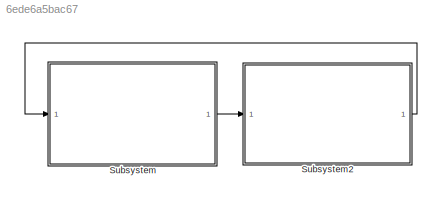
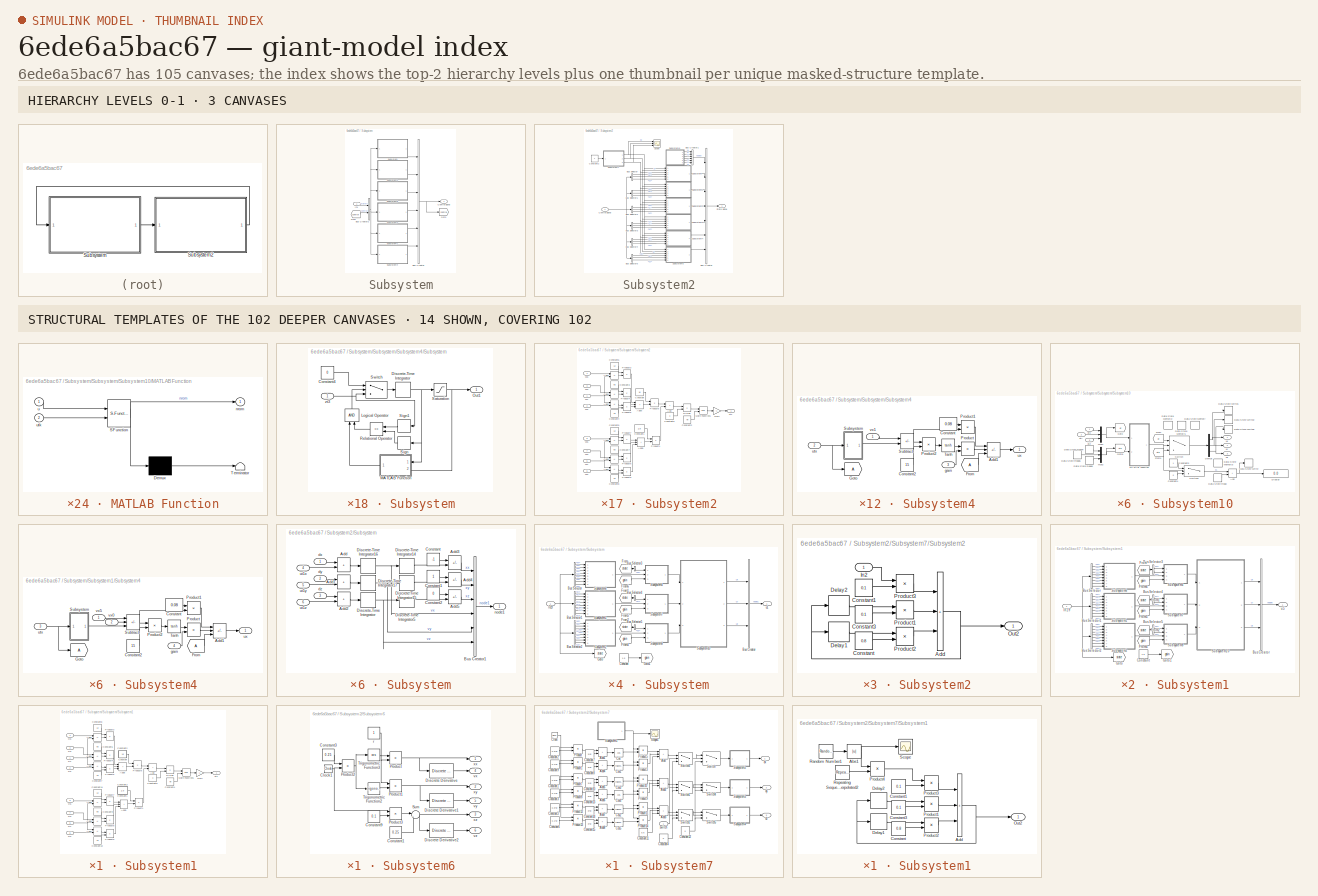
[diagram: thumbnail index - top-2 hierarchy levels (3 canvases) + 14 structural-template representatives of the remaining 102 canvases]
MODEL slx_6ede6a5bac67
KIND model
CONFIG AbsTol = auto
CONFIG EnableMultiTasking = off
CONFIG FixedStep = 0.001
CONFIG MaxStep = auto
CONFIG MinStep = auto
CONFIG RelTol = 1e-3
CONFIG SampleTimeConstraint = Unconstrained
CONFIG SolverName = FixedStepDiscrete
CONFIG StartTime = 0.0
CONFIG StopTime = 30
BLOCK [SubSystem] Subsystem
  Ports = [1, 1]
  RequestExecContextInheritance = off
BLOCK [BusCreator] Subsystem/Bus Creator
  DisplayOption = bar
  InheritFromInputs = on
  Inputs = 6
  Ports = [6, 1]
BLOCK [BusCreator] Subsystem/Bus Creator2
  DisplayOption = bar
  InheritFromInputs = on
  Inputs = 2
  Ports = [2, 1]
BLOCK [Outport] Subsystem/Control signal
BLOCK [From] Subsystem/From
  GotoTag = control
BLOCK [Goto] Subsystem/Goto
  GotoTag = control
BLOCK [Inport] Subsystem/In1
BLOCK [SubSystem] Subsystem/Subsystem
  Ports = [1, 1]
  RequestExecContextInheritance = off
BLOCK [BusCreator] Subsystem/Subsystem/Bus Creator
  DisplayOption = bar
  InheritFromInputs = on
  Inputs = 3
  Ports = [3, 1]
BLOCK [BusSelector] Subsystem/Subsystem/Bus Selector
  OutputSignals = state(t).node1.xx,state(t).node2.xx,state(t).node3.xx,state(t).node6.xx,state(t).node1.vx,state(t).node2.vx,state(t).node3.vx,state(t).node6.vx
  Ports = [1, 8]
BLOCK [BusSelector] Subsystem/Subsystem/Bus Selector1
  OutputSignals = state(t).node1.xy,state(t).node2.xy,state(t).node3.xy,state(t).node6.xy,state(t).node1.vy,state(t).node2.vy,state(t).node3.vy,state(t).node6.vy
  Ports = [1, 8]
BLOCK [BusSelector] Subsystem/Subsystem/Bus Selector2
  OutputSignals = state(t).node1.xz,state(t).node2.xz,state(t).node3.xz,state(t).node6.xz,state(t).node1.vz,state(t).node2.vz,state(t).node3.vz,state(t).node6.vz
  Ports = [1, 8]
BLOCK [BusSelector] Subsystem/Subsystem/Bus Selector3
  OutputSignals = state(t).node1.vx
  Ports = [1, 1]
BLOCK [BusSelector] Subsystem/Subsystem/Bus Selector4
  OutputSignals = state(t).node1.vy
  Ports = [1, 1]
BLOCK [BusSelector] Subsystem/Subsystem/Bus Selector5
  OutputSignals = state(t).node1.vz
  Ports = [1, 1]
BLOCK [Constant] Subsystem/Subsystem/Constant
  Value = 1.5
BLOCK [From] Subsystem/Subsystem/From
  GotoTag = state
BLOCK [From] Subsystem/Subsystem/From1
  GotoTag = state
BLOCK [From] Subsystem/Subsystem/From2
  GotoTag = state
BLOCK [From] Subsystem/Subsystem/From4
  GotoTag = gain
BLOCK [From] Subsystem/Subsystem/From5
  GotoTag = gain
BLOCK [From] Subsystem/Subsystem/From6
  GotoTag = gain
BLOCK [Goto] Subsystem/Subsystem/Goto
  GotoTag = state
BLOCK [Goto] Subsystem/Subsystem/Goto1
  GotoTag = gain
BLOCK [Inport] Subsystem/Subsystem/In19
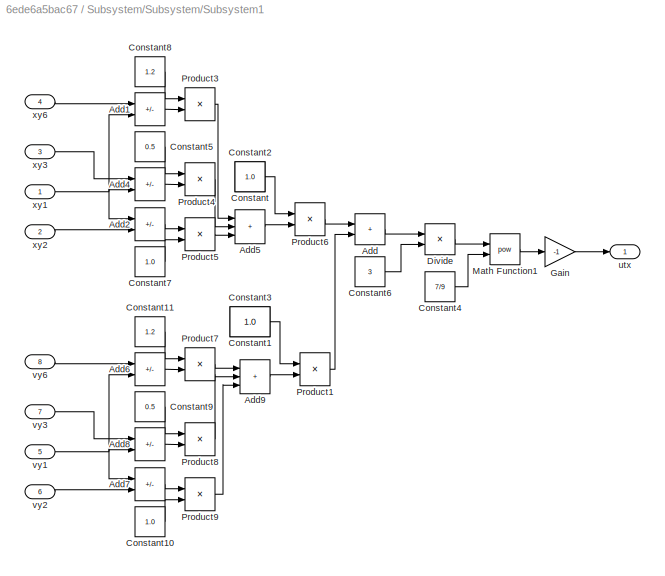
BLOCK [SubSystem] Subsystem/Subsystem/Subsystem1
  Ports = [8, 1]
  RequestExecContextInheritance = off
BLOCK [Sum] Subsystem/Subsystem/Subsystem1/Add
  IconShape = rectangular
  Ports = [2, 1]
BLOCK [Sum] Subsystem/Subsystem/Subsystem1/Add1
  IconShape = rectangular
  Inputs = -+
  Ports = [2, 1]
BLOCK [Sum] Subsystem/Subsystem/Subsystem1/Add2
  IconShape = rectangular
  Inputs = +-
  Ports = [2, 1]
BLOCK [Sum] Subsystem/Subsystem/Subsystem1/Add4
  IconShape = rectangular
  Inputs = -+
  Ports = [2, 1]
BLOCK [Sum] Subsystem/Subsystem/Subsystem1/Add5
  IconShape = rectangular
  Inputs = +++
  Ports = [3, 1]
BLOCK [Sum] Subsystem/Subsystem/Subsystem1/Add6
  IconShape = rectangular
  Inputs = -+
  Ports = [2, 1]
BLOCK [Sum] Subsystem/Subsystem/Subsystem1/Add7
  IconShape = rectangular
  Inputs = +-
  Ports = [2, 1]
BLOCK [Sum] Subsystem/Subsystem/Subsystem1/Add8
  IconShape = rectangular
  Inputs = -+
  Ports = [2, 1]
BLOCK [Sum] Subsystem/Subsystem/Subsystem1/Add9
  IconShape = rectangular
  Inputs = +++
  Ports = [3, 1]
BLOCK [Constant] Subsystem/Subsystem/Subsystem1/Constant
  Value = 1.0
BLOCK [Constant] Subsystem/Subsystem/Subsystem1/Constant1
  Value = 1.0
BLOCK [Constant] Subsystem/Subsystem/Subsystem1/Constant10
  Value = 1.0
BLOCK [Constant] Subsystem/Subsystem/Subsystem1/Constant11
  Value = 1.2
BLOCK [Constant] Subsystem/Subsystem/Subsystem1/Constant2
  Value = 1.0
BLOCK [Constant] Subsystem/Subsystem/Subsystem1/Constant3
  Value = 1.0
BLOCK [Constant] Subsystem/Subsystem/Subsystem1/Constant4
  Value = 7/9
BLOCK [Constant] Subsystem/Subsystem/Subsystem1/Constant5
  Value = 0.5
BLOCK [Constant] Subsystem/Subsystem/Subsystem1/Constant6
  Value = 3
BLOCK [Constant] Subsystem/Subsystem/Subsystem1/Constant7
  Value = 1.0
BLOCK [Constant] Subsystem/Subsystem/Subsystem1/Constant8
  Value = 1.2
BLOCK [Constant] Subsystem/Subsystem/Subsystem1/Constant9
  Value = 0.5
BLOCK [Product] Subsystem/Subsystem/Subsystem1/Divide
  Inputs = */
  Ports = [2, 1]
BLOCK [Gain] Subsystem/Subsystem/Subsystem1/Gain
  Gain = -1
BLOCK [Math] Subsystem/Subsystem/Subsystem1/Math Function1
  Operator = pow
  Ports = [2, 1]
  SignedPower = on
BLOCK [Product] Subsystem/Subsystem/Subsystem1/Product1
  Ports = [2, 1]
BLOCK [Product] Subsystem/Subsystem/Subsystem1/Product3
  Ports = [2, 1]
BLOCK [Product] Subsystem/Subsystem/Subsystem1/Product4
  Ports = [2, 1]
BLOCK [Product] Subsystem/Subsystem/Subsystem1/Product5
  Ports = [2, 1]
BLOCK [Product] Subsystem/Subsystem/Subsystem1/Product6
  Ports = [2, 1]
BLOCK [Product] Subsystem/Subsystem/Subsystem1/Product7
  Ports = [2, 1]
BLOCK [Product] Subsystem/Subsystem/Subsystem1/Product8
  Ports = [2, 1]
BLOCK [Product] Subsystem/Subsystem/Subsystem1/Product9
  Ports = [2, 1]
BLOCK [Outport] Subsystem/Subsystem/Subsystem1/utx
BLOCK [Inport] Subsystem/Subsystem/Subsystem1/vy1
  Port = 5
BLOCK [Inport] Subsystem/Subsystem/Subsystem1/vy2
  Port = 6
BLOCK [Inport] Subsystem/Subsystem/Subsystem1/vy3
  Port = 7
BLOCK [Inport] Subsystem/Subsystem/Subsystem1/vy6
  Port = 8
BLOCK [Inport] Subsystem/Subsystem/Subsystem1/xy1
BLOCK [Inport] Subsystem/Subsystem/Subsystem1/xy2
  Port = 2
BLOCK [Inport] Subsystem/Subsystem/Subsystem1/xy3
  Port = 3
BLOCK [Inport] Subsystem/Subsystem/Subsystem1/xy6
  Port = 4
BLOCK [SubSystem] Subsystem/Subsystem/Subsystem10
  Ports = [3, 3]
  RequestExecContextInheritance = off
BLOCK [Sum] Subsystem/Subsystem/Subsystem10/Add
  IconShape = rectangular
  Ports = [2, 1]
BLOCK [Constant] Subsystem/Subsystem/Subsystem10/Constant3
BLOCK [Constant] Subsystem/Subsystem/Subsystem10/Constant4
  Value = 0
BLOCK [DataStoreMemory] Subsystem/Subsystem/Subsystem10/Data Store Memory
  DataStoreName = utkz1
  ReadBeforeWriteMsg = warning
  ShowAdditionalParam = off
  WriteAfterReadMsg = warning
  WriteAfterWriteMsg = warning
BLOCK [DataStoreMemory] Subsystem/Subsystem/Subsystem10/Data Store Memory1
  DataStoreName = utky1
  ReadBeforeWriteMsg = warning
  ShowAdditionalParam = off
  WriteAfterReadMsg = warning
  WriteAfterWriteMsg = warning
BLOCK [DataStoreMemory] Subsystem/Subsystem/Subsystem10/Data Store Memory2
  DataStoreName = utkx1
  ReadBeforeWriteMsg = warning
  ShowAdditionalParam = off
  WriteAfterReadMsg = warning
  WriteAfterWriteMsg = warning
BLOCK [DataStoreMemory] Subsystem/Subsystem/Subsystem10/Data Store Memory3
  DataStoreName = uc1
  ReadBeforeWriteMsg = warning
  ShowAdditionalParam = off
  WriteAfterReadMsg = warning
  WriteAfterWriteMsg = warning
BLOCK [DataStoreRead] Subsystem/Subsystem/Subsystem10/Data Store Read
  DataStoreName = uc1
  IndexOptions = Index vector (dialog)
  Indices = 1
  OutputSizes = 1
  Ports = [0, 1]
BLOCK [DataStoreRead] Subsystem/Subsystem/Subsystem10/Data Store Read4
  DataStoreName = utkx1
  IndexOptions = Index vector (dialog)
  Indices = 1
  OutputSizes = 1
  Ports = [0, 1]
BLOCK [DataStoreRead] Subsystem/Subsystem/Subsystem10/Data Store Read5
  DataStoreName = utky1
  IndexOptions = Index vector (dialog)
  Indices = 1
  OutputSizes = 1
  Ports = [0, 1]
BLOCK [DataStoreRead] Subsystem/Subsystem/Subsystem10/Data Store Read6
  DataStoreName = utkz1
  IndexOptions = Index vector (dialog)
  Indices = 1
  OutputSizes = 1
  Ports = [0, 1]
BLOCK [DataStoreWrite] Subsystem/Subsystem/Subsystem10/Data Store Write
  DataStoreName = uc1
  IndexOptions = Index vector (dialog)
  Indices = 1
  OutputSizes = 1
  Ports = [1]
BLOCK [DataStoreWrite] Subsystem/Subsystem/Subsystem10/Data Store Write1
  DataStoreName = utkx1
  IndexOptions = Index vector (dialog)
  Indices = 1
  OutputSizes = 1
  Ports = [1]
BLOCK [DataStoreWrite] Subsystem/Subsystem/Subsystem10/Data Store Write2
  DataStoreName = utky1
  IndexOptions = Index vector (dialog)
  Indices = 1
  OutputSizes = 1
  Ports = [1]
BLOCK [DataStoreWrite] Subsystem/Subsystem/Subsystem10/Data Store Write6
  DataStoreName = utkz1
  IndexOptions = Index vector (dialog)
  Indices = 1
  OutputSizes = 1
  Ports = [1]
BLOCK [Demux] Subsystem/Subsystem/Subsystem10/Demux
  Outputs = 3
  Ports = [1, 3]
BLOCK [Display] Subsystem/Subsystem/Subsystem10/Display
  Decimation = 1
  Ports = [1]
BLOCK [From] Subsystem/Subsystem/Subsystem10/From
  GotoTag = ut
BLOCK [From] Subsystem/Subsystem/Subsystem10/From1
  GotoTag = utk
BLOCK [Goto] Subsystem/Subsystem/Subsystem10/Goto
  GotoTag = ut
BLOCK [Goto] Subsystem/Subsystem/Subsystem10/Goto1
  GotoTag = utk
BLOCK [SubSystem] Subsystem/Subsystem/Subsystem10/MATLAB Function
  ErrorFcn = Stateflow.Translate.translate
  PermitHierarchicalResolution = ExplicitOnly
  Ports = [2, 1]
  RequestExecContextInheritance = off
  SFBlockType = MATLAB Function
  TreatAsAtomicUnit = on
BLOCK [Demux] Subsystem/Subsystem/Subsystem10/MATLAB Function/ Demux 
  Outputs = 1
  Ports = [1, 1]
BLOCK [S-Function] Subsystem/Subsystem/Subsystem10/MATLAB Function/ SFunction 
  EnableBusSupport = on
  FunctionName = sf_sfun
  PortCounts = [2 2]
  Ports = [2, 2]
  SFcnIsStateOwnerBlock = off
  SFunctionDeploymentMode = off
  Tag = Stateflow S-Function 49
BLOCK [Terminator] Subsystem/Subsystem/Subsystem10/MATLAB Function/ Terminator 
BLOCK [Outport] Subsystem/Subsystem/Subsystem10/MATLAB Function/nrom
BLOCK [Inport] Subsystem/Subsystem/Subsystem10/MATLAB Function/u
BLOCK [Inport] Subsystem/Subsystem/Subsystem10/MATLAB Function/utk
  Port = 2
BLOCK [Mux] Subsystem/Subsystem/Subsystem10/Mux1
  DisplayOption = bar
  Inputs = 3
  Ports = [3, 1]
BLOCK [Mux] Subsystem/Subsystem/Subsystem10/Mux2
  DisplayOption = bar
  Inputs = 3
  Ports = [3, 1]
BLOCK [Switch] Subsystem/Subsystem/Subsystem10/Switch
  InputSameDT = off
  SaturateOnIntegerOverflow = off
  Threshold = 0.025
BLOCK [Switch] Subsystem/Subsystem/Subsystem10/Switch2
  InputSameDT = off
  SaturateOnIntegerOverflow = off
  Threshold = 0.025
BLOCK [Inport] Subsystem/Subsystem/Subsystem10/utx
BLOCK [Inport] Subsystem/Subsystem/Subsystem10/uty
  Port = 2
BLOCK [Inport] Subsystem/Subsystem/Subsystem10/utz
  Port = 3
BLOCK [Outport] Subsystem/Subsystem/Subsystem10/ux
BLOCK [Outport] Subsystem/Subsystem/Subsystem10/uy
  Port = 2
BLOCK [Outport] Subsystem/Subsystem/Subsystem10/uz
  Port = 3
BLOCK [SubSystem] Subsystem/Subsystem/Subsystem2
  Ports = [8, 1]
  RequestExecContextInheritance = off
BLOCK [Sum] Subsystem/Subsystem/Subsystem2/Add
  IconShape = rectangular
  Ports = [2, 1]
BLOCK [Sum] Subsystem/Subsystem/Subsystem2/Add1
  IconShape = rectangular
  Inputs = -+
  Ports = [2, 1]
BLOCK [Sum] Subsystem/Subsystem/Subsystem2/Add2
  IconShape = rectangular
  Inputs = +-
  Ports = [2, 1]
BLOCK [Sum] Subsystem/Subsystem/Subsystem2/Add4
  IconShape = rectangular
  Inputs = -+
  Ports = [2, 1]
BLOCK [Sum] Subsystem/Subsystem/Subsystem2/Add5
  IconShape = rectangular
  Inputs = +++
  Ports = [3, 1]
BLOCK [Sum] Subsystem/Subsystem/Subsystem2/Add6
  IconShape = rectangular
  Inputs = -+
  Ports = [2, 1]
BLOCK [Sum] Subsystem/Subsystem/Subsystem2/Add7
  IconShape = rectangular
  Inputs = +-
  Ports = [2, 1]
BLOCK [Sum] Subsystem/Subsystem/Subsystem2/Add8
  IconShape = rectangular
  Inputs = -+
  Ports = [2, 1]
BLOCK [Sum] Subsystem/Subsystem/Subsystem2/Add9
  IconShape = rectangular
  Inputs = +++
  Ports = [3, 1]
BLOCK [Constant] Subsystem/Subsystem/Subsystem2/Constant
  Value = 1.0
BLOCK [Constant] Subsystem/Subsystem/Subsystem2/Constant1
  Value = 1.0
BLOCK [Constant] Subsystem/Subsystem/Subsystem2/Constant2
  Value = 7/9
BLOCK [Constant] Subsystem/Subsystem/Subsystem2/Constant3
  Value = 0.5
BLOCK [Constant] Subsystem/Subsystem/Subsystem2/Constant4
  Value = 1.0
BLOCK [Constant] Subsystem/Subsystem/Subsystem2/Constant5
  Value = 1.2
BLOCK [Constant] Subsystem/Subsystem/Subsystem2/Constant6
  Value = 3
BLOCK [Constant] Subsystem/Subsystem/Subsystem2/Constant7
  Value = 0.5
BLOCK [Constant] Subsystem/Subsystem/Subsystem2/Constant8
  Value = 1.0
BLOCK [Constant] Subsystem/Subsystem/Subsystem2/Constant9
  Value = 1.2
BLOCK [Product] Subsystem/Subsystem/Subsystem2/Divide
  Inputs = */
  Ports = [2, 1]
BLOCK [Gain] Subsystem/Subsystem/Subsystem2/Gain
  Gain = -1
BLOCK [Math] Subsystem/Subsystem/Subsystem2/Math Function1
  Operator = pow
  Ports = [2, 1]
  SignedPower = on
BLOCK [Product] Subsystem/Subsystem/Subsystem2/Product1
  Ports = [2, 1]
BLOCK [Product] Subsystem/Subsystem/Subsystem2/Product3
  Ports = [2, 1]
BLOCK [Product] Subsystem/Subsystem/Subsystem2/Product4
  Ports = [2, 1]
BLOCK [Product] Subsystem/Subsystem/Subsystem2/Product5
  Ports = [2, 1]
BLOCK [Product] Subsystem/Subsystem/Subsystem2/Product6
  Ports = [2, 1]
BLOCK [Product] Subsystem/Subsystem/Subsystem2/Product7
  Ports = [2, 1]
BLOCK [Product] Subsystem/Subsystem/Subsystem2/Product8
  Ports = [2, 1]
BLOCK [Product] Subsystem/Subsystem/Subsystem2/Product9
  Ports = [2, 1]
BLOCK [Outport] Subsystem/Subsystem/Subsystem2/utx
BLOCK [Inport] Subsystem/Subsystem/Subsystem2/vz1
  Port = 5
BLOCK [Inport] Subsystem/Subsystem/Subsystem2/vz2
  Port = 6
BLOCK [Inport] Subsystem/Subsystem/Subsystem2/vz3
  Port = 7
BLOCK [Inport] Subsystem/Subsystem/Subsystem2/vz6
  Port = 8
BLOCK [Inport] Subsystem/Subsystem/Subsystem2/xx2
  Port = 2
BLOCK [Inport] Subsystem/Subsystem/Subsystem2/xz1
BLOCK [Inport] Subsystem/Subsystem/Subsystem2/xz3
  Port = 3
BLOCK [Inport] Subsystem/Subsystem/Subsystem2/xz6
  Port = 4
BLOCK [SubSystem] Subsystem/Subsystem/Subsystem4
  Ports = [3, 1]
  RequestExecContextInheritance = off
BLOCK [Sum] Subsystem/Subsystem/Subsystem4/Add1
  IconShape = rectangular
  Inputs = --+
  Ports = [3, 1]
BLOCK [Constant] Subsystem/Subsystem/Subsystem4/Constant
  Value = 0.08
BLOCK [Constant] Subsystem/Subsystem/Subsystem4/Constant2
  Value = 15
BLOCK [From] Subsystem/Subsystem/Subsystem4/From
BLOCK [Goto] Subsystem/Subsystem/Subsystem4/Goto
BLOCK [Product] Subsystem/Subsystem/Subsystem4/Product
  Ports = [2, 1]
BLOCK [Product] Subsystem/Subsystem/Subsystem4/Product1
  Ports = [2, 1]
BLOCK [Product] Subsystem/Subsystem/Subsystem4/Product2
  Ports = [2, 1]
BLOCK [SubSystem] Subsystem/Subsystem/Subsystem4/Subsystem
  Ports = [1, 1]
  RequestExecContextInheritance = off
BLOCK [Constant] Subsystem/Subsystem/Subsystem4/Subsystem/Constant4
  Value = 0
BLOCK [DiscreteIntegrator] Subsystem/Subsystem/Subsystem4/Subsystem/Discrete-Time Integrator
  ICPrevOutput = DiscIntNeverNeededParam
  ICPrevScaledInput = DiscIntNeverNeededParam
  InitialConditionSetting = Auto
  LowerSaturationLimit = -100
  Ports = [1, 1]
  SampleTime = -1
  UpperSaturationLimit = 100
BLOCK [Logic] Subsystem/Subsystem/Subsystem4/Subsystem/Logical Operator
  AllPortsSameDT = off
  NameLocation = right
  OutDataTypeStr = boolean
  Ports = [2, 1]
BLOCK [SubSystem] Subsystem/Subsystem/Subsystem4/Subsystem/MATLAB Function
  ErrorFcn = Stateflow.Translate.translate
  NameLocation = top
  PermitHierarchicalResolution = ExplicitOnly
  Ports = [2, 1]
  RequestExecContextInheritance = off
  SFBlockType = MATLAB Function
  TreatAsAtomicUnit = on
BLOCK [Demux] Subsystem/Subsystem/Subsystem4/Subsystem/MATLAB Function/ Demux 
  Outputs = 1
  Ports = [1, 1]
BLOCK [S-Function] Subsystem/Subsystem/Subsystem4/Subsystem/MATLAB Function/ SFunction 
  EnableBusSupport = on
  FunctionName = sf_sfun
  PortCounts = [2 2]
  Ports = [2, 2]
  SFcnIsStateOwnerBlock = off
  SFunctionDeploymentMode = off
  Tag = Stateflow S-Function 25
BLOCK [Terminator] Subsystem/Subsystem/Subsystem4/Subsystem/MATLAB Function/ Terminator 
BLOCK [Inport] Subsystem/Subsystem/Subsystem4/Subsystem/MATLAB Function/u1
BLOCK [Inport] Subsystem/Subsystem/Subsystem4/Subsystem/MATLAB Function/u2
  Port = 2
BLOCK [Outport] Subsystem/Subsystem/Subsystem4/Subsystem/MATLAB Function/y
BLOCK [Outport] Subsystem/Subsystem/Subsystem4/Subsystem/Out1
BLOCK [RelationalOperator] Subsystem/Subsystem/Subsystem4/Subsystem/Relational Operator
  InputSameDT = off
  NameLocation = top
  Operator = ==
  OutDataTypeStr = boolean
  Ports = [2, 1]
  RndMeth = Simplest
BLOCK [Saturate] Subsystem/Subsystem/Subsystem4/Subsystem/Saturation
  LowerLimit = -5
  UpperLimit = 5
BLOCK [Signum] Subsystem/Subsystem/Subsystem4/Subsystem/Sign
  NameLocation = top
BLOCK [Signum] Subsystem/Subsystem/Subsystem4/Subsystem/Sign1
  NameLocation = top
BLOCK [Switch] Subsystem/Subsystem/Subsystem4/Subsystem/Switch
  Criteria = u2 > Threshold
  InputSameDT = off
  SaturateOnIntegerOverflow = off
BLOCK [Inport] Subsystem/Subsystem/Subsystem4/Subsystem/zt3
BLOCK [Sum] Subsystem/Subsystem/Subsystem4/Subtract
  IconShape = rectangular
  Inputs = +-
  Ports = [2, 1]
BLOCK [Trigonometry] Subsystem/Subsystem/Subsystem4/Tanh
  Operator = tanh
  Ports = [1, 1]
BLOCK [Inport] Subsystem/Subsystem/Subsystem4/gain
  Port = 3
BLOCK [Inport] Subsystem/Subsystem/Subsystem4/utx
  Port = 2
BLOCK [Outport] Subsystem/Subsystem/Subsystem4/ux
BLOCK [Inport] Subsystem/Subsystem/Subsystem4/vx1
BLOCK [SubSystem] Subsystem/Subsystem/Subsystem6
  Ports = [8, 1]
  RequestExecContextInheritance = off
BLOCK [Sum] Subsystem/Subsystem/Subsystem6/Add
  IconShape = rectangular
  Ports = [2, 1]
BLOCK [Sum] Subsystem/Subsystem/Subsystem6/Add1
  IconShape = rectangular
  Inputs = -+
  Ports = [2, 1]
BLOCK [Sum] Subsystem/Subsystem/Subsystem6/Add2
  IconShape = rectangular
  Inputs = +-
  Ports = [2, 1]
BLOCK [Sum] Subsystem/Subsystem/Subsystem6/Add4
  IconShape = rectangular
  Inputs = -+
  Ports = [2, 1]
BLOCK [Sum] Subsystem/Subsystem/Subsystem6/Add5
  IconShape = rectangular
  Inputs = +++
  Ports = [3, 1]
BLOCK [Sum] Subsystem/Subsystem/Subsystem6/Add6
  IconShape = rectangular
  Inputs = -+
  Ports = [2, 1]
BLOCK [Sum] Subsystem/Subsystem/Subsystem6/Add7
  IconShape = rectangular
  Inputs = +-
  Ports = [2, 1]
BLOCK [Sum] Subsystem/Subsystem/Subsystem6/Add8
  IconShape = rectangular
  Inputs = -+
  Ports = [2, 1]
BLOCK [Sum] Subsystem/Subsystem/Subsystem6/Add9
  IconShape = rectangular
  Inputs = +++
  Ports = [3, 1]
BLOCK [Constant] Subsystem/Subsystem/Subsystem6/Constant
  Value = 1.0
BLOCK [Constant] Subsystem/Subsystem/Subsystem6/Constant1
  Value = 1.0
BLOCK [Constant] Subsystem/Subsystem/Subsystem6/Constant2
  Value = 7/9
BLOCK [Constant] Subsystem/Subsystem/Subsystem6/Constant3
  Value = 0.5
BLOCK [Constant] Subsystem/Subsystem/Subsystem6/Constant4
  Value = 1.0
BLOCK [Constant] Subsystem/Subsystem/Subsystem6/Constant5
  Value = 1.2
BLOCK [Constant] Subsystem/Subsystem/Subsystem6/Constant6
  Value = 3
BLOCK [Constant] Subsystem/Subsystem/Subsystem6/Constant7
  Value = 0.5
BLOCK [Constant] Subsystem/Subsystem/Subsystem6/Constant8
  Value = 1.0
BLOCK [Constant] Subsystem/Subsystem/Subsystem6/Constant9
  Value = 1.2
BLOCK [Product] Subsystem/Subsystem/Subsystem6/Divide
  Inputs = */
  Ports = [2, 1]
BLOCK [Gain] Subsystem/Subsystem/Subsystem6/Gain
  Gain = -1
BLOCK [Math] Subsystem/Subsystem/Subsystem6/Math Function1
  Operator = pow
  Ports = [2, 1]
  SignedPower = on
BLOCK [Product] Subsystem/Subsystem/Subsystem6/Product1
  Ports = [2, 1]
BLOCK [Product] Subsystem/Subsystem/Subsystem6/Product3
  Ports = [2, 1]
BLOCK [Product] Subsystem/Subsystem/Subsystem6/Product4
  Ports = [2, 1]
BLOCK [Product] Subsystem/Subsystem/Subsystem6/Product5
  Ports = [2, 1]
BLOCK [Product] Subsystem/Subsystem/Subsystem6/Product6
  Ports = [2, 1]
BLOCK [Product] Subsystem/Subsystem/Subsystem6/Product7
  Ports = [2, 1]
BLOCK [Product] Subsystem/Subsystem/Subsystem6/Product8
  Ports = [2, 1]
BLOCK [Product] Subsystem/Subsystem/Subsystem6/Product9
  Ports = [2, 1]
BLOCK [Outport] Subsystem/Subsystem/Subsystem6/utx
BLOCK [Inport] Subsystem/Subsystem/Subsystem6/vx1
  Port = 5
BLOCK [Inport] Subsystem/Subsystem/Subsystem6/vx2
  Port = 6
BLOCK [Inport] Subsystem/Subsystem/Subsystem6/vx3
  Port = 7
BLOCK [Inport] Subsystem/Subsystem/Subsystem6/vx6
  Port = 8
BLOCK [Inport] Subsystem/Subsystem/Subsystem6/xx1
BLOCK [Inport] Subsystem/Subsystem/Subsystem6/xx2
  Port = 2
BLOCK [Inport] Subsystem/Subsystem/Subsystem6/xx3
  Port = 3
BLOCK [Inport] Subsystem/Subsystem/Subsystem6/xx6
  Port = 4
BLOCK [SubSystem] Subsystem/Subsystem/Subsystem7
  Ports = [3, 1]
  RequestExecContextInheritance = off
BLOCK [Sum] Subsystem/Subsystem/Subsystem7/Add1
  IconShape = rectangular
  Inputs = --+
  Ports = [3, 1]
BLOCK [Constant] Subsystem/Subsystem/Subsystem7/Constant
  Value = 0.08
BLOCK [Constant] Subsystem/Subsystem/Subsystem7/Constant2
  Value = 15
BLOCK [From] Subsystem/Subsystem/Subsystem7/From
BLOCK [Goto] Subsystem/Subsystem/Subsystem7/Goto
BLOCK [Product] Subsystem/Subsystem/Subsystem7/Product
  Ports = [2, 1]
BLOCK [Product] Subsystem/Subsystem/Subsystem7/Product1
  Ports = [2, 1]
BLOCK [Product] Subsystem/Subsystem/Subsystem7/Product2
  Ports = [2, 1]
BLOCK [SubSystem] Subsystem/Subsystem/Subsystem7/Subsystem
  Ports = [1, 1]
  RequestExecContextInheritance = off
BLOCK [Constant] Subsystem/Subsystem/Subsystem7/Subsystem/Constant4
  Value = 0
BLOCK [DiscreteIntegrator] Subsystem/Subsystem/Subsystem7/Subsystem/Discrete-Time Integrator
  ICPrevOutput = DiscIntNeverNeededParam
  ICPrevScaledInput = DiscIntNeverNeededParam
  InitialConditionSetting = Auto
  LowerSaturationLimit = -100
  Ports = [1, 1]
  SampleTime = -1
  UpperSaturationLimit = 100
BLOCK [Logic] Subsystem/Subsystem/Subsystem7/Subsystem/Logical Operator
  AllPortsSameDT = off
  NameLocation = right
  OutDataTypeStr = boolean
  Ports = [2, 1]
BLOCK [SubSystem] Subsystem/Subsystem/Subsystem7/Subsystem/MATLAB Function
  ErrorFcn = Stateflow.Translate.translate
  NameLocation = top
  PermitHierarchicalResolution = ExplicitOnly
  Ports = [2, 1]
  RequestExecContextInheritance = off
  SFBlockType = MATLAB Function
  TreatAsAtomicUnit = on
BLOCK [Demux] Subsystem/Subsystem/Subsystem7/Subsystem/MATLAB Function/ Demux 
  Outputs = 1
  Ports = [1, 1]
BLOCK [S-Function] Subsystem/Subsystem/Subsystem7/Subsystem/MATLAB Function/ SFunction 
  EnableBusSupport = on
  FunctionName = sf_sfun
  PortCounts = [2 2]
  Ports = [2, 2]
  SFcnIsStateOwnerBlock = off
  SFunctionDeploymentMode = off
  Tag = Stateflow S-Function 13
BLOCK [Terminator] Subsystem/Subsystem/Subsystem7/Subsystem/MATLAB Function/ Terminator 
BLOCK [Inport] Subsystem/Subsystem/Subsystem7/Subsystem/MATLAB Function/u1
BLOCK [Inport] Subsystem/Subsystem/Subsystem7/Subsystem/MATLAB Function/u2
  Port = 2
BLOCK [Outport] Subsystem/Subsystem/Subsystem7/Subsystem/MATLAB Function/y
BLOCK [Outport] Subsystem/Subsystem/Subsystem7/Subsystem/Out1
BLOCK [RelationalOperator] Subsystem/Subsystem/Subsystem7/Subsystem/Relational Operator
  InputSameDT = off
  NameLocation = top
  Operator = ==
  OutDataTypeStr = boolean
  Ports = [2, 1]
  RndMeth = Simplest
BLOCK [Saturate] Subsystem/Subsystem/Subsystem7/Subsystem/Saturation
  LowerLimit = -5
  UpperLimit = 5
BLOCK [Signum] Subsystem/Subsystem/Subsystem7/Subsystem/Sign
  NameLocation = top
BLOCK [Signum] Subsystem/Subsystem/Subsystem7/Subsystem/Sign1
  NameLocation = top
BLOCK [Switch] Subsystem/Subsystem/Subsystem7/Subsystem/Switch
  Criteria = u2 > Threshold
  InputSameDT = off
  SaturateOnIntegerOverflow = off
BLOCK [Inport] Subsystem/Subsystem/Subsystem7/Subsystem/zt3
BLOCK [Sum] Subsystem/Subsystem/Subsystem7/Subtract
  IconShape = rectangular
  Inputs = +-
  Ports = [2, 1]
BLOCK [Trigonometry] Subsystem/Subsystem/Subsystem7/Tanh
  Operator = tanh
  Ports = [1, 1]
BLOCK [Inport] Subsystem/Subsystem/Subsystem7/gain
  Port = 3
BLOCK [Inport] Subsystem/Subsystem/Subsystem7/uty
  Port = 2
BLOCK [Outport] Subsystem/Subsystem/Subsystem7/ux
BLOCK [Inport] Subsystem/Subsystem/Subsystem7/vy1
BLOCK [SubSystem] Subsystem/Subsystem/Subsystem8
  Ports = [3, 1]
  RequestExecContextInheritance = off
BLOCK [Sum] Subsystem/Subsystem/Subsystem8/Add1
  IconShape = rectangular
  Inputs = --+
  Ports = [3, 1]
BLOCK [Constant] Subsystem/Subsystem/Subsystem8/Constant
  Value = 0.08
BLOCK [Constant] Subsystem/Subsystem/Subsystem8/Constant2
  Value = 15
BLOCK [From] Subsystem/Subsystem/Subsystem8/From
BLOCK [Goto] Subsystem/Subsystem/Subsystem8/Goto
BLOCK [Product] Subsystem/Subsystem/Subsystem8/Product
  Ports = [2, 1]
BLOCK [Product] Subsystem/Subsystem/Subsystem8/Product1
  Ports = [2, 1]
BLOCK [Product] Subsystem/Subsystem/Subsystem8/Product2
  Ports = [2, 1]
BLOCK [SubSystem] Subsystem/Subsystem/Subsystem8/Subsystem
  Ports = [1, 1]
  RequestExecContextInheritance = off
BLOCK [Constant] Subsystem/Subsystem/Subsystem8/Subsystem/Constant4
  Value = 0
BLOCK [DiscreteIntegrator] Subsystem/Subsystem/Subsystem8/Subsystem/Discrete-Time Integrator
  ICPrevOutput = DiscIntNeverNeededParam
  ICPrevScaledInput = DiscIntNeverNeededParam
  InitialConditionSetting = Auto
  LowerSaturationLimit = -100
  Ports = [1, 1]
  SampleTime = -1
  UpperSaturationLimit = 100
BLOCK [Logic] Subsystem/Subsystem/Subsystem8/Subsystem/Logical Operator
  AllPortsSameDT = off
  NameLocation = right
  OutDataTypeStr = boolean
  Ports = [2, 1]
BLOCK [SubSystem] Subsystem/Subsystem/Subsystem8/Subsystem/MATLAB Function
  ErrorFcn = Stateflow.Translate.translate
  NameLocation = top
  PermitHierarchicalResolution = ExplicitOnly
  Ports = [2, 1]
  RequestExecContextInheritance = off
  SFBlockType = MATLAB Function
  TreatAsAtomicUnit = on
BLOCK [Demux] Subsystem/Subsystem/Subsystem8/Subsystem/MATLAB Function/ Demux 
  Outputs = 1
  Ports = [1, 1]
BLOCK [S-Function] Subsystem/Subsystem/Subsystem8/Subsystem/MATLAB Function/ SFunction 
  EnableBusSupport = on
  FunctionName = sf_sfun
  PortCounts = [2 2]
  Ports = [2, 2]
  SFcnIsStateOwnerBlock = off
  SFunctionDeploymentMode = off
  Tag = Stateflow S-Function 14
BLOCK [Terminator] Subsystem/Subsystem/Subsystem8/Subsystem/MATLAB Function/ Terminator 
BLOCK [Inport] Subsystem/Subsystem/Subsystem8/Subsystem/MATLAB Function/u1
BLOCK [Inport] Subsystem/Subsystem/Subsystem8/Subsystem/MATLAB Function/u2
  Port = 2
BLOCK [Outport] Subsystem/Subsystem/Subsystem8/Subsystem/MATLAB Function/y
BLOCK [Outport] Subsystem/Subsystem/Subsystem8/Subsystem/Out1
BLOCK [RelationalOperator] Subsystem/Subsystem/Subsystem8/Subsystem/Relational Operator
  InputSameDT = off
  NameLocation = top
  Operator = ==
  OutDataTypeStr = boolean
  Ports = [2, 1]
  RndMeth = Simplest
BLOCK [Saturate] Subsystem/Subsystem/Subsystem8/Subsystem/Saturation
  LowerLimit = -5
  UpperLimit = 5
BLOCK [Signum] Subsystem/Subsystem/Subsystem8/Subsystem/Sign
  NameLocation = top
BLOCK [Signum] Subsystem/Subsystem/Subsystem8/Subsystem/Sign1
  NameLocation = top
BLOCK [Switch] Subsystem/Subsystem/Subsystem8/Subsystem/Switch
  Criteria = u2 > Threshold
  InputSameDT = off
  SaturateOnIntegerOverflow = off
BLOCK [Inport] Subsystem/Subsystem/Subsystem8/Subsystem/zt3
BLOCK [Sum] Subsystem/Subsystem/Subsystem8/Subtract
  IconShape = rectangular
  Inputs = +-
  Ports = [2, 1]
BLOCK [Trigonometry] Subsystem/Subsystem/Subsystem8/Tanh
  Operator = tanh
  Ports = [1, 1]
BLOCK [Inport] Subsystem/Subsystem/Subsystem8/gain
  Port = 3
BLOCK [Inport] Subsystem/Subsystem/Subsystem8/utz
  Port = 2
BLOCK [Outport] Subsystem/Subsystem/Subsystem8/ux
BLOCK [Inport] Subsystem/Subsystem/Subsystem8/vz1
BLOCK [Outport] Subsystem/Subsystem/u1
BLOCK [SubSystem] Subsystem/Subsystem1
  Ports = [1, 1]
  RequestExecContextInheritance = off
BLOCK [BusCreator] Subsystem/Subsystem1/Bus Creator
  DisplayOption = bar
  InheritFromInputs = on
  Inputs = 3
  Ports = [3, 1]
BLOCK [BusSelector] Subsystem/Subsystem1/Bus Selector
  OutputSignals = state(t).node5.xx,state(t).node0.xx,state(t).node3.xx,state(t).node4.xx,state(t).node5.vx,state(t).node0.vx,state(t).node3.vx,state(t).node4.vx
  Ports = [1, 8]
BLOCK [BusSelector] Subsystem/Subsystem1/Bus Selector1
  OutputSignals = state(t).node5.xy,state(t).node0.xy,state(t).node3.xy,state(t).node4.xy,state(t).node5.vy,state(t).node0.vy,state(t).node3.vy,state(t).node4.vy
  Ports = [1, 8]
BLOCK [BusSelector] Subsystem/Subsystem1/Bus Selector2
  OutputSignals = state(t).node5.xz,state(t).node0.xz,state(t).node3.xz,state(t).node4.xz,state(t).node5.vz,state(t).node0.vz,state(t).node3.vz,state(t).node4.vz
  Ports = [1, 8]
BLOCK [BusSelector] Subsystem/Subsystem1/Bus Selector3
  OutputSignals = state(t).node5.vx,state(t).node0.vx
  Ports = [1, 2]
BLOCK [BusSelector] Subsystem/Subsystem1/Bus Selector4
  OutputSignals = state(t).node5.vy,state(t).node0.vx
  Ports = [1, 2]
BLOCK [BusSelector] Subsystem/Subsystem1/Bus Selector5
  OutputSignals = state(t).node5.vz,state(t).node0.vz
  Ports = [1, 2]
BLOCK [Constant] Subsystem/Subsystem1/Constant
  Value = 1.5
BLOCK [From] Subsystem/Subsystem1/From
  GotoTag = state
BLOCK [From] Subsystem/Subsystem1/From1
  GotoTag = state
BLOCK [From] Subsystem/Subsystem1/From2
  GotoTag = state
BLOCK [From] Subsystem/Subsystem1/From4
  GotoTag = gain
BLOCK [From] Subsystem/Subsystem1/From5
  GotoTag = gain
BLOCK [From] Subsystem/Subsystem1/From6
  GotoTag = gain
BLOCK [Goto] Subsystem/Subsystem1/Goto
  GotoTag = state
BLOCK [Goto] Subsystem/Subsystem1/Goto1
  GotoTag = gain
BLOCK [Inport] Subsystem/Subsystem1/In19
BLOCK [SubSystem] Subsystem/Subsystem1/Subsystem1
  Ports = [8, 1]
  RequestExecContextInheritance = off
BLOCK [Sum] Subsystem/Subsystem1/Subsystem1/Add
  IconShape = rectangular
  Ports = [2, 1]
BLOCK [Sum] Subsystem/Subsystem1/Subsystem1/Add1
  IconShape = rectangular
  Inputs = -+
  Ports = [2, 1]
BLOCK [Sum] Subsystem/Subsystem1/Subsystem1/Add10
  IconShape = rectangular
  Inputs = -+
  Ports = [2, 1]
BLOCK [Sum] Subsystem/Subsystem1/Subsystem1/Add2
  IconShape = rectangular
  Inputs = +-
  Ports = [2, 1]
BLOCK [Sum] Subsystem/Subsystem1/Subsystem1/Add4
  IconShape = rectangular
  Inputs = -+
  Ports = [2, 1]
BLOCK [Sum] Subsystem/Subsystem1/Subsystem1/Add5
  IconShape = rectangular
  Inputs = +++
  Ports = [3, 1]
BLOCK [Sum] Subsystem/Subsystem1/Subsystem1/Add6
  IconShape = rectangular
  Inputs = +-
  Ports = [2, 1]
BLOCK [Sum] Subsystem/Subsystem1/Subsystem1/Add8
  IconShape = rectangular
  Inputs = +++
  Ports = [3, 1]
BLOCK [Sum] Subsystem/Subsystem1/Subsystem1/Add9
  IconShape = rectangular
  Inputs = +-
  Ports = [2, 1]
BLOCK [Constant] Subsystem/Subsystem1/Subsystem1/Constant
  Value = 1.0
BLOCK [Constant] Subsystem/Subsystem1/Subsystem1/Constant1
  Value = 1.0
BLOCK [Constant] Subsystem/Subsystem1/Subsystem1/Constant2
  Value = 7/9
BLOCK [Constant] Subsystem/Subsystem1/Subsystem1/Constant3
  Value = 1.2
BLOCK [Constant] Subsystem/Subsystem1/Subsystem1/Constant4
  Value = 1.5
BLOCK [Constant] Subsystem/Subsystem1/Subsystem1/Constant5
  Value = 1.2
BLOCK [Constant] Subsystem/Subsystem1/Subsystem1/Constant6
  Value = 1.5
BLOCK [Constant] Subsystem/Subsystem1/Subsystem1/Constant7
  Value = 2.0
BLOCK [Constant] Subsystem/Subsystem1/Subsystem1/Constant8
  Value = 2.0
BLOCK [Constant] Subsystem/Subsystem1/Subsystem1/Constant9
  Value = 3
BLOCK [Product] Subsystem/Subsystem1/Subsystem1/Divide
  Inputs = */
  Ports = [2, 1]
BLOCK [Gain] Subsystem/Subsystem1/Subsystem1/Gain
  Gain = -1
BLOCK [Math] Subsystem/Subsystem1/Subsystem1/Math Function1
  Operator = pow
  Ports = [2, 1]
  SignedPower = on
BLOCK [Product] Subsystem/Subsystem1/Subsystem1/Product1
  Ports = [2, 1]
BLOCK [Product] Subsystem/Subsystem1/Subsystem1/Product3
  Ports = [2, 1]
BLOCK [Product] Subsystem/Subsystem1/Subsystem1/Product4
  Ports = [2, 1]
BLOCK [Product] Subsystem/Subsystem1/Subsystem1/Product5
  Ports = [2, 1]
BLOCK [Product] Subsystem/Subsystem1/Subsystem1/Product6
  Ports = [2, 1]
BLOCK [Product] Subsystem/Subsystem1/Subsystem1/Product7
  Ports = [2, 1]
BLOCK [Product] Subsystem/Subsystem1/Subsystem1/Product8
  Ports = [2, 1]
BLOCK [Product] Subsystem/Subsystem1/Subsystem1/Product9
  Ports = [2, 1]
BLOCK [Outport] Subsystem/Subsystem1/Subsystem1/uty
BLOCK [Inport] Subsystem/Subsystem1/Subsystem1/vy0
  Port = 6
BLOCK [Inport] Subsystem/Subsystem1/Subsystem1/vy3
  Port = 7
BLOCK [Inport] Subsystem/Subsystem1/Subsystem1/vy4
  Port = 8
BLOCK [Inport] Subsystem/Subsystem1/Subsystem1/vy5
  Port = 5
BLOCK [Inport] Subsystem/Subsystem1/Subsystem1/xy0
  Port = 2
BLOCK [Inport] Subsystem/Subsystem1/Subsystem1/xy3
  Port = 3
BLOCK [Inport] Subsystem/Subsystem1/Subsystem1/xy4
  Port = 4
BLOCK [Inport] Subsystem/Subsystem1/Subsystem1/xy5
BLOCK [SubSystem] Subsystem/Subsystem1/Subsystem10
  Ports = [3, 3]
  RequestExecContextInheritance = off
BLOCK [Sum] Subsystem/Subsystem1/Subsystem10/Add
  IconShape = rectangular
  Ports = [2, 1]
BLOCK [Constant] Subsystem/Subsystem1/Subsystem10/Constant3
BLOCK [Constant] Subsystem/Subsystem1/Subsystem10/Constant4
  Value = 0
BLOCK [DataStoreMemory] Subsystem/Subsystem1/Subsystem10/Data Store Memory
  DataStoreName = utkz5
  ReadBeforeWriteMsg = warning
  ShowAdditionalParam = off
  WriteAfterReadMsg = warning
  WriteAfterWriteMsg = warning
BLOCK [DataStoreMemory] Subsystem/Subsystem1/Subsystem10/Data Store Memory1
  DataStoreName = utky5
  ReadBeforeWriteMsg = warning
  ShowAdditionalParam = off
  WriteAfterReadMsg = warning
  WriteAfterWriteMsg = warning
BLOCK [DataStoreMemory] Subsystem/Subsystem1/Subsystem10/Data Store Memory2
  DataStoreName = utkx5
  ReadBeforeWriteMsg = warning
  ShowAdditionalParam = off
  WriteAfterReadMsg = warning
  WriteAfterWriteMsg = warning
BLOCK [DataStoreMemory] Subsystem/Subsystem1/Subsystem10/Data Store Memory3
  DataStoreName = uc5
  ReadBeforeWriteMsg = warning
  ShowAdditionalParam = off
  WriteAfterReadMsg = warning
  WriteAfterWriteMsg = warning
BLOCK [DataStoreRead] Subsystem/Subsystem1/Subsystem10/Data Store Read
  DataStoreName = uc5
  IndexOptions = Index vector (dialog)
  Indices = 1
  OutputSizes = 1
  Ports = [0, 1]
BLOCK [DataStoreRead] Subsystem/Subsystem1/Subsystem10/Data Store Read1
  DataStoreName = utkz5
  IndexOptions = Index vector (dialog)
  Indices = 1
  OutputSizes = 1
  Ports = [0, 1]
BLOCK [DataStoreRead] Subsystem/Subsystem1/Subsystem10/Data Store Read2
  DataStoreName = utky5
  IndexOptions = Index vector (dialog)
  Indices = 1
  OutputSizes = 1
  Ports = [0, 1]
BLOCK [DataStoreRead] Subsystem/Subsystem1/Subsystem10/Data Store Read3
  DataStoreName = utkx5
  IndexOptions = Index vector (dialog)
  Indices = 1
  OutputSizes = 1
  Ports = [0, 1]
BLOCK [DataStoreWrite] Subsystem/Subsystem1/Subsystem10/Data Store Write
  DataStoreName = uc5
  IndexOptions = Index vector (dialog)
  Indices = 1
  OutputSizes = 1
  Ports = [1]
BLOCK [DataStoreWrite] Subsystem/Subsystem1/Subsystem10/Data Store Write3
  DataStoreName = utkx5
  IndexOptions = Index vector (dialog)
  Indices = 1
  OutputSizes = 1
  Ports = [1]
BLOCK [DataStoreWrite] Subsystem/Subsystem1/Subsystem10/Data Store Write4
  DataStoreName = utky5
  IndexOptions = Index vector (dialog)
  Indices = 1
  OutputSizes = 1
  Ports = [1]
BLOCK [DataStoreWrite] Subsystem/Subsystem1/Subsystem10/Data Store Write5
  DataStoreName = utkz5
  IndexOptions = Index vector (dialog)
  Indices = 1
  OutputSizes = 1
  Ports = [1]
BLOCK [Demux] Subsystem/Subsystem1/Subsystem10/Demux
  Outputs = 3
  Ports = [1, 3]
BLOCK [Display] Subsystem/Subsystem1/Subsystem10/Display
  Decimation = 1
  Ports = [1]
BLOCK [From] Subsystem/Subsystem1/Subsystem10/From
  GotoTag = ut
BLOCK [From] Subsystem/Subsystem1/Subsystem10/From1
  GotoTag = utk
BLOCK [Goto] Subsystem/Subsystem1/Subsystem10/Goto
  GotoTag = ut
BLOCK [Goto] Subsystem/Subsystem1/Subsystem10/Goto1
  GotoTag = utk
BLOCK [SubSystem] Subsystem/Subsystem1/Subsystem10/MATLAB Function
  ErrorFcn = Stateflow.Translate.translate
  PermitHierarchicalResolution = ExplicitOnly
  Ports = [2, 1]
  RequestExecContextInheritance = off
  SFBlockType = MATLAB Function
  TreatAsAtomicUnit = on
BLOCK [Demux] Subsystem/Subsystem1/Subsystem10/MATLAB Function/ Demux 
  Outputs = 1
  Ports = [1, 1]
BLOCK [S-Function] Subsystem/Subsystem1/Subsystem10/MATLAB Function/ SFunction 
  EnableBusSupport = on
  FunctionName = sf_sfun
  PortCounts = [2 2]
  Ports = [2, 2]
  SFcnIsStateOwnerBlock = off
  SFunctionDeploymentMode = off
  Tag = Stateflow S-Function 53
BLOCK [Terminator] Subsystem/Subsystem1/Subsystem10/MATLAB Function/ Terminator 
BLOCK [Outport] Subsystem/Subsystem1/Subsystem10/MATLAB Function/nrom
BLOCK [Inport] Subsystem/Subsystem1/Subsystem10/MATLAB Function/u
BLOCK [Inport] Subsystem/Subsystem1/Subsystem10/MATLAB Function/utk
  Port = 2
BLOCK [Mux] Subsystem/Subsystem1/Subsystem10/Mux1
  DisplayOption = bar
  Inputs = 3
  Ports = [3, 1]
BLOCK [Mux] Subsystem/Subsystem1/Subsystem10/Mux2
  DisplayOption = bar
  Inputs = 3
  Ports = [3, 1]
BLOCK [Switch] Subsystem/Subsystem1/Subsystem10/Switch
  InputSameDT = off
  SaturateOnIntegerOverflow = off
  Threshold = 0.025
BLOCK [Switch] Subsystem/Subsystem1/Subsystem10/Switch2
  InputSameDT = off
  SaturateOnIntegerOverflow = off
  Threshold = 0.025
BLOCK [Inport] Subsystem/Subsystem1/Subsystem10/utx
BLOCK [Inport] Subsystem/Subsystem1/Subsystem10/uty
  Port = 2
BLOCK [Inport] Subsystem/Subsystem1/Subsystem10/utz
  Port = 3
BLOCK [Outport] Subsystem/Subsystem1/Subsystem10/ux
BLOCK [Outport] Subsystem/Subsystem1/Subsystem10/uy
  Port = 2
BLOCK [Outport] Subsystem/Subsystem1/Subsystem10/uz
  Port = 3
BLOCK [SubSystem] Subsystem/Subsystem1/Subsystem2
  Ports = [8, 1]
  RequestExecContextInheritance = off
BLOCK [Sum] Subsystem/Subsystem1/Subsystem2/Add
  IconShape = rectangular
  Ports = [2, 1]
BLOCK [Sum] Subsystem/Subsystem1/Subsystem2/Add1
  IconShape = rectangular
  Inputs = -+
  Ports = [2, 1]
BLOCK [Sum] Subsystem/Subsystem1/Subsystem2/Add10
  IconShape = rectangular
  Inputs = -+
  Ports = [2, 1]
BLOCK [Sum] Subsystem/Subsystem1/Subsystem2/Add2
  IconShape = rectangular
  Inputs = +-
  Ports = [2, 1]
BLOCK [Sum] Subsystem/Subsystem1/Subsystem2/Add4
  IconShape = rectangular
  Inputs = -+
  Ports = [2, 1]
BLOCK [Sum] Subsystem/Subsystem1/Subsystem2/Add5
  IconShape = rectangular
  Inputs = +++
  Ports = [3, 1]
BLOCK [Sum] Subsystem/Subsystem1/Subsystem2/Add6
  IconShape = rectangular
  Inputs = +-
  Ports = [2, 1]
BLOCK [Sum] Subsystem/Subsystem1/Subsystem2/Add8
  IconShape = rectangular
  Inputs = +++
  Ports = [3, 1]
BLOCK [Sum] Subsystem/Subsystem1/Subsystem2/Add9
  IconShape = rectangular
  Inputs = +-
  Ports = [2, 1]
BLOCK [Constant] Subsystem/Subsystem1/Subsystem2/Constant
  Value = 1.0
BLOCK [Constant] Subsystem/Subsystem1/Subsystem2/Constant1
  Value = 1.0
BLOCK [Constant] Subsystem/Subsystem1/Subsystem2/Constant2
  Value = 7/9
BLOCK [Constant] Subsystem/Subsystem1/Subsystem2/Constant3
  Value = 1.2
BLOCK [Constant] Subsystem/Subsystem1/Subsystem2/Constant4
  Value = 1.5
BLOCK [Constant] Subsystem/Subsystem1/Subsystem2/Constant5
  Value = 1.2
BLOCK [Constant] Subsystem/Subsystem1/Subsystem2/Constant6
  Value = 1.5
BLOCK [Constant] Subsystem/Subsystem1/Subsystem2/Constant7
  Value = 2.0
BLOCK [Constant] Subsystem/Subsystem1/Subsystem2/Constant8
  Value = 2.0
BLOCK [Constant] Subsystem/Subsystem1/Subsystem2/Constant9
  Value = 3
BLOCK [Product] Subsystem/Subsystem1/Subsystem2/Divide
  Inputs = */
  Ports = [2, 1]
BLOCK [Gain] Subsystem/Subsystem1/Subsystem2/Gain
  Gain = -1
BLOCK [Math] Subsystem/Subsystem1/Subsystem2/Math Function1
  Operator = pow
  Ports = [2, 1]
  SignedPower = on
BLOCK [Product] Subsystem/Subsystem1/Subsystem2/Product1
  Ports = [2, 1]
BLOCK [Product] Subsystem/Subsystem1/Subsystem2/Product3
  Ports = [2, 1]
BLOCK [Product] Subsystem/Subsystem1/Subsystem2/Product4
  Ports = [2, 1]
BLOCK [Product] Subsystem/Subsystem1/Subsystem2/Product5
  Ports = [2, 1]
BLOCK [Product] Subsystem/Subsystem1/Subsystem2/Product6
  Ports = [2, 1]
BLOCK [Product] Subsystem/Subsystem1/Subsystem2/Product7
  Ports = [2, 1]
BLOCK [Product] Subsystem/Subsystem1/Subsystem2/Product8
  Ports = [2, 1]
BLOCK [Product] Subsystem/Subsystem1/Subsystem2/Product9
  Ports = [2, 1]
BLOCK [Outport] Subsystem/Subsystem1/Subsystem2/utz
BLOCK [Inport] Subsystem/Subsystem1/Subsystem2/vz0
  Port = 6
BLOCK [Inport] Subsystem/Subsystem1/Subsystem2/vz3
  Port = 7
BLOCK [Inport] Subsystem/Subsystem1/Subsystem2/vz4
  Port = 8
BLOCK [Inport] Subsystem/Subsystem1/Subsystem2/vz5
  Port = 5
BLOCK [Inport] Subsystem/Subsystem1/Subsystem2/xz0
  Port = 2
BLOCK [Inport] Subsystem/Subsystem1/Subsystem2/xz3
  Port = 3
BLOCK [Inport] Subsystem/Subsystem1/Subsystem2/xz4
  Port = 4
BLOCK [Inport] Subsystem/Subsystem1/Subsystem2/xz5
BLOCK [SubSystem] Subsystem/Subsystem1/Subsystem4
  Ports = [4, 1]
  RequestExecContextInheritance = off
BLOCK [Sum] Subsystem/Subsystem1/Subsystem4/Add1
  IconShape = rectangular
  Inputs = --+
  Ports = [3, 1]
BLOCK [Constant] Subsystem/Subsystem1/Subsystem4/Constant
  Value = 0.08
BLOCK [Constant] Subsystem/Subsystem1/Subsystem4/Constant2
  Value = 15
BLOCK [From] Subsystem/Subsystem1/Subsystem4/From
BLOCK [Goto] Subsystem/Subsystem1/Subsystem4/Goto
BLOCK [Product] Subsystem/Subsystem1/Subsystem4/Product
  Ports = [2, 1]
BLOCK [Product] Subsystem/Subsystem1/Subsystem4/Product1
  Ports = [2, 1]
BLOCK [Product] Subsystem/Subsystem1/Subsystem4/Product2
  Ports = [2, 1]
BLOCK [SubSystem] Subsystem/Subsystem1/Subsystem4/Subsystem
  Ports = [1, 1]
  RequestExecContextInheritance = off
BLOCK [Constant] Subsystem/Subsystem1/Subsystem4/Subsystem/Constant4
  Value = 0
BLOCK [DiscreteIntegrator] Subsystem/Subsystem1/Subsystem4/Subsystem/Discrete-Time Integrator
  ICPrevOutput = DiscIntNeverNeededParam
  ICPrevScaledInput = DiscIntNeverNeededParam
  InitialConditionSetting = Auto
  LowerSaturationLimit = -100
  Ports = [1, 1]
  SampleTime = -1
  UpperSaturationLimit = 100
BLOCK [Logic] Subsystem/Subsystem1/Subsystem4/Subsystem/Logical Operator
  AllPortsSameDT = off
  NameLocation = right
  OutDataTypeStr = boolean
  Ports = [2, 1]
BLOCK [SubSystem] Subsystem/Subsystem1/Subsystem4/Subsystem/MATLAB Function
  ErrorFcn = Stateflow.Translate.translate
  NameLocation = top
  PermitHierarchicalResolution = ExplicitOnly
  Ports = [2, 1]
  RequestExecContextInheritance = off
  SFBlockType = MATLAB Function
  TreatAsAtomicUnit = on
BLOCK [Demux] Subsystem/Subsystem1/Subsystem4/Subsystem/MATLAB Function/ Demux 
  Outputs = 1
  Ports = [1, 1]
BLOCK [S-Function] Subsystem/Subsystem1/Subsystem4/Subsystem/MATLAB Function/ SFunction 
  EnableBusSupport = on
  FunctionName = sf_sfun
  PortCounts = [2 2]
  Ports = [2, 2]
  SFcnIsStateOwnerBlock = off
  SFunctionDeploymentMode = off
  Tag = Stateflow S-Function 7
BLOCK [Terminator] Subsystem/Subsystem1/Subsystem4/Subsystem/MATLAB Function/ Terminator 
BLOCK [Inport] Subsystem/Subsystem1/Subsystem4/Subsystem/MATLAB Function/u1
BLOCK [Inport] Subsystem/Subsystem1/Subsystem4/Subsystem/MATLAB Function/u2
  Port = 2
BLOCK [Outport] Subsystem/Subsystem1/Subsystem4/Subsystem/MATLAB Function/y
BLOCK [Outport] Subsystem/Subsystem1/Subsystem4/Subsystem/Out1
BLOCK [RelationalOperator] Subsystem/Subsystem1/Subsystem4/Subsystem/Relational Operator
  InputSameDT = off
  NameLocation = top
  Operator = ==
  OutDataTypeStr = boolean
  Ports = [2, 1]
  RndMeth = Simplest
BLOCK [Saturate] Subsystem/Subsystem1/Subsystem4/Subsystem/Saturation
  LowerLimit = -5
  UpperLimit = 5
BLOCK [Signum] Subsystem/Subsystem1/Subsystem4/Subsystem/Sign
  NameLocation = top
BLOCK [Signum] Subsystem/Subsystem1/Subsystem4/Subsystem/Sign1
  NameLocation = top
BLOCK [Switch] Subsystem/Subsystem1/Subsystem4/Subsystem/Switch
  Criteria = u2 > Threshold
  InputSameDT = off
  SaturateOnIntegerOverflow = off
BLOCK [Inport] Subsystem/Subsystem1/Subsystem4/Subsystem/zt3
BLOCK [Sum] Subsystem/Subsystem1/Subsystem4/Subtract
  IconShape = rectangular
  Inputs = +--
  Ports = [3, 1]
BLOCK [Trigonometry] Subsystem/Subsystem1/Subsystem4/Tanh
  Operator = tanh
  Ports = [1, 1]
BLOCK [Inport] Subsystem/Subsystem1/Subsystem4/gain
  Port = 4
BLOCK [Inport] Subsystem/Subsystem1/Subsystem4/utx
  Port = 3
BLOCK [Outport] Subsystem/Subsystem1/Subsystem4/ux
BLOCK [Inport] Subsystem/Subsystem1/Subsystem4/vx0
  Port = 2
BLOCK [Inport] Subsystem/Subsystem1/Subsystem4/vx5
BLOCK [SubSystem] Subsystem/Subsystem1/Subsystem6
  Ports = [8, 1]
  RequestExecContextInheritance = off
BLOCK [Sum] Subsystem/Subsystem1/Subsystem6/Add
  IconShape = rectangular
  Ports = [2, 1]
BLOCK [Sum] Subsystem/Subsystem1/Subsystem6/Add1
  IconShape = rectangular
  Inputs = -+
  Ports = [2, 1]
BLOCK [Sum] Subsystem/Subsystem1/Subsystem6/Add10
  IconShape = rectangular
  Inputs = -+
  Ports = [2, 1]
BLOCK [Sum] Subsystem/Subsystem1/Subsystem6/Add2
  IconShape = rectangular
  Inputs = +-
  Ports = [2, 1]
BLOCK [Sum] Subsystem/Subsystem1/Subsystem6/Add4
  IconShape = rectangular
  Inputs = -+
  Ports = [2, 1]
BLOCK [Sum] Subsystem/Subsystem1/Subsystem6/Add5
  IconShape = rectangular
  Inputs = +++
  Ports = [3, 1]
BLOCK [Sum] Subsystem/Subsystem1/Subsystem6/Add6
  IconShape = rectangular
  Inputs = +-
  Ports = [2, 1]
BLOCK [Sum] Subsystem/Subsystem1/Subsystem6/Add8
  IconShape = rectangular
  Inputs = +++
  Ports = [3, 1]
BLOCK [Sum] Subsystem/Subsystem1/Subsystem6/Add9
  IconShape = rectangular
  Inputs = +-
  Ports = [2, 1]
BLOCK [Constant] Subsystem/Subsystem1/Subsystem6/Constant
  Value = 1.0
BLOCK [Constant] Subsystem/Subsystem1/Subsystem6/Constant1
  Value = 1.0
BLOCK [Constant] Subsystem/Subsystem1/Subsystem6/Constant2
  Value = 7/9
BLOCK [Constant] Subsystem/Subsystem1/Subsystem6/Constant3
  Value = 1.2
BLOCK [Constant] Subsystem/Subsystem1/Subsystem6/Constant4
  Value = 1.5
BLOCK [Constant] Subsystem/Subsystem1/Subsystem6/Constant5
  Value = 1.2
BLOCK [Constant] Subsystem/Subsystem1/Subsystem6/Constant6
  Value = 1.5
BLOCK [Constant] Subsystem/Subsystem1/Subsystem6/Constant7
  Value = 2.0
BLOCK [Constant] Subsystem/Subsystem1/Subsystem6/Constant8
  Value = 2.0
BLOCK [Constant] Subsystem/Subsystem1/Subsystem6/Constant9
  Value = 3
BLOCK [Product] Subsystem/Subsystem1/Subsystem6/Divide
  Inputs = */
  Ports = [2, 1]
BLOCK [Gain] Subsystem/Subsystem1/Subsystem6/Gain
  Gain = -1
BLOCK [Math] Subsystem/Subsystem1/Subsystem6/Math Function1
  Operator = pow
  Ports = [2, 1]
  SignedPower = on
BLOCK [Product] Subsystem/Subsystem1/Subsystem6/Product1
  Ports = [2, 1]
BLOCK [Product] Subsystem/Subsystem1/Subsystem6/Product3
  Ports = [2, 1]
BLOCK [Product] Subsystem/Subsystem1/Subsystem6/Product4
  Ports = [2, 1]
BLOCK [Product] Subsystem/Subsystem1/Subsystem6/Product5
  Ports = [2, 1]
BLOCK [Product] Subsystem/Subsystem1/Subsystem6/Product6
  Ports = [2, 1]
BLOCK [Product] Subsystem/Subsystem1/Subsystem6/Product7
  Ports = [2, 1]
BLOCK [Product] Subsystem/Subsystem1/Subsystem6/Product8
  Ports = [2, 1]
BLOCK [Product] Subsystem/Subsystem1/Subsystem6/Product9
  Ports = [2, 1]
BLOCK [Outport] Subsystem/Subsystem1/Subsystem6/utx
BLOCK [Inport] Subsystem/Subsystem1/Subsystem6/vx0
  Port = 6
BLOCK [Inport] Subsystem/Subsystem1/Subsystem6/vx3
  Port = 7
BLOCK [Inport] Subsystem/Subsystem1/Subsystem6/vx4
  Port = 8
BLOCK [Inport] Subsystem/Subsystem1/Subsystem6/vx5
  Port = 5
BLOCK [Inport] Subsystem/Subsystem1/Subsystem6/xx0
  Port = 2
BLOCK [Inport] Subsystem/Subsystem1/Subsystem6/xx3
  Port = 3
BLOCK [Inport] Subsystem/Subsystem1/Subsystem6/xx4
  Port = 4
BLOCK [Inport] Subsystem/Subsystem1/Subsystem6/xx5
BLOCK [SubSystem] Subsystem/Subsystem1/Subsystem7
  Ports = [4, 1]
  RequestExecContextInheritance = off
BLOCK [Sum] Subsystem/Subsystem1/Subsystem7/Add1
  IconShape = rectangular
  Inputs = --+
  Ports = [3, 1]
BLOCK [Constant] Subsystem/Subsystem1/Subsystem7/Constant
  Value = 0.08
BLOCK [Constant] Subsystem/Subsystem1/Subsystem7/Constant2
  Value = 15
BLOCK [From] Subsystem/Subsystem1/Subsystem7/From
BLOCK [Goto] Subsystem/Subsystem1/Subsystem7/Goto
BLOCK [Product] Subsystem/Subsystem1/Subsystem7/Product
  Ports = [2, 1]
BLOCK [Product] Subsystem/Subsystem1/Subsystem7/Product1
  Ports = [2, 1]
BLOCK [Product] Subsystem/Subsystem1/Subsystem7/Product2
  Ports = [2, 1]
BLOCK [SubSystem] Subsystem/Subsystem1/Subsystem7/Subsystem
  Ports = [1, 1]
  RequestExecContextInheritance = off
BLOCK [Constant] Subsystem/Subsystem1/Subsystem7/Subsystem/Constant4
  Value = 0
BLOCK [DiscreteIntegrator] Subsystem/Subsystem1/Subsystem7/Subsystem/Discrete-Time Integrator
  ICPrevOutput = DiscIntNeverNeededParam
  ICPrevScaledInput = DiscIntNeverNeededParam
  InitialConditionSetting = Auto
  LowerSaturationLimit = -100
  Ports = [1, 1]
  SampleTime = -1
  UpperSaturationLimit = 100
BLOCK [Logic] Subsystem/Subsystem1/Subsystem7/Subsystem/Logical Operator
  AllPortsSameDT = off
  NameLocation = right
  OutDataTypeStr = boolean
  Ports = [2, 1]
BLOCK [SubSystem] Subsystem/Subsystem1/Subsystem7/Subsystem/MATLAB Function
  ErrorFcn = Stateflow.Translate.translate
  NameLocation = top
  PermitHierarchicalResolution = ExplicitOnly
  Ports = [2, 1]
  RequestExecContextInheritance = off
  SFBlockType = MATLAB Function
  TreatAsAtomicUnit = on
BLOCK [Demux] Subsystem/Subsystem1/Subsystem7/Subsystem/MATLAB Function/ Demux 
  Outputs = 1
  Ports = [1, 1]
BLOCK [S-Function] Subsystem/Subsystem1/Subsystem7/Subsystem/MATLAB Function/ SFunction 
  EnableBusSupport = on
  FunctionName = sf_sfun
  PortCounts = [2 2]
  Ports = [2, 2]
  SFcnIsStateOwnerBlock = off
  SFunctionDeploymentMode = off
  Tag = Stateflow S-Function 8
BLOCK [Terminator] Subsystem/Subsystem1/Subsystem7/Subsystem/MATLAB Function/ Terminator 
BLOCK [Inport] Subsystem/Subsystem1/Subsystem7/Subsystem/MATLAB Function/u1
BLOCK [Inport] Subsystem/Subsystem1/Subsystem7/Subsystem/MATLAB Function/u2
  Port = 2
BLOCK [Outport] Subsystem/Subsystem1/Subsystem7/Subsystem/MATLAB Function/y
BLOCK [Outport] Subsystem/Subsystem1/Subsystem7/Subsystem/Out1
BLOCK [RelationalOperator] Subsystem/Subsystem1/Subsystem7/Subsystem/Relational Operator
  InputSameDT = off
  NameLocation = top
  Operator = ==
  OutDataTypeStr = boolean
  Ports = [2, 1]
  RndMeth = Simplest
BLOCK [Saturate] Subsystem/Subsystem1/Subsystem7/Subsystem/Saturation
  LowerLimit = -5
  UpperLimit = 5
BLOCK [Signum] Subsystem/Subsystem1/Subsystem7/Subsystem/Sign
  NameLocation = top
BLOCK [Signum] Subsystem/Subsystem1/Subsystem7/Subsystem/Sign1
  NameLocation = top
BLOCK [Switch] Subsystem/Subsystem1/Subsystem7/Subsystem/Switch
  Criteria = u2 > Threshold
  InputSameDT = off
  SaturateOnIntegerOverflow = off
BLOCK [Inport] Subsystem/Subsystem1/Subsystem7/Subsystem/zt3
BLOCK [Sum] Subsystem/Subsystem1/Subsystem7/Subtract
  IconShape = rectangular
  Inputs = +--
  Ports = [3, 1]
BLOCK [Trigonometry] Subsystem/Subsystem1/Subsystem7/Tanh
  Operator = tanh
  Ports = [1, 1]
BLOCK [Inport] Subsystem/Subsystem1/Subsystem7/gain
  Port = 4
BLOCK [Inport] Subsystem/Subsystem1/Subsystem7/uty
  Port = 3
BLOCK [Outport] Subsystem/Subsystem1/Subsystem7/ux
BLOCK [Inport] Subsystem/Subsystem1/Subsystem7/vy0
  Port = 2
BLOCK [Inport] Subsystem/Subsystem1/Subsystem7/vy5
BLOCK [SubSystem] Subsystem/Subsystem1/Subsystem8
  Ports = [4, 1]
  RequestExecContextInheritance = off
BLOCK [Sum] Subsystem/Subsystem1/Subsystem8/Add1
  IconShape = rectangular
  Inputs = --+
  Ports = [3, 1]
BLOCK [Constant] Subsystem/Subsystem1/Subsystem8/Constant
  Value = 0.08
BLOCK [Constant] Subsystem/Subsystem1/Subsystem8/Constant2
  Value = 15
BLOCK [From] Subsystem/Subsystem1/Subsystem8/From
BLOCK [Goto] Subsystem/Subsystem1/Subsystem8/Goto
BLOCK [Product] Subsystem/Subsystem1/Subsystem8/Product
  Ports = [2, 1]
BLOCK [Product] Subsystem/Subsystem1/Subsystem8/Product1
  Ports = [2, 1]
BLOCK [Product] Subsystem/Subsystem1/Subsystem8/Product2
  Ports = [2, 1]
BLOCK [SubSystem] Subsystem/Subsystem1/Subsystem8/Subsystem
  Ports = [1, 1]
  RequestExecContextInheritance = off
BLOCK [Constant] Subsystem/Subsystem1/Subsystem8/Subsystem/Constant4
  Value = 0
BLOCK [DiscreteIntegrator] Subsystem/Subsystem1/Subsystem8/Subsystem/Discrete-Time Integrator
  ICPrevOutput = DiscIntNeverNeededParam
  ICPrevScaledInput = DiscIntNeverNeededParam
  InitialConditionSetting = Auto
  LowerSaturationLimit = -100
  Ports = [1, 1]
  SampleTime = -1
  UpperSaturationLimit = 100
BLOCK [Logic] Subsystem/Subsystem1/Subsystem8/Subsystem/Logical Operator
  AllPortsSameDT = off
  NameLocation = right
  OutDataTypeStr = boolean
  Ports = [2, 1]
BLOCK [SubSystem] Subsystem/Subsystem1/Subsystem8/Subsystem/MATLAB Function
  ErrorFcn = Stateflow.Translate.translate
  NameLocation = top
  PermitHierarchicalResolution = ExplicitOnly
  Ports = [2, 1]
  RequestExecContextInheritance = off
  SFBlockType = MATLAB Function
  TreatAsAtomicUnit = on
BLOCK [Demux] Subsystem/Subsystem1/Subsystem8/Subsystem/MATLAB Function/ Demux 
  Outputs = 1
  Ports = [1, 1]
BLOCK [S-Function] Subsystem/Subsystem1/Subsystem8/Subsystem/MATLAB Function/ SFunction 
  EnableBusSupport = on
  FunctionName = sf_sfun
  PortCounts = [2 2]
  Ports = [2, 2]
  SFcnIsStateOwnerBlock = off
  SFunctionDeploymentMode = off
  Tag = Stateflow S-Function 9
BLOCK [Terminator] Subsystem/Subsystem1/Subsystem8/Subsystem/MATLAB Function/ Terminator 
BLOCK [Inport] Subsystem/Subsystem1/Subsystem8/Subsystem/MATLAB Function/u1
BLOCK [Inport] Subsystem/Subsystem1/Subsystem8/Subsystem/MATLAB Function/u2
  Port = 2
BLOCK [Outport] Subsystem/Subsystem1/Subsystem8/Subsystem/MATLAB Function/y
BLOCK [Outport] Subsystem/Subsystem1/Subsystem8/Subsystem/Out1
BLOCK [RelationalOperator] Subsystem/Subsystem1/Subsystem8/Subsystem/Relational Operator
  InputSameDT = off
  NameLocation = top
  Operator = ==
  OutDataTypeStr = boolean
  Ports = [2, 1]
  RndMeth = Simplest
BLOCK [Saturate] Subsystem/Subsystem1/Subsystem8/Subsystem/Saturation
  LowerLimit = -5
  UpperLimit = 5
BLOCK [Signum] Subsystem/Subsystem1/Subsystem8/Subsystem/Sign
  NameLocation = top
BLOCK [Signum] Subsystem/Subsystem1/Subsystem8/Subsystem/Sign1
  NameLocation = top
BLOCK [Switch] Subsystem/Subsystem1/Subsystem8/Subsystem/Switch
  Criteria = u2 > Threshold
  InputSameDT = off
  SaturateOnIntegerOverflow = off
BLOCK [Inport] Subsystem/Subsystem1/Subsystem8/Subsystem/zt3
BLOCK [Sum] Subsystem/Subsystem1/Subsystem8/Subtract
  IconShape = rectangular
  Inputs = +--
  Ports = [3, 1]
BLOCK [Trigonometry] Subsystem/Subsystem1/Subsystem8/Tanh
  Operator = tanh
  Ports = [1, 1]
BLOCK [Inport] Subsystem/Subsystem1/Subsystem8/gain
  Port = 4
BLOCK [Inport] Subsystem/Subsystem1/Subsystem8/utz
  Port = 3
BLOCK [Outport] Subsystem/Subsystem1/Subsystem8/ux
BLOCK [Inport] Subsystem/Subsystem1/Subsystem8/vz0
  Port = 2
BLOCK [Inport] Subsystem/Subsystem1/Subsystem8/vz5
BLOCK [Outport] Subsystem/Subsystem1/u5
BLOCK [SubSystem] Subsystem/Subsystem2
  Ports = [1, 1]
  RequestExecContextInheritance = off
BLOCK [BusCreator] Subsystem/Subsystem2/Bus Creator
  DisplayOption = bar
  InheritFromInputs = on
  Inputs = 3
  Ports = [3, 1]
BLOCK [BusSelector] Subsystem/Subsystem2/Bus Selector10
  OutputSignals = state(t).node2.xy,state(t).node1.xy,state(t).node4.xy,state(t).node6.xy,state(t).node2.vy,state(t).node1.vy,state(t).node4.vy,state(t).node6.vy
  Ports = [1, 8]
BLOCK [BusSelector] Subsystem/Subsystem2/Bus Selector11
  OutputSignals = state(t).node2.xz,state(t).node1.xz,state(t).node4.xz,state(t).node6.xz,state(t).node2.vz,state(t).node1.vz,state(t).node4.vz,state(t).node6.vz
  Ports = [1, 8]
BLOCK [BusSelector] Subsystem/Subsystem2/Bus Selector3
  OutputSignals = state(t).node2.vx
  Ports = [1, 1]
BLOCK [BusSelector] Subsystem/Subsystem2/Bus Selector4
  OutputSignals = state(t).node2.vy
  Ports = [1, 1]
BLOCK [BusSelector] Subsystem/Subsystem2/Bus Selector5
  OutputSignals = state(t).node2.vz
  Ports = [1, 1]
BLOCK [BusSelector] Subsystem/Subsystem2/Bus Selector9
  OutputSignals = state(t).node2.xx,state(t).node1.xx,state(t).node4.xx,state(t).node6.xx,state(t).node2.vx,state(t).node1.vx,state(t).node4.vx,state(t).node6.vx
  Ports = [1, 8]
BLOCK [Constant] Subsystem/Subsystem2/Constant
  Value = 1.5
BLOCK [From] Subsystem/Subsystem2/From
  GotoTag = state
BLOCK [From] Subsystem/Subsystem2/From1
  GotoTag = state
BLOCK [From] Subsystem/Subsystem2/From2
  GotoTag = state
BLOCK [From] Subsystem/Subsystem2/From4
  GotoTag = gain
BLOCK [From] Subsystem/Subsystem2/From5
  GotoTag = gain
BLOCK [From] Subsystem/Subsystem2/From6
  GotoTag = gain
BLOCK [Goto] Subsystem/Subsystem2/Goto
  GotoTag = state
BLOCK [Goto] Subsystem/Subsystem2/Goto1
  GotoTag = gain
BLOCK [Inport] Subsystem/Subsystem2/In19
BLOCK [SubSystem] Subsystem/Subsystem2/Subsystem1
  Ports = [8, 1]
  RequestExecContextInheritance = off
BLOCK [Sum] Subsystem/Subsystem2/Subsystem1/Add
  IconShape = rectangular
  Ports = [2, 1]
BLOCK [Sum] Subsystem/Subsystem2/Subsystem1/Add1
  IconShape = rectangular
  Inputs = -+
  Ports = [2, 1]
BLOCK [Sum] Subsystem/Subsystem2/Subsystem1/Add2
  IconShape = rectangular
  Inputs = +-
  Ports = [2, 1]
BLOCK [Sum] Subsystem/Subsystem2/Subsystem1/Add4
  IconShape = rectangular
  Inputs = -+
  Ports = [2, 1]
BLOCK [Sum] Subsystem/Subsystem2/Subsystem1/Add5
  IconShape = rectangular
  Inputs = +++
  Ports = [3, 1]
BLOCK [Sum] Subsystem/Subsystem2/Subsystem1/Add6
  IconShape = rectangular
  Inputs = -+
  Ports = [2, 1]
BLOCK [Sum] Subsystem/Subsystem2/Subsystem1/Add7
  IconShape = rectangular
  Inputs = +-
  Ports = [2, 1]
BLOCK [Sum] Subsystem/Subsystem2/Subsystem1/Add8
  IconShape = rectangular
  Inputs = -+
  Ports = [2, 1]
BLOCK [Sum] Subsystem/Subsystem2/Subsystem1/Add9
  IconShape = rectangular
  Inputs = +++
  Ports = [3, 1]
BLOCK [Constant] Subsystem/Subsystem2/Subsystem1/Constant
  Value = 1.0
BLOCK [Constant] Subsystem/Subsystem2/Subsystem1/Constant1
  Value = 1.0
BLOCK [Constant] Subsystem/Subsystem2/Subsystem1/Constant2
  Value = 7/9
BLOCK [Constant] Subsystem/Subsystem2/Subsystem1/Constant3
  Value = 0.5
BLOCK [Constant] Subsystem/Subsystem2/Subsystem1/Constant4
  Value = 1.0
BLOCK [Constant] Subsystem/Subsystem2/Subsystem1/Constant5
  Value = 1.5
BLOCK [Constant] Subsystem/Subsystem2/Subsystem1/Constant6
  Value = 3
BLOCK [Constant] Subsystem/Subsystem2/Subsystem1/Constant7
  Value = 0.5
BLOCK [Constant] Subsystem/Subsystem2/Subsystem1/Constant8
  Value = 1.0
BLOCK [Constant] Subsystem/Subsystem2/Subsystem1/Constant9
  Value = 1.5
BLOCK [Product] Subsystem/Subsystem2/Subsystem1/Divide
  Inputs = */
  Ports = [2, 1]
BLOCK [Gain] Subsystem/Subsystem2/Subsystem1/Gain
  Gain = -1
BLOCK [Math] Subsystem/Subsystem2/Subsystem1/Math Function1
  Operator = pow
  Ports = [2, 1]
  SignedPower = on
BLOCK [Product] Subsystem/Subsystem2/Subsystem1/Product1
  Ports = [2, 1]
BLOCK [Product] Subsystem/Subsystem2/Subsystem1/Product3
  Ports = [2, 1]
BLOCK [Product] Subsystem/Subsystem2/Subsystem1/Product4
  Ports = [2, 1]
BLOCK [Product] Subsystem/Subsystem2/Subsystem1/Product5
  Ports = [2, 1]
BLOCK [Product] Subsystem/Subsystem2/Subsystem1/Product6
  Ports = [2, 1]
BLOCK [Product] Subsystem/Subsystem2/Subsystem1/Product7
  Ports = [2, 1]
BLOCK [Product] Subsystem/Subsystem2/Subsystem1/Product8
  Ports = [2, 1]
BLOCK [Product] Subsystem/Subsystem2/Subsystem1/Product9
  Ports = [2, 1]
BLOCK [Outport] Subsystem/Subsystem2/Subsystem1/p2y
BLOCK [Inport] Subsystem/Subsystem2/Subsystem1/vy1
  Port = 6
BLOCK [Inport] Subsystem/Subsystem2/Subsystem1/vy2
  Port = 5
BLOCK [Inport] Subsystem/Subsystem2/Subsystem1/vy4
  Port = 7
BLOCK [Inport] Subsystem/Subsystem2/Subsystem1/vy6
  Port = 8
BLOCK [Inport] Subsystem/Subsystem2/Subsystem1/xy1
  Port = 2
BLOCK [Inport] Subsystem/Subsystem2/Subsystem1/xy2
BLOCK [Inport] Subsystem/Subsystem2/Subsystem1/xy4
  Port = 3
BLOCK [Inport] Subsystem/Subsystem2/Subsystem1/xy6
  Port = 4
BLOCK [SubSystem] Subsystem/Subsystem2/Subsystem10
  Ports = [3, 3]
  RequestExecContextInheritance = off
BLOCK [Sum] Subsystem/Subsystem2/Subsystem10/Add
  IconShape = rectangular
  Ports = [2, 1]
BLOCK [Constant] Subsystem/Subsystem2/Subsystem10/Constant3
BLOCK [Constant] Subsystem/Subsystem2/Subsystem10/Constant4
  Value = 0
BLOCK [DataStoreMemory] Subsystem/Subsystem2/Subsystem10/Data Store Memory
  DataStoreName = utkz2
  ReadBeforeWriteMsg = warning
  ShowAdditionalParam = off
  WriteAfterReadMsg = warning
  WriteAfterWriteMsg = warning
BLOCK [DataStoreMemory] Subsystem/Subsystem2/Subsystem10/Data Store Memory1
  DataStoreName = utky2
  ReadBeforeWriteMsg = warning
  ShowAdditionalParam = off
  WriteAfterReadMsg = warning
  WriteAfterWriteMsg = warning
BLOCK [DataStoreMemory] Subsystem/Subsystem2/Subsystem10/Data Store Memory2
  DataStoreName = utkx2
  ReadBeforeWriteMsg = warning
  ShowAdditionalParam = off
  WriteAfterReadMsg = warning
  WriteAfterWriteMsg = warning
BLOCK [DataStoreMemory] Subsystem/Subsystem2/Subsystem10/Data Store Memory3
  DataStoreName = uc2
  ReadBeforeWriteMsg = warning
  ShowAdditionalParam = off
  WriteAfterReadMsg = warning
  WriteAfterWriteMsg = warning
BLOCK [DataStoreRead] Subsystem/Subsystem2/Subsystem10/Data Store Read
  DataStoreName = uc2
  IndexOptions = Index vector (dialog)
  Indices = 1
  OutputSizes = 1
  Ports = [0, 1]
BLOCK [DataStoreRead] Subsystem/Subsystem2/Subsystem10/Data Store Read1
  DataStoreName = utkx2
  IndexOptions = Index vector (dialog)
  Indices = 1
  OutputSizes = 1
  Ports = [0, 1]
BLOCK [DataStoreRead] Subsystem/Subsystem2/Subsystem10/Data Store Read2
  DataStoreName = utky2
  IndexOptions = Index vector (dialog)
  Indices = 1
  OutputSizes = 1
  Ports = [0, 1]
BLOCK [DataStoreRead] Subsystem/Subsystem2/Subsystem10/Data Store Read3
  DataStoreName = utkz2
  IndexOptions = Index vector (dialog)
  Indices = 1
  OutputSizes = 1
  Ports = [0, 1]
BLOCK [DataStoreWrite] Subsystem/Subsystem2/Subsystem10/Data Store Write
  DataStoreName = uc2
  IndexOptions = Index vector (dialog)
  Indices = 1
  OutputSizes = 1
  Ports = [1]
BLOCK [DataStoreWrite] Subsystem/Subsystem2/Subsystem10/Data Store Write1
  DataStoreName = utkx2
  IndexOptions = Index vector (dialog)
  Indices = 1
  OutputSizes = 1
  Ports = [1]
BLOCK [DataStoreWrite] Subsystem/Subsystem2/Subsystem10/Data Store Write2
  DataStoreName = utky2
  IndexOptions = Index vector (dialog)
  Indices = 1
  OutputSizes = 1
  Ports = [1]
BLOCK [DataStoreWrite] Subsystem/Subsystem2/Subsystem10/Data Store Write3
  DataStoreName = utkz2
  IndexOptions = Index vector (dialog)
  Indices = 1
  OutputSizes = 1
  Ports = [1]
BLOCK [Demux] Subsystem/Subsystem2/Subsystem10/Demux
  Outputs = 3
  Ports = [1, 3]
BLOCK [Display] Subsystem/Subsystem2/Subsystem10/Display
  Decimation = 1
  Ports = [1]
BLOCK [From] Subsystem/Subsystem2/Subsystem10/From
  GotoTag = ut
BLOCK [From] Subsystem/Subsystem2/Subsystem10/From1
  GotoTag = utk
BLOCK [Goto] Subsystem/Subsystem2/Subsystem10/Goto
  GotoTag = ut
BLOCK [Goto] Subsystem/Subsystem2/Subsystem10/Goto1
  GotoTag = utk
BLOCK [SubSystem] Subsystem/Subsystem2/Subsystem10/MATLAB Function
  ErrorFcn = Stateflow.Translate.translate
  PermitHierarchicalResolution = ExplicitOnly
  Ports = [2, 1]
  RequestExecContextInheritance = off
  SFBlockType = MATLAB Function
  TreatAsAtomicUnit = on
BLOCK [Demux] Subsystem/Subsystem2/Subsystem10/MATLAB Function/ Demux 
  Outputs = 1
  Ports = [1, 1]
BLOCK [S-Function] Subsystem/Subsystem2/Subsystem10/MATLAB Function/ SFunction 
  EnableBusSupport = on
  FunctionName = sf_sfun
  PortCounts = [2 2]
  Ports = [2, 2]
  SFcnIsStateOwnerBlock = off
  SFunctionDeploymentMode = off
  Tag = Stateflow S-Function 50
BLOCK [Terminator] Subsystem/Subsystem2/Subsystem10/MATLAB Function/ Terminator 
BLOCK [Outport] Subsystem/Subsystem2/Subsystem10/MATLAB Function/nrom
BLOCK [Inport] Subsystem/Subsystem2/Subsystem10/MATLAB Function/u
BLOCK [Inport] Subsystem/Subsystem2/Subsystem10/MATLAB Function/utk
  Port = 2
BLOCK [Mux] Subsystem/Subsystem2/Subsystem10/Mux1
  DisplayOption = bar
  Inputs = 3
  Ports = [3, 1]
BLOCK [Mux] Subsystem/Subsystem2/Subsystem10/Mux2
  DisplayOption = bar
  Inputs = 3
  Ports = [3, 1]
BLOCK [Switch] Subsystem/Subsystem2/Subsystem10/Switch
  InputSameDT = off
  SaturateOnIntegerOverflow = off
  Threshold = 0.025
BLOCK [Switch] Subsystem/Subsystem2/Subsystem10/Switch2
  InputSameDT = off
  SaturateOnIntegerOverflow = off
  Threshold = 0.025
BLOCK [Inport] Subsystem/Subsystem2/Subsystem10/utx
BLOCK [Inport] Subsystem/Subsystem2/Subsystem10/uty
  Port = 2
BLOCK [Inport] Subsystem/Subsystem2/Subsystem10/utz
  Port = 3
BLOCK [Outport] Subsystem/Subsystem2/Subsystem10/ux
BLOCK [Outport] Subsystem/Subsystem2/Subsystem10/uy
  Port = 2
BLOCK [Outport] Subsystem/Subsystem2/Subsystem10/uz
  Port = 3
BLOCK [SubSystem] Subsystem/Subsystem2/Subsystem2
  Ports = [8, 1]
  RequestExecContextInheritance = off
BLOCK [Sum] Subsystem/Subsystem2/Subsystem2/Add
  IconShape = rectangular
  Ports = [2, 1]
BLOCK [Sum] Subsystem/Subsystem2/Subsystem2/Add1
  IconShape = rectangular
  Inputs = -+
  Ports = [2, 1]
BLOCK [Sum] Subsystem/Subsystem2/Subsystem2/Add2
  IconShape = rectangular
  Inputs = +-
  Ports = [2, 1]
BLOCK [Sum] Subsystem/Subsystem2/Subsystem2/Add4
  IconShape = rectangular
  Inputs = -+
  Ports = [2, 1]
BLOCK [Sum] Subsystem/Subsystem2/Subsystem2/Add5
  IconShape = rectangular
  Inputs = +++
  Ports = [3, 1]
BLOCK [Sum] Subsystem/Subsystem2/Subsystem2/Add6
  IconShape = rectangular
  Inputs = -+
  Ports = [2, 1]
BLOCK [Sum] Subsystem/Subsystem2/Subsystem2/Add7
  IconShape = rectangular
  Inputs = +-
  Ports = [2, 1]
BLOCK [Sum] Subsystem/Subsystem2/Subsystem2/Add8
  IconShape = rectangular
  Inputs = -+
  Ports = [2, 1]
BLOCK [Sum] Subsystem/Subsystem2/Subsystem2/Add9
  IconShape = rectangular
  Inputs = +++
  Ports = [3, 1]
BLOCK [Constant] Subsystem/Subsystem2/Subsystem2/Constant
  Value = 1.0
BLOCK [Constant] Subsystem/Subsystem2/Subsystem2/Constant1
  Value = 1.0
BLOCK [Constant] Subsystem/Subsystem2/Subsystem2/Constant2
  Value = 7/9
BLOCK [Constant] Subsystem/Subsystem2/Subsystem2/Constant3
  Value = 0.5
BLOCK [Constant] Subsystem/Subsystem2/Subsystem2/Constant4
  Value = 1.0
BLOCK [Constant] Subsystem/Subsystem2/Subsystem2/Constant5
  Value = 1.5
BLOCK [Constant] Subsystem/Subsystem2/Subsystem2/Constant6
  Value = 3
BLOCK [Constant] Subsystem/Subsystem2/Subsystem2/Constant7
  Value = 0.5
BLOCK [Constant] Subsystem/Subsystem2/Subsystem2/Constant8
  Value = 1.0
BLOCK [Constant] Subsystem/Subsystem2/Subsystem2/Constant9
  Value = 1.5
BLOCK [Product] Subsystem/Subsystem2/Subsystem2/Divide
  Inputs = */
  Ports = [2, 1]
BLOCK [Gain] Subsystem/Subsystem2/Subsystem2/Gain
  Gain = -1
BLOCK [Math] Subsystem/Subsystem2/Subsystem2/Math Function1
  Operator = pow
  Ports = [2, 1]
  SignedPower = on
BLOCK [Product] Subsystem/Subsystem2/Subsystem2/Product1
  Ports = [2, 1]
BLOCK [Product] Subsystem/Subsystem2/Subsystem2/Product3
  Ports = [2, 1]
BLOCK [Product] Subsystem/Subsystem2/Subsystem2/Product4
  Ports = [2, 1]
BLOCK [Product] Subsystem/Subsystem2/Subsystem2/Product5
  Ports = [2, 1]
BLOCK [Product] Subsystem/Subsystem2/Subsystem2/Product6
  Ports = [2, 1]
BLOCK [Product] Subsystem/Subsystem2/Subsystem2/Product7
  Ports = [2, 1]
BLOCK [Product] Subsystem/Subsystem2/Subsystem2/Product8
  Ports = [2, 1]
BLOCK [Product] Subsystem/Subsystem2/Subsystem2/Product9
  Ports = [2, 1]
BLOCK [Outport] Subsystem/Subsystem2/Subsystem2/p2z
BLOCK [Inport] Subsystem/Subsystem2/Subsystem2/vz1
  Port = 6
BLOCK [Inport] Subsystem/Subsystem2/Subsystem2/vz2
  Port = 5
BLOCK [Inport] Subsystem/Subsystem2/Subsystem2/vz4
  Port = 7
BLOCK [Inport] Subsystem/Subsystem2/Subsystem2/vz6
  Port = 8
BLOCK [Inport] Subsystem/Subsystem2/Subsystem2/xz1
  Port = 2
BLOCK [Inport] Subsystem/Subsystem2/Subsystem2/xz2
BLOCK [Inport] Subsystem/Subsystem2/Subsystem2/xz4
  Port = 3
BLOCK [Inport] Subsystem/Subsystem2/Subsystem2/xz6
  Port = 4
BLOCK [SubSystem] Subsystem/Subsystem2/Subsystem4
  Ports = [3, 1]
  RequestExecContextInheritance = off
BLOCK [Sum] Subsystem/Subsystem2/Subsystem4/Add1
  IconShape = rectangular
  Inputs = --+
  Ports = [3, 1]
BLOCK [Constant] Subsystem/Subsystem2/Subsystem4/Constant
  Value = 0.08
BLOCK [Constant] Subsystem/Subsystem2/Subsystem4/Constant2
  Value = 15
BLOCK [From] Subsystem/Subsystem2/Subsystem4/From
BLOCK [Goto] Subsystem/Subsystem2/Subsystem4/Goto
BLOCK [Product] Subsystem/Subsystem2/Subsystem4/Product
  Ports = [2, 1]
BLOCK [Product] Subsystem/Subsystem2/Subsystem4/Product1
  Ports = [2, 1]
BLOCK [Product] Subsystem/Subsystem2/Subsystem4/Product2
  Ports = [2, 1]
BLOCK [SubSystem] Subsystem/Subsystem2/Subsystem4/Subsystem
  Ports = [1, 1]
  RequestExecContextInheritance = off
BLOCK [Constant] Subsystem/Subsystem2/Subsystem4/Subsystem/Constant4
  Value = 0
BLOCK [DiscreteIntegrator] Subsystem/Subsystem2/Subsystem4/Subsystem/Discrete-Time Integrator
  ICPrevOutput = DiscIntNeverNeededParam
  ICPrevScaledInput = DiscIntNeverNeededParam
  InitialConditionSetting = Auto
  LowerSaturationLimit = -100
  Ports = [1, 1]
  SampleTime = -1
  UpperSaturationLimit = 100
BLOCK [Logic] Subsystem/Subsystem2/Subsystem4/Subsystem/Logical Operator
  AllPortsSameDT = off
  NameLocation = right
  OutDataTypeStr = boolean
  Ports = [2, 1]
BLOCK [SubSystem] Subsystem/Subsystem2/Subsystem4/Subsystem/MATLAB Function
  ErrorFcn = Stateflow.Translate.translate
  NameLocation = top
  PermitHierarchicalResolution = ExplicitOnly
  Ports = [2, 1]
  RequestExecContextInheritance = off
  SFBlockType = MATLAB Function
  TreatAsAtomicUnit = on
BLOCK [Demux] Subsystem/Subsystem2/Subsystem4/Subsystem/MATLAB Function/ Demux 
  Outputs = 1
  Ports = [1, 1]
BLOCK [S-Function] Subsystem/Subsystem2/Subsystem4/Subsystem/MATLAB Function/ SFunction 
  EnableBusSupport = on
  FunctionName = sf_sfun
  PortCounts = [2 2]
  Ports = [2, 2]
  SFcnIsStateOwnerBlock = off
  SFunctionDeploymentMode = off
  Tag = Stateflow S-Function 1
BLOCK [Terminator] Subsystem/Subsystem2/Subsystem4/Subsystem/MATLAB Function/ Terminator 
BLOCK [Inport] Subsystem/Subsystem2/Subsystem4/Subsystem/MATLAB Function/u1
BLOCK [Inport] Subsystem/Subsystem2/Subsystem4/Subsystem/MATLAB Function/u2
  Port = 2
BLOCK [Outport] Subsystem/Subsystem2/Subsystem4/Subsystem/MATLAB Function/y
BLOCK [Outport] Subsystem/Subsystem2/Subsystem4/Subsystem/Out1
BLOCK [RelationalOperator] Subsystem/Subsystem2/Subsystem4/Subsystem/Relational Operator
  InputSameDT = off
  NameLocation = top
  Operator = ==
  OutDataTypeStr = boolean
  Ports = [2, 1]
  RndMeth = Simplest
BLOCK [Saturate] Subsystem/Subsystem2/Subsystem4/Subsystem/Saturation
  LowerLimit = -5
  UpperLimit = 5
BLOCK [Signum] Subsystem/Subsystem2/Subsystem4/Subsystem/Sign
  NameLocation = top
BLOCK [Signum] Subsystem/Subsystem2/Subsystem4/Subsystem/Sign1
  NameLocation = top
BLOCK [Switch] Subsystem/Subsystem2/Subsystem4/Subsystem/Switch
  Criteria = u2 > Threshold
  InputSameDT = off
  SaturateOnIntegerOverflow = off
BLOCK [Inport] Subsystem/Subsystem2/Subsystem4/Subsystem/zt3
BLOCK [Sum] Subsystem/Subsystem2/Subsystem4/Subtract
  IconShape = rectangular
  Inputs = +-
  Ports = [2, 1]
BLOCK [Trigonometry] Subsystem/Subsystem2/Subsystem4/Tanh
  Operator = tanh
  Ports = [1, 1]
BLOCK [Inport] Subsystem/Subsystem2/Subsystem4/gain
  Port = 3
BLOCK [Inport] Subsystem/Subsystem2/Subsystem4/utx
  Port = 2
BLOCK [Outport] Subsystem/Subsystem2/Subsystem4/ux
BLOCK [Inport] Subsystem/Subsystem2/Subsystem4/vx1
BLOCK [SubSystem] Subsystem/Subsystem2/Subsystem6
  Ports = [8, 1]
  RequestExecContextInheritance = off
BLOCK [Sum] Subsystem/Subsystem2/Subsystem6/Add
  IconShape = rectangular
  Ports = [2, 1]
BLOCK [Sum] Subsystem/Subsystem2/Subsystem6/Add1
  IconShape = rectangular
  Inputs = -+
  Ports = [2, 1]
BLOCK [Sum] Subsystem/Subsystem2/Subsystem6/Add2
  IconShape = rectangular
  Inputs = +-
  Ports = [2, 1]
BLOCK [Sum] Subsystem/Subsystem2/Subsystem6/Add4
  IconShape = rectangular
  Inputs = -+
  Ports = [2, 1]
BLOCK [Sum] Subsystem/Subsystem2/Subsystem6/Add5
  IconShape = rectangular
  Inputs = +++
  Ports = [3, 1]
BLOCK [Sum] Subsystem/Subsystem2/Subsystem6/Add6
  IconShape = rectangular
  Inputs = -+
  Ports = [2, 1]
BLOCK [Sum] Subsystem/Subsystem2/Subsystem6/Add7
  IconShape = rectangular
  Inputs = +-
  Ports = [2, 1]
BLOCK [Sum] Subsystem/Subsystem2/Subsystem6/Add8
  IconShape = rectangular
  Inputs = -+
  Ports = [2, 1]
BLOCK [Sum] Subsystem/Subsystem2/Subsystem6/Add9
  IconShape = rectangular
  Inputs = +++
  Ports = [3, 1]
BLOCK [Constant] Subsystem/Subsystem2/Subsystem6/Constant
  Value = 1.0
BLOCK [Constant] Subsystem/Subsystem2/Subsystem6/Constant1
  Value = 1.0
BLOCK [Constant] Subsystem/Subsystem2/Subsystem6/Constant2
  Value = 7/9
BLOCK [Constant] Subsystem/Subsystem2/Subsystem6/Constant3
  Value = 0.5
BLOCK [Constant] Subsystem/Subsystem2/Subsystem6/Constant4
  Value = 1.0
BLOCK [Constant] Subsystem/Subsystem2/Subsystem6/Constant5
  Value = 1.5
BLOCK [Constant] Subsystem/Subsystem2/Subsystem6/Constant6
  Value = 3
BLOCK [Constant] Subsystem/Subsystem2/Subsystem6/Constant7
  Value = 0.5
BLOCK [Constant] Subsystem/Subsystem2/Subsystem6/Constant8
  Value = 1.0
BLOCK [Constant] Subsystem/Subsystem2/Subsystem6/Constant9
  Value = 1.5
BLOCK [Product] Subsystem/Subsystem2/Subsystem6/Divide
  Inputs = */
  Ports = [2, 1]
BLOCK [Gain] Subsystem/Subsystem2/Subsystem6/Gain
  Gain = -1
BLOCK [Math] Subsystem/Subsystem2/Subsystem6/Math Function1
  Operator = pow
  Ports = [2, 1]
  SignedPower = on
BLOCK [Product] Subsystem/Subsystem2/Subsystem6/Product1
  Ports = [2, 1]
BLOCK [Product] Subsystem/Subsystem2/Subsystem6/Product3
  Ports = [2, 1]
BLOCK [Product] Subsystem/Subsystem2/Subsystem6/Product4
  Ports = [2, 1]
BLOCK [Product] Subsystem/Subsystem2/Subsystem6/Product5
  Ports = [2, 1]
BLOCK [Product] Subsystem/Subsystem2/Subsystem6/Product6
  Ports = [2, 1]
BLOCK [Product] Subsystem/Subsystem2/Subsystem6/Product7
  Ports = [2, 1]
BLOCK [Product] Subsystem/Subsystem2/Subsystem6/Product8
  Ports = [2, 1]
BLOCK [Product] Subsystem/Subsystem2/Subsystem6/Product9
  Ports = [2, 1]
BLOCK [Outport] Subsystem/Subsystem2/Subsystem6/p2x
BLOCK [Inport] Subsystem/Subsystem2/Subsystem6/vx1
  Port = 6
BLOCK [Inport] Subsystem/Subsystem2/Subsystem6/vx2
  Port = 5
BLOCK [Inport] Subsystem/Subsystem2/Subsystem6/vx4
  Port = 7
BLOCK [Inport] Subsystem/Subsystem2/Subsystem6/vx6
  Port = 8
BLOCK [Inport] Subsystem/Subsystem2/Subsystem6/xx1
  Port = 2
BLOCK [Inport] Subsystem/Subsystem2/Subsystem6/xx2
BLOCK [Inport] Subsystem/Subsystem2/Subsystem6/xx4
  Port = 3
BLOCK [Inport] Subsystem/Subsystem2/Subsystem6/xx6
  Port = 4
BLOCK [SubSystem] Subsystem/Subsystem2/Subsystem7
  Ports = [3, 1]
  RequestExecContextInheritance = off
BLOCK [Sum] Subsystem/Subsystem2/Subsystem7/Add1
  IconShape = rectangular
  Inputs = --+
  Ports = [3, 1]
BLOCK [Constant] Subsystem/Subsystem2/Subsystem7/Constant
  Value = 0.08
BLOCK [Constant] Subsystem/Subsystem2/Subsystem7/Constant2
  Value = 15
BLOCK [From] Subsystem/Subsystem2/Subsystem7/From
BLOCK [Goto] Subsystem/Subsystem2/Subsystem7/Goto
BLOCK [Product] Subsystem/Subsystem2/Subsystem7/Product
  Ports = [2, 1]
BLOCK [Product] Subsystem/Subsystem2/Subsystem7/Product1
  Ports = [2, 1]
BLOCK [Product] Subsystem/Subsystem2/Subsystem7/Product2
  Ports = [2, 1]
BLOCK [SubSystem] Subsystem/Subsystem2/Subsystem7/Subsystem
  Ports = [1, 1]
  RequestExecContextInheritance = off
BLOCK [Constant] Subsystem/Subsystem2/Subsystem7/Subsystem/Constant4
  Value = 0
BLOCK [DiscreteIntegrator] Subsystem/Subsystem2/Subsystem7/Subsystem/Discrete-Time Integrator
  ICPrevOutput = DiscIntNeverNeededParam
  ICPrevScaledInput = DiscIntNeverNeededParam
  InitialConditionSetting = Auto
  LowerSaturationLimit = -100
  Ports = [1, 1]
  SampleTime = -1
  UpperSaturationLimit = 100
BLOCK [Logic] Subsystem/Subsystem2/Subsystem7/Subsystem/Logical Operator
  AllPortsSameDT = off
  NameLocation = right
  OutDataTypeStr = boolean
  Ports = [2, 1]
BLOCK [SubSystem] Subsystem/Subsystem2/Subsystem7/Subsystem/MATLAB Function
  ErrorFcn = Stateflow.Translate.translate
  NameLocation = top
  PermitHierarchicalResolution = ExplicitOnly
  Ports = [2, 1]
  RequestExecContextInheritance = off
  SFBlockType = MATLAB Function
  TreatAsAtomicUnit = on
BLOCK [Demux] Subsystem/Subsystem2/Subsystem7/Subsystem/MATLAB Function/ Demux 
  Outputs = 1
  Ports = [1, 1]
BLOCK [S-Function] Subsystem/Subsystem2/Subsystem7/Subsystem/MATLAB Function/ SFunction 
  EnableBusSupport = on
  FunctionName = sf_sfun
  PortCounts = [2 2]
  Ports = [2, 2]
  SFcnIsStateOwnerBlock = off
  SFunctionDeploymentMode = off
  Tag = Stateflow S-Function 4
BLOCK [Terminator] Subsystem/Subsystem2/Subsystem7/Subsystem/MATLAB Function/ Terminator 
BLOCK [Inport] Subsystem/Subsystem2/Subsystem7/Subsystem/MATLAB Function/u1
BLOCK [Inport] Subsystem/Subsystem2/Subsystem7/Subsystem/MATLAB Function/u2
  Port = 2
BLOCK [Outport] Subsystem/Subsystem2/Subsystem7/Subsystem/MATLAB Function/y
BLOCK [Outport] Subsystem/Subsystem2/Subsystem7/Subsystem/Out1
BLOCK [RelationalOperator] Subsystem/Subsystem2/Subsystem7/Subsystem/Relational Operator
  InputSameDT = off
  NameLocation = top
  Operator = ==
  OutDataTypeStr = boolean
  Ports = [2, 1]
  RndMeth = Simplest
BLOCK [Saturate] Subsystem/Subsystem2/Subsystem7/Subsystem/Saturation
  LowerLimit = -5
  UpperLimit = 5
BLOCK [Signum] Subsystem/Subsystem2/Subsystem7/Subsystem/Sign
  NameLocation = top
BLOCK [Signum] Subsystem/Subsystem2/Subsystem7/Subsystem/Sign1
  NameLocation = top
BLOCK [Switch] Subsystem/Subsystem2/Subsystem7/Subsystem/Switch
  Criteria = u2 > Threshold
  InputSameDT = off
  SaturateOnIntegerOverflow = off
BLOCK [Inport] Subsystem/Subsystem2/Subsystem7/Subsystem/zt3
BLOCK [Sum] Subsystem/Subsystem2/Subsystem7/Subtract
  IconShape = rectangular
  Inputs = +-
  Ports = [2, 1]
BLOCK [Trigonometry] Subsystem/Subsystem2/Subsystem7/Tanh
  Operator = tanh
  Ports = [1, 1]
BLOCK [Inport] Subsystem/Subsystem2/Subsystem7/gain
  Port = 3
BLOCK [Inport] Subsystem/Subsystem2/Subsystem7/uty
  Port = 2
BLOCK [Outport] Subsystem/Subsystem2/Subsystem7/ux
BLOCK [Inport] Subsystem/Subsystem2/Subsystem7/vy1
BLOCK [SubSystem] Subsystem/Subsystem2/Subsystem8
  Ports = [3, 1]
  RequestExecContextInheritance = off
BLOCK [Sum] Subsystem/Subsystem2/Subsystem8/Add1
  IconShape = rectangular
  Inputs = --+
  Ports = [3, 1]
BLOCK [Constant] Subsystem/Subsystem2/Subsystem8/Constant
  Value = 0.08
BLOCK [Constant] Subsystem/Subsystem2/Subsystem8/Constant2
  Value = 15
BLOCK [From] Subsystem/Subsystem2/Subsystem8/From
BLOCK [Goto] Subsystem/Subsystem2/Subsystem8/Goto
BLOCK [Product] Subsystem/Subsystem2/Subsystem8/Product
  Ports = [2, 1]
BLOCK [Product] Subsystem/Subsystem2/Subsystem8/Product1
  Ports = [2, 1]
BLOCK [Product] Subsystem/Subsystem2/Subsystem8/Product2
  Ports = [2, 1]
BLOCK [SubSystem] Subsystem/Subsystem2/Subsystem8/Subsystem
  Ports = [1, 1]
  RequestExecContextInheritance = off
BLOCK [Constant] Subsystem/Subsystem2/Subsystem8/Subsystem/Constant4
  Value = 0
BLOCK [DiscreteIntegrator] Subsystem/Subsystem2/Subsystem8/Subsystem/Discrete-Time Integrator
  ICPrevOutput = DiscIntNeverNeededParam
  ICPrevScaledInput = DiscIntNeverNeededParam
  InitialConditionSetting = Auto
  LowerSaturationLimit = -100
  Ports = [1, 1]
  SampleTime = -1
  UpperSaturationLimit = 100
BLOCK [Logic] Subsystem/Subsystem2/Subsystem8/Subsystem/Logical Operator
  AllPortsSameDT = off
  NameLocation = right
  OutDataTypeStr = boolean
  Ports = [2, 1]
BLOCK [SubSystem] Subsystem/Subsystem2/Subsystem8/Subsystem/MATLAB Function
  ErrorFcn = Stateflow.Translate.translate
  NameLocation = top
  PermitHierarchicalResolution = ExplicitOnly
  Ports = [2, 1]
  RequestExecContextInheritance = off
  SFBlockType = MATLAB Function
  TreatAsAtomicUnit = on
BLOCK [Demux] Subsystem/Subsystem2/Subsystem8/Subsystem/MATLAB Function/ Demux 
  Outputs = 1
  Ports = [1, 1]
BLOCK [S-Function] Subsystem/Subsystem2/Subsystem8/Subsystem/MATLAB Function/ SFunction 
  EnableBusSupport = on
  FunctionName = sf_sfun
  PortCounts = [2 2]
  Ports = [2, 2]
  SFcnIsStateOwnerBlock = off
  SFunctionDeploymentMode = off
  Tag = Stateflow S-Function 6
BLOCK [Terminator] Subsystem/Subsystem2/Subsystem8/Subsystem/MATLAB Function/ Terminator 
BLOCK [Inport] Subsystem/Subsystem2/Subsystem8/Subsystem/MATLAB Function/u1
BLOCK [Inport] Subsystem/Subsystem2/Subsystem8/Subsystem/MATLAB Function/u2
  Port = 2
BLOCK [Outport] Subsystem/Subsystem2/Subsystem8/Subsystem/MATLAB Function/y
BLOCK [Outport] Subsystem/Subsystem2/Subsystem8/Subsystem/Out1
BLOCK [RelationalOperator] Subsystem/Subsystem2/Subsystem8/Subsystem/Relational Operator
  InputSameDT = off
  NameLocation = top
  Operator = ==
  OutDataTypeStr = boolean
  Ports = [2, 1]
  RndMeth = Simplest
BLOCK [Saturate] Subsystem/Subsystem2/Subsystem8/Subsystem/Saturation
  LowerLimit = -5
  UpperLimit = 5
BLOCK [Signum] Subsystem/Subsystem2/Subsystem8/Subsystem/Sign
  NameLocation = top
BLOCK [Signum] Subsystem/Subsystem2/Subsystem8/Subsystem/Sign1
  NameLocation = top
BLOCK [Switch] Subsystem/Subsystem2/Subsystem8/Subsystem/Switch
  Criteria = u2 > Threshold
  InputSameDT = off
  SaturateOnIntegerOverflow = off
BLOCK [Inport] Subsystem/Subsystem2/Subsystem8/Subsystem/zt3
BLOCK [Sum] Subsystem/Subsystem2/Subsystem8/Subtract
  IconShape = rectangular
  Inputs = +-
  Ports = [2, 1]
BLOCK [Trigonometry] Subsystem/Subsystem2/Subsystem8/Tanh
  Operator = tanh
  Ports = [1, 1]
BLOCK [Inport] Subsystem/Subsystem2/Subsystem8/gain
  Port = 3
BLOCK [Inport] Subsystem/Subsystem2/Subsystem8/utz
  Port = 2
BLOCK [Outport] Subsystem/Subsystem2/Subsystem8/ux
BLOCK [Inport] Subsystem/Subsystem2/Subsystem8/vz1
BLOCK [Outport] Subsystem/Subsystem2/u2
BLOCK [SubSystem] Subsystem/Subsystem3
  Ports = [1, 1]
  RequestExecContextInheritance = off
BLOCK [BusCreator] Subsystem/Subsystem3/Bus Creator
  DisplayOption = bar
  InheritFromInputs = on
  Inputs = 3
  Ports = [3, 1]
BLOCK [BusSelector] Subsystem/Subsystem3/Bus Selector
  OutputSignals = state(t).node4.xx,state(t).node2.xx,state(t).node3.xx,state(t).node5.xx,state(t).node4.vx,state(t).node2.vx,state(t).node3.vx,state(t).node5.vx
  Ports = [1, 8]
BLOCK [BusSelector] Subsystem/Subsystem3/Bus Selector1
  OutputSignals = state(t).node4.xy,state(t).node2.xy,state(t).node3.xy,state(t).node5.xy,state(t).node4.vy,state(t).node2.vy,state(t).node3.vy,state(t).node5.vy
  Ports = [1, 8]
BLOCK [BusSelector] Subsystem/Subsystem3/Bus Selector2
  OutputSignals = state(t).node4.xz,state(t).node2.xz,state(t).node3.xz,state(t).node5.xz,state(t).node4.vz,state(t).node2.vz,state(t).node3.vz,state(t).node5.vz
  Ports = [1, 8]
BLOCK [BusSelector] Subsystem/Subsystem3/Bus Selector3
  OutputSignals = state(t).node4.vx
  Ports = [1, 1]
BLOCK [BusSelector] Subsystem/Subsystem3/Bus Selector4
  OutputSignals = state(t).node4.vy
  Ports = [1, 1]
BLOCK [BusSelector] Subsystem/Subsystem3/Bus Selector5
  OutputSignals = state(t).node4.vz
  Ports = [1, 1]
BLOCK [Constant] Subsystem/Subsystem3/Constant
  Value = 1.5
BLOCK [From] Subsystem/Subsystem3/From
  GotoTag = state
BLOCK [From] Subsystem/Subsystem3/From1
  GotoTag = state
BLOCK [From] Subsystem/Subsystem3/From2
  GotoTag = state
BLOCK [From] Subsystem/Subsystem3/From4
  GotoTag = gain
BLOCK [From] Subsystem/Subsystem3/From5
  GotoTag = gain
BLOCK [From] Subsystem/Subsystem3/From6
  GotoTag = gain
BLOCK [Goto] Subsystem/Subsystem3/Goto
  GotoTag = state
BLOCK [Goto] Subsystem/Subsystem3/Goto1
  GotoTag = gain
BLOCK [Inport] Subsystem/Subsystem3/In19
BLOCK [SubSystem] Subsystem/Subsystem3/Subsystem1
  Ports = [8, 1]
  RequestExecContextInheritance = off
BLOCK [Sum] Subsystem/Subsystem3/Subsystem1/Add
  IconShape = rectangular
  Ports = [2, 1]
BLOCK [Sum] Subsystem/Subsystem3/Subsystem1/Add1
  IconShape = rectangular
  Inputs = -+
  Ports = [2, 1]
BLOCK [Sum] Subsystem/Subsystem3/Subsystem1/Add2
  IconShape = rectangular
  Inputs = +-
  Ports = [2, 1]
BLOCK [Sum] Subsystem/Subsystem3/Subsystem1/Add4
  IconShape = rectangular
  Inputs = -+
  Ports = [2, 1]
BLOCK [Sum] Subsystem/Subsystem3/Subsystem1/Add5
  IconShape = rectangular
  Inputs = +++
  Ports = [3, 1]
BLOCK [Sum] Subsystem/Subsystem3/Subsystem1/Add6
  IconShape = rectangular
  Inputs = -+
  Ports = [2, 1]
BLOCK [Sum] Subsystem/Subsystem3/Subsystem1/Add7
  IconShape = rectangular
  Inputs = +-
  Ports = [2, 1]
BLOCK [Sum] Subsystem/Subsystem3/Subsystem1/Add8
  IconShape = rectangular
  Inputs = -+
  Ports = [2, 1]
BLOCK [Sum] Subsystem/Subsystem3/Subsystem1/Add9
  IconShape = rectangular
  Inputs = +++
  Ports = [3, 1]
BLOCK [Constant] Subsystem/Subsystem3/Subsystem1/Constant
  Value = 1.0
BLOCK [Constant] Subsystem/Subsystem3/Subsystem1/Constant1
  Value = 1.0
BLOCK [Constant] Subsystem/Subsystem3/Subsystem1/Constant2
  Value = 7/9
BLOCK [Constant] Subsystem/Subsystem3/Subsystem1/Constant3
  Value = 1.0
BLOCK [Constant] Subsystem/Subsystem3/Subsystem1/Constant4
  Value = 0.5
BLOCK [Constant] Subsystem/Subsystem3/Subsystem1/Constant5
  Value = 1.2
BLOCK [Constant] Subsystem/Subsystem3/Subsystem1/Constant6
  Value = 1.0
BLOCK [Constant] Subsystem/Subsystem3/Subsystem1/Constant7
  Value = 0.5
BLOCK [Constant] Subsystem/Subsystem3/Subsystem1/Constant8
  Value = 1.2
BLOCK [Constant] Subsystem/Subsystem3/Subsystem1/Constant9
  Value = 3
BLOCK [Product] Subsystem/Subsystem3/Subsystem1/Divide
  Inputs = */
  Ports = [2, 1]
BLOCK [Gain] Subsystem/Subsystem3/Subsystem1/Gain
  Gain = -1
BLOCK [Math] Subsystem/Subsystem3/Subsystem1/Math Function1
  Operator = pow
  Ports = [2, 1]
  SignedPower = on
BLOCK [Product] Subsystem/Subsystem3/Subsystem1/Product1
  Ports = [2, 1]
BLOCK [Product] Subsystem/Subsystem3/Subsystem1/Product3
  Ports = [2, 1]
BLOCK [Product] Subsystem/Subsystem3/Subsystem1/Product4
  Ports = [2, 1]
BLOCK [Product] Subsystem/Subsystem3/Subsystem1/Product5
  Ports = [2, 1]
BLOCK [Product] Subsystem/Subsystem3/Subsystem1/Product6
  Ports = [2, 1]
BLOCK [Product] Subsystem/Subsystem3/Subsystem1/Product7
  Ports = [2, 1]
BLOCK [Product] Subsystem/Subsystem3/Subsystem1/Product8
  Ports = [2, 1]
BLOCK [Product] Subsystem/Subsystem3/Subsystem1/Product9
  Ports = [2, 1]
BLOCK [Outport] Subsystem/Subsystem3/Subsystem1/utx
BLOCK [Inport] Subsystem/Subsystem3/Subsystem1/vy2
  Port = 6
BLOCK [Inport] Subsystem/Subsystem3/Subsystem1/vy3
  Port = 7
BLOCK [Inport] Subsystem/Subsystem3/Subsystem1/vy4
  Port = 5
BLOCK [Inport] Subsystem/Subsystem3/Subsystem1/vy5
  Port = 8
BLOCK [Inport] Subsystem/Subsystem3/Subsystem1/xy2
  Port = 2
BLOCK [Inport] Subsystem/Subsystem3/Subsystem1/xy3
  Port = 3
BLOCK [Inport] Subsystem/Subsystem3/Subsystem1/xy4
BLOCK [Inport] Subsystem/Subsystem3/Subsystem1/xy5
  Port = 4
BLOCK [SubSystem] Subsystem/Subsystem3/Subsystem10
  Ports = [3, 3]
  RequestExecContextInheritance = off
BLOCK [Sum] Subsystem/Subsystem3/Subsystem10/Add
  IconShape = rectangular
  Ports = [2, 1]
BLOCK [Constant] Subsystem/Subsystem3/Subsystem10/Constant3
BLOCK [Constant] Subsystem/Subsystem3/Subsystem10/Constant4
  Value = 0
BLOCK [DataStoreMemory] Subsystem/Subsystem3/Subsystem10/Data Store Memory
  DataStoreName = utkz4
  ReadBeforeWriteMsg = warning
  ShowAdditionalParam = off
  WriteAfterReadMsg = warning
  WriteAfterWriteMsg = warning
BLOCK [DataStoreMemory] Subsystem/Subsystem3/Subsystem10/Data Store Memory1
  DataStoreName = utky4
  ReadBeforeWriteMsg = warning
  ShowAdditionalParam = off
  WriteAfterReadMsg = warning
  WriteAfterWriteMsg = warning
BLOCK [DataStoreMemory] Subsystem/Subsystem3/Subsystem10/Data Store Memory2
  DataStoreName = utkx4
  ReadBeforeWriteMsg = warning
  ShowAdditionalParam = off
  WriteAfterReadMsg = warning
  WriteAfterWriteMsg = warning
BLOCK [DataStoreMemory] Subsystem/Subsystem3/Subsystem10/Data Store Memory3
  DataStoreName = uc4
  ReadBeforeWriteMsg = warning
  ShowAdditionalParam = off
  WriteAfterReadMsg = warning
  WriteAfterWriteMsg = warning
BLOCK [DataStoreRead] Subsystem/Subsystem3/Subsystem10/Data Store Read
  DataStoreName = uc4
  IndexOptions = Index vector (dialog)
  Indices = 1
  OutputSizes = 1
  Ports = [0, 1]
BLOCK [DataStoreRead] Subsystem/Subsystem3/Subsystem10/Data Store Read1
  DataStoreName = utkz4
  IndexOptions = Index vector (dialog)
  Indices = 1
  OutputSizes = 1
  Ports = [0, 1]
BLOCK [DataStoreRead] Subsystem/Subsystem3/Subsystem10/Data Store Read2
  DataStoreName = utky4
  IndexOptions = Index vector (dialog)
  Indices = 1
  OutputSizes = 1
  Ports = [0, 1]
BLOCK [DataStoreRead] Subsystem/Subsystem3/Subsystem10/Data Store Read3
  DataStoreName = utkx4
  IndexOptions = Index vector (dialog)
  Indices = 1
  OutputSizes = 1
  Ports = [0, 1]
BLOCK [DataStoreWrite] Subsystem/Subsystem3/Subsystem10/Data Store Write
  DataStoreName = uc4
  IndexOptions = Index vector (dialog)
  Indices = 1
  OutputSizes = 1
  Ports = [1]
BLOCK [DataStoreWrite] Subsystem/Subsystem3/Subsystem10/Data Store Write3
  DataStoreName = utkx4
  IndexOptions = Index vector (dialog)
  Indices = 1
  OutputSizes = 1
  Ports = [1]
BLOCK [DataStoreWrite] Subsystem/Subsystem3/Subsystem10/Data Store Write4
  DataStoreName = utky4
  IndexOptions = Index vector (dialog)
  Indices = 1
  OutputSizes = 1
  Ports = [1]
BLOCK [DataStoreWrite] Subsystem/Subsystem3/Subsystem10/Data Store Write5
  DataStoreName = utkz4
  IndexOptions = Index vector (dialog)
  Indices = 1
  OutputSizes = 1
  Ports = [1]
BLOCK [Demux] Subsystem/Subsystem3/Subsystem10/Demux
  Outputs = 3
  Ports = [1, 3]
BLOCK [Display] Subsystem/Subsystem3/Subsystem10/Display
  Decimation = 1
  Ports = [1]
BLOCK [From] Subsystem/Subsystem3/Subsystem10/From
  GotoTag = ut
BLOCK [From] Subsystem/Subsystem3/Subsystem10/From1
  GotoTag = utk
BLOCK [Goto] Subsystem/Subsystem3/Subsystem10/Goto
  GotoTag = ut
BLOCK [Goto] Subsystem/Subsystem3/Subsystem10/Goto1
  GotoTag = utk
BLOCK [SubSystem] Subsystem/Subsystem3/Subsystem10/MATLAB Function
  ErrorFcn = Stateflow.Translate.translate
  PermitHierarchicalResolution = ExplicitOnly
  Ports = [2, 1]
  RequestExecContextInheritance = off
  SFBlockType = MATLAB Function
  TreatAsAtomicUnit = on
BLOCK [Demux] Subsystem/Subsystem3/Subsystem10/MATLAB Function/ Demux 
  Outputs = 1
  Ports = [1, 1]
BLOCK [S-Function] Subsystem/Subsystem3/Subsystem10/MATLAB Function/ SFunction 
  EnableBusSupport = on
  FunctionName = sf_sfun
  PortCounts = [2 2]
  Ports = [2, 2]
  SFcnIsStateOwnerBlock = off
  SFunctionDeploymentMode = off
  Tag = Stateflow S-Function 52
BLOCK [Terminator] Subsystem/Subsystem3/Subsystem10/MATLAB Function/ Terminator 
BLOCK [Outport] Subsystem/Subsystem3/Subsystem10/MATLAB Function/nrom
BLOCK [Inport] Subsystem/Subsystem3/Subsystem10/MATLAB Function/u
BLOCK [Inport] Subsystem/Subsystem3/Subsystem10/MATLAB Function/utk
  Port = 2
BLOCK [Mux] Subsystem/Subsystem3/Subsystem10/Mux1
  DisplayOption = bar
  Inputs = 3
  Ports = [3, 1]
BLOCK [Mux] Subsystem/Subsystem3/Subsystem10/Mux2
  DisplayOption = bar
  Inputs = 3
  Ports = [3, 1]
BLOCK [Switch] Subsystem/Subsystem3/Subsystem10/Switch
  InputSameDT = off
  SaturateOnIntegerOverflow = off
  Threshold = 0.025
BLOCK [Switch] Subsystem/Subsystem3/Subsystem10/Switch2
  InputSameDT = off
  SaturateOnIntegerOverflow = off
  Threshold = 0.025
BLOCK [Inport] Subsystem/Subsystem3/Subsystem10/utx
BLOCK [Inport] Subsystem/Subsystem3/Subsystem10/uty
  Port = 2
BLOCK [Inport] Subsystem/Subsystem3/Subsystem10/utz
  Port = 3
BLOCK [Outport] Subsystem/Subsystem3/Subsystem10/ux
BLOCK [Outport] Subsystem/Subsystem3/Subsystem10/uy
  Port = 2
BLOCK [Outport] Subsystem/Subsystem3/Subsystem10/uz
  Port = 3
BLOCK [SubSystem] Subsystem/Subsystem3/Subsystem2
  Ports = [8, 1]
  RequestExecContextInheritance = off
BLOCK [Sum] Subsystem/Subsystem3/Subsystem2/Add
  IconShape = rectangular
  Ports = [2, 1]
BLOCK [Sum] Subsystem/Subsystem3/Subsystem2/Add1
  IconShape = rectangular
  Inputs = -+
  Ports = [2, 1]
BLOCK [Sum] Subsystem/Subsystem3/Subsystem2/Add2
  IconShape = rectangular
  Inputs = +-
  Ports = [2, 1]
BLOCK [Sum] Subsystem/Subsystem3/Subsystem2/Add4
  IconShape = rectangular
  Inputs = -+
  Ports = [2, 1]
BLOCK [Sum] Subsystem/Subsystem3/Subsystem2/Add5
  IconShape = rectangular
  Inputs = +++
  Ports = [3, 1]
BLOCK [Sum] Subsystem/Subsystem3/Subsystem2/Add6
  IconShape = rectangular
  Inputs = -+
  Ports = [2, 1]
BLOCK [Sum] Subsystem/Subsystem3/Subsystem2/Add7
  IconShape = rectangular
  Inputs = +-
  Ports = [2, 1]
BLOCK [Sum] Subsystem/Subsystem3/Subsystem2/Add8
  IconShape = rectangular
  Inputs = -+
  Ports = [2, 1]
BLOCK [Sum] Subsystem/Subsystem3/Subsystem2/Add9
  IconShape = rectangular
  Inputs = +++
  Ports = [3, 1]
BLOCK [Constant] Subsystem/Subsystem3/Subsystem2/Constant
  Value = 1.0
BLOCK [Constant] Subsystem/Subsystem3/Subsystem2/Constant1
  Value = 1.0
BLOCK [Constant] Subsystem/Subsystem3/Subsystem2/Constant2
  Value = 7/9
BLOCK [Constant] Subsystem/Subsystem3/Subsystem2/Constant3
  Value = 1.0
BLOCK [Constant] Subsystem/Subsystem3/Subsystem2/Constant4
  Value = 0.5
BLOCK [Constant] Subsystem/Subsystem3/Subsystem2/Constant5
  Value = 1.2
BLOCK [Constant] Subsystem/Subsystem3/Subsystem2/Constant6
  Value = 1.0
BLOCK [Constant] Subsystem/Subsystem3/Subsystem2/Constant7
  Value = 0.5
BLOCK [Constant] Subsystem/Subsystem3/Subsystem2/Constant8
  Value = 1.2
BLOCK [Constant] Subsystem/Subsystem3/Subsystem2/Constant9
  Value = 3
BLOCK [Product] Subsystem/Subsystem3/Subsystem2/Divide
  Inputs = */
  Ports = [2, 1]
BLOCK [Gain] Subsystem/Subsystem3/Subsystem2/Gain
  Gain = -1
BLOCK [Math] Subsystem/Subsystem3/Subsystem2/Math Function1
  Operator = pow
  Ports = [2, 1]
  SignedPower = on
BLOCK [Product] Subsystem/Subsystem3/Subsystem2/Product1
  Ports = [2, 1]
BLOCK [Product] Subsystem/Subsystem3/Subsystem2/Product3
  Ports = [2, 1]
BLOCK [Product] Subsystem/Subsystem3/Subsystem2/Product4
  Ports = [2, 1]
BLOCK [Product] Subsystem/Subsystem3/Subsystem2/Product5
  Ports = [2, 1]
BLOCK [Product] Subsystem/Subsystem3/Subsystem2/Product6
  Ports = [2, 1]
BLOCK [Product] Subsystem/Subsystem3/Subsystem2/Product7
  Ports = [2, 1]
BLOCK [Product] Subsystem/Subsystem3/Subsystem2/Product8
  Ports = [2, 1]
BLOCK [Product] Subsystem/Subsystem3/Subsystem2/Product9
  Ports = [2, 1]
BLOCK [Outport] Subsystem/Subsystem3/Subsystem2/utx
BLOCK [Inport] Subsystem/Subsystem3/Subsystem2/vz2
  Port = 6
BLOCK [Inport] Subsystem/Subsystem3/Subsystem2/vz3
  Port = 7
BLOCK [Inport] Subsystem/Subsystem3/Subsystem2/vz4
  Port = 5
BLOCK [Inport] Subsystem/Subsystem3/Subsystem2/vz5
  Port = 8
BLOCK [Inport] Subsystem/Subsystem3/Subsystem2/xx2
  Port = 2
BLOCK [Inport] Subsystem/Subsystem3/Subsystem2/xz3
  Port = 3
BLOCK [Inport] Subsystem/Subsystem3/Subsystem2/xz4
BLOCK [Inport] Subsystem/Subsystem3/Subsystem2/xz5
  Port = 4
BLOCK [SubSystem] Subsystem/Subsystem3/Subsystem4
  Ports = [3, 1]
  RequestExecContextInheritance = off
BLOCK [Sum] Subsystem/Subsystem3/Subsystem4/Add1
  IconShape = rectangular
  Inputs = --+
  Ports = [3, 1]
BLOCK [Constant] Subsystem/Subsystem3/Subsystem4/Constant
  Value = 0.08
BLOCK [Constant] Subsystem/Subsystem3/Subsystem4/Constant2
  Value = 15
BLOCK [From] Subsystem/Subsystem3/Subsystem4/From
BLOCK [Goto] Subsystem/Subsystem3/Subsystem4/Goto
BLOCK [Product] Subsystem/Subsystem3/Subsystem4/Product
  Ports = [2, 1]
BLOCK [Product] Subsystem/Subsystem3/Subsystem4/Product1
  Ports = [2, 1]
BLOCK [Product] Subsystem/Subsystem3/Subsystem4/Product2
  Ports = [2, 1]
BLOCK [SubSystem] Subsystem/Subsystem3/Subsystem4/Subsystem
  Ports = [1, 1]
  RequestExecContextInheritance = off
BLOCK [Constant] Subsystem/Subsystem3/Subsystem4/Subsystem/Constant4
  Value = 0
BLOCK [DiscreteIntegrator] Subsystem/Subsystem3/Subsystem4/Subsystem/Discrete-Time Integrator
  ICPrevOutput = DiscIntNeverNeededParam
  ICPrevScaledInput = DiscIntNeverNeededParam
  InitialConditionSetting = Auto
  LowerSaturationLimit = -100
  Ports = [1, 1]
  SampleTime = -1
  UpperSaturationLimit = 100
BLOCK [Logic] Subsystem/Subsystem3/Subsystem4/Subsystem/Logical Operator
  AllPortsSameDT = off
  NameLocation = right
  OutDataTypeStr = boolean
  Ports = [2, 1]
BLOCK [SubSystem] Subsystem/Subsystem3/Subsystem4/Subsystem/MATLAB Function
  ErrorFcn = Stateflow.Translate.translate
  NameLocation = top
  PermitHierarchicalResolution = ExplicitOnly
  Ports = [2, 1]
  RequestExecContextInheritance = off
  SFBlockType = MATLAB Function
  TreatAsAtomicUnit = on
BLOCK [Demux] Subsystem/Subsystem3/Subsystem4/Subsystem/MATLAB Function/ Demux 
  Outputs = 1
  Ports = [1, 1]
BLOCK [S-Function] Subsystem/Subsystem3/Subsystem4/Subsystem/MATLAB Function/ SFunction 
  EnableBusSupport = on
  FunctionName = sf_sfun
  PortCounts = [2 2]
  Ports = [2, 2]
  SFcnIsStateOwnerBlock = off
  SFunctionDeploymentMode = off
  Tag = Stateflow S-Function 33
BLOCK [Terminator] Subsystem/Subsystem3/Subsystem4/Subsystem/MATLAB Function/ Terminator 
BLOCK [Inport] Subsystem/Subsystem3/Subsystem4/Subsystem/MATLAB Function/u1
BLOCK [Inport] Subsystem/Subsystem3/Subsystem4/Subsystem/MATLAB Function/u2
  Port = 2
BLOCK [Outport] Subsystem/Subsystem3/Subsystem4/Subsystem/MATLAB Function/y
BLOCK [Outport] Subsystem/Subsystem3/Subsystem4/Subsystem/Out1
BLOCK [RelationalOperator] Subsystem/Subsystem3/Subsystem4/Subsystem/Relational Operator
  InputSameDT = off
  NameLocation = top
  Operator = ==
  OutDataTypeStr = boolean
  Ports = [2, 1]
  RndMeth = Simplest
BLOCK [Saturate] Subsystem/Subsystem3/Subsystem4/Subsystem/Saturation
  LowerLimit = -5
  UpperLimit = 5
BLOCK [Signum] Subsystem/Subsystem3/Subsystem4/Subsystem/Sign
  NameLocation = top
BLOCK [Signum] Subsystem/Subsystem3/Subsystem4/Subsystem/Sign1
  NameLocation = top
BLOCK [Switch] Subsystem/Subsystem3/Subsystem4/Subsystem/Switch
  Criteria = u2 > Threshold
  InputSameDT = off
  SaturateOnIntegerOverflow = off
BLOCK [Inport] Subsystem/Subsystem3/Subsystem4/Subsystem/zt3
BLOCK [Sum] Subsystem/Subsystem3/Subsystem4/Subtract
  IconShape = rectangular
  Inputs = +-
  Ports = [2, 1]
BLOCK [Trigonometry] Subsystem/Subsystem3/Subsystem4/Tanh
  Operator = tanh
  Ports = [1, 1]
BLOCK [Inport] Subsystem/Subsystem3/Subsystem4/gain
  Port = 3
BLOCK [Inport] Subsystem/Subsystem3/Subsystem4/utx
  Port = 2
BLOCK [Outport] Subsystem/Subsystem3/Subsystem4/ux
BLOCK [Inport] Subsystem/Subsystem3/Subsystem4/vx4
BLOCK [SubSystem] Subsystem/Subsystem3/Subsystem6
  Ports = [8, 1]
  RequestExecContextInheritance = off
BLOCK [Sum] Subsystem/Subsystem3/Subsystem6/Add
  IconShape = rectangular
  Ports = [2, 1]
BLOCK [Sum] Subsystem/Subsystem3/Subsystem6/Add1
  IconShape = rectangular
  Inputs = -+
  Ports = [2, 1]
BLOCK [Sum] Subsystem/Subsystem3/Subsystem6/Add2
  IconShape = rectangular
  Inputs = +-
  Ports = [2, 1]
BLOCK [Sum] Subsystem/Subsystem3/Subsystem6/Add4
  IconShape = rectangular
  Inputs = -+
  Ports = [2, 1]
BLOCK [Sum] Subsystem/Subsystem3/Subsystem6/Add5
  IconShape = rectangular
  Inputs = +++
  Ports = [3, 1]
BLOCK [Sum] Subsystem/Subsystem3/Subsystem6/Add6
  IconShape = rectangular
  Inputs = -+
  Ports = [2, 1]
BLOCK [Sum] Subsystem/Subsystem3/Subsystem6/Add7
  IconShape = rectangular
  Inputs = +-
  Ports = [2, 1]
BLOCK [Sum] Subsystem/Subsystem3/Subsystem6/Add8
  IconShape = rectangular
  Inputs = -+
  Ports = [2, 1]
BLOCK [Sum] Subsystem/Subsystem3/Subsystem6/Add9
  IconShape = rectangular
  Inputs = +++
  Ports = [3, 1]
BLOCK [Constant] Subsystem/Subsystem3/Subsystem6/Constant
  Value = 1.0
BLOCK [Constant] Subsystem/Subsystem3/Subsystem6/Constant1
  Value = 1.0
BLOCK [Constant] Subsystem/Subsystem3/Subsystem6/Constant2
  Value = 7/9
BLOCK [Constant] Subsystem/Subsystem3/Subsystem6/Constant3
  Value = 1.0
BLOCK [Constant] Subsystem/Subsystem3/Subsystem6/Constant4
  Value = 0.5
BLOCK [Constant] Subsystem/Subsystem3/Subsystem6/Constant5
  Value = 1.2
BLOCK [Constant] Subsystem/Subsystem3/Subsystem6/Constant6
  Value = 1.0
BLOCK [Constant] Subsystem/Subsystem3/Subsystem6/Constant7
  Value = 0.5
BLOCK [Constant] Subsystem/Subsystem3/Subsystem6/Constant8
  Value = 1.2
BLOCK [Constant] Subsystem/Subsystem3/Subsystem6/Constant9
  Value = 3
BLOCK [Product] Subsystem/Subsystem3/Subsystem6/Divide
  Inputs = */
  Ports = [2, 1]
BLOCK [Gain] Subsystem/Subsystem3/Subsystem6/Gain
  Gain = -1
BLOCK [Math] Subsystem/Subsystem3/Subsystem6/Math Function1
  Operator = pow
  Ports = [2, 1]
  SignedPower = on
BLOCK [Product] Subsystem/Subsystem3/Subsystem6/Product1
  Ports = [2, 1]
BLOCK [Product] Subsystem/Subsystem3/Subsystem6/Product3
  Ports = [2, 1]
BLOCK [Product] Subsystem/Subsystem3/Subsystem6/Product4
  Ports = [2, 1]
BLOCK [Product] Subsystem/Subsystem3/Subsystem6/Product5
  Ports = [2, 1]
BLOCK [Product] Subsystem/Subsystem3/Subsystem6/Product6
  Ports = [2, 1]
BLOCK [Product] Subsystem/Subsystem3/Subsystem6/Product7
  Ports = [2, 1]
BLOCK [Product] Subsystem/Subsystem3/Subsystem6/Product8
  Ports = [2, 1]
BLOCK [Product] Subsystem/Subsystem3/Subsystem6/Product9
  Ports = [2, 1]
BLOCK [Outport] Subsystem/Subsystem3/Subsystem6/utx
BLOCK [Inport] Subsystem/Subsystem3/Subsystem6/vx2
  Port = 6
BLOCK [Inport] Subsystem/Subsystem3/Subsystem6/vx3
  Port = 7
BLOCK [Inport] Subsystem/Subsystem3/Subsystem6/vx4
  Port = 5
BLOCK [Inport] Subsystem/Subsystem3/Subsystem6/vx5
  Port = 8
BLOCK [Inport] Subsystem/Subsystem3/Subsystem6/xx2
  Port = 2
BLOCK [Inport] Subsystem/Subsystem3/Subsystem6/xx3
  Port = 3
BLOCK [Inport] Subsystem/Subsystem3/Subsystem6/xx4
BLOCK [Inport] Subsystem/Subsystem3/Subsystem6/xx5
  Port = 4
BLOCK [SubSystem] Subsystem/Subsystem3/Subsystem7
  Ports = [3, 1]
  RequestExecContextInheritance = off
BLOCK [Sum] Subsystem/Subsystem3/Subsystem7/Add1
  IconShape = rectangular
  Inputs = --+
  Ports = [3, 1]
BLOCK [Constant] Subsystem/Subsystem3/Subsystem7/Constant
  Value = 0.08
BLOCK [Constant] Subsystem/Subsystem3/Subsystem7/Constant2
  Value = 15
BLOCK [From] Subsystem/Subsystem3/Subsystem7/From
BLOCK [Goto] Subsystem/Subsystem3/Subsystem7/Goto
BLOCK [Product] Subsystem/Subsystem3/Subsystem7/Product
  Ports = [2, 1]
BLOCK [Product] Subsystem/Subsystem3/Subsystem7/Product1
  Ports = [2, 1]
BLOCK [Product] Subsystem/Subsystem3/Subsystem7/Product2
  Ports = [2, 1]
BLOCK [SubSystem] Subsystem/Subsystem3/Subsystem7/Subsystem
  Ports = [1, 1]
  RequestExecContextInheritance = off
BLOCK [Constant] Subsystem/Subsystem3/Subsystem7/Subsystem/Constant4
  Value = 0
BLOCK [DiscreteIntegrator] Subsystem/Subsystem3/Subsystem7/Subsystem/Discrete-Time Integrator
  ICPrevOutput = DiscIntNeverNeededParam
  ICPrevScaledInput = DiscIntNeverNeededParam
  InitialConditionSetting = Auto
  LowerSaturationLimit = -100
  Ports = [1, 1]
  SampleTime = -1
  UpperSaturationLimit = 100
BLOCK [Logic] Subsystem/Subsystem3/Subsystem7/Subsystem/Logical Operator
  AllPortsSameDT = off
  NameLocation = right
  OutDataTypeStr = boolean
  Ports = [2, 1]
BLOCK [SubSystem] Subsystem/Subsystem3/Subsystem7/Subsystem/MATLAB Function
  ErrorFcn = Stateflow.Translate.translate
  NameLocation = top
  PermitHierarchicalResolution = ExplicitOnly
  Ports = [2, 1]
  RequestExecContextInheritance = off
  SFBlockType = MATLAB Function
  TreatAsAtomicUnit = on
BLOCK [Demux] Subsystem/Subsystem3/Subsystem7/Subsystem/MATLAB Function/ Demux 
  Outputs = 1
  Ports = [1, 1]
BLOCK [S-Function] Subsystem/Subsystem3/Subsystem7/Subsystem/MATLAB Function/ SFunction 
  EnableBusSupport = on
  FunctionName = sf_sfun
  PortCounts = [2 2]
  Ports = [2, 2]
  SFcnIsStateOwnerBlock = off
  SFunctionDeploymentMode = off
  Tag = Stateflow S-Function 34
BLOCK [Terminator] Subsystem/Subsystem3/Subsystem7/Subsystem/MATLAB Function/ Terminator 
BLOCK [Inport] Subsystem/Subsystem3/Subsystem7/Subsystem/MATLAB Function/u1
BLOCK [Inport] Subsystem/Subsystem3/Subsystem7/Subsystem/MATLAB Function/u2
  Port = 2
BLOCK [Outport] Subsystem/Subsystem3/Subsystem7/Subsystem/MATLAB Function/y
BLOCK [Outport] Subsystem/Subsystem3/Subsystem7/Subsystem/Out1
BLOCK [RelationalOperator] Subsystem/Subsystem3/Subsystem7/Subsystem/Relational Operator
  InputSameDT = off
  NameLocation = top
  Operator = ==
  OutDataTypeStr = boolean
  Ports = [2, 1]
  RndMeth = Simplest
BLOCK [Saturate] Subsystem/Subsystem3/Subsystem7/Subsystem/Saturation
  LowerLimit = -5
  UpperLimit = 5
BLOCK [Signum] Subsystem/Subsystem3/Subsystem7/Subsystem/Sign
  NameLocation = top
BLOCK [Signum] Subsystem/Subsystem3/Subsystem7/Subsystem/Sign1
  NameLocation = top
BLOCK [Switch] Subsystem/Subsystem3/Subsystem7/Subsystem/Switch
  Criteria = u2 > Threshold
  InputSameDT = off
  SaturateOnIntegerOverflow = off
BLOCK [Inport] Subsystem/Subsystem3/Subsystem7/Subsystem/zt3
BLOCK [Sum] Subsystem/Subsystem3/Subsystem7/Subtract
  IconShape = rectangular
  Inputs = +-
  Ports = [2, 1]
BLOCK [Trigonometry] Subsystem/Subsystem3/Subsystem7/Tanh
  Operator = tanh
  Ports = [1, 1]
BLOCK [Inport] Subsystem/Subsystem3/Subsystem7/gain
  Port = 3
BLOCK [Inport] Subsystem/Subsystem3/Subsystem7/uty
  Port = 2
BLOCK [Outport] Subsystem/Subsystem3/Subsystem7/ux
BLOCK [Inport] Subsystem/Subsystem3/Subsystem7/vy4
BLOCK [SubSystem] Subsystem/Subsystem3/Subsystem8
  Ports = [3, 1]
  RequestExecContextInheritance = off
BLOCK [Sum] Subsystem/Subsystem3/Subsystem8/Add1
  IconShape = rectangular
  Inputs = --+
  Ports = [3, 1]
BLOCK [Constant] Subsystem/Subsystem3/Subsystem8/Constant
  Value = 0.08
BLOCK [Constant] Subsystem/Subsystem3/Subsystem8/Constant2
  Value = 15
BLOCK [From] Subsystem/Subsystem3/Subsystem8/From
BLOCK [Goto] Subsystem/Subsystem3/Subsystem8/Goto
BLOCK [Product] Subsystem/Subsystem3/Subsystem8/Product
  Ports = [2, 1]
BLOCK [Product] Subsystem/Subsystem3/Subsystem8/Product1
  Ports = [2, 1]
BLOCK [Product] Subsystem/Subsystem3/Subsystem8/Product2
  Ports = [2, 1]
BLOCK [SubSystem] Subsystem/Subsystem3/Subsystem8/Subsystem
  Ports = [1, 1]
  RequestExecContextInheritance = off
BLOCK [Constant] Subsystem/Subsystem3/Subsystem8/Subsystem/Constant4
  Value = 0
BLOCK [DiscreteIntegrator] Subsystem/Subsystem3/Subsystem8/Subsystem/Discrete-Time Integrator
  ICPrevOutput = DiscIntNeverNeededParam
  ICPrevScaledInput = DiscIntNeverNeededParam
  InitialConditionSetting = Auto
  LowerSaturationLimit = -100
  Ports = [1, 1]
  SampleTime = -1
  UpperSaturationLimit = 100
BLOCK [Logic] Subsystem/Subsystem3/Subsystem8/Subsystem/Logical Operator
  AllPortsSameDT = off
  NameLocation = right
  OutDataTypeStr = boolean
  Ports = [2, 1]
BLOCK [SubSystem] Subsystem/Subsystem3/Subsystem8/Subsystem/MATLAB Function
  ErrorFcn = Stateflow.Translate.translate
  NameLocation = top
  PermitHierarchicalResolution = ExplicitOnly
  Ports = [2, 1]
  RequestExecContextInheritance = off
  SFBlockType = MATLAB Function
  TreatAsAtomicUnit = on
BLOCK [Demux] Subsystem/Subsystem3/Subsystem8/Subsystem/MATLAB Function/ Demux 
  Outputs = 1
  Ports = [1, 1]
BLOCK [S-Function] Subsystem/Subsystem3/Subsystem8/Subsystem/MATLAB Function/ SFunction 
  EnableBusSupport = on
  FunctionName = sf_sfun
  PortCounts = [2 2]
  Ports = [2, 2]
  SFcnIsStateOwnerBlock = off
  SFunctionDeploymentMode = off
  Tag = Stateflow S-Function 38
BLOCK [Terminator] Subsystem/Subsystem3/Subsystem8/Subsystem/MATLAB Function/ Terminator 
BLOCK [Inport] Subsystem/Subsystem3/Subsystem8/Subsystem/MATLAB Function/u1
BLOCK [Inport] Subsystem/Subsystem3/Subsystem8/Subsystem/MATLAB Function/u2
  Port = 2
BLOCK [Outport] Subsystem/Subsystem3/Subsystem8/Subsystem/MATLAB Function/y
BLOCK [Outport] Subsystem/Subsystem3/Subsystem8/Subsystem/Out1
BLOCK [RelationalOperator] Subsystem/Subsystem3/Subsystem8/Subsystem/Relational Operator
  InputSameDT = off
  NameLocation = top
  Operator = ==
  OutDataTypeStr = boolean
  Ports = [2, 1]
  RndMeth = Simplest
BLOCK [Saturate] Subsystem/Subsystem3/Subsystem8/Subsystem/Saturation
  LowerLimit = -5
  UpperLimit = 5
BLOCK [Signum] Subsystem/Subsystem3/Subsystem8/Subsystem/Sign
  NameLocation = top
BLOCK [Signum] Subsystem/Subsystem3/Subsystem8/Subsystem/Sign1
  NameLocation = top
BLOCK [Switch] Subsystem/Subsystem3/Subsystem8/Subsystem/Switch
  Criteria = u2 > Threshold
  InputSameDT = off
  SaturateOnIntegerOverflow = off
BLOCK [Inport] Subsystem/Subsystem3/Subsystem8/Subsystem/zt3
BLOCK [Sum] Subsystem/Subsystem3/Subsystem8/Subtract
  IconShape = rectangular
  Inputs = +-
  Ports = [2, 1]
BLOCK [Trigonometry] Subsystem/Subsystem3/Subsystem8/Tanh
  Operator = tanh
  Ports = [1, 1]
BLOCK [Inport] Subsystem/Subsystem3/Subsystem8/gain
  Port = 3
BLOCK [Inport] Subsystem/Subsystem3/Subsystem8/utz
  Port = 2
BLOCK [Outport] Subsystem/Subsystem3/Subsystem8/ux
BLOCK [Inport] Subsystem/Subsystem3/Subsystem8/vz4
BLOCK [Outport] Subsystem/Subsystem3/u4
BLOCK [SubSystem] Subsystem/Subsystem4
  Ports = [1, 1]
  RequestExecContextInheritance = off
BLOCK [BusCreator] Subsystem/Subsystem4/Bus Creator
  DisplayOption = bar
  InheritFromInputs = on
  Inputs = 3
  Ports = [3, 1]
BLOCK [BusSelector] Subsystem/Subsystem4/Bus Selector
  OutputSignals = state(t).node6.xx,state(t).node0.xx,state(t).node1.xx,state(t).node2.xx,state(t).node6.vx,state(t).node0.vx,state(t).node1.vx,state(t).node2.vx
  Ports = [1, 8]
BLOCK [BusSelector] Subsystem/Subsystem4/Bus Selector1
  OutputSignals = state(t).node6.xy,state(t).node0.xy,state(t).node1.xy,state(t).node2.xy,state(t).node6.vy,state(t).node0.vy,state(t).node1.vy,state(t).node2.vy
  Ports = [1, 8]
BLOCK [BusSelector] Subsystem/Subsystem4/Bus Selector2
  OutputSignals = state(t).node6.xz,state(t).node0.xz,state(t).node1.xz,state(t).node2.xz,state(t).node6.vz,state(t).node0.vz,state(t).node1.vz,state(t).node2.vz
  Ports = [1, 8]
BLOCK [BusSelector] Subsystem/Subsystem4/Bus Selector3
  OutputSignals = state(t).node6.vx,state(t).node0.vx
  Ports = [1, 2]
BLOCK [BusSelector] Subsystem/Subsystem4/Bus Selector4
  OutputSignals = state(t).node6.vy,state(t).node0.vx
  Ports = [1, 2]
BLOCK [BusSelector] Subsystem/Subsystem4/Bus Selector5
  OutputSignals = state(t).node6.vz,state(t).node0.vz
  Ports = [1, 2]
BLOCK [Constant] Subsystem/Subsystem4/Constant
  Value = 1.5
BLOCK [From] Subsystem/Subsystem4/From
  GotoTag = state
BLOCK [From] Subsystem/Subsystem4/From1
  GotoTag = state
BLOCK [From] Subsystem/Subsystem4/From2
  GotoTag = state
BLOCK [From] Subsystem/Subsystem4/From4
  GotoTag = gain
BLOCK [From] Subsystem/Subsystem4/From5
  GotoTag = gain
BLOCK [From] Subsystem/Subsystem4/From6
  GotoTag = gain
BLOCK [Goto] Subsystem/Subsystem4/Goto
  GotoTag = state
BLOCK [Goto] Subsystem/Subsystem4/Goto1
  GotoTag = gain
BLOCK [Inport] Subsystem/Subsystem4/In19
BLOCK [SubSystem] Subsystem/Subsystem4/Subsystem1
  Ports = [8, 1]
  RequestExecContextInheritance = off
BLOCK [Sum] Subsystem/Subsystem4/Subsystem1/Add
  IconShape = rectangular
  Ports = [2, 1]
BLOCK [Sum] Subsystem/Subsystem4/Subsystem1/Add1
  IconShape = rectangular
  Inputs = -+
  Ports = [2, 1]
BLOCK [Sum] Subsystem/Subsystem4/Subsystem1/Add10
  IconShape = rectangular
  Inputs = -+
  Ports = [2, 1]
BLOCK [Sum] Subsystem/Subsystem4/Subsystem1/Add2
  IconShape = rectangular
  Inputs = +-
  Ports = [2, 1]
BLOCK [Sum] Subsystem/Subsystem4/Subsystem1/Add4
  IconShape = rectangular
  Inputs = -+
  Ports = [2, 1]
BLOCK [Sum] Subsystem/Subsystem4/Subsystem1/Add5
  IconShape = rectangular
  Inputs = +++
  Ports = [3, 1]
BLOCK [Sum] Subsystem/Subsystem4/Subsystem1/Add6
  IconShape = rectangular
  Inputs = +-
  Ports = [2, 1]
BLOCK [Sum] Subsystem/Subsystem4/Subsystem1/Add8
  IconShape = rectangular
  Inputs = +++
  Ports = [3, 1]
BLOCK [Sum] Subsystem/Subsystem4/Subsystem1/Add9
  IconShape = rectangular
  Inputs = +-
  Ports = [2, 1]
BLOCK [Constant] Subsystem/Subsystem4/Subsystem1/Constant
  Value = 1.0
BLOCK [Constant] Subsystem/Subsystem4/Subsystem1/Constant1
  Value = 1.0
BLOCK [Constant] Subsystem/Subsystem4/Subsystem1/Constant2
  Value = 7/9
BLOCK [Constant] Subsystem/Subsystem4/Subsystem1/Constant3
  Value = 1.2
BLOCK [Constant] Subsystem/Subsystem4/Subsystem1/Constant4
  Value = 1.5
BLOCK [Constant] Subsystem/Subsystem4/Subsystem1/Constant5
  Value = 1.5
BLOCK [Constant] Subsystem/Subsystem4/Subsystem1/Constant6
  Value = 1.2
BLOCK [Constant] Subsystem/Subsystem4/Subsystem1/Constant7
  Value = 2.0
BLOCK [Constant] Subsystem/Subsystem4/Subsystem1/Constant8
  Value = 2.0
BLOCK [Constant] Subsystem/Subsystem4/Subsystem1/Constant9
  Value = 3
BLOCK [Product] Subsystem/Subsystem4/Subsystem1/Divide
  Inputs = */
  Ports = [2, 1]
BLOCK [Gain] Subsystem/Subsystem4/Subsystem1/Gain
  Gain = -1
BLOCK [Math] Subsystem/Subsystem4/Subsystem1/Math Function1
  Operator = pow
  Ports = [2, 1]
  SignedPower = on
BLOCK [Product] Subsystem/Subsystem4/Subsystem1/Product1
  Ports = [2, 1]
BLOCK [Product] Subsystem/Subsystem4/Subsystem1/Product3
  Ports = [2, 1]
BLOCK [Product] Subsystem/Subsystem4/Subsystem1/Product4
  Ports = [2, 1]
BLOCK [Product] Subsystem/Subsystem4/Subsystem1/Product5
  Ports = [2, 1]
BLOCK [Product] Subsystem/Subsystem4/Subsystem1/Product6
  Ports = [2, 1]
BLOCK [Product] Subsystem/Subsystem4/Subsystem1/Product7
  Ports = [2, 1]
BLOCK [Product] Subsystem/Subsystem4/Subsystem1/Product8
  Ports = [2, 1]
BLOCK [Product] Subsystem/Subsystem4/Subsystem1/Product9
  Ports = [2, 1]
BLOCK [Outport] Subsystem/Subsystem4/Subsystem1/utx
BLOCK [Inport] Subsystem/Subsystem4/Subsystem1/vx0
  Port = 6
BLOCK [Inport] Subsystem/Subsystem4/Subsystem1/vx1
  Port = 7
BLOCK [Inport] Subsystem/Subsystem4/Subsystem1/vx2
  Port = 8
BLOCK [Inport] Subsystem/Subsystem4/Subsystem1/vx6
  Port = 5
BLOCK [Inport] Subsystem/Subsystem4/Subsystem1/xx0
  Port = 2
BLOCK [Inport] Subsystem/Subsystem4/Subsystem1/xx1
  Port = 3
BLOCK [Inport] Subsystem/Subsystem4/Subsystem1/xx2
  Port = 4
BLOCK [Inport] Subsystem/Subsystem4/Subsystem1/xx6
BLOCK [SubSystem] Subsystem/Subsystem4/Subsystem10
  Ports = [3, 3]
  RequestExecContextInheritance = off
BLOCK [Sum] Subsystem/Subsystem4/Subsystem10/Add
  IconShape = rectangular
  Ports = [2, 1]
BLOCK [Constant] Subsystem/Subsystem4/Subsystem10/Constant3
BLOCK [Constant] Subsystem/Subsystem4/Subsystem10/Constant4
  Value = 0
BLOCK [DataStoreMemory] Subsystem/Subsystem4/Subsystem10/Data Store Memory
  DataStoreName = utkz6
  ReadBeforeWriteMsg = warning
  ShowAdditionalParam = off
  WriteAfterReadMsg = warning
  WriteAfterWriteMsg = warning
BLOCK [DataStoreMemory] Subsystem/Subsystem4/Subsystem10/Data Store Memory1
  DataStoreName = utky6
  ReadBeforeWriteMsg = warning
  ShowAdditionalParam = off
  WriteAfterReadMsg = warning
  WriteAfterWriteMsg = warning
BLOCK [DataStoreMemory] Subsystem/Subsystem4/Subsystem10/Data Store Memory2
  DataStoreName = utkx6
  ReadBeforeWriteMsg = warning
  ShowAdditionalParam = off
  WriteAfterReadMsg = warning
  WriteAfterWriteMsg = warning
BLOCK [DataStoreMemory] Subsystem/Subsystem4/Subsystem10/Data Store Memory3
  DataStoreName = uc6
  ReadBeforeWriteMsg = warning
  ShowAdditionalParam = off
  WriteAfterReadMsg = warning
  WriteAfterWriteMsg = warning
BLOCK [DataStoreRead] Subsystem/Subsystem4/Subsystem10/Data Store Read
  DataStoreName = uc6
  IndexOptions = Index vector (dialog)
  Indices = 1
  OutputSizes = 1
  Ports = [0, 1]
BLOCK [DataStoreRead] Subsystem/Subsystem4/Subsystem10/Data Store Read4
  DataStoreName = utkx6
  IndexOptions = Index vector (dialog)
  Indices = 1
  OutputSizes = 1
  Ports = [0, 1]
BLOCK [DataStoreRead] Subsystem/Subsystem4/Subsystem10/Data Store Read5
  DataStoreName = utky6
  IndexOptions = Index vector (dialog)
  Indices = 1
  OutputSizes = 1
  Ports = [0, 1]
BLOCK [DataStoreRead] Subsystem/Subsystem4/Subsystem10/Data Store Read6
  DataStoreName = utkz6
  IndexOptions = Index vector (dialog)
  Indices = 1
  OutputSizes = 1
  Ports = [0, 1]
BLOCK [DataStoreWrite] Subsystem/Subsystem4/Subsystem10/Data Store Write
  DataStoreName = uc6
  IndexOptions = Index vector (dialog)
  Indices = 1
  OutputSizes = 1
  Ports = [1]
BLOCK [DataStoreWrite] Subsystem/Subsystem4/Subsystem10/Data Store Write1
  DataStoreName = utkx6
  IndexOptions = Index vector (dialog)
  Indices = 1
  OutputSizes = 1
  Ports = [1]
BLOCK [DataStoreWrite] Subsystem/Subsystem4/Subsystem10/Data Store Write2
  DataStoreName = utky6
  IndexOptions = Index vector (dialog)
  Indices = 1
  OutputSizes = 1
  Ports = [1]
BLOCK [DataStoreWrite] Subsystem/Subsystem4/Subsystem10/Data Store Write3
  DataStoreName = utkz6
  IndexOptions = Index vector (dialog)
  Indices = 1
  OutputSizes = 1
  Ports = [1]
BLOCK [Demux] Subsystem/Subsystem4/Subsystem10/Demux
  Outputs = 3
  Ports = [1, 3]
BLOCK [Display] Subsystem/Subsystem4/Subsystem10/Display
  Decimation = 1
  Ports = [1]
BLOCK [From] Subsystem/Subsystem4/Subsystem10/From
  GotoTag = ut
BLOCK [From] Subsystem/Subsystem4/Subsystem10/From1
  GotoTag = utk
BLOCK [Goto] Subsystem/Subsystem4/Subsystem10/Goto
  GotoTag = ut
BLOCK [Goto] Subsystem/Subsystem4/Subsystem10/Goto1
  GotoTag = utk
BLOCK [SubSystem] Subsystem/Subsystem4/Subsystem10/MATLAB Function
  ErrorFcn = Stateflow.Translate.translate
  PermitHierarchicalResolution = ExplicitOnly
  Ports = [2, 1]
  RequestExecContextInheritance = off
  SFBlockType = MATLAB Function
  TreatAsAtomicUnit = on
BLOCK [Demux] Subsystem/Subsystem4/Subsystem10/MATLAB Function/ Demux 
  Outputs = 1
  Ports = [1, 1]
BLOCK [S-Function] Subsystem/Subsystem4/Subsystem10/MATLAB Function/ SFunction 
  EnableBusSupport = on
  FunctionName = sf_sfun
  PortCounts = [2 2]
  Ports = [2, 2]
  SFcnIsStateOwnerBlock = off
  SFunctionDeploymentMode = off
  Tag = Stateflow S-Function 54
BLOCK [Terminator] Subsystem/Subsystem4/Subsystem10/MATLAB Function/ Terminator 
BLOCK [Outport] Subsystem/Subsystem4/Subsystem10/MATLAB Function/nrom
BLOCK [Inport] Subsystem/Subsystem4/Subsystem10/MATLAB Function/u
BLOCK [Inport] Subsystem/Subsystem4/Subsystem10/MATLAB Function/utk
  Port = 2
BLOCK [Mux] Subsystem/Subsystem4/Subsystem10/Mux1
  DisplayOption = bar
  Inputs = 3
  Ports = [3, 1]
BLOCK [Mux] Subsystem/Subsystem4/Subsystem10/Mux2
  DisplayOption = bar
  Inputs = 3
  Ports = [3, 1]
BLOCK [Switch] Subsystem/Subsystem4/Subsystem10/Switch
  InputSameDT = off
  SaturateOnIntegerOverflow = off
  Threshold = 0.025
BLOCK [Switch] Subsystem/Subsystem4/Subsystem10/Switch2
  InputSameDT = off
  SaturateOnIntegerOverflow = off
  Threshold = 0.025
BLOCK [Inport] Subsystem/Subsystem4/Subsystem10/utx
BLOCK [Inport] Subsystem/Subsystem4/Subsystem10/uty
  Port = 2
BLOCK [Inport] Subsystem/Subsystem4/Subsystem10/utz
  Port = 3
BLOCK [Outport] Subsystem/Subsystem4/Subsystem10/ux
BLOCK [Outport] Subsystem/Subsystem4/Subsystem10/uy
  Port = 2
BLOCK [Outport] Subsystem/Subsystem4/Subsystem10/uz
  Port = 3
BLOCK [SubSystem] Subsystem/Subsystem4/Subsystem2
  Ports = [8, 1]
  RequestExecContextInheritance = off
BLOCK [Sum] Subsystem/Subsystem4/Subsystem2/Add
  IconShape = rectangular
  Ports = [2, 1]
BLOCK [Sum] Subsystem/Subsystem4/Subsystem2/Add1
  IconShape = rectangular
  Inputs = -+
  Ports = [2, 1]
BLOCK [Sum] Subsystem/Subsystem4/Subsystem2/Add10
  IconShape = rectangular
  Inputs = -+
  Ports = [2, 1]
BLOCK [Sum] Subsystem/Subsystem4/Subsystem2/Add2
  IconShape = rectangular
  Inputs = +-
  Ports = [2, 1]
BLOCK [Sum] Subsystem/Subsystem4/Subsystem2/Add4
  IconShape = rectangular
  Inputs = -+
  Ports = [2, 1]
BLOCK [Sum] Subsystem/Subsystem4/Subsystem2/Add5
  IconShape = rectangular
  Inputs = +++
  Ports = [3, 1]
BLOCK [Sum] Subsystem/Subsystem4/Subsystem2/Add6
  IconShape = rectangular
  Inputs = +-
  Ports = [2, 1]
BLOCK [Sum] Subsystem/Subsystem4/Subsystem2/Add8
  IconShape = rectangular
  Inputs = +++
  Ports = [3, 1]
BLOCK [Sum] Subsystem/Subsystem4/Subsystem2/Add9
  IconShape = rectangular
  Inputs = +-
  Ports = [2, 1]
BLOCK [Constant] Subsystem/Subsystem4/Subsystem2/Constant
  Value = 1.0
BLOCK [Constant] Subsystem/Subsystem4/Subsystem2/Constant1
  Value = 1.0
BLOCK [Constant] Subsystem/Subsystem4/Subsystem2/Constant2
  Value = 7/9
BLOCK [Constant] Subsystem/Subsystem4/Subsystem2/Constant3
  Value = 1.2
BLOCK [Constant] Subsystem/Subsystem4/Subsystem2/Constant4
  Value = 1.5
BLOCK [Constant] Subsystem/Subsystem4/Subsystem2/Constant5
  Value = 1.5
BLOCK [Constant] Subsystem/Subsystem4/Subsystem2/Constant6
  Value = 1.2
BLOCK [Constant] Subsystem/Subsystem4/Subsystem2/Constant7
  Value = 2.0
BLOCK [Constant] Subsystem/Subsystem4/Subsystem2/Constant8
  Value = 2.0
BLOCK [Constant] Subsystem/Subsystem4/Subsystem2/Constant9
  Value = 3
BLOCK [Product] Subsystem/Subsystem4/Subsystem2/Divide
  Inputs = */
  Ports = [2, 1]
BLOCK [Gain] Subsystem/Subsystem4/Subsystem2/Gain
  Gain = -1
BLOCK [Math] Subsystem/Subsystem4/Subsystem2/Math Function1
  Operator = pow
  Ports = [2, 1]
  SignedPower = on
BLOCK [Product] Subsystem/Subsystem4/Subsystem2/Product1
  Ports = [2, 1]
BLOCK [Product] Subsystem/Subsystem4/Subsystem2/Product3
  Ports = [2, 1]
BLOCK [Product] Subsystem/Subsystem4/Subsystem2/Product4
  Ports = [2, 1]
BLOCK [Product] Subsystem/Subsystem4/Subsystem2/Product5
  Ports = [2, 1]
BLOCK [Product] Subsystem/Subsystem4/Subsystem2/Product6
  Ports = [2, 1]
BLOCK [Product] Subsystem/Subsystem4/Subsystem2/Product7
  Ports = [2, 1]
BLOCK [Product] Subsystem/Subsystem4/Subsystem2/Product8
  Ports = [2, 1]
BLOCK [Product] Subsystem/Subsystem4/Subsystem2/Product9
  Ports = [2, 1]
BLOCK [Outport] Subsystem/Subsystem4/Subsystem2/utx
BLOCK [Inport] Subsystem/Subsystem4/Subsystem2/vx0
  Port = 6
BLOCK [Inport] Subsystem/Subsystem4/Subsystem2/vx1
  Port = 7
BLOCK [Inport] Subsystem/Subsystem4/Subsystem2/vx2
  Port = 8
BLOCK [Inport] Subsystem/Subsystem4/Subsystem2/vx6
  Port = 5
BLOCK [Inport] Subsystem/Subsystem4/Subsystem2/xx0
  Port = 2
BLOCK [Inport] Subsystem/Subsystem4/Subsystem2/xx1
  Port = 3
BLOCK [Inport] Subsystem/Subsystem4/Subsystem2/xx2
  Port = 4
BLOCK [Inport] Subsystem/Subsystem4/Subsystem2/xx6
BLOCK [SubSystem] Subsystem/Subsystem4/Subsystem4
  Ports = [4, 1]
  RequestExecContextInheritance = off
BLOCK [Sum] Subsystem/Subsystem4/Subsystem4/Add1
  IconShape = rectangular
  Inputs = --+
  Ports = [3, 1]
BLOCK [Constant] Subsystem/Subsystem4/Subsystem4/Constant
  Value = 0.08
BLOCK [Constant] Subsystem/Subsystem4/Subsystem4/Constant2
  Value = 15
BLOCK [From] Subsystem/Subsystem4/Subsystem4/From
BLOCK [Goto] Subsystem/Subsystem4/Subsystem4/Goto
BLOCK [Product] Subsystem/Subsystem4/Subsystem4/Product
  Ports = [2, 1]
BLOCK [Product] Subsystem/Subsystem4/Subsystem4/Product1
  Ports = [2, 1]
BLOCK [Product] Subsystem/Subsystem4/Subsystem4/Product2
  Ports = [2, 1]
BLOCK [SubSystem] Subsystem/Subsystem4/Subsystem4/Subsystem
  Ports = [1, 1]
  RequestExecContextInheritance = off
BLOCK [Constant] Subsystem/Subsystem4/Subsystem4/Subsystem/Constant4
  Value = 0
BLOCK [DiscreteIntegrator] Subsystem/Subsystem4/Subsystem4/Subsystem/Discrete-Time Integrator
  ICPrevOutput = DiscIntNeverNeededParam
  ICPrevScaledInput = DiscIntNeverNeededParam
  InitialConditionSetting = Auto
  LowerSaturationLimit = -100
  Ports = [1, 1]
  SampleTime = -1
  UpperSaturationLimit = 100
BLOCK [Logic] Subsystem/Subsystem4/Subsystem4/Subsystem/Logical Operator
  AllPortsSameDT = off
  NameLocation = right
  OutDataTypeStr = boolean
  Ports = [2, 1]
BLOCK [SubSystem] Subsystem/Subsystem4/Subsystem4/Subsystem/MATLAB Function
  ErrorFcn = Stateflow.Translate.translate
  NameLocation = top
  PermitHierarchicalResolution = ExplicitOnly
  Ports = [2, 1]
  RequestExecContextInheritance = off
  SFBlockType = MATLAB Function
  TreatAsAtomicUnit = on
BLOCK [Demux] Subsystem/Subsystem4/Subsystem4/Subsystem/MATLAB Function/ Demux 
  Outputs = 1
  Ports = [1, 1]
BLOCK [S-Function] Subsystem/Subsystem4/Subsystem4/Subsystem/MATLAB Function/ SFunction 
  EnableBusSupport = on
  FunctionName = sf_sfun
  PortCounts = [2 2]
  Ports = [2, 2]
  SFcnIsStateOwnerBlock = off
  SFunctionDeploymentMode = off
  Tag = Stateflow S-Function 35
BLOCK [Terminator] Subsystem/Subsystem4/Subsystem4/Subsystem/MATLAB Function/ Terminator 
BLOCK [Inport] Subsystem/Subsystem4/Subsystem4/Subsystem/MATLAB Function/u1
BLOCK [Inport] Subsystem/Subsystem4/Subsystem4/Subsystem/MATLAB Function/u2
  Port = 2
BLOCK [Outport] Subsystem/Subsystem4/Subsystem4/Subsystem/MATLAB Function/y
BLOCK [Outport] Subsystem/Subsystem4/Subsystem4/Subsystem/Out1
BLOCK [RelationalOperator] Subsystem/Subsystem4/Subsystem4/Subsystem/Relational Operator
  InputSameDT = off
  NameLocation = top
  Operator = ==
  OutDataTypeStr = boolean
  Ports = [2, 1]
  RndMeth = Simplest
BLOCK [Saturate] Subsystem/Subsystem4/Subsystem4/Subsystem/Saturation
  LowerLimit = -5
  UpperLimit = 5
BLOCK [Signum] Subsystem/Subsystem4/Subsystem4/Subsystem/Sign
  NameLocation = top
BLOCK [Signum] Subsystem/Subsystem4/Subsystem4/Subsystem/Sign1
  NameLocation = top
BLOCK [Switch] Subsystem/Subsystem4/Subsystem4/Subsystem/Switch
  Criteria = u2 > Threshold
  InputSameDT = off
  SaturateOnIntegerOverflow = off
BLOCK [Inport] Subsystem/Subsystem4/Subsystem4/Subsystem/zt3
BLOCK [Sum] Subsystem/Subsystem4/Subsystem4/Subtract
  IconShape = rectangular
  Inputs = +--
  Ports = [3, 1]
BLOCK [Trigonometry] Subsystem/Subsystem4/Subsystem4/Tanh
  Operator = tanh
  Ports = [1, 1]
BLOCK [Inport] Subsystem/Subsystem4/Subsystem4/gain
  Port = 4
BLOCK [Inport] Subsystem/Subsystem4/Subsystem4/utx
  Port = 3
BLOCK [Outport] Subsystem/Subsystem4/Subsystem4/ux
BLOCK [Inport] Subsystem/Subsystem4/Subsystem4/vx0
  Port = 2
BLOCK [Inport] Subsystem/Subsystem4/Subsystem4/vx6
BLOCK [SubSystem] Subsystem/Subsystem4/Subsystem6
  Ports = [8, 1]
  RequestExecContextInheritance = off
BLOCK [Sum] Subsystem/Subsystem4/Subsystem6/Add
  IconShape = rectangular
  Ports = [2, 1]
BLOCK [Sum] Subsystem/Subsystem4/Subsystem6/Add1
  IconShape = rectangular
  Inputs = -+
  Ports = [2, 1]
BLOCK [Sum] Subsystem/Subsystem4/Subsystem6/Add10
  IconShape = rectangular
  Inputs = -+
  Ports = [2, 1]
BLOCK [Sum] Subsystem/Subsystem4/Subsystem6/Add2
  IconShape = rectangular
  Inputs = +-
  Ports = [2, 1]
BLOCK [Sum] Subsystem/Subsystem4/Subsystem6/Add4
  IconShape = rectangular
  Inputs = -+
  Ports = [2, 1]
BLOCK [Sum] Subsystem/Subsystem4/Subsystem6/Add5
  IconShape = rectangular
  Inputs = +++
  Ports = [3, 1]
BLOCK [Sum] Subsystem/Subsystem4/Subsystem6/Add6
  IconShape = rectangular
  Inputs = +-
  Ports = [2, 1]
BLOCK [Sum] Subsystem/Subsystem4/Subsystem6/Add8
  IconShape = rectangular
  Inputs = +++
  Ports = [3, 1]
BLOCK [Sum] Subsystem/Subsystem4/Subsystem6/Add9
  IconShape = rectangular
  Inputs = +-
  Ports = [2, 1]
BLOCK [Constant] Subsystem/Subsystem4/Subsystem6/Constant
  Value = 1.0
BLOCK [Constant] Subsystem/Subsystem4/Subsystem6/Constant1
  Value = 1.0
BLOCK [Constant] Subsystem/Subsystem4/Subsystem6/Constant2
  Value = 7/9
BLOCK [Constant] Subsystem/Subsystem4/Subsystem6/Constant3
  Value = 1.2
BLOCK [Constant] Subsystem/Subsystem4/Subsystem6/Constant4
  Value = 1.5
BLOCK [Constant] Subsystem/Subsystem4/Subsystem6/Constant5
  Value = 1.5
BLOCK [Constant] Subsystem/Subsystem4/Subsystem6/Constant6
  Value = 1.2
BLOCK [Constant] Subsystem/Subsystem4/Subsystem6/Constant7
  Value = 2.0
BLOCK [Constant] Subsystem/Subsystem4/Subsystem6/Constant8
  Value = 2.0
BLOCK [Constant] Subsystem/Subsystem4/Subsystem6/Constant9
  Value = 3
BLOCK [Product] Subsystem/Subsystem4/Subsystem6/Divide
  Inputs = */
  Ports = [2, 1]
BLOCK [Gain] Subsystem/Subsystem4/Subsystem6/Gain
  Gain = -1
BLOCK [Math] Subsystem/Subsystem4/Subsystem6/Math Function1
  Operator = pow
  Ports = [2, 1]
  SignedPower = on
BLOCK [Product] Subsystem/Subsystem4/Subsystem6/Product1
  Ports = [2, 1]
BLOCK [Product] Subsystem/Subsystem4/Subsystem6/Product3
  Ports = [2, 1]
BLOCK [Product] Subsystem/Subsystem4/Subsystem6/Product4
  Ports = [2, 1]
BLOCK [Product] Subsystem/Subsystem4/Subsystem6/Product5
  Ports = [2, 1]
BLOCK [Product] Subsystem/Subsystem4/Subsystem6/Product6
  Ports = [2, 1]
BLOCK [Product] Subsystem/Subsystem4/Subsystem6/Product7
  Ports = [2, 1]
BLOCK [Product] Subsystem/Subsystem4/Subsystem6/Product8
  Ports = [2, 1]
BLOCK [Product] Subsystem/Subsystem4/Subsystem6/Product9
  Ports = [2, 1]
BLOCK [Outport] Subsystem/Subsystem4/Subsystem6/utx
BLOCK [Inport] Subsystem/Subsystem4/Subsystem6/vx0
  Port = 6
BLOCK [Inport] Subsystem/Subsystem4/Subsystem6/vx1
  Port = 7
BLOCK [Inport] Subsystem/Subsystem4/Subsystem6/vx2
  Port = 8
BLOCK [Inport] Subsystem/Subsystem4/Subsystem6/vx6
  Port = 5
BLOCK [Inport] Subsystem/Subsystem4/Subsystem6/xx0
  Port = 2
BLOCK [Inport] Subsystem/Subsystem4/Subsystem6/xx1
  Port = 3
BLOCK [Inport] Subsystem/Subsystem4/Subsystem6/xx2
  Port = 4
BLOCK [Inport] Subsystem/Subsystem4/Subsystem6/xx6
BLOCK [SubSystem] Subsystem/Subsystem4/Subsystem7
  Ports = [4, 1]
  RequestExecContextInheritance = off
BLOCK [Sum] Subsystem/Subsystem4/Subsystem7/Add1
  IconShape = rectangular
  Inputs = --+
  Ports = [3, 1]
BLOCK [Constant] Subsystem/Subsystem4/Subsystem7/Constant
  Value = 0.08
BLOCK [Constant] Subsystem/Subsystem4/Subsystem7/Constant2
  Value = 15
BLOCK [From] Subsystem/Subsystem4/Subsystem7/From
BLOCK [Goto] Subsystem/Subsystem4/Subsystem7/Goto
BLOCK [Product] Subsystem/Subsystem4/Subsystem7/Product
  Ports = [2, 1]
BLOCK [Product] Subsystem/Subsystem4/Subsystem7/Product1
  Ports = [2, 1]
BLOCK [Product] Subsystem/Subsystem4/Subsystem7/Product2
  Ports = [2, 1]
BLOCK [SubSystem] Subsystem/Subsystem4/Subsystem7/Subsystem
  Ports = [1, 1]
  RequestExecContextInheritance = off
BLOCK [Constant] Subsystem/Subsystem4/Subsystem7/Subsystem/Constant4
  Value = 0
BLOCK [DiscreteIntegrator] Subsystem/Subsystem4/Subsystem7/Subsystem/Discrete-Time Integrator
  ICPrevOutput = DiscIntNeverNeededParam
  ICPrevScaledInput = DiscIntNeverNeededParam
  InitialConditionSetting = Auto
  LowerSaturationLimit = -100
  Ports = [1, 1]
  SampleTime = -1
  UpperSaturationLimit = 100
BLOCK [Logic] Subsystem/Subsystem4/Subsystem7/Subsystem/Logical Operator
  AllPortsSameDT = off
  NameLocation = right
  OutDataTypeStr = boolean
  Ports = [2, 1]
BLOCK [SubSystem] Subsystem/Subsystem4/Subsystem7/Subsystem/MATLAB Function
  ErrorFcn = Stateflow.Translate.translate
  NameLocation = top
  PermitHierarchicalResolution = ExplicitOnly
  Ports = [2, 1]
  RequestExecContextInheritance = off
  SFBlockType = MATLAB Function
  TreatAsAtomicUnit = on
BLOCK [Demux] Subsystem/Subsystem4/Subsystem7/Subsystem/MATLAB Function/ Demux 
  Outputs = 1
  Ports = [1, 1]
BLOCK [S-Function] Subsystem/Subsystem4/Subsystem7/Subsystem/MATLAB Function/ SFunction 
  EnableBusSupport = on
  FunctionName = sf_sfun
  PortCounts = [2 2]
  Ports = [2, 2]
  SFcnIsStateOwnerBlock = off
  SFunctionDeploymentMode = off
  Tag = Stateflow S-Function 36
BLOCK [Terminator] Subsystem/Subsystem4/Subsystem7/Subsystem/MATLAB Function/ Terminator 
BLOCK [Inport] Subsystem/Subsystem4/Subsystem7/Subsystem/MATLAB Function/u1
BLOCK [Inport] Subsystem/Subsystem4/Subsystem7/Subsystem/MATLAB Function/u2
  Port = 2
BLOCK [Outport] Subsystem/Subsystem4/Subsystem7/Subsystem/MATLAB Function/y
BLOCK [Outport] Subsystem/Subsystem4/Subsystem7/Subsystem/Out1
BLOCK [RelationalOperator] Subsystem/Subsystem4/Subsystem7/Subsystem/Relational Operator
  InputSameDT = off
  NameLocation = top
  Operator = ==
  OutDataTypeStr = boolean
  Ports = [2, 1]
  RndMeth = Simplest
BLOCK [Saturate] Subsystem/Subsystem4/Subsystem7/Subsystem/Saturation
  LowerLimit = -5
  UpperLimit = 5
BLOCK [Signum] Subsystem/Subsystem4/Subsystem7/Subsystem/Sign
  NameLocation = top
BLOCK [Signum] Subsystem/Subsystem4/Subsystem7/Subsystem/Sign1
  NameLocation = top
BLOCK [Switch] Subsystem/Subsystem4/Subsystem7/Subsystem/Switch
  Criteria = u2 > Threshold
  InputSameDT = off
  SaturateOnIntegerOverflow = off
BLOCK [Inport] Subsystem/Subsystem4/Subsystem7/Subsystem/zt3
BLOCK [Sum] Subsystem/Subsystem4/Subsystem7/Subtract
  IconShape = rectangular
  Inputs = +--
  Ports = [3, 1]
BLOCK [Trigonometry] Subsystem/Subsystem4/Subsystem7/Tanh
  Operator = tanh
  Ports = [1, 1]
BLOCK [Inport] Subsystem/Subsystem4/Subsystem7/gain
  Port = 4
BLOCK [Inport] Subsystem/Subsystem4/Subsystem7/uty
  Port = 3
BLOCK [Outport] Subsystem/Subsystem4/Subsystem7/ux
BLOCK [Inport] Subsystem/Subsystem4/Subsystem7/vy0
  Port = 2
BLOCK [Inport] Subsystem/Subsystem4/Subsystem7/vy6
BLOCK [SubSystem] Subsystem/Subsystem4/Subsystem8
  Ports = [4, 1]
  RequestExecContextInheritance = off
BLOCK [Sum] Subsystem/Subsystem4/Subsystem8/Add1
  IconShape = rectangular
  Inputs = --+
  Ports = [3, 1]
BLOCK [Constant] Subsystem/Subsystem4/Subsystem8/Constant
  Value = 0.08
BLOCK [Constant] Subsystem/Subsystem4/Subsystem8/Constant2
  Value = 15
BLOCK [From] Subsystem/Subsystem4/Subsystem8/From
BLOCK [Goto] Subsystem/Subsystem4/Subsystem8/Goto
BLOCK [Product] Subsystem/Subsystem4/Subsystem8/Product
  Ports = [2, 1]
BLOCK [Product] Subsystem/Subsystem4/Subsystem8/Product1
  Ports = [2, 1]
BLOCK [Product] Subsystem/Subsystem4/Subsystem8/Product2
  Ports = [2, 1]
BLOCK [SubSystem] Subsystem/Subsystem4/Subsystem8/Subsystem
  Ports = [1, 1]
  RequestExecContextInheritance = off
BLOCK [Constant] Subsystem/Subsystem4/Subsystem8/Subsystem/Constant4
  Value = 0
BLOCK [DiscreteIntegrator] Subsystem/Subsystem4/Subsystem8/Subsystem/Discrete-Time Integrator
  ICPrevOutput = DiscIntNeverNeededParam
  ICPrevScaledInput = DiscIntNeverNeededParam
  InitialConditionSetting = Auto
  LowerSaturationLimit = -100
  Ports = [1, 1]
  SampleTime = -1
  UpperSaturationLimit = 100
BLOCK [Logic] Subsystem/Subsystem4/Subsystem8/Subsystem/Logical Operator
  AllPortsSameDT = off
  NameLocation = right
  OutDataTypeStr = boolean
  Ports = [2, 1]
BLOCK [SubSystem] Subsystem/Subsystem4/Subsystem8/Subsystem/MATLAB Function
  ErrorFcn = Stateflow.Translate.translate
  NameLocation = top
  PermitHierarchicalResolution = ExplicitOnly
  Ports = [2, 1]
  RequestExecContextInheritance = off
  SFBlockType = MATLAB Function
  TreatAsAtomicUnit = on
BLOCK [Demux] Subsystem/Subsystem4/Subsystem8/Subsystem/MATLAB Function/ Demux 
  Outputs = 1
  Ports = [1, 1]
BLOCK [S-Function] Subsystem/Subsystem4/Subsystem8/Subsystem/MATLAB Function/ SFunction 
  EnableBusSupport = on
  FunctionName = sf_sfun
  PortCounts = [2 2]
  Ports = [2, 2]
  SFcnIsStateOwnerBlock = off
  SFunctionDeploymentMode = off
  Tag = Stateflow S-Function 37
BLOCK [Terminator] Subsystem/Subsystem4/Subsystem8/Subsystem/MATLAB Function/ Terminator 
BLOCK [Inport] Subsystem/Subsystem4/Subsystem8/Subsystem/MATLAB Function/u1
BLOCK [Inport] Subsystem/Subsystem4/Subsystem8/Subsystem/MATLAB Function/u2
  Port = 2
BLOCK [Outport] Subsystem/Subsystem4/Subsystem8/Subsystem/MATLAB Function/y
BLOCK [Outport] Subsystem/Subsystem4/Subsystem8/Subsystem/Out1
BLOCK [RelationalOperator] Subsystem/Subsystem4/Subsystem8/Subsystem/Relational Operator
  InputSameDT = off
  NameLocation = top
  Operator = ==
  OutDataTypeStr = boolean
  Ports = [2, 1]
  RndMeth = Simplest
BLOCK [Saturate] Subsystem/Subsystem4/Subsystem8/Subsystem/Saturation
  LowerLimit = -5
  UpperLimit = 5
BLOCK [Signum] Subsystem/Subsystem4/Subsystem8/Subsystem/Sign
  NameLocation = top
BLOCK [Signum] Subsystem/Subsystem4/Subsystem8/Subsystem/Sign1
  NameLocation = top
BLOCK [Switch] Subsystem/Subsystem4/Subsystem8/Subsystem/Switch
  Criteria = u2 > Threshold
  InputSameDT = off
  SaturateOnIntegerOverflow = off
BLOCK [Inport] Subsystem/Subsystem4/Subsystem8/Subsystem/zt3
BLOCK [Sum] Subsystem/Subsystem4/Subsystem8/Subtract
  IconShape = rectangular
  Inputs = +--
  Ports = [3, 1]
BLOCK [Trigonometry] Subsystem/Subsystem4/Subsystem8/Tanh
  Operator = tanh
  Ports = [1, 1]
BLOCK [Inport] Subsystem/Subsystem4/Subsystem8/gain
  Port = 4
BLOCK [Inport] Subsystem/Subsystem4/Subsystem8/utz
  Port = 3
BLOCK [Outport] Subsystem/Subsystem4/Subsystem8/ux
BLOCK [Inport] Subsystem/Subsystem4/Subsystem8/vz0
  Port = 2
BLOCK [Inport] Subsystem/Subsystem4/Subsystem8/vz6
BLOCK [Outport] Subsystem/Subsystem4/u6
BLOCK [SubSystem] Subsystem/Subsystem5
  Ports = [1, 1]
  RequestExecContextInheritance = off
BLOCK [BusCreator] Subsystem/Subsystem5/Bus Creator
  DisplayOption = bar
  InheritFromInputs = on
  Inputs = 3
  Ports = [3, 1]
BLOCK [BusSelector] Subsystem/Subsystem5/Bus Selector10
  OutputSignals = state(t).node3.xy,state(t).node1.xy,state(t).node4.xy,state(t).node5.xy,state(t).node3.vy,state(t).node1.vy,state(t).node4.vy,state(t).node5.vy
  Ports = [1, 8]
BLOCK [BusSelector] Subsystem/Subsystem5/Bus Selector11
  OutputSignals = state(t).node3.xz,state(t).node1.xz,state(t).node4.xz,state(t).node5.xz,state(t).node3.vz,state(t).node1.vz,state(t).node4.vz,state(t).node5.vz
  Ports = [1, 8]
BLOCK [BusSelector] Subsystem/Subsystem5/Bus Selector3
  OutputSignals = state(t).node3.vx
  Ports = [1, 1]
BLOCK [BusSelector] Subsystem/Subsystem5/Bus Selector4
  OutputSignals = state(t).node3.vy
  Ports = [1, 1]
BLOCK [BusSelector] Subsystem/Subsystem5/Bus Selector5
  OutputSignals = state(t).node3.vz
  Ports = [1, 1]
BLOCK [BusSelector] Subsystem/Subsystem5/Bus Selector9
  OutputSignals = state(t).node3.xx,state(t).node1.xx,state(t).node4.xx,state(t).node5.xx,state(t).node3.vx,state(t).node1.vx,state(t).node4.vx,state(t).node5.vx
  Ports = [1, 8]
BLOCK [Constant] Subsystem/Subsystem5/Constant
  Value = 1.5
BLOCK [From] Subsystem/Subsystem5/From
  GotoTag = state
BLOCK [From] Subsystem/Subsystem5/From1
  GotoTag = state
BLOCK [From] Subsystem/Subsystem5/From2
  GotoTag = state
BLOCK [From] Subsystem/Subsystem5/From4
  GotoTag = gain
BLOCK [From] Subsystem/Subsystem5/From5
  GotoTag = gain
BLOCK [From] Subsystem/Subsystem5/From6
  GotoTag = gain
BLOCK [Goto] Subsystem/Subsystem5/Goto
  GotoTag = state
BLOCK [Goto] Subsystem/Subsystem5/Goto1
  GotoTag = gain
BLOCK [Inport] Subsystem/Subsystem5/In19
BLOCK [SubSystem] Subsystem/Subsystem5/Subsystem1
  Ports = [8, 1]
  RequestExecContextInheritance = off
BLOCK [Sum] Subsystem/Subsystem5/Subsystem1/Add
  IconShape = rectangular
  Ports = [2, 1]
BLOCK [Sum] Subsystem/Subsystem5/Subsystem1/Add1
  IconShape = rectangular
  Inputs = -+
  Ports = [2, 1]
BLOCK [Sum] Subsystem/Subsystem5/Subsystem1/Add2
  IconShape = rectangular
  Inputs = +-
  Ports = [2, 1]
BLOCK [Sum] Subsystem/Subsystem5/Subsystem1/Add4
  IconShape = rectangular
  Inputs = -+
  Ports = [2, 1]
BLOCK [Sum] Subsystem/Subsystem5/Subsystem1/Add5
  IconShape = rectangular
  Inputs = +++
  Ports = [3, 1]
BLOCK [Sum] Subsystem/Subsystem5/Subsystem1/Add6
  IconShape = rectangular
  Inputs = -+
  Ports = [2, 1]
BLOCK [Sum] Subsystem/Subsystem5/Subsystem1/Add7
  IconShape = rectangular
  Inputs = +-
  Ports = [2, 1]
BLOCK [Sum] Subsystem/Subsystem5/Subsystem1/Add8
  IconShape = rectangular
  Inputs = -+
  Ports = [2, 1]
BLOCK [Sum] Subsystem/Subsystem5/Subsystem1/Add9
  IconShape = rectangular
  Inputs = +++
  Ports = [3, 1]
BLOCK [Constant] Subsystem/Subsystem5/Subsystem1/Constant
  Value = 1.0
BLOCK [Constant] Subsystem/Subsystem5/Subsystem1/Constant1
  Value = 1.0
BLOCK [Constant] Subsystem/Subsystem5/Subsystem1/Constant2
  Value = 7/9
BLOCK [Constant] Subsystem/Subsystem5/Subsystem1/Constant3
  Value = 1.0
BLOCK [Constant] Subsystem/Subsystem5/Subsystem1/Constant4
  Value = 0.5
BLOCK [Constant] Subsystem/Subsystem5/Subsystem1/Constant5
  Value = 1.5
BLOCK [Constant] Subsystem/Subsystem5/Subsystem1/Constant6
  Value = 1.0
BLOCK [Constant] Subsystem/Subsystem5/Subsystem1/Constant7
  Value = 0.5
BLOCK [Constant] Subsystem/Subsystem5/Subsystem1/Constant8
  Value = 1.5
BLOCK [Constant] Subsystem/Subsystem5/Subsystem1/Constant9
  Value = 3
BLOCK [Product] Subsystem/Subsystem5/Subsystem1/Divide
  Inputs = */
  Ports = [2, 1]
BLOCK [Gain] Subsystem/Subsystem5/Subsystem1/Gain
  Gain = -1
BLOCK [Math] Subsystem/Subsystem5/Subsystem1/Math Function1
  Operator = pow
  Ports = [2, 1]
  SignedPower = on
BLOCK [Product] Subsystem/Subsystem5/Subsystem1/Product1
  Ports = [2, 1]
BLOCK [Product] Subsystem/Subsystem5/Subsystem1/Product3
  Ports = [2, 1]
BLOCK [Product] Subsystem/Subsystem5/Subsystem1/Product4
  Ports = [2, 1]
BLOCK [Product] Subsystem/Subsystem5/Subsystem1/Product5
  Ports = [2, 1]
BLOCK [Product] Subsystem/Subsystem5/Subsystem1/Product6
  Ports = [2, 1]
BLOCK [Product] Subsystem/Subsystem5/Subsystem1/Product7
  Ports = [2, 1]
BLOCK [Product] Subsystem/Subsystem5/Subsystem1/Product8
  Ports = [2, 1]
BLOCK [Product] Subsystem/Subsystem5/Subsystem1/Product9
  Ports = [2, 1]
BLOCK [Outport] Subsystem/Subsystem5/Subsystem1/p3y
BLOCK [Inport] Subsystem/Subsystem5/Subsystem1/vy1
  Port = 6
BLOCK [Inport] Subsystem/Subsystem5/Subsystem1/vy3
  Port = 5
BLOCK [Inport] Subsystem/Subsystem5/Subsystem1/vy4
  Port = 7
BLOCK [Inport] Subsystem/Subsystem5/Subsystem1/vy5
  Port = 8
BLOCK [Inport] Subsystem/Subsystem5/Subsystem1/xy1
  Port = 2
BLOCK [Inport] Subsystem/Subsystem5/Subsystem1/xy3
BLOCK [Inport] Subsystem/Subsystem5/Subsystem1/xy4
  Port = 3
BLOCK [Inport] Subsystem/Subsystem5/Subsystem1/xy5
  Port = 4
BLOCK [SubSystem] Subsystem/Subsystem5/Subsystem10
  Ports = [3, 3]
  RequestExecContextInheritance = off
BLOCK [Sum] Subsystem/Subsystem5/Subsystem10/Add
  IconShape = rectangular
  Ports = [2, 1]
BLOCK [Constant] Subsystem/Subsystem5/Subsystem10/Constant3
BLOCK [Constant] Subsystem/Subsystem5/Subsystem10/Constant4
  Value = 0
BLOCK [DataStoreMemory] Subsystem/Subsystem5/Subsystem10/Data Store Memory
  DataStoreName = utkz3
  ReadBeforeWriteMsg = warning
  ShowAdditionalParam = off
  WriteAfterReadMsg = warning
  WriteAfterWriteMsg = warning
BLOCK [DataStoreMemory] Subsystem/Subsystem5/Subsystem10/Data Store Memory1
  DataStoreName = utky3
  ReadBeforeWriteMsg = warning
  ShowAdditionalParam = off
  WriteAfterReadMsg = warning
  WriteAfterWriteMsg = warning
BLOCK [DataStoreMemory] Subsystem/Subsystem5/Subsystem10/Data Store Memory2
  DataStoreName = utkx3
  ReadBeforeWriteMsg = warning
  ShowAdditionalParam = off
  WriteAfterReadMsg = warning
  WriteAfterWriteMsg = warning
BLOCK [DataStoreMemory] Subsystem/Subsystem5/Subsystem10/Data Store Memory3
  DataStoreName = uc3
  ReadBeforeWriteMsg = warning
  ShowAdditionalParam = off
  WriteAfterReadMsg = warning
  WriteAfterWriteMsg = warning
BLOCK [DataStoreRead] Subsystem/Subsystem5/Subsystem10/Data Store Read
  DataStoreName = uc3
  IndexOptions = Index vector (dialog)
  Indices = 1
  OutputSizes = 1
  Ports = [0, 1]
BLOCK [DataStoreRead] Subsystem/Subsystem5/Subsystem10/Data Store Read4
  DataStoreName = utky3
  IndexOptions = Index vector (dialog)
  Indices = 1
  OutputSizes = 1
  Ports = [0, 1]
BLOCK [DataStoreRead] Subsystem/Subsystem5/Subsystem10/Data Store Read5
  DataStoreName = utkz3
  IndexOptions = Index vector (dialog)
  Indices = 1
  OutputSizes = 1
  Ports = [0, 1]
BLOCK [DataStoreRead] Subsystem/Subsystem5/Subsystem10/Data Store Read6
  DataStoreName = utkx3
  IndexOptions = Index vector (dialog)
  Indices = 1
  OutputSizes = 1
  Ports = [0, 1]
BLOCK [DataStoreWrite] Subsystem/Subsystem5/Subsystem10/Data Store Write
  DataStoreName = uc3
  IndexOptions = Index vector (dialog)
  Indices = 1
  OutputSizes = 1
  Ports = [1]
BLOCK [DataStoreWrite] Subsystem/Subsystem5/Subsystem10/Data Store Write1
  DataStoreName = utkx3
  IndexOptions = Index vector (dialog)
  Indices = 1
  OutputSizes = 1
  Ports = [1]
BLOCK [DataStoreWrite] Subsystem/Subsystem5/Subsystem10/Data Store Write2
  DataStoreName = utky3
  IndexOptions = Index vector (dialog)
  Indices = 1
  OutputSizes = 1
  Ports = [1]
BLOCK [DataStoreWrite] Subsystem/Subsystem5/Subsystem10/Data Store Write3
  DataStoreName = utkz3
  IndexOptions = Index vector (dialog)
  Indices = 1
  OutputSizes = 1
  Ports = [1]
BLOCK [Demux] Subsystem/Subsystem5/Subsystem10/Demux
  Outputs = 3
  Ports = [1, 3]
BLOCK [Display] Subsystem/Subsystem5/Subsystem10/Display
  Decimation = 1
  Ports = [1]
BLOCK [From] Subsystem/Subsystem5/Subsystem10/From
  GotoTag = ut
BLOCK [From] Subsystem/Subsystem5/Subsystem10/From1
  GotoTag = utk
BLOCK [Goto] Subsystem/Subsystem5/Subsystem10/Goto
  GotoTag = ut
BLOCK [Goto] Subsystem/Subsystem5/Subsystem10/Goto1
  GotoTag = utk
BLOCK [SubSystem] Subsystem/Subsystem5/Subsystem10/MATLAB Function
  ErrorFcn = Stateflow.Translate.translate
  PermitHierarchicalResolution = ExplicitOnly
  Ports = [2, 1]
  RequestExecContextInheritance = off
  SFBlockType = MATLAB Function
  TreatAsAtomicUnit = on
BLOCK [Demux] Subsystem/Subsystem5/Subsystem10/MATLAB Function/ Demux 
  Outputs = 1
  Ports = [1, 1]
BLOCK [S-Function] Subsystem/Subsystem5/Subsystem10/MATLAB Function/ SFunction 
  EnableBusSupport = on
  FunctionName = sf_sfun
  PortCounts = [2 2]
  Ports = [2, 2]
  SFcnIsStateOwnerBlock = off
  SFunctionDeploymentMode = off
  Tag = Stateflow S-Function 51
BLOCK [Terminator] Subsystem/Subsystem5/Subsystem10/MATLAB Function/ Terminator 
BLOCK [Outport] Subsystem/Subsystem5/Subsystem10/MATLAB Function/nrom
BLOCK [Inport] Subsystem/Subsystem5/Subsystem10/MATLAB Function/u
BLOCK [Inport] Subsystem/Subsystem5/Subsystem10/MATLAB Function/utk
  Port = 2
BLOCK [Mux] Subsystem/Subsystem5/Subsystem10/Mux1
  DisplayOption = bar
  Inputs = 3
  Ports = [3, 1]
BLOCK [Mux] Subsystem/Subsystem5/Subsystem10/Mux2
  DisplayOption = bar
  Inputs = 3
  Ports = [3, 1]
BLOCK [Switch] Subsystem/Subsystem5/Subsystem10/Switch
  InputSameDT = off
  SaturateOnIntegerOverflow = off
  Threshold = 0.025
BLOCK [Switch] Subsystem/Subsystem5/Subsystem10/Switch2
  InputSameDT = off
  SaturateOnIntegerOverflow = off
  Threshold = 0.025
BLOCK [Inport] Subsystem/Subsystem5/Subsystem10/utx
BLOCK [Inport] Subsystem/Subsystem5/Subsystem10/uty
  Port = 2
BLOCK [Inport] Subsystem/Subsystem5/Subsystem10/utz
  Port = 3
BLOCK [Outport] Subsystem/Subsystem5/Subsystem10/ux
BLOCK [Outport] Subsystem/Subsystem5/Subsystem10/uy
  Port = 2
BLOCK [Outport] Subsystem/Subsystem5/Subsystem10/uz
  Port = 3
BLOCK [SubSystem] Subsystem/Subsystem5/Subsystem2
  Ports = [8, 1]
  RequestExecContextInheritance = off
BLOCK [Sum] Subsystem/Subsystem5/Subsystem2/Add
  IconShape = rectangular
  Ports = [2, 1]
BLOCK [Sum] Subsystem/Subsystem5/Subsystem2/Add1
  IconShape = rectangular
  Inputs = -+
  Ports = [2, 1]
BLOCK [Sum] Subsystem/Subsystem5/Subsystem2/Add2
  IconShape = rectangular
  Inputs = +-
  Ports = [2, 1]
BLOCK [Sum] Subsystem/Subsystem5/Subsystem2/Add4
  IconShape = rectangular
  Inputs = -+
  Ports = [2, 1]
BLOCK [Sum] Subsystem/Subsystem5/Subsystem2/Add5
  IconShape = rectangular
  Inputs = +++
  Ports = [3, 1]
BLOCK [Sum] Subsystem/Subsystem5/Subsystem2/Add6
  IconShape = rectangular
  Inputs = -+
  Ports = [2, 1]
BLOCK [Sum] Subsystem/Subsystem5/Subsystem2/Add7
  IconShape = rectangular
  Inputs = +-
  Ports = [2, 1]
BLOCK [Sum] Subsystem/Subsystem5/Subsystem2/Add8
  IconShape = rectangular
  Inputs = -+
  Ports = [2, 1]
BLOCK [Sum] Subsystem/Subsystem5/Subsystem2/Add9
  IconShape = rectangular
  Inputs = +++
  Ports = [3, 1]
BLOCK [Constant] Subsystem/Subsystem5/Subsystem2/Constant
  Value = 1.0
BLOCK [Constant] Subsystem/Subsystem5/Subsystem2/Constant1
  Value = 1.0
BLOCK [Constant] Subsystem/Subsystem5/Subsystem2/Constant2
  Value = 7/9
BLOCK [Constant] Subsystem/Subsystem5/Subsystem2/Constant3
  Value = 1.0
BLOCK [Constant] Subsystem/Subsystem5/Subsystem2/Constant4
  Value = 0.5
BLOCK [Constant] Subsystem/Subsystem5/Subsystem2/Constant5
  Value = 1.5
BLOCK [Constant] Subsystem/Subsystem5/Subsystem2/Constant6
  Value = 1.0
BLOCK [Constant] Subsystem/Subsystem5/Subsystem2/Constant7
  Value = 0.5
BLOCK [Constant] Subsystem/Subsystem5/Subsystem2/Constant8
  Value = 1.5
BLOCK [Constant] Subsystem/Subsystem5/Subsystem2/Constant9
  Value = 3
BLOCK [Product] Subsystem/Subsystem5/Subsystem2/Divide
  Inputs = */
  Ports = [2, 1]
BLOCK [Gain] Subsystem/Subsystem5/Subsystem2/Gain
  Gain = -1
BLOCK [Math] Subsystem/Subsystem5/Subsystem2/Math Function1
  Operator = pow
  Ports = [2, 1]
  SignedPower = on
BLOCK [Product] Subsystem/Subsystem5/Subsystem2/Product1
  Ports = [2, 1]
BLOCK [Product] Subsystem/Subsystem5/Subsystem2/Product3
  Ports = [2, 1]
BLOCK [Product] Subsystem/Subsystem5/Subsystem2/Product4
  Ports = [2, 1]
BLOCK [Product] Subsystem/Subsystem5/Subsystem2/Product5
  Ports = [2, 1]
BLOCK [Product] Subsystem/Subsystem5/Subsystem2/Product6
  Ports = [2, 1]
BLOCK [Product] Subsystem/Subsystem5/Subsystem2/Product7
  Ports = [2, 1]
BLOCK [Product] Subsystem/Subsystem5/Subsystem2/Product8
  Ports = [2, 1]
BLOCK [Product] Subsystem/Subsystem5/Subsystem2/Product9
  Ports = [2, 1]
BLOCK [Outport] Subsystem/Subsystem5/Subsystem2/p3z
BLOCK [Inport] Subsystem/Subsystem5/Subsystem2/vz1
  Port = 6
BLOCK [Inport] Subsystem/Subsystem5/Subsystem2/vz3
  Port = 5
BLOCK [Inport] Subsystem/Subsystem5/Subsystem2/vz4
  Port = 7
BLOCK [Inport] Subsystem/Subsystem5/Subsystem2/vz5
  Port = 8
BLOCK [Inport] Subsystem/Subsystem5/Subsystem2/xz1
  Port = 2
BLOCK [Inport] Subsystem/Subsystem5/Subsystem2/xz3
BLOCK [Inport] Subsystem/Subsystem5/Subsystem2/xz4
  Port = 3
BLOCK [Inport] Subsystem/Subsystem5/Subsystem2/xz5
  Port = 4
BLOCK [SubSystem] Subsystem/Subsystem5/Subsystem4
  Ports = [3, 1]
  RequestExecContextInheritance = off
BLOCK [Sum] Subsystem/Subsystem5/Subsystem4/Add1
  IconShape = rectangular
  Inputs = --+
  Ports = [3, 1]
BLOCK [Constant] Subsystem/Subsystem5/Subsystem4/Constant
  Value = 0.08
BLOCK [Constant] Subsystem/Subsystem5/Subsystem4/Constant2
  Value = 15
BLOCK [From] Subsystem/Subsystem5/Subsystem4/From
BLOCK [Goto] Subsystem/Subsystem5/Subsystem4/Goto
BLOCK [Product] Subsystem/Subsystem5/Subsystem4/Product
  Ports = [2, 1]
BLOCK [Product] Subsystem/Subsystem5/Subsystem4/Product1
  Ports = [2, 1]
BLOCK [Product] Subsystem/Subsystem5/Subsystem4/Product2
  Ports = [2, 1]
BLOCK [SubSystem] Subsystem/Subsystem5/Subsystem4/Subsystem
  Ports = [1, 1]
  RequestExecContextInheritance = off
BLOCK [Constant] Subsystem/Subsystem5/Subsystem4/Subsystem/Constant4
  Value = 0
BLOCK [DiscreteIntegrator] Subsystem/Subsystem5/Subsystem4/Subsystem/Discrete-Time Integrator
  ICPrevOutput = DiscIntNeverNeededParam
  ICPrevScaledInput = DiscIntNeverNeededParam
  InitialConditionSetting = Auto
  LowerSaturationLimit = -100
  Ports = [1, 1]
  SampleTime = -1
  UpperSaturationLimit = 100
BLOCK [Logic] Subsystem/Subsystem5/Subsystem4/Subsystem/Logical Operator
  AllPortsSameDT = off
  NameLocation = right
  OutDataTypeStr = boolean
  Ports = [2, 1]
BLOCK [SubSystem] Subsystem/Subsystem5/Subsystem4/Subsystem/MATLAB Function
  ErrorFcn = Stateflow.Translate.translate
  NameLocation = top
  PermitHierarchicalResolution = ExplicitOnly
  Ports = [2, 1]
  RequestExecContextInheritance = off
  SFBlockType = MATLAB Function
  TreatAsAtomicUnit = on
BLOCK [Demux] Subsystem/Subsystem5/Subsystem4/Subsystem/MATLAB Function/ Demux 
  Outputs = 1
  Ports = [1, 1]
BLOCK [S-Function] Subsystem/Subsystem5/Subsystem4/Subsystem/MATLAB Function/ SFunction 
  EnableBusSupport = on
  FunctionName = sf_sfun
  PortCounts = [2 2]
  Ports = [2, 2]
  SFcnIsStateOwnerBlock = off
  SFunctionDeploymentMode = off
  Tag = Stateflow S-Function 27
BLOCK [Terminator] Subsystem/Subsystem5/Subsystem4/Subsystem/MATLAB Function/ Terminator 
BLOCK [Inport] Subsystem/Subsystem5/Subsystem4/Subsystem/MATLAB Function/u1
BLOCK [Inport] Subsystem/Subsystem5/Subsystem4/Subsystem/MATLAB Function/u2
  Port = 2
BLOCK [Outport] Subsystem/Subsystem5/Subsystem4/Subsystem/MATLAB Function/y
BLOCK [Outport] Subsystem/Subsystem5/Subsystem4/Subsystem/Out1
BLOCK [RelationalOperator] Subsystem/Subsystem5/Subsystem4/Subsystem/Relational Operator
  InputSameDT = off
  NameLocation = top
  Operator = ==
  OutDataTypeStr = boolean
  Ports = [2, 1]
  RndMeth = Simplest
BLOCK [Saturate] Subsystem/Subsystem5/Subsystem4/Subsystem/Saturation
  LowerLimit = -5
  UpperLimit = 5
BLOCK [Signum] Subsystem/Subsystem5/Subsystem4/Subsystem/Sign
  NameLocation = top
BLOCK [Signum] Subsystem/Subsystem5/Subsystem4/Subsystem/Sign1
  NameLocation = top
BLOCK [Switch] Subsystem/Subsystem5/Subsystem4/Subsystem/Switch
  Criteria = u2 > Threshold
  InputSameDT = off
  SaturateOnIntegerOverflow = off
BLOCK [Inport] Subsystem/Subsystem5/Subsystem4/Subsystem/zt3
BLOCK [Sum] Subsystem/Subsystem5/Subsystem4/Subtract
  IconShape = rectangular
  Inputs = +-
  Ports = [2, 1]
BLOCK [Trigonometry] Subsystem/Subsystem5/Subsystem4/Tanh
  Operator = tanh
  Ports = [1, 1]
BLOCK [Inport] Subsystem/Subsystem5/Subsystem4/gain
  Port = 3
BLOCK [Inport] Subsystem/Subsystem5/Subsystem4/utx
  Port = 2
BLOCK [Outport] Subsystem/Subsystem5/Subsystem4/ux
BLOCK [Inport] Subsystem/Subsystem5/Subsystem4/vx3
BLOCK [SubSystem] Subsystem/Subsystem5/Subsystem6
  Ports = [8, 1]
  RequestExecContextInheritance = off
BLOCK [Sum] Subsystem/Subsystem5/Subsystem6/Add
  IconShape = rectangular
  Ports = [2, 1]
BLOCK [Sum] Subsystem/Subsystem5/Subsystem6/Add1
  IconShape = rectangular
  Inputs = -+
  Ports = [2, 1]
BLOCK [Sum] Subsystem/Subsystem5/Subsystem6/Add2
  IconShape = rectangular
  Inputs = +-
  Ports = [2, 1]
BLOCK [Sum] Subsystem/Subsystem5/Subsystem6/Add4
  IconShape = rectangular
  Inputs = -+
  Ports = [2, 1]
BLOCK [Sum] Subsystem/Subsystem5/Subsystem6/Add5
  IconShape = rectangular
  Inputs = +++
  Ports = [3, 1]
BLOCK [Sum] Subsystem/Subsystem5/Subsystem6/Add6
  IconShape = rectangular
  Inputs = -+
  Ports = [2, 1]
BLOCK [Sum] Subsystem/Subsystem5/Subsystem6/Add7
  IconShape = rectangular
  Inputs = +-
  Ports = [2, 1]
BLOCK [Sum] Subsystem/Subsystem5/Subsystem6/Add8
  IconShape = rectangular
  Inputs = -+
  Ports = [2, 1]
BLOCK [Sum] Subsystem/Subsystem5/Subsystem6/Add9
  IconShape = rectangular
  Inputs = +++
  Ports = [3, 1]
BLOCK [Constant] Subsystem/Subsystem5/Subsystem6/Constant
  Value = 1.0
BLOCK [Constant] Subsystem/Subsystem5/Subsystem6/Constant1
  Value = 1.0
BLOCK [Constant] Subsystem/Subsystem5/Subsystem6/Constant2
  Value = 7/9
BLOCK [Constant] Subsystem/Subsystem5/Subsystem6/Constant3
  Value = 1.0
BLOCK [Constant] Subsystem/Subsystem5/Subsystem6/Constant4
  Value = 0.5
BLOCK [Constant] Subsystem/Subsystem5/Subsystem6/Constant5
  Value = 1.5
BLOCK [Constant] Subsystem/Subsystem5/Subsystem6/Constant6
  Value = 1.0
BLOCK [Constant] Subsystem/Subsystem5/Subsystem6/Constant7
  Value = 0.5
BLOCK [Constant] Subsystem/Subsystem5/Subsystem6/Constant8
  Value = 1.5
BLOCK [Constant] Subsystem/Subsystem5/Subsystem6/Constant9
  Value = 3
BLOCK [Product] Subsystem/Subsystem5/Subsystem6/Divide
  Inputs = */
  Ports = [2, 1]
BLOCK [Gain] Subsystem/Subsystem5/Subsystem6/Gain
  Gain = -1
BLOCK [Math] Subsystem/Subsystem5/Subsystem6/Math Function1
  Operator = pow
  Ports = [2, 1]
  SignedPower = on
BLOCK [Product] Subsystem/Subsystem5/Subsystem6/Product1
  Ports = [2, 1]
BLOCK [Product] Subsystem/Subsystem5/Subsystem6/Product3
  Ports = [2, 1]
BLOCK [Product] Subsystem/Subsystem5/Subsystem6/Product4
  Ports = [2, 1]
BLOCK [Product] Subsystem/Subsystem5/Subsystem6/Product5
  Ports = [2, 1]
BLOCK [Product] Subsystem/Subsystem5/Subsystem6/Product6
  Ports = [2, 1]
BLOCK [Product] Subsystem/Subsystem5/Subsystem6/Product7
  Ports = [2, 1]
BLOCK [Product] Subsystem/Subsystem5/Subsystem6/Product8
  Ports = [2, 1]
BLOCK [Product] Subsystem/Subsystem5/Subsystem6/Product9
  Ports = [2, 1]
BLOCK [Outport] Subsystem/Subsystem5/Subsystem6/p3x
BLOCK [Inport] Subsystem/Subsystem5/Subsystem6/vx1
  Port = 6
BLOCK [Inport] Subsystem/Subsystem5/Subsystem6/vx3
  Port = 5
BLOCK [Inport] Subsystem/Subsystem5/Subsystem6/vx4
  Port = 7
BLOCK [Inport] Subsystem/Subsystem5/Subsystem6/vx5
  Port = 8
BLOCK [Inport] Subsystem/Subsystem5/Subsystem6/xx1
  Port = 2
BLOCK [Inport] Subsystem/Subsystem5/Subsystem6/xx3
BLOCK [Inport] Subsystem/Subsystem5/Subsystem6/xx4
  Port = 3
BLOCK [Inport] Subsystem/Subsystem5/Subsystem6/xx5
  Port = 4
BLOCK [SubSystem] Subsystem/Subsystem5/Subsystem7
  Ports = [3, 1]
  RequestExecContextInheritance = off
BLOCK [Sum] Subsystem/Subsystem5/Subsystem7/Add1
  IconShape = rectangular
  Inputs = --+
  Ports = [3, 1]
BLOCK [Constant] Subsystem/Subsystem5/Subsystem7/Constant
  Value = 0.08
BLOCK [Constant] Subsystem/Subsystem5/Subsystem7/Constant2
  Value = 15
BLOCK [From] Subsystem/Subsystem5/Subsystem7/From
BLOCK [Goto] Subsystem/Subsystem5/Subsystem7/Goto
BLOCK [Product] Subsystem/Subsystem5/Subsystem7/Product
  Ports = [2, 1]
BLOCK [Product] Subsystem/Subsystem5/Subsystem7/Product1
  Ports = [2, 1]
BLOCK [Product] Subsystem/Subsystem5/Subsystem7/Product2
  Ports = [2, 1]
BLOCK [SubSystem] Subsystem/Subsystem5/Subsystem7/Subsystem
  Ports = [1, 1]
  RequestExecContextInheritance = off
BLOCK [Constant] Subsystem/Subsystem5/Subsystem7/Subsystem/Constant4
  Value = 0
BLOCK [DiscreteIntegrator] Subsystem/Subsystem5/Subsystem7/Subsystem/Discrete-Time Integrator
  ICPrevOutput = DiscIntNeverNeededParam
  ICPrevScaledInput = DiscIntNeverNeededParam
  InitialConditionSetting = Auto
  LowerSaturationLimit = -100
  Ports = [1, 1]
  SampleTime = -1
  UpperSaturationLimit = 100
BLOCK [Logic] Subsystem/Subsystem5/Subsystem7/Subsystem/Logical Operator
  AllPortsSameDT = off
  NameLocation = right
  OutDataTypeStr = boolean
  Ports = [2, 1]
BLOCK [SubSystem] Subsystem/Subsystem5/Subsystem7/Subsystem/MATLAB Function
  ErrorFcn = Stateflow.Translate.translate
  NameLocation = top
  PermitHierarchicalResolution = ExplicitOnly
  Ports = [2, 1]
  RequestExecContextInheritance = off
  SFBlockType = MATLAB Function
  TreatAsAtomicUnit = on
BLOCK [Demux] Subsystem/Subsystem5/Subsystem7/Subsystem/MATLAB Function/ Demux 
  Outputs = 1
  Ports = [1, 1]
BLOCK [S-Function] Subsystem/Subsystem5/Subsystem7/Subsystem/MATLAB Function/ SFunction 
  EnableBusSupport = on
  FunctionName = sf_sfun
  PortCounts = [2 2]
  Ports = [2, 2]
  SFcnIsStateOwnerBlock = off
  SFunctionDeploymentMode = off
  Tag = Stateflow S-Function 28
BLOCK [Terminator] Subsystem/Subsystem5/Subsystem7/Subsystem/MATLAB Function/ Terminator 
BLOCK [Inport] Subsystem/Subsystem5/Subsystem7/Subsystem/MATLAB Function/u1
BLOCK [Inport] Subsystem/Subsystem5/Subsystem7/Subsystem/MATLAB Function/u2
  Port = 2
BLOCK [Outport] Subsystem/Subsystem5/Subsystem7/Subsystem/MATLAB Function/y
BLOCK [Outport] Subsystem/Subsystem5/Subsystem7/Subsystem/Out1
BLOCK [RelationalOperator] Subsystem/Subsystem5/Subsystem7/Subsystem/Relational Operator
  InputSameDT = off
  NameLocation = top
  Operator = ==
  OutDataTypeStr = boolean
  Ports = [2, 1]
  RndMeth = Simplest
BLOCK [Saturate] Subsystem/Subsystem5/Subsystem7/Subsystem/Saturation
  LowerLimit = -5
  UpperLimit = 5
BLOCK [Signum] Subsystem/Subsystem5/Subsystem7/Subsystem/Sign
  NameLocation = top
BLOCK [Signum] Subsystem/Subsystem5/Subsystem7/Subsystem/Sign1
  NameLocation = top
BLOCK [Switch] Subsystem/Subsystem5/Subsystem7/Subsystem/Switch
  Criteria = u2 > Threshold
  InputSameDT = off
  SaturateOnIntegerOverflow = off
BLOCK [Inport] Subsystem/Subsystem5/Subsystem7/Subsystem/zt3
BLOCK [Sum] Subsystem/Subsystem5/Subsystem7/Subtract
  IconShape = rectangular
  Inputs = +-
  Ports = [2, 1]
BLOCK [Trigonometry] Subsystem/Subsystem5/Subsystem7/Tanh
  Operator = tanh
  Ports = [1, 1]
BLOCK [Inport] Subsystem/Subsystem5/Subsystem7/gain
  Port = 3
BLOCK [Inport] Subsystem/Subsystem5/Subsystem7/uty
  Port = 2
BLOCK [Outport] Subsystem/Subsystem5/Subsystem7/ux
BLOCK [Inport] Subsystem/Subsystem5/Subsystem7/vy3
BLOCK [SubSystem] Subsystem/Subsystem5/Subsystem8
  Ports = [3, 1]
  RequestExecContextInheritance = off
BLOCK [Sum] Subsystem/Subsystem5/Subsystem8/Add1
  IconShape = rectangular
  Inputs = --+
  Ports = [3, 1]
BLOCK [Constant] Subsystem/Subsystem5/Subsystem8/Constant
  Value = 0.08
BLOCK [Constant] Subsystem/Subsystem5/Subsystem8/Constant2
  Value = 15
BLOCK [From] Subsystem/Subsystem5/Subsystem8/From
BLOCK [Goto] Subsystem/Subsystem5/Subsystem8/Goto
BLOCK [Product] Subsystem/Subsystem5/Subsystem8/Product
  Ports = [2, 1]
BLOCK [Product] Subsystem/Subsystem5/Subsystem8/Product1
  Ports = [2, 1]
BLOCK [Product] Subsystem/Subsystem5/Subsystem8/Product2
  Ports = [2, 1]
BLOCK [SubSystem] Subsystem/Subsystem5/Subsystem8/Subsystem
  Ports = [1, 1]
  RequestExecContextInheritance = off
BLOCK [Constant] Subsystem/Subsystem5/Subsystem8/Subsystem/Constant4
  Value = 0
BLOCK [DiscreteIntegrator] Subsystem/Subsystem5/Subsystem8/Subsystem/Discrete-Time Integrator
  ICPrevOutput = DiscIntNeverNeededParam
  ICPrevScaledInput = DiscIntNeverNeededParam
  InitialConditionSetting = Auto
  LowerSaturationLimit = -100
  Ports = [1, 1]
  SampleTime = -1
  UpperSaturationLimit = 100
BLOCK [Logic] Subsystem/Subsystem5/Subsystem8/Subsystem/Logical Operator
  AllPortsSameDT = off
  NameLocation = right
  OutDataTypeStr = boolean
  Ports = [2, 1]
BLOCK [SubSystem] Subsystem/Subsystem5/Subsystem8/Subsystem/MATLAB Function
  ErrorFcn = Stateflow.Translate.translate
  NameLocation = top
  PermitHierarchicalResolution = ExplicitOnly
  Ports = [2, 1]
  RequestExecContextInheritance = off
  SFBlockType = MATLAB Function
  TreatAsAtomicUnit = on
BLOCK [Demux] Subsystem/Subsystem5/Subsystem8/Subsystem/MATLAB Function/ Demux 
  Outputs = 1
  Ports = [1, 1]
BLOCK [S-Function] Subsystem/Subsystem5/Subsystem8/Subsystem/MATLAB Function/ SFunction 
  EnableBusSupport = on
  FunctionName = sf_sfun
  PortCounts = [2 2]
  Ports = [2, 2]
  SFcnIsStateOwnerBlock = off
  SFunctionDeploymentMode = off
  Tag = Stateflow S-Function 29
BLOCK [Terminator] Subsystem/Subsystem5/Subsystem8/Subsystem/MATLAB Function/ Terminator 
BLOCK [Inport] Subsystem/Subsystem5/Subsystem8/Subsystem/MATLAB Function/u1
BLOCK [Inport] Subsystem/Subsystem5/Subsystem8/Subsystem/MATLAB Function/u2
  Port = 2
BLOCK [Outport] Subsystem/Subsystem5/Subsystem8/Subsystem/MATLAB Function/y
BLOCK [Outport] Subsystem/Subsystem5/Subsystem8/Subsystem/Out1
BLOCK [RelationalOperator] Subsystem/Subsystem5/Subsystem8/Subsystem/Relational Operator
  InputSameDT = off
  NameLocation = top
  Operator = ==
  OutDataTypeStr = boolean
  Ports = [2, 1]
  RndMeth = Simplest
BLOCK [Saturate] Subsystem/Subsystem5/Subsystem8/Subsystem/Saturation
  LowerLimit = -5
  UpperLimit = 5
BLOCK [Signum] Subsystem/Subsystem5/Subsystem8/Subsystem/Sign
  NameLocation = top
BLOCK [Signum] Subsystem/Subsystem5/Subsystem8/Subsystem/Sign1
  NameLocation = top
BLOCK [Switch] Subsystem/Subsystem5/Subsystem8/Subsystem/Switch
  Criteria = u2 > Threshold
  InputSameDT = off
  SaturateOnIntegerOverflow = off
BLOCK [Inport] Subsystem/Subsystem5/Subsystem8/Subsystem/zt3
BLOCK [Sum] Subsystem/Subsystem5/Subsystem8/Subtract
  IconShape = rectangular
  Inputs = +-
  Ports = [2, 1]
BLOCK [Trigonometry] Subsystem/Subsystem5/Subsystem8/Tanh
  Operator = tanh
  Ports = [1, 1]
BLOCK [Inport] Subsystem/Subsystem5/Subsystem8/gain
  Port = 3
BLOCK [Inport] Subsystem/Subsystem5/Subsystem8/utz
  Port = 2
BLOCK [Outport] Subsystem/Subsystem5/Subsystem8/ux
BLOCK [Inport] Subsystem/Subsystem5/Subsystem8/vz3
BLOCK [Outport] Subsystem/Subsystem5/u3
BLOCK [SubSystem] Subsystem2
  Ports = [1, 1]
  RequestExecContextInheritance = off
BLOCK [BusCreator] Subsystem2/Bus Creator
  DisplayOption = bar
  InheritFromInputs = on
  Inputs = 7
  Ports = [7, 1]
BLOCK [BusCreator] Subsystem2/Bus Creator1
  DisplayOption = bar
  InheritFromInputs = on
  Inputs = 6
  Ports = [6, 1]
BLOCK [BusSelector] Subsystem2/Bus Selector
  OutputSignals = node1.ux,node1.uy,node1.uz
  Ports = [1, 3]
BLOCK [BusSelector] Subsystem2/Bus Selector1
  OutputSignals = node2.ux,node2.uy,node2.uz
  Ports = [1, 3]
BLOCK [BusSelector] Subsystem2/Bus Selector2
  OutputSignals = node3.ux,node3.uy,node3.uz
  Ports = [1, 3]
BLOCK [BusSelector] Subsystem2/Bus Selector3
  OutputSignals = node4.ux,node4.uy,node4.uz
  Ports = [1, 3]
BLOCK [BusSelector] Subsystem2/Bus Selector4
  OutputSignals = node5.ux,node5.uy,node5.uz
  Ports = [1, 3]
BLOCK [BusSelector] Subsystem2/Bus Selector5
  OutputSignals = node6.ux,node6.uy,node6.uz
  Ports = [1, 3]
BLOCK [Constant] Subsystem2/Constant2
BLOCK [Inport] Subsystem2/Control signal
BLOCK [Scope] Subsystem2/Scope
  Floating = off
  NumInputPorts = 3
  Ports = [3]
  ScopeSpecificationString = Simulink.scopes.TimeScopeBlockCfg('CurrentConfiguration', extmgr.ConfigurationSet(extmgr.Configuration('Core','General UI',true),extmgr.Configuration('Core','Source UI',true),extmgr.Configuration('Sources','WiredSimulink',true,'DataLoggingVariableName','ScopeData1'),extmgr.Configuration('Visuals','Time Domain',true,'SerializedDisplays',{struct('MinYLimReal','-0.18274','MaxYLimReal','1.64467','YLab...<+2753ch>
BLOCK [Outport] Subsystem2/State signal
BLOCK [SubSystem] Subsystem2/Subsystem
  Ports = [6, 1]
  RequestExecContextInheritance = off
BLOCK [Sum] Subsystem2/Subsystem/Add
  IconShape = rectangular
  Ports = [2, 1]
BLOCK [Sum] Subsystem2/Subsystem/Add1
  IconShape = rectangular
  Ports = [2, 1]
BLOCK [Sum] Subsystem2/Subsystem/Add2
  IconShape = rectangular
  Ports = [2, 1]
BLOCK [Sum] Subsystem2/Subsystem/Add3
  IconShape = rectangular
  Inputs = -+
  Ports = [2, 1]
BLOCK [Sum] Subsystem2/Subsystem/Add4
  IconShape = rectangular
  Inputs = -+
  Ports = [2, 1]
BLOCK [Sum] Subsystem2/Subsystem/Add5
  IconShape = rectangular
  Inputs = -+
  Ports = [2, 1]
BLOCK [BusCreator] Subsystem2/Subsystem/Bus Creator1
  DisplayOption = bar
  InheritFromInputs = on
  Inputs = 6
  Ports = [6, 1]
BLOCK [Constant] Subsystem2/Subsystem/Constant
  Value = -1
BLOCK [Constant] Subsystem2/Subsystem/Constant1
BLOCK [Constant] Subsystem2/Subsystem/Constant2
  Value = 0
BLOCK [DiscreteIntegrator] Subsystem2/Subsystem/Discrete-Time Integrator
  ICPrevOutput = DiscIntNeverNeededParam
  ICPrevScaledInput = DiscIntNeverNeededParam
  InitialConditionSetting = Auto
  Ports = [1, 1]
  SampleTime = -1
BLOCK [DiscreteIntegrator] Subsystem2/Subsystem/Discrete-Time Integrator14
  ICPrevOutput = DiscIntNeverNeededParam
  ICPrevScaledInput = DiscIntNeverNeededParam
  InitialCondition = -1
  InitialConditionSetting = Auto
  Ports = [1, 1]
  SampleTime = -1
BLOCK [DiscreteIntegrator] Subsystem2/Subsystem/Discrete-Time Integrator15
  ICPrevOutput = DiscIntNeverNeededParam
  ICPrevScaledInput = DiscIntNeverNeededParam
  InitialConditionSetting = Auto
  Ports = [1, 1]
  SampleTime = -1
BLOCK [DiscreteIntegrator] Subsystem2/Subsystem/Discrete-Time Integrator16
  ICPrevOutput = DiscIntNeverNeededParam
  ICPrevScaledInput = DiscIntNeverNeededParam
  InitialConditionSetting = Auto
  Ports = [1, 1]
  SampleTime = -1
BLOCK [DiscreteIntegrator] Subsystem2/Subsystem/Discrete-Time Integrator17
  ICPrevOutput = DiscIntNeverNeededParam
  ICPrevScaledInput = DiscIntNeverNeededParam
  InitialConditionSetting = Auto
  Ports = [1, 1]
  SampleTime = -1
BLOCK [DiscreteIntegrator] Subsystem2/Subsystem/Discrete-Time Integrator5
  ICPrevOutput = DiscIntNeverNeededParam
  ICPrevScaledInput = DiscIntNeverNeededParam
  InitialCondition = 1
  InitialConditionSetting = Auto
  Ports = [1, 1]
  SampleTime = -1
BLOCK [Inport] Subsystem2/Subsystem/dx
BLOCK [Inport] Subsystem2/Subsystem/dy
  Port = 2
BLOCK [Inport] Subsystem2/Subsystem/dz
  Port = 3
BLOCK [Outport] Subsystem2/Subsystem/node1
BLOCK [Inport] Subsystem2/Subsystem/ut1x
  Port = 4
BLOCK [Inport] Subsystem2/Subsystem/ut1y
  Port = 5
BLOCK [Inport] Subsystem2/Subsystem/ut1z
  Port = 6
BLOCK [SubSystem] Subsystem2/Subsystem1
  Ports = [6, 1]
  RequestExecContextInheritance = off
BLOCK [Sum] Subsystem2/Subsystem1/Add
  IconShape = rectangular
  Ports = [2, 1]
BLOCK [Sum] Subsystem2/Subsystem1/Add1
  IconShape = rectangular
  Ports = [2, 1]
BLOCK [Sum] Subsystem2/Subsystem1/Add2
  IconShape = rectangular
  Ports = [2, 1]
BLOCK [Sum] Subsystem2/Subsystem1/Add3
  IconShape = rectangular
  Inputs = -+
  Ports = [2, 1]
BLOCK [Sum] Subsystem2/Subsystem1/Add4
  IconShape = rectangular
  Inputs = -+
  Ports = [2, 1]
BLOCK [Sum] Subsystem2/Subsystem1/Add5
  IconShape = rectangular
  Inputs = -+
  Ports = [2, 1]
BLOCK [BusCreator] Subsystem2/Subsystem1/Bus Creator1
  DisplayOption = bar
  InheritFromInputs = on
  Inputs = 6
  Ports = [6, 1]
BLOCK [Constant] Subsystem2/Subsystem1/Constant
BLOCK [Constant] Subsystem2/Subsystem1/Constant1
BLOCK [Constant] Subsystem2/Subsystem1/Constant2
  Value = 0
BLOCK [DiscreteIntegrator] Subsystem2/Subsystem1/Discrete-Time Integrator
  ICPrevOutput = DiscIntNeverNeededParam
  ICPrevScaledInput = DiscIntNeverNeededParam
  InitialConditionSetting = Auto
  Ports = [1, 1]
  SampleTime = -1
BLOCK [DiscreteIntegrator] Subsystem2/Subsystem1/Discrete-Time Integrator14
  ICPrevOutput = DiscIntNeverNeededParam
  ICPrevScaledInput = DiscIntNeverNeededParam
  InitialCondition = 1.5
  InitialConditionSetting = Auto
  Ports = [1, 1]
  SampleTime = -1
BLOCK [DiscreteIntegrator] Subsystem2/Subsystem1/Discrete-Time Integrator15
  ICPrevOutput = DiscIntNeverNeededParam
  ICPrevScaledInput = DiscIntNeverNeededParam
  InitialCondition = 0.5
  InitialConditionSetting = Auto
  Ports = [1, 1]
  SampleTime = -1
BLOCK [DiscreteIntegrator] Subsystem2/Subsystem1/Discrete-Time Integrator16
  ICPrevOutput = DiscIntNeverNeededParam
  ICPrevScaledInput = DiscIntNeverNeededParam
  InitialConditionSetting = Auto
  Ports = [1, 1]
  SampleTime = -1
BLOCK [DiscreteIntegrator] Subsystem2/Subsystem1/Discrete-Time Integrator17
  ICPrevOutput = DiscIntNeverNeededParam
  ICPrevScaledInput = DiscIntNeverNeededParam
  InitialConditionSetting = Auto
  Ports = [1, 1]
  SampleTime = -1
BLOCK [DiscreteIntegrator] Subsystem2/Subsystem1/Discrete-Time Integrator5
  ICPrevOutput = DiscIntNeverNeededParam
  ICPrevScaledInput = DiscIntNeverNeededParam
  InitialCondition = 1
  InitialConditionSetting = Auto
  Ports = [1, 1]
  SampleTime = -1
BLOCK [Inport] Subsystem2/Subsystem1/dx
BLOCK [Inport] Subsystem2/Subsystem1/dy
  Port = 2
BLOCK [Inport] Subsystem2/Subsystem1/dz
  Port = 3
BLOCK [Outport] Subsystem2/Subsystem1/node2
BLOCK [Inport] Subsystem2/Subsystem1/ut2x
  Port = 4
BLOCK [Inport] Subsystem2/Subsystem1/ut2y
  Port = 5
BLOCK [Inport] Subsystem2/Subsystem1/ut2z
  Port = 6
BLOCK [SubSystem] Subsystem2/Subsystem2
  Ports = [6, 1]
  RequestExecContextInheritance = off
BLOCK [Sum] Subsystem2/Subsystem2/Add
  IconShape = rectangular
  Ports = [2, 1]
BLOCK [Sum] Subsystem2/Subsystem2/Add1
  IconShape = rectangular
  Ports = [2, 1]
BLOCK [Sum] Subsystem2/Subsystem2/Add2
  IconShape = rectangular
  Ports = [2, 1]
BLOCK [Sum] Subsystem2/Subsystem2/Add3
  IconShape = rectangular
  Inputs = -+
  Ports = [2, 1]
BLOCK [Sum] Subsystem2/Subsystem2/Add4
  IconShape = rectangular
  Inputs = -+
  Ports = [2, 1]
BLOCK [Sum] Subsystem2/Subsystem2/Add5
  IconShape = rectangular
  Inputs = -+
  Ports = [2, 1]
BLOCK [BusCreator] Subsystem2/Subsystem2/Bus Creator1
  DisplayOption = bar
  InheritFromInputs = on
  Inputs = 6
  Ports = [6, 1]
BLOCK [Constant] Subsystem2/Subsystem2/Constant
  Value = -2
BLOCK [Constant] Subsystem2/Subsystem2/Constant1
  Value = 0
BLOCK [Constant] Subsystem2/Subsystem2/Constant2
  Value = 0
BLOCK [DiscreteIntegrator] Subsystem2/Subsystem2/Discrete-Time Integrator
  ICPrevOutput = DiscIntNeverNeededParam
  ICPrevScaledInput = DiscIntNeverNeededParam
  InitialConditionSetting = Auto
  Ports = [1, 1]
  SampleTime = -1
BLOCK [DiscreteIntegrator] Subsystem2/Subsystem2/Discrete-Time Integrator14
  ICPrevOutput = DiscIntNeverNeededParam
  ICPrevScaledInput = DiscIntNeverNeededParam
  InitialCondition = -1
  InitialConditionSetting = Auto
  Ports = [1, 1]
  SampleTime = -1
BLOCK [DiscreteIntegrator] Subsystem2/Subsystem2/Discrete-Time Integrator15
  ICPrevOutput = DiscIntNeverNeededParam
  ICPrevScaledInput = DiscIntNeverNeededParam
  InitialCondition = -1
  InitialConditionSetting = Auto
  Ports = [1, 1]
  SampleTime = -1
BLOCK [DiscreteIntegrator] Subsystem2/Subsystem2/Discrete-Time Integrator16
  ICPrevOutput = DiscIntNeverNeededParam
  ICPrevScaledInput = DiscIntNeverNeededParam
  InitialConditionSetting = Auto
  Ports = [1, 1]
  SampleTime = -1
BLOCK [DiscreteIntegrator] Subsystem2/Subsystem2/Discrete-Time Integrator17
  ICPrevOutput = DiscIntNeverNeededParam
  ICPrevScaledInput = DiscIntNeverNeededParam
  InitialConditionSetting = Auto
  Ports = [1, 1]
  SampleTime = -1
BLOCK [DiscreteIntegrator] Subsystem2/Subsystem2/Discrete-Time Integrator5
  ICPrevOutput = DiscIntNeverNeededParam
  ICPrevScaledInput = DiscIntNeverNeededParam
  InitialCondition = 0.5
  InitialConditionSetting = Auto
  Ports = [1, 1]
  SampleTime = -1
BLOCK [Inport] Subsystem2/Subsystem2/dx
BLOCK [Inport] Subsystem2/Subsystem2/dy
  Port = 2
BLOCK [Inport] Subsystem2/Subsystem2/dz
  Port = 3
BLOCK [Outport] Subsystem2/Subsystem2/node3
BLOCK [Inport] Subsystem2/Subsystem2/ut3x
  Port = 4
BLOCK [Inport] Subsystem2/Subsystem2/ut3y
  Port = 5
BLOCK [Inport] Subsystem2/Subsystem2/ut3z
  Port = 6
BLOCK [SubSystem] Subsystem2/Subsystem3
  Ports = [6, 1]
  RequestExecContextInheritance = off
BLOCK [Sum] Subsystem2/Subsystem3/Add
  IconShape = rectangular
  Ports = [2, 1]
BLOCK [Sum] Subsystem2/Subsystem3/Add1
  IconShape = rectangular
  Ports = [2, 1]
BLOCK [Sum] Subsystem2/Subsystem3/Add2
  IconShape = rectangular
  Ports = [2, 1]
BLOCK [Sum] Subsystem2/Subsystem3/Add3
  IconShape = rectangular
  Inputs = -+
  Ports = [2, 1]
BLOCK [Sum] Subsystem2/Subsystem3/Add4
  IconShape = rectangular
  Inputs = -+
  Ports = [2, 1]
BLOCK [Sum] Subsystem2/Subsystem3/Add5
  IconShape = rectangular
  Inputs = -+
  Ports = [2, 1]
BLOCK [BusCreator] Subsystem2/Subsystem3/Bus Creator1
  DisplayOption = bar
  InheritFromInputs = on
  Inputs = 6
  Ports = [6, 1]
BLOCK [Constant] Subsystem2/Subsystem3/Constant
  Value = 2
BLOCK [Constant] Subsystem2/Subsystem3/Constant1
  Value = 0
BLOCK [Constant] Subsystem2/Subsystem3/Constant2
  Value = 0
BLOCK [DiscreteIntegrator] Subsystem2/Subsystem3/Discrete-Time Integrator
  ICPrevOutput = DiscIntNeverNeededParam
  ICPrevScaledInput = DiscIntNeverNeededParam
  InitialConditionSetting = Auto
  Ports = [1, 1]
  SampleTime = -1
BLOCK [DiscreteIntegrator] Subsystem2/Subsystem3/Discrete-Time Integrator14
  ICPrevOutput = DiscIntNeverNeededParam
  ICPrevScaledInput = DiscIntNeverNeededParam
  InitialCondition = 4
  InitialConditionSetting = Auto
  Ports = [1, 1]
  SampleTime = -1
BLOCK [DiscreteIntegrator] Subsystem2/Subsystem3/Discrete-Time Integrator15
  ICPrevOutput = DiscIntNeverNeededParam
  ICPrevScaledInput = DiscIntNeverNeededParam
  InitialCondition = -1
  InitialConditionSetting = Auto
  Ports = [1, 1]
  SampleTime = -1
BLOCK [DiscreteIntegrator] Subsystem2/Subsystem3/Discrete-Time Integrator16
  ICPrevOutput = DiscIntNeverNeededParam
  ICPrevScaledInput = DiscIntNeverNeededParam
  InitialConditionSetting = Auto
  Ports = [1, 1]
  SampleTime = -1
BLOCK [DiscreteIntegrator] Subsystem2/Subsystem3/Discrete-Time Integrator17
  ICPrevOutput = DiscIntNeverNeededParam
  ICPrevScaledInput = DiscIntNeverNeededParam
  InitialConditionSetting = Auto
  Ports = [1, 1]
  SampleTime = -1
BLOCK [DiscreteIntegrator] Subsystem2/Subsystem3/Discrete-Time Integrator5
  ICPrevOutput = DiscIntNeverNeededParam
  ICPrevScaledInput = DiscIntNeverNeededParam
  InitialCondition = 0.5
  InitialConditionSetting = Auto
  Ports = [1, 1]
  SampleTime = -1
BLOCK [Inport] Subsystem2/Subsystem3/dx
BLOCK [Inport] Subsystem2/Subsystem3/dy
  Port = 2
BLOCK [Inport] Subsystem2/Subsystem3/dz
  Port = 3
BLOCK [Outport] Subsystem2/Subsystem3/node4
BLOCK [Inport] Subsystem2/Subsystem3/ut4x
  Port = 4
BLOCK [Inport] Subsystem2/Subsystem3/ut4y
  Port = 5
BLOCK [Inport] Subsystem2/Subsystem3/ut4z
  Port = 6
BLOCK [SubSystem] Subsystem2/Subsystem4
  Ports = [6, 1]
  RequestExecContextInheritance = off
BLOCK [Sum] Subsystem2/Subsystem4/Add
  IconShape = rectangular
  Ports = [2, 1]
BLOCK [Sum] Subsystem2/Subsystem4/Add1
  IconShape = rectangular
  Ports = [2, 1]
BLOCK [Sum] Subsystem2/Subsystem4/Add2
  IconShape = rectangular
  Ports = [2, 1]
BLOCK [Sum] Subsystem2/Subsystem4/Add3
  IconShape = rectangular
  Inputs = -+
  Ports = [2, 1]
BLOCK [Sum] Subsystem2/Subsystem4/Add4
  IconShape = rectangular
  Inputs = -+
  Ports = [2, 1]
BLOCK [Sum] Subsystem2/Subsystem4/Add5
  IconShape = rectangular
  Inputs = -+
  Ports = [2, 1]
BLOCK [BusCreator] Subsystem2/Subsystem4/Bus Creator1
  DisplayOption = bar
  InheritFromInputs = on
  Inputs = 6
  Ports = [6, 1]
BLOCK [Constant] Subsystem2/Subsystem4/Constant
  Value = -1
BLOCK [Constant] Subsystem2/Subsystem4/Constant1
  Value = -1
BLOCK [Constant] Subsystem2/Subsystem4/Constant2
  Value = 0
BLOCK [DiscreteIntegrator] Subsystem2/Subsystem4/Discrete-Time Integrator
  ICPrevOutput = DiscIntNeverNeededParam
  ICPrevScaledInput = DiscIntNeverNeededParam
  InitialConditionSetting = Auto
  Ports = [1, 1]
  SampleTime = -1
BLOCK [DiscreteIntegrator] Subsystem2/Subsystem4/Discrete-Time Integrator14
  ICPrevOutput = DiscIntNeverNeededParam
  ICPrevScaledInput = DiscIntNeverNeededParam
  InitialCondition = 0.7
  InitialConditionSetting = Auto
  Ports = [1, 1]
  SampleTime = -1
BLOCK [DiscreteIntegrator] Subsystem2/Subsystem4/Discrete-Time Integrator15
  ICPrevOutput = DiscIntNeverNeededParam
  ICPrevScaledInput = DiscIntNeverNeededParam
  InitialCondition = -1.7
  InitialConditionSetting = Auto
  Ports = [1, 1]
  SampleTime = -1
BLOCK [DiscreteIntegrator] Subsystem2/Subsystem4/Discrete-Time Integrator16
  ICPrevOutput = DiscIntNeverNeededParam
  ICPrevScaledInput = DiscIntNeverNeededParam
  InitialConditionSetting = Auto
  Ports = [1, 1]
  SampleTime = -1
BLOCK [DiscreteIntegrator] Subsystem2/Subsystem4/Discrete-Time Integrator17
  ICPrevOutput = DiscIntNeverNeededParam
  ICPrevScaledInput = DiscIntNeverNeededParam
  InitialConditionSetting = Auto
  Ports = [1, 1]
  SampleTime = -1
BLOCK [DiscreteIntegrator] Subsystem2/Subsystem4/Discrete-Time Integrator5
  ICPrevOutput = DiscIntNeverNeededParam
  ICPrevScaledInput = DiscIntNeverNeededParam
  InitialConditionSetting = Auto
  Ports = [1, 1]
  SampleTime = -1
BLOCK [Inport] Subsystem2/Subsystem4/dx
BLOCK [Inport] Subsystem2/Subsystem4/dy
  Port = 2
BLOCK [Inport] Subsystem2/Subsystem4/dz
  Port = 3
BLOCK [Outport] Subsystem2/Subsystem4/node5
BLOCK [Inport] Subsystem2/Subsystem4/ut5x
  Port = 4
BLOCK [Inport] Subsystem2/Subsystem4/ut5y
  Port = 5
BLOCK [Inport] Subsystem2/Subsystem4/ut5z
  Port = 6
BLOCK [SubSystem] Subsystem2/Subsystem5
  Ports = [6, 1]
  RequestExecContextInheritance = off
BLOCK [Sum] Subsystem2/Subsystem5/Add
  IconShape = rectangular
  Ports = [2, 1]
BLOCK [Sum] Subsystem2/Subsystem5/Add1
  IconShape = rectangular
  Ports = [2, 1]
BLOCK [Sum] Subsystem2/Subsystem5/Add2
  IconShape = rectangular
  Ports = [2, 1]
BLOCK [Sum] Subsystem2/Subsystem5/Add3
  IconShape = rectangular
  Inputs = -+
  Ports = [2, 1]
BLOCK [Sum] Subsystem2/Subsystem5/Add4
  IconShape = rectangular
  Inputs = -+
  Ports = [2, 1]
BLOCK [Sum] Subsystem2/Subsystem5/Add5
  IconShape = rectangular
  Inputs = -+
  Ports = [2, 1]
BLOCK [BusCreator] Subsystem2/Subsystem5/Bus Creator1
  DisplayOption = bar
  InheritFromInputs = on
  Inputs = 6
  Ports = [6, 1]
BLOCK [Constant] Subsystem2/Subsystem5/Constant
BLOCK [Constant] Subsystem2/Subsystem5/Constant1
  Value = -1
BLOCK [Constant] Subsystem2/Subsystem5/Constant2
  Value = 0
BLOCK [DiscreteIntegrator] Subsystem2/Subsystem5/Discrete-Time Integrator
  ICPrevOutput = DiscIntNeverNeededParam
  ICPrevScaledInput = DiscIntNeverNeededParam
  InitialConditionSetting = Auto
  Ports = [1, 1]
  SampleTime = -1
BLOCK [DiscreteIntegrator] Subsystem2/Subsystem5/Discrete-Time Integrator14
  ICPrevOutput = DiscIntNeverNeededParam
  ICPrevScaledInput = DiscIntNeverNeededParam
  InitialCondition = 3
  InitialConditionSetting = Auto
  Ports = [1, 1]
  SampleTime = -1
BLOCK [DiscreteIntegrator] Subsystem2/Subsystem5/Discrete-Time Integrator15
  ICPrevOutput = DiscIntNeverNeededParam
  ICPrevScaledInput = DiscIntNeverNeededParam
  InitialCondition = -1.5
  InitialConditionSetting = Auto
  Ports = [1, 1]
  SampleTime = -1
BLOCK [DiscreteIntegrator] Subsystem2/Subsystem5/Discrete-Time Integrator16
  ICPrevOutput = DiscIntNeverNeededParam
  ICPrevScaledInput = DiscIntNeverNeededParam
  InitialConditionSetting = Auto
  Ports = [1, 1]
  SampleTime = -1
BLOCK [DiscreteIntegrator] Subsystem2/Subsystem5/Discrete-Time Integrator17
  ICPrevOutput = DiscIntNeverNeededParam
  ICPrevScaledInput = DiscIntNeverNeededParam
  InitialConditionSetting = Auto
  Ports = [1, 1]
  SampleTime = -1
BLOCK [DiscreteIntegrator] Subsystem2/Subsystem5/Discrete-Time Integrator5
  ICPrevOutput = DiscIntNeverNeededParam
  ICPrevScaledInput = DiscIntNeverNeededParam
  InitialConditionSetting = Auto
  Ports = [1, 1]
  SampleTime = -1
BLOCK [Inport] Subsystem2/Subsystem5/dx
BLOCK [Inport] Subsystem2/Subsystem5/dy
  Port = 2
BLOCK [Inport] Subsystem2/Subsystem5/dz
  Port = 3
BLOCK [Outport] Subsystem2/Subsystem5/node6
BLOCK [Inport] Subsystem2/Subsystem5/ut6x
  Port = 4
BLOCK [Inport] Subsystem2/Subsystem5/ut6y
  Port = 5
BLOCK [Inport] Subsystem2/Subsystem5/ut6z
  Port = 6
BLOCK [SubSystem] Subsystem2/Subsystem6
  Ports = [0, 6]
  RequestExecContextInheritance = off
BLOCK [Clock] Subsystem2/Subsystem6/Clock1
BLOCK [Constant] Subsystem2/Subsystem6/Constant1
  Value = 0.25
BLOCK [Constant] Subsystem2/Subsystem6/Constant3
  Value = 0.25
BLOCK [Constant] Subsystem2/Subsystem6/Constant9
  Value = 0.1
BLOCK [Reference] Subsystem2/Subsystem6/Discrete Derivative  REF=simulink/Discrete/Discrete Derivative
  Ports = [1, 1]
  SourceBlock = simulink/Discrete/Discrete Derivative
  SourceProductBaseCode = SL
  SourceType = Discrete Derivative
BLOCK [Reference] Subsystem2/Subsystem6/Discrete Derivative1  REF=simulink/Discrete/Discrete Derivative
  Ports = [1, 1]
  SourceBlock = simulink/Discrete/Discrete Derivative
  SourceProductBaseCode = SL
  SourceType = Discrete Derivative
BLOCK [Reference] Subsystem2/Subsystem6/Discrete Derivative2  REF=simulink/Discrete/Discrete Derivative
  Ports = [1, 1]
  SourceBlock = simulink/Discrete/Discrete Derivative
  SourceProductBaseCode = SL
  SourceType = Discrete Derivative
BLOCK [Product] Subsystem2/Subsystem6/Product
  Ports = [2, 1]
BLOCK [Product] Subsystem2/Subsystem6/Product1
  Ports = [2, 1]
BLOCK [Product] Subsystem2/Subsystem6/Product2
  Ports = [2, 1]
BLOCK [Product] Subsystem2/Subsystem6/Product3
  Ports = [2, 1]
BLOCK [Sum] Subsystem2/Subsystem6/Sum
  Inputs = |++
  Ports = [2, 1]
BLOCK [Trigonometry] Subsystem2/Subsystem6/Trigonometric Function2
  Ports = [1, 1]
BLOCK [Trigonometry] Subsystem2/Subsystem6/Trigonometric Function3
  Operator = cos
  Ports = [1, 1]
BLOCK [Constant] Subsystem2/Subsystem6/r
BLOCK [Outport] Subsystem2/Subsystem6/vx
  Port = 4
BLOCK [Outport] Subsystem2/Subsystem6/vy
  Port = 5
BLOCK [Outport] Subsystem2/Subsystem6/vz
  Port = 6
BLOCK [Outport] Subsystem2/Subsystem6/xx
BLOCK [Outport] Subsystem2/Subsystem6/xy
  Port = 2
BLOCK [Outport] Subsystem2/Subsystem6/xz
  Port = 3
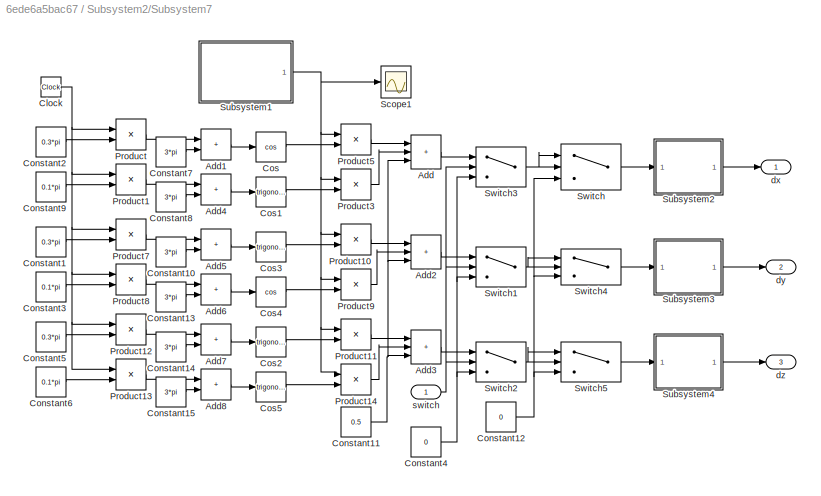
BLOCK [SubSystem] Subsystem2/Subsystem7
  Ports = [1, 3]
  RequestExecContextInheritance = off
BLOCK [Sum] Subsystem2/Subsystem7/Add
  IconShape = rectangular
  Inputs = +++
  Ports = [3, 1]
BLOCK [Sum] Subsystem2/Subsystem7/Add1
  IconShape = rectangular
  Ports = [2, 1]
BLOCK [Sum] Subsystem2/Subsystem7/Add2
  IconShape = rectangular
  Inputs = +++
  Ports = [3, 1]
BLOCK [Sum] Subsystem2/Subsystem7/Add3
  IconShape = rectangular
  Inputs = +++
  Ports = [3, 1]
BLOCK [Sum] Subsystem2/Subsystem7/Add4
  IconShape = rectangular
  Ports = [2, 1]
BLOCK [Sum] Subsystem2/Subsystem7/Add5
  IconShape = rectangular
  Ports = [2, 1]
BLOCK [Sum] Subsystem2/Subsystem7/Add6
  IconShape = rectangular
  Ports = [2, 1]
BLOCK [Sum] Subsystem2/Subsystem7/Add7
  IconShape = rectangular
  Ports = [2, 1]
BLOCK [Sum] Subsystem2/Subsystem7/Add8
  IconShape = rectangular
  Ports = [2, 1]
BLOCK [Clock] Subsystem2/Subsystem7/Clock
BLOCK [Constant] Subsystem2/Subsystem7/Constant1
  Value = 0.3*pi
BLOCK [Constant] Subsystem2/Subsystem7/Constant10
  Value = 3*pi
BLOCK [Constant] Subsystem2/Subsystem7/Constant11
  Value = 0.5
BLOCK [Constant] Subsystem2/Subsystem7/Constant12
  Value = 0
BLOCK [Constant] Subsystem2/Subsystem7/Constant13
  Value = 3*pi
BLOCK [Constant] Subsystem2/Subsystem7/Constant14
  Value = 3*pi
BLOCK [Constant] Subsystem2/Subsystem7/Constant15
  Value = 3*pi
BLOCK [Constant] Subsystem2/Subsystem7/Constant2
  Value = 0.3*pi
BLOCK [Constant] Subsystem2/Subsystem7/Constant3
  Value = 0.1*pi
BLOCK [Constant] Subsystem2/Subsystem7/Constant4
  Value = 0
BLOCK [Constant] Subsystem2/Subsystem7/Constant5
  Value = 0.3*pi
BLOCK [Constant] Subsystem2/Subsystem7/Constant6
  Value = 0.1*pi
BLOCK [Constant] Subsystem2/Subsystem7/Constant7
  Value = 3*pi
BLOCK [Constant] Subsystem2/Subsystem7/Constant8
  Value = 3*pi
BLOCK [Constant] Subsystem2/Subsystem7/Constant9
  Value = 0.1*pi
BLOCK [Trigonometry] Subsystem2/Subsystem7/Cos
  Operator = cos
  Ports = [1, 1]
BLOCK [Trigonometry] Subsystem2/Subsystem7/Cos1
  Ports = [1, 1]
BLOCK [Trigonometry] Subsystem2/Subsystem7/Cos2
  Ports = [1, 1]
BLOCK [Trigonometry] Subsystem2/Subsystem7/Cos3
  Ports = [1, 1]
BLOCK [Trigonometry] Subsystem2/Subsystem7/Cos4
  Operator = cos
  Ports = [1, 1]
BLOCK [Trigonometry] Subsystem2/Subsystem7/Cos5
  Ports = [1, 1]
BLOCK [Product] Subsystem2/Subsystem7/Product
  Ports = [2, 1]
BLOCK [Product] Subsystem2/Subsystem7/Product1
  Ports = [2, 1]
BLOCK [Product] Subsystem2/Subsystem7/Product10
  Ports = [2, 1]
BLOCK [Product] Subsystem2/Subsystem7/Product11
  Ports = [2, 1]
BLOCK [Product] Subsystem2/Subsystem7/Product12
  Ports = [2, 1]
BLOCK [Product] Subsystem2/Subsystem7/Product13
  Ports = [2, 1]
BLOCK [Product] Subsystem2/Subsystem7/Product14
  Ports = [2, 1]
BLOCK [Product] Subsystem2/Subsystem7/Product3
  Ports = [2, 1]
BLOCK [Product] Subsystem2/Subsystem7/Product5
  Ports = [2, 1]
BLOCK [Product] Subsystem2/Subsystem7/Product7
  Ports = [2, 1]
BLOCK [Product] Subsystem2/Subsystem7/Product8
  Ports = [2, 1]
BLOCK [Product] Subsystem2/Subsystem7/Product9
  Ports = [2, 1]
BLOCK [Scope] Subsystem2/Subsystem7/Scope1
  Floating = off
  NumInputPorts = 1
  Ports = [1]
  ScopeSpecificationString = Simulink.scopes.TimeScopeBlockCfg('CurrentConfiguration', extmgr.ConfigurationSet(extmgr.Configuration('Core','General UI',true),extmgr.Configuration('Core','Source UI',true),extmgr.Configuration('Sources','WiredSimulink',true,'DataLoggingVariableName','ScopeData2'),extmgr.Configuration('Visuals','Time Domain',true,'SerializedDisplays',{struct('MinYLimReal','-0.01755','MaxYLimReal','0.73536','YLab...<+1369ch>
BLOCK [SubSystem] Subsystem2/Subsystem7/Subsystem1
  Ports = [0, 1]
  RequestExecContextInheritance = off
BLOCK [Abs] Subsystem2/Subsystem7/Subsystem1/Abs1
  SaturateOnIntegerOverflow = off
BLOCK [Sum] Subsystem2/Subsystem7/Subsystem1/Add
  IconShape = rectangular
  Inputs = +++
  Ports = [3, 1]
BLOCK [Constant] Subsystem2/Subsystem7/Subsystem1/Constant
  Value = 0.8
BLOCK [Constant] Subsystem2/Subsystem7/Subsystem1/Constant1
  Value = 0.1
BLOCK [Constant] Subsystem2/Subsystem7/Subsystem1/Constant3
  Value = 0.1
BLOCK [Delay] Subsystem2/Subsystem7/Subsystem1/Delay1
  InputPortMap = u0
  Ports = [1, 1]
BLOCK [Delay] Subsystem2/Subsystem7/Subsystem1/Delay2
  DelayLength = 1
  InputPortMap = u0
  Ports = [1, 1]
BLOCK [Outport] Subsystem2/Subsystem7/Subsystem1/Out2
BLOCK [Product] Subsystem2/Subsystem7/Subsystem1/Product1
  Ports = [2, 1]
BLOCK [Product] Subsystem2/Subsystem7/Subsystem1/Product2
  Ports = [2, 1]
BLOCK [Product] Subsystem2/Subsystem7/Subsystem1/Product3
  Ports = [2, 1]
BLOCK [Product] Subsystem2/Subsystem7/Subsystem1/Product4
  Ports = [2, 1]
BLOCK [RandomNumber] Subsystem2/Subsystem7/Subsystem1/Random Number1
  Mean = 0.75
  SampleTime = 0.01
  Seed = 2
  Variance = 0.5
BLOCK [Reference] Subsystem2/Subsystem7/Subsystem1/Repeating Sequence Interpolated2  REF=simulink/Sources/Repeating
Sequence
Interpolated
  Ports = [0, 1]
  SourceBlock = simulink/Sources/Repeating\nSequence\nInterpolated
  SourceProductBaseCode = SL
  SourceType = Repeating Sequence Interpolated
BLOCK [Scope] Subsystem2/Subsystem7/Subsystem1/Scope
  Floating = off
  NumInputPorts = 1
  Ports = [1]
  ScopeSpecificationString = Simulink.scopes.TimeScopeBlockCfg('CurrentConfiguration', extmgr.ConfigurationSet(extmgr.Configuration('Core','General UI',true),extmgr.Configuration('Core','Source UI',true),extmgr.Configuration('Sources','WiredSimulink',true,'DataLoggingVariableName','ScopeData2'),extmgr.Configuration('Visuals','Time Domain',true,'SerializedDisplays',{struct('MinYLimReal','-0.398','MaxYLimReal','3.58405','YLabel...<+1359ch>
BLOCK [SubSystem] Subsystem2/Subsystem7/Subsystem2
  Ports = [1, 1]
  RequestExecContextInheritance = off
BLOCK [Sum] Subsystem2/Subsystem7/Subsystem2/Add
  IconShape = rectangular
  Inputs = +++
  Ports = [3, 1]
BLOCK [Constant] Subsystem2/Subsystem7/Subsystem2/Constant
  Value = 0.8
BLOCK [Constant] Subsystem2/Subsystem7/Subsystem2/Constant1
  Value = 0.1
BLOCK [Constant] Subsystem2/Subsystem7/Subsystem2/Constant3
  Value = 0.1
BLOCK [Delay] Subsystem2/Subsystem7/Subsystem2/Delay1
  InputPortMap = u0
  Ports = [1, 1]
BLOCK [Delay] Subsystem2/Subsystem7/Subsystem2/Delay2
  DelayLength = 1
  InputPortMap = u0
  Ports = [1, 1]
BLOCK [Inport] Subsystem2/Subsystem7/Subsystem2/In2
BLOCK [Outport] Subsystem2/Subsystem7/Subsystem2/Out2
BLOCK [Product] Subsystem2/Subsystem7/Subsystem2/Product1
  Ports = [2, 1]
BLOCK [Product] Subsystem2/Subsystem7/Subsystem2/Product2
  Ports = [2, 1]
BLOCK [Product] Subsystem2/Subsystem7/Subsystem2/Product3
  Ports = [2, 1]
BLOCK [SubSystem] Subsystem2/Subsystem7/Subsystem3
  Ports = [1, 1]
  RequestExecContextInheritance = off
BLOCK [Sum] Subsystem2/Subsystem7/Subsystem3/Add
  IconShape = rectangular
  Inputs = +++
  Ports = [3, 1]
BLOCK [Constant] Subsystem2/Subsystem7/Subsystem3/Constant
  Value = 0.8
BLOCK [Constant] Subsystem2/Subsystem7/Subsystem3/Constant1
  Value = 0.1
BLOCK [Constant] Subsystem2/Subsystem7/Subsystem3/Constant3
  Value = 0.1
BLOCK [Delay] Subsystem2/Subsystem7/Subsystem3/Delay1
  InputPortMap = u0
  Ports = [1, 1]
BLOCK [Delay] Subsystem2/Subsystem7/Subsystem3/Delay2
  DelayLength = 1
  InputPortMap = u0
  Ports = [1, 1]
BLOCK [Inport] Subsystem2/Subsystem7/Subsystem3/In2
BLOCK [Outport] Subsystem2/Subsystem7/Subsystem3/Out2
BLOCK [Product] Subsystem2/Subsystem7/Subsystem3/Product1
  Ports = [2, 1]
BLOCK [Product] Subsystem2/Subsystem7/Subsystem3/Product2
  Ports = [2, 1]
BLOCK [Product] Subsystem2/Subsystem7/Subsystem3/Product3
  Ports = [2, 1]
BLOCK [SubSystem] Subsystem2/Subsystem7/Subsystem4
  Ports = [1, 1]
  RequestExecContextInheritance = off
BLOCK [Sum] Subsystem2/Subsystem7/Subsystem4/Add
  IconShape = rectangular
  Inputs = +++
  Ports = [3, 1]
BLOCK [Constant] Subsystem2/Subsystem7/Subsystem4/Constant
  Value = 0.8
BLOCK [Constant] Subsystem2/Subsystem7/Subsystem4/Constant1
  Value = 0.1
BLOCK [Constant] Subsystem2/Subsystem7/Subsystem4/Constant3
  Value = 0.1
BLOCK [Delay] Subsystem2/Subsystem7/Subsystem4/Delay1
  InputPortMap = u0
  Ports = [1, 1]
BLOCK [Delay] Subsystem2/Subsystem7/Subsystem4/Delay2
  DelayLength = 1
  InputPortMap = u0
  Ports = [1, 1]
BLOCK [Inport] Subsystem2/Subsystem7/Subsystem4/In2
BLOCK [Outport] Subsystem2/Subsystem7/Subsystem4/Out2
BLOCK [Product] Subsystem2/Subsystem7/Subsystem4/Product1
  Ports = [2, 1]
BLOCK [Product] Subsystem2/Subsystem7/Subsystem4/Product2
  Ports = [2, 1]
BLOCK [Product] Subsystem2/Subsystem7/Subsystem4/Product3
  Ports = [2, 1]
BLOCK [Switch] Subsystem2/Subsystem7/Switch
  Criteria = u2 > Threshold
  InputSameDT = off
  SaturateOnIntegerOverflow = off
  Threshold = 0.1
BLOCK [Switch] Subsystem2/Subsystem7/Switch1
  Criteria = u2 > Threshold
  InputSameDT = off
  SaturateOnIntegerOverflow = off
BLOCK [Switch] Subsystem2/Subsystem7/Switch2
  Criteria = u2 > Threshold
  InputSameDT = off
  SaturateOnIntegerOverflow = off
BLOCK [Switch] Subsystem2/Subsystem7/Switch3
  Criteria = u2 > Threshold
  InputSameDT = off
  SaturateOnIntegerOverflow = off
BLOCK [Switch] Subsystem2/Subsystem7/Switch4
  Criteria = u2 > Threshold
  InputSameDT = off
  SaturateOnIntegerOverflow = off
  Threshold = 0.1
BLOCK [Switch] Subsystem2/Subsystem7/Switch5
  Criteria = u2 > Threshold
  InputSameDT = off
  SaturateOnIntegerOverflow = off
  Threshold = 0.1
BLOCK [Outport] Subsystem2/Subsystem7/dx
BLOCK [Outport] Subsystem2/Subsystem7/dy
  Port = 2
BLOCK [Outport] Subsystem2/Subsystem7/dz
  Port = 3
BLOCK [Inport] Subsystem2/Subsystem7/switch
NET Subsystem/Bus Creator2:1 -> Subsystem/Subsystem1:1, Subsystem/Subsystem2:1, Subsystem/Subsystem3:1, Subsystem/Subsystem4:1, Subsystem/Subsystem5:1, Subsystem/Subsystem:1
NET Subsystem/Bus Creator:1 -> Subsystem/Control signal:1, Subsystem/Goto:1
LINE Subsystem/From:1 -> Subsystem/Bus Creator2:2
LINE Subsystem/In1:1 -> Subsystem/Bus Creator2:1
LINE Subsystem/Subsystem/Bus Creator:1 -> Subsystem/Subsystem/u1:1
LINE Subsystem/Subsystem/Bus Selector1:1 -> Subsystem/Subsystem/Subsystem1:1
LINE Subsystem/Subsystem/Bus Selector1:2 -> Subsystem/Subsystem/Subsystem1:2
LINE Subsystem/Subsystem/Bus Selector1:3 -> Subsystem/Subsystem/Subsystem1:3
LINE Subsystem/Subsystem/Bus Selector1:4 -> Subsystem/Subsystem/Subsystem1:4
LINE Subsystem/Subsystem/Bus Selector1:5 -> Subsystem/Subsystem/Subsystem1:5
LINE Subsystem/Subsystem/Bus Selector1:6 -> Subsystem/Subsystem/Subsystem1:6
LINE Subsystem/Subsystem/Bus Selector1:7 -> Subsystem/Subsystem/Subsystem1:7
LINE Subsystem/Subsystem/Bus Selector1:8 -> Subsystem/Subsystem/Subsystem1:8
LINE Subsystem/Subsystem/Bus Selector2:1 -> Subsystem/Subsystem/Subsystem2:1
LINE Subsystem/Subsystem/Bus Selector2:2 -> Subsystem/Subsystem/Subsystem2:2
LINE Subsystem/Subsystem/Bus Selector2:3 -> Subsystem/Subsystem/Subsystem2:3
LINE Subsystem/Subsystem/Bus Selector2:4 -> Subsystem/Subsystem/Subsystem2:4
LINE Subsystem/Subsystem/Bus Selector2:5 -> Subsystem/Subsystem/Subsystem2:5
LINE Subsystem/Subsystem/Bus Selector2:6 -> Subsystem/Subsystem/Subsystem2:6
LINE Subsystem/Subsystem/Bus Selector2:7 -> Subsystem/Subsystem/Subsystem2:7
LINE Subsystem/Subsystem/Bus Selector2:8 -> Subsystem/Subsystem/Subsystem2:8
LINE Subsystem/Subsystem/Bus Selector3:1 -> Subsystem/Subsystem/Subsystem4:1
LINE Subsystem/Subsystem/Bus Selector4:1 -> Subsystem/Subsystem/Subsystem7:1
LINE Subsystem/Subsystem/Bus Selector5:1 -> Subsystem/Subsystem/Subsystem8:1
LINE Subsystem/Subsystem/Bus Selector:1 -> Subsystem/Subsystem/Subsystem6:1
LINE Subsystem/Subsystem/Bus Selector:2 -> Subsystem/Subsystem/Subsystem6:2
LINE Subsystem/Subsystem/Bus Selector:3 -> Subsystem/Subsystem/Subsystem6:3
LINE Subsystem/Subsystem/Bus Selector:4 -> Subsystem/Subsystem/Subsystem6:4
LINE Subsystem/Subsystem/Bus Selector:5 -> Subsystem/Subsystem/Subsystem6:5
LINE Subsystem/Subsystem/Bus Selector:6 -> Subsystem/Subsystem/Subsystem6:6
LINE Subsystem/Subsystem/Bus Selector:7 -> Subsystem/Subsystem/Subsystem6:7
LINE Subsystem/Subsystem/Bus Selector:8 -> Subsystem/Subsystem/Subsystem6:8
LINE Subsystem/Subsystem/Constant:1 -> Subsystem/Subsystem/Goto1:1
LINE Subsystem/Subsystem/From1:1 -> Subsystem/Subsystem/Bus Selector4:1
LINE Subsystem/Subsystem/From2:1 -> Subsystem/Subsystem/Bus Selector5:1
LINE Subsystem/Subsystem/From4:1 -> Subsystem/Subsystem/Subsystem8:3
LINE Subsystem/Subsystem/From5:1 -> Subsystem/Subsystem/Subsystem7:3
LINE Subsystem/Subsystem/From6:1 -> Subsystem/Subsystem/Subsystem4:3
LINE Subsystem/Subsystem/From:1 -> Subsystem/Subsystem/Bus Selector3:1
NET Subsystem/Subsystem/In19:1 -> Subsystem/Subsystem/Bus Selector1:1, Subsystem/Subsystem/Bus Selector2:1, Subsystem/Subsystem/Bus Selector:1, Subsystem/Subsystem/Goto:1
LINE Subsystem/Subsystem/Subsystem1/Add1:1 -> Subsystem/Subsystem/Subsystem1/Product3:2
LINE Subsystem/Subsystem/Subsystem1/Add2:1 -> Subsystem/Subsystem/Subsystem1/Product5:1
LINE Subsystem/Subsystem/Subsystem1/Add4:1 -> Subsystem/Subsystem/Subsystem1/Product4:2
LINE Subsystem/Subsystem/Subsystem1/Add5:1 -> Subsystem/Subsystem/Subsystem1/Product6:2
LINE Subsystem/Subsystem/Subsystem1/Add6:1 -> Subsystem/Subsystem/Subsystem1/Product7:2
LINE Subsystem/Subsystem/Subsystem1/Add7:1 -> Subsystem/Subsystem/Subsystem1/Product9:1
LINE Subsystem/Subsystem/Subsystem1/Add8:1 -> Subsystem/Subsystem/Subsystem1/Product8:2
LINE Subsystem/Subsystem/Subsystem1/Add9:1 -> Subsystem/Subsystem/Subsystem1/Product1:2
LINE Subsystem/Subsystem/Subsystem1/Add:1 -> Subsystem/Subsystem/Subsystem1/Divide:1
LINE Subsystem/Subsystem/Subsystem1/Constant10:1 -> Subsystem/Subsystem/Subsystem1/Product9:2
LINE Subsystem/Subsystem/Subsystem1/Constant11:1 -> Subsystem/Subsystem/Subsystem1/Product7:1
LINE Subsystem/Subsystem/Subsystem1/Constant2:1 -> Subsystem/Subsystem/Subsystem1/Product6:1
LINE Subsystem/Subsystem/Subsystem1/Constant3:1 -> Subsystem/Subsystem/Subsystem1/Product1:1
LINE Subsystem/Subsystem/Subsystem1/Constant4:1 -> Subsystem/Subsystem/Subsystem1/Math Function1:2
LINE Subsystem/Subsystem/Subsystem1/Constant5:1 -> Subsystem/Subsystem/Subsystem1/Product4:1
LINE Subsystem/Subsystem/Subsystem1/Constant6:1 -> Subsystem/Subsystem/Subsystem1/Divide:2
LINE Subsystem/Subsystem/Subsystem1/Constant7:1 -> Subsystem/Subsystem/Subsystem1/Product5:2
LINE Subsystem/Subsystem/Subsystem1/Constant8:1 -> Subsystem/Subsystem/Subsystem1/Product3:1
LINE Subsystem/Subsystem/Subsystem1/Constant9:1 -> Subsystem/Subsystem/Subsystem1/Product8:1
LINE Subsystem/Subsystem/Subsystem1/Divide:1 -> Subsystem/Subsystem/Subsystem1/Math Function1:1
LINE Subsystem/Subsystem/Subsystem1/Gain:1 -> Subsystem/Subsystem/Subsystem1/utx:1
LINE Subsystem/Subsystem/Subsystem1/Math Function1:1 -> Subsystem/Subsystem/Subsystem1/Gain:1
LINE Subsystem/Subsystem/Subsystem1/Product1:1 -> Subsystem/Subsystem/Subsystem1/Add:2
LINE Subsystem/Subsystem/Subsystem1/Product3:1 -> Subsystem/Subsystem/Subsystem1/Add5:1
LINE Subsystem/Subsystem/Subsystem1/Product4:1 -> Subsystem/Subsystem/Subsystem1/Add5:2
LINE Subsystem/Subsystem/Subsystem1/Product5:1 -> Subsystem/Subsystem/Subsystem1/Add5:3
LINE Subsystem/Subsystem/Subsystem1/Product6:1 -> Subsystem/Subsystem/Subsystem1/Add:1
LINE Subsystem/Subsystem/Subsystem1/Product7:1 -> Subsystem/Subsystem/Subsystem1/Add9:1
LINE Subsystem/Subsystem/Subsystem1/Product8:1 -> Subsystem/Subsystem/Subsystem1/Add9:2
LINE Subsystem/Subsystem/Subsystem1/Product9:1 -> Subsystem/Subsystem/Subsystem1/Add9:3
NET Subsystem/Subsystem/Subsystem1/vy1:1 -> Subsystem/Subsystem/Subsystem1/Add6:2, Subsystem/Subsystem/Subsystem1/Add7:1, Subsystem/Subsystem/Subsystem1/Add8:2
LINE Subsystem/Subsystem/Subsystem1/vy2:1 -> Subsystem/Subsystem/Subsystem1/Add7:2
LINE Subsystem/Subsystem/Subsystem1/vy3:1 -> Subsystem/Subsystem/Subsystem1/Add8:1
LINE Subsystem/Subsystem/Subsystem1/vy6:1 -> Subsystem/Subsystem/Subsystem1/Add6:1
NET Subsystem/Subsystem/Subsystem1/xy1:1 -> Subsystem/Subsystem/Subsystem1/Add1:2, Subsystem/Subsystem/Subsystem1/Add2:1, Subsystem/Subsystem/Subsystem1/Add4:2
LINE Subsystem/Subsystem/Subsystem1/xy2:1 -> Subsystem/Subsystem/Subsystem1/Add2:2
LINE Subsystem/Subsystem/Subsystem1/xy3:1 -> Subsystem/Subsystem/Subsystem1/Add4:1
LINE Subsystem/Subsystem/Subsystem1/xy6:1 -> Subsystem/Subsystem/Subsystem1/Add1:1
NET Subsystem/Subsystem/Subsystem10/Add:1 -> Subsystem/Subsystem/Subsystem10/Data Store Write:1, Subsystem/Subsystem/Subsystem10/Display:1
LINE Subsystem/Subsystem/Subsystem10/Constant3:1 -> Subsystem/Subsystem/Subsystem10/Switch2:1
LINE Subsystem/Subsystem/Subsystem10/Constant4:1 -> Subsystem/Subsystem/Subsystem10/Switch2:3
LINE Subsystem/Subsystem/Subsystem10/Data Store Read4:1 -> Subsystem/Subsystem/Subsystem10/Mux2:1
LINE Subsystem/Subsystem/Subsystem10/Data Store Read5:1 -> Subsystem/Subsystem/Subsystem10/Mux2:2
LINE Subsystem/Subsystem/Subsystem10/Data Store Read6:1 -> Subsystem/Subsystem/Subsystem10/Mux2:3
LINE Subsystem/Subsystem/Subsystem10/Data Store Read:1 -> Subsystem/Subsystem/Subsystem10/Add:2
NET Subsystem/Subsystem/Subsystem10/Demux:1 -> Subsystem/Subsystem/Subsystem10/Data Store Write1:1, Subsystem/Subsystem/Subsystem10/ux:1
NET Subsystem/Subsystem/Subsystem10/Demux:2 -> Subsystem/Subsystem/Subsystem10/Data Store Write2:1, Subsystem/Subsystem/Subsystem10/uy:1
NET Subsystem/Subsystem/Subsystem10/Demux:3 -> Subsystem/Subsystem/Subsystem10/Data Store Write6:1, Subsystem/Subsystem/Subsystem10/uz:1
LINE Subsystem/Subsystem/Subsystem10/From1:1 -> Subsystem/Subsystem/Subsystem10/Switch:3
LINE Subsystem/Subsystem/Subsystem10/From:1 -> Subsystem/Subsystem/Subsystem10/Switch:1
NET Subsystem/Subsystem/Subsystem10/MATLAB Function:1 -> Subsystem/Subsystem/Subsystem10/Switch2:2, Subsystem/Subsystem/Subsystem10/Switch:2
NET Subsystem/Subsystem/Subsystem10/Mux1:1 -> Subsystem/Subsystem/Subsystem10/Goto:1, Subsystem/Subsystem/Subsystem10/MATLAB Function:1
NET Subsystem/Subsystem/Subsystem10/Mux2:1 -> Subsystem/Subsystem/Subsystem10/Goto1:1, Subsystem/Subsystem/Subsystem10/MATLAB Function:2
LINE Subsystem/Subsystem/Subsystem10/Switch2:1 -> Subsystem/Subsystem/Subsystem10/Add:1
LINE Subsystem/Subsystem/Subsystem10/Switch:1 -> Subsystem/Subsystem/Subsystem10/Demux:1
LINE Subsystem/Subsystem/Subsystem10/utx:1 -> Subsystem/Subsystem/Subsystem10/Mux1:1
LINE Subsystem/Subsystem/Subsystem10/uty:1 -> Subsystem/Subsystem/Subsystem10/Mux1:2
LINE Subsystem/Subsystem/Subsystem10/utz:1 -> Subsystem/Subsystem/Subsystem10/Mux1:3
LINE Subsystem/Subsystem/Subsystem10:1 -> Subsystem/Subsystem/Bus Creator:1
LINE Subsystem/Subsystem/Subsystem10:2 -> Subsystem/Subsystem/Bus Creator:2
LINE Subsystem/Subsystem/Subsystem10:3 -> Subsystem/Subsystem/Bus Creator:3
LINE Subsystem/Subsystem/Subsystem1:1 -> Subsystem/Subsystem/Subsystem7:2
LINE Subsystem/Subsystem/Subsystem2/Add1:1 -> Subsystem/Subsystem/Subsystem2/Product3:2
LINE Subsystem/Subsystem/Subsystem2/Add2:1 -> Subsystem/Subsystem/Subsystem2/Product5:1
LINE Subsystem/Subsystem/Subsystem2/Add4:1 -> Subsystem/Subsystem/Subsystem2/Product4:2
LINE Subsystem/Subsystem/Subsystem2/Add5:1 -> Subsystem/Subsystem/Subsystem2/Product6:2
LINE Subsystem/Subsystem/Subsystem2/Add6:1 -> Subsystem/Subsystem/Subsystem2/Product7:2
LINE Subsystem/Subsystem/Subsystem2/Add7:1 -> Subsystem/Subsystem/Subsystem2/Product9:1
LINE Subsystem/Subsystem/Subsystem2/Add8:1 -> Subsystem/Subsystem/Subsystem2/Product8:2
LINE Subsystem/Subsystem/Subsystem2/Add9:1 -> Subsystem/Subsystem/Subsystem2/Product1:2
LINE Subsystem/Subsystem/Subsystem2/Add:1 -> Subsystem/Subsystem/Subsystem2/Divide:1
LINE Subsystem/Subsystem/Subsystem2/Constant1:1 -> Subsystem/Subsystem/Subsystem2/Product1:1
LINE Subsystem/Subsystem/Subsystem2/Constant2:1 -> Subsystem/Subsystem/Subsystem2/Math Function1:2
LINE Subsystem/Subsystem/Subsystem2/Constant3:1 -> Subsystem/Subsystem/Subsystem2/Product4:1
LINE Subsystem/Subsystem/Subsystem2/Constant4:1 -> Subsystem/Subsystem/Subsystem2/Product5:2
LINE Subsystem/Subsystem/Subsystem2/Constant5:1 -> Subsystem/Subsystem/Subsystem2/Product3:1
LINE Subsystem/Subsystem/Subsystem2/Constant6:1 -> Subsystem/Subsystem/Subsystem2/Divide:2
LINE Subsystem/Subsystem/Subsystem2/Constant7:1 -> Subsystem/Subsystem/Subsystem2/Product8:1
LINE Subsystem/Subsystem/Subsystem2/Constant8:1 -> Subsystem/Subsystem/Subsystem2/Product9:2
LINE Subsystem/Subsystem/Subsystem2/Constant9:1 -> Subsystem/Subsystem/Subsystem2/Product7:1
LINE Subsystem/Subsystem/Subsystem2/Constant:1 -> Subsystem/Subsystem/Subsystem2/Product6:1
LINE Subsystem/Subsystem/Subsystem2/Divide:1 -> Subsystem/Subsystem/Subsystem2/Math Function1:1
LINE Subsystem/Subsystem/Subsystem2/Gain:1 -> Subsystem/Subsystem/Subsystem2/utx:1
LINE Subsystem/Subsystem/Subsystem2/Math Function1:1 -> Subsystem/Subsystem/Subsystem2/Gain:1
LINE Subsystem/Subsystem/Subsystem2/Product1:1 -> Subsystem/Subsystem/Subsystem2/Add:2
LINE Subsystem/Subsystem/Subsystem2/Product3:1 -> Subsystem/Subsystem/Subsystem2/Add5:1
LINE Subsystem/Subsystem/Subsystem2/Product4:1 -> Subsystem/Subsystem/Subsystem2/Add5:2
LINE Subsystem/Subsystem/Subsystem2/Product5:1 -> Subsystem/Subsystem/Subsystem2/Add5:3
LINE Subsystem/Subsystem/Subsystem2/Product6:1 -> Subsystem/Subsystem/Subsystem2/Add:1
LINE Subsystem/Subsystem/Subsystem2/Product7:1 -> Subsystem/Subsystem/Subsystem2/Add9:1
LINE Subsystem/Subsystem/Subsystem2/Product8:1 -> Subsystem/Subsystem/Subsystem2/Add9:2
LINE Subsystem/Subsystem/Subsystem2/Product9:1 -> Subsystem/Subsystem/Subsystem2/Add9:3
NET Subsystem/Subsystem/Subsystem2/vz1:1 -> Subsystem/Subsystem/Subsystem2/Add6:2, Subsystem/Subsystem/Subsystem2/Add7:1, Subsystem/Subsystem/Subsystem2/Add8:2
LINE Subsystem/Subsystem/Subsystem2/vz2:1 -> Subsystem/Subsystem/Subsystem2/Add7:2
LINE Subsystem/Subsystem/Subsystem2/vz3:1 -> Subsystem/Subsystem/Subsystem2/Add8:1
LINE Subsystem/Subsystem/Subsystem2/vz6:1 -> Subsystem/Subsystem/Subsystem2/Add6:1
LINE Subsystem/Subsystem/Subsystem2/xx2:1 -> Subsystem/Subsystem/Subsystem2/Add2:2
NET Subsystem/Subsystem/Subsystem2/xz1:1 -> Subsystem/Subsystem/Subsystem2/Add1:2, Subsystem/Subsystem/Subsystem2/Add2:1, Subsystem/Subsystem/Subsystem2/Add4:2
LINE Subsystem/Subsystem/Subsystem2/xz3:1 -> Subsystem/Subsystem/Subsystem2/Add4:1
LINE Subsystem/Subsystem/Subsystem2/xz6:1 -> Subsystem/Subsystem/Subsystem2/Add1:1
LINE Subsystem/Subsystem/Subsystem2:1 -> Subsystem/Subsystem/Subsystem8:2
LINE Subsystem/Subsystem/Subsystem4/Add1:1 -> Subsystem/Subsystem/Subsystem4/ux:1
LINE Subsystem/Subsystem/Subsystem4/Constant2:1 -> Subsystem/Subsystem/Subsystem4/Product2:2
LINE Subsystem/Subsystem/Subsystem4/Constant:1 -> Subsystem/Subsystem/Subsystem4/Product1:1
LINE Subsystem/Subsystem/Subsystem4/From:1 -> Subsystem/Subsystem/Subsystem4/Add1:3
LINE Subsystem/Subsystem/Subsystem4/Product1:1 -> Subsystem/Subsystem/Subsystem4/Add1:1
LINE Subsystem/Subsystem/Subsystem4/Product2:1 -> Subsystem/Subsystem/Subsystem4/Tanh:1
LINE Subsystem/Subsystem/Subsystem4/Product:1 -> Subsystem/Subsystem/Subsystem4/Add1:2
LINE Subsystem/Subsystem/Subsystem4/Subsystem/Constant4:1 -> Subsystem/Subsystem/Subsystem4/Subsystem/Switch:1
NET Subsystem/Subsystem/Subsystem4/Subsystem/Discrete-Time Integrator:1 -> Subsystem/Subsystem/Subsystem4/Subsystem/MATLAB Function:1, Subsystem/Subsystem/Subsystem4/Subsystem/Saturation:1, Subsystem/Subsystem/Subsystem4/Subsystem/Sign:1
LINE Subsystem/Subsystem/Subsystem4/Subsystem/Logical Operator:1 -> Subsystem/Subsystem/Subsystem4/Subsystem/Switch:2
LINE Subsystem/Subsystem/Subsystem4/Subsystem/MATLAB Function:1 -> Subsystem/Subsystem/Subsystem4/Subsystem/Logical Operator:1
LINE Subsystem/Subsystem/Subsystem4/Subsystem/Relational Operator:1 -> Subsystem/Subsystem/Subsystem4/Subsystem/Logical Operator:2
NET Subsystem/Subsystem/Subsystem4/Subsystem/Saturation:1 -> Subsystem/Subsystem/Subsystem4/Subsystem/MATLAB Function:2, Subsystem/Subsystem/Subsystem4/Subsystem/Out1:1
LINE Subsystem/Subsystem/Subsystem4/Subsystem/Sign1:1 -> Subsystem/Subsystem/Subsystem4/Subsystem/Relational Operator:1
LINE Subsystem/Subsystem/Subsystem4/Subsystem/Sign:1 -> Subsystem/Subsystem/Subsystem4/Subsystem/Relational Operator:2
LINE Subsystem/Subsystem/Subsystem4/Subsystem/Switch:1 -> Subsystem/Subsystem/Subsystem4/Subsystem/Discrete-Time Integrator:1
NET Subsystem/Subsystem/Subsystem4/Subsystem/zt3:1 -> Subsystem/Subsystem/Subsystem4/Subsystem/Sign1:1, Subsystem/Subsystem/Subsystem4/Subsystem/Switch:3
LINE Subsystem/Subsystem/Subsystem4/Subsystem:1 -> Subsystem/Subsystem/Subsystem4/Subtract:2
NET Subsystem/Subsystem/Subsystem4/Subtract:1 -> Subsystem/Subsystem/Subsystem4/Product1:2, Subsystem/Subsystem/Subsystem4/Product2:1
LINE Subsystem/Subsystem/Subsystem4/Tanh:1 -> Subsystem/Subsystem/Subsystem4/Product:1
LINE Subsystem/Subsystem/Subsystem4/gain:1 -> Subsystem/Subsystem/Subsystem4/Product:2
NET Subsystem/Subsystem/Subsystem4/utx:1 -> Subsystem/Subsystem/Subsystem4/Goto:1, Subsystem/Subsystem/Subsystem4/Subsystem:1
LINE Subsystem/Subsystem/Subsystem4/vx1:1 -> Subsystem/Subsystem/Subsystem4/Subtract:1
LINE Subsystem/Subsystem/Subsystem4:1 -> Subsystem/Subsystem/Subsystem10:1
LINE Subsystem/Subsystem/Subsystem6/Add1:1 -> Subsystem/Subsystem/Subsystem6/Product3:2
LINE Subsystem/Subsystem/Subsystem6/Add2:1 -> Subsystem/Subsystem/Subsystem6/Product5:1
LINE Subsystem/Subsystem/Subsystem6/Add4:1 -> Subsystem/Subsystem/Subsystem6/Product4:2
LINE Subsystem/Subsystem/Subsystem6/Add5:1 -> Subsystem/Subsystem/Subsystem6/Product6:2
LINE Subsystem/Subsystem/Subsystem6/Add6:1 -> Subsystem/Subsystem/Subsystem6/Product7:2
LINE Subsystem/Subsystem/Subsystem6/Add7:1 -> Subsystem/Subsystem/Subsystem6/Product9:1
LINE Subsystem/Subsystem/Subsystem6/Add8:1 -> Subsystem/Subsystem/Subsystem6/Product8:2
LINE Subsystem/Subsystem/Subsystem6/Add9:1 -> Subsystem/Subsystem/Subsystem6/Product1:2
LINE Subsystem/Subsystem/Subsystem6/Add:1 -> Subsystem/Subsystem/Subsystem6/Divide:1
LINE Subsystem/Subsystem/Subsystem6/Constant1:1 -> Subsystem/Subsystem/Subsystem6/Product1:1
LINE Subsystem/Subsystem/Subsystem6/Constant2:1 -> Subsystem/Subsystem/Subsystem6/Math Function1:2
LINE Subsystem/Subsystem/Subsystem6/Constant3:1 -> Subsystem/Subsystem/Subsystem6/Product4:1
LINE Subsystem/Subsystem/Subsystem6/Constant4:1 -> Subsystem/Subsystem/Subsystem6/Product5:2
LINE Subsystem/Subsystem/Subsystem6/Constant5:1 -> Subsystem/Subsystem/Subsystem6/Product3:1
LINE Subsystem/Subsystem/Subsystem6/Constant6:1 -> Subsystem/Subsystem/Subsystem6/Divide:2
LINE Subsystem/Subsystem/Subsystem6/Constant7:1 -> Subsystem/Subsystem/Subsystem6/Product8:1
LINE Subsystem/Subsystem/Subsystem6/Constant8:1 -> Subsystem/Subsystem/Subsystem6/Product9:2
LINE Subsystem/Subsystem/Subsystem6/Constant9:1 -> Subsystem/Subsystem/Subsystem6/Product7:1
LINE Subsystem/Subsystem/Subsystem6/Constant:1 -> Subsystem/Subsystem/Subsystem6/Product6:1
LINE Subsystem/Subsystem/Subsystem6/Divide:1 -> Subsystem/Subsystem/Subsystem6/Math Function1:1
LINE Subsystem/Subsystem/Subsystem6/Gain:1 -> Subsystem/Subsystem/Subsystem6/utx:1
LINE Subsystem/Subsystem/Subsystem6/Math Function1:1 -> Subsystem/Subsystem/Subsystem6/Gain:1
LINE Subsystem/Subsystem/Subsystem6/Product1:1 -> Subsystem/Subsystem/Subsystem6/Add:2
LINE Subsystem/Subsystem/Subsystem6/Product3:1 -> Subsystem/Subsystem/Subsystem6/Add5:1
LINE Subsystem/Subsystem/Subsystem6/Product4:1 -> Subsystem/Subsystem/Subsystem6/Add5:2
LINE Subsystem/Subsystem/Subsystem6/Product5:1 -> Subsystem/Subsystem/Subsystem6/Add5:3
LINE Subsystem/Subsystem/Subsystem6/Product6:1 -> Subsystem/Subsystem/Subsystem6/Add:1
LINE Subsystem/Subsystem/Subsystem6/Product7:1 -> Subsystem/Subsystem/Subsystem6/Add9:1
LINE Subsystem/Subsystem/Subsystem6/Product8:1 -> Subsystem/Subsystem/Subsystem6/Add9:2
LINE Subsystem/Subsystem/Subsystem6/Product9:1 -> Subsystem/Subsystem/Subsystem6/Add9:3
NET Subsystem/Subsystem/Subsystem6/vx1:1 -> Subsystem/Subsystem/Subsystem6/Add6:2, Subsystem/Subsystem/Subsystem6/Add7:1, Subsystem/Subsystem/Subsystem6/Add8:2
LINE Subsystem/Subsystem/Subsystem6/vx2:1 -> Subsystem/Subsystem/Subsystem6/Add7:2
LINE Subsystem/Subsystem/Subsystem6/vx3:1 -> Subsystem/Subsystem/Subsystem6/Add8:1
LINE Subsystem/Subsystem/Subsystem6/vx6:1 -> Subsystem/Subsystem/Subsystem6/Add6:1
NET Subsystem/Subsystem/Subsystem6/xx1:1 -> Subsystem/Subsystem/Subsystem6/Add1:2, Subsystem/Subsystem/Subsystem6/Add2:1, Subsystem/Subsystem/Subsystem6/Add4:2
LINE Subsystem/Subsystem/Subsystem6/xx2:1 -> Subsystem/Subsystem/Subsystem6/Add2:2
LINE Subsystem/Subsystem/Subsystem6/xx3:1 -> Subsystem/Subsystem/Subsystem6/Add4:1
LINE Subsystem/Subsystem/Subsystem6/xx6:1 -> Subsystem/Subsystem/Subsystem6/Add1:1
LINE Subsystem/Subsystem/Subsystem6:1 -> Subsystem/Subsystem/Subsystem4:2
LINE Subsystem/Subsystem/Subsystem7/Add1:1 -> Subsystem/Subsystem/Subsystem7/ux:1
LINE Subsystem/Subsystem/Subsystem7/Constant2:1 -> Subsystem/Subsystem/Subsystem7/Product2:2
LINE Subsystem/Subsystem/Subsystem7/Constant:1 -> Subsystem/Subsystem/Subsystem7/Product1:1
LINE Subsystem/Subsystem/Subsystem7/From:1 -> Subsystem/Subsystem/Subsystem7/Add1:3
LINE Subsystem/Subsystem/Subsystem7/Product1:1 -> Subsystem/Subsystem/Subsystem7/Add1:1
LINE Subsystem/Subsystem/Subsystem7/Product2:1 -> Subsystem/Subsystem/Subsystem7/Tanh:1
LINE Subsystem/Subsystem/Subsystem7/Product:1 -> Subsystem/Subsystem/Subsystem7/Add1:2
LINE Subsystem/Subsystem/Subsystem7/Subsystem/Constant4:1 -> Subsystem/Subsystem/Subsystem7/Subsystem/Switch:1
NET Subsystem/Subsystem/Subsystem7/Subsystem/Discrete-Time Integrator:1 -> Subsystem/Subsystem/Subsystem7/Subsystem/MATLAB Function:1, Subsystem/Subsystem/Subsystem7/Subsystem/Saturation:1, Subsystem/Subsystem/Subsystem7/Subsystem/Sign:1
LINE Subsystem/Subsystem/Subsystem7/Subsystem/Logical Operator:1 -> Subsystem/Subsystem/Subsystem7/Subsystem/Switch:2
LINE Subsystem/Subsystem/Subsystem7/Subsystem/MATLAB Function:1 -> Subsystem/Subsystem/Subsystem7/Subsystem/Logical Operator:1
LINE Subsystem/Subsystem/Subsystem7/Subsystem/Relational Operator:1 -> Subsystem/Subsystem/Subsystem7/Subsystem/Logical Operator:2
NET Subsystem/Subsystem/Subsystem7/Subsystem/Saturation:1 -> Subsystem/Subsystem/Subsystem7/Subsystem/MATLAB Function:2, Subsystem/Subsystem/Subsystem7/Subsystem/Out1:1
LINE Subsystem/Subsystem/Subsystem7/Subsystem/Sign1:1 -> Subsystem/Subsystem/Subsystem7/Subsystem/Relational Operator:1
LINE Subsystem/Subsystem/Subsystem7/Subsystem/Sign:1 -> Subsystem/Subsystem/Subsystem7/Subsystem/Relational Operator:2
LINE Subsystem/Subsystem/Subsystem7/Subsystem/Switch:1 -> Subsystem/Subsystem/Subsystem7/Subsystem/Discrete-Time Integrator:1
NET Subsystem/Subsystem/Subsystem7/Subsystem/zt3:1 -> Subsystem/Subsystem/Subsystem7/Subsystem/Sign1:1, Subsystem/Subsystem/Subsystem7/Subsystem/Switch:3
LINE Subsystem/Subsystem/Subsystem7/Subsystem:1 -> Subsystem/Subsystem/Subsystem7/Subtract:2
NET Subsystem/Subsystem/Subsystem7/Subtract:1 -> Subsystem/Subsystem/Subsystem7/Product1:2, Subsystem/Subsystem/Subsystem7/Product2:1
LINE Subsystem/Subsystem/Subsystem7/Tanh:1 -> Subsystem/Subsystem/Subsystem7/Product:1
LINE Subsystem/Subsystem/Subsystem7/gain:1 -> Subsystem/Subsystem/Subsystem7/Product:2
NET Subsystem/Subsystem/Subsystem7/uty:1 -> Subsystem/Subsystem/Subsystem7/Goto:1, Subsystem/Subsystem/Subsystem7/Subsystem:1
LINE Subsystem/Subsystem/Subsystem7/vy1:1 -> Subsystem/Subsystem/Subsystem7/Subtract:1
LINE Subsystem/Subsystem/Subsystem7:1 -> Subsystem/Subsystem/Subsystem10:2
LINE Subsystem/Subsystem/Subsystem8/Add1:1 -> Subsystem/Subsystem/Subsystem8/ux:1
LINE Subsystem/Subsystem/Subsystem8/Constant2:1 -> Subsystem/Subsystem/Subsystem8/Product2:2
LINE Subsystem/Subsystem/Subsystem8/Constant:1 -> Subsystem/Subsystem/Subsystem8/Product1:1
LINE Subsystem/Subsystem/Subsystem8/From:1 -> Subsystem/Subsystem/Subsystem8/Add1:3
LINE Subsystem/Subsystem/Subsystem8/Product1:1 -> Subsystem/Subsystem/Subsystem8/Add1:1
LINE Subsystem/Subsystem/Subsystem8/Product2:1 -> Subsystem/Subsystem/Subsystem8/Tanh:1
LINE Subsystem/Subsystem/Subsystem8/Product:1 -> Subsystem/Subsystem/Subsystem8/Add1:2
LINE Subsystem/Subsystem/Subsystem8/Subsystem/Constant4:1 -> Subsystem/Subsystem/Subsystem8/Subsystem/Switch:1
NET Subsystem/Subsystem/Subsystem8/Subsystem/Discrete-Time Integrator:1 -> Subsystem/Subsystem/Subsystem8/Subsystem/MATLAB Function:1, Subsystem/Subsystem/Subsystem8/Subsystem/Saturation:1, Subsystem/Subsystem/Subsystem8/Subsystem/Sign:1
LINE Subsystem/Subsystem/Subsystem8/Subsystem/Logical Operator:1 -> Subsystem/Subsystem/Subsystem8/Subsystem/Switch:2
LINE Subsystem/Subsystem/Subsystem8/Subsystem/MATLAB Function:1 -> Subsystem/Subsystem/Subsystem8/Subsystem/Logical Operator:1
LINE Subsystem/Subsystem/Subsystem8/Subsystem/Relational Operator:1 -> Subsystem/Subsystem/Subsystem8/Subsystem/Logical Operator:2
NET Subsystem/Subsystem/Subsystem8/Subsystem/Saturation:1 -> Subsystem/Subsystem/Subsystem8/Subsystem/MATLAB Function:2, Subsystem/Subsystem/Subsystem8/Subsystem/Out1:1
LINE Subsystem/Subsystem/Subsystem8/Subsystem/Sign1:1 -> Subsystem/Subsystem/Subsystem8/Subsystem/Relational Operator:1
LINE Subsystem/Subsystem/Subsystem8/Subsystem/Sign:1 -> Subsystem/Subsystem/Subsystem8/Subsystem/Relational Operator:2
LINE Subsystem/Subsystem/Subsystem8/Subsystem/Switch:1 -> Subsystem/Subsystem/Subsystem8/Subsystem/Discrete-Time Integrator:1
NET Subsystem/Subsystem/Subsystem8/Subsystem/zt3:1 -> Subsystem/Subsystem/Subsystem8/Subsystem/Sign1:1, Subsystem/Subsystem/Subsystem8/Subsystem/Switch:3
LINE Subsystem/Subsystem/Subsystem8/Subsystem:1 -> Subsystem/Subsystem/Subsystem8/Subtract:2
NET Subsystem/Subsystem/Subsystem8/Subtract:1 -> Subsystem/Subsystem/Subsystem8/Product1:2, Subsystem/Subsystem/Subsystem8/Product2:1
LINE Subsystem/Subsystem/Subsystem8/Tanh:1 -> Subsystem/Subsystem/Subsystem8/Product:1
LINE Subsystem/Subsystem/Subsystem8/gain:1 -> Subsystem/Subsystem/Subsystem8/Product:2
NET Subsystem/Subsystem/Subsystem8/utz:1 -> Subsystem/Subsystem/Subsystem8/Goto:1, Subsystem/Subsystem/Subsystem8/Subsystem:1
LINE Subsystem/Subsystem/Subsystem8/vz1:1 -> Subsystem/Subsystem/Subsystem8/Subtract:1
LINE Subsystem/Subsystem/Subsystem8:1 -> Subsystem/Subsystem/Subsystem10:3
LINE Subsystem/Subsystem1/Bus Creator:1 -> Subsystem/Subsystem1/u5:1
LINE Subsystem/Subsystem1/Bus Selector1:1 -> Subsystem/Subsystem1/Subsystem1:1
LINE Subsystem/Subsystem1/Bus Selector1:2 -> Subsystem/Subsystem1/Subsystem1:2
LINE Subsystem/Subsystem1/Bus Selector1:3 -> Subsystem/Subsystem1/Subsystem1:3
LINE Subsystem/Subsystem1/Bus Selector1:4 -> Subsystem/Subsystem1/Subsystem1:4
LINE Subsystem/Subsystem1/Bus Selector1:5 -> Subsystem/Subsystem1/Subsystem1:5
LINE Subsystem/Subsystem1/Bus Selector1:6 -> Subsystem/Subsystem1/Subsystem1:6
LINE Subsystem/Subsystem1/Bus Selector1:7 -> Subsystem/Subsystem1/Subsystem1:7
LINE Subsystem/Subsystem1/Bus Selector1:8 -> Subsystem/Subsystem1/Subsystem1:8
LINE Subsystem/Subsystem1/Bus Selector2:1 -> Subsystem/Subsystem1/Subsystem2:1
LINE Subsystem/Subsystem1/Bus Selector2:2 -> Subsystem/Subsystem1/Subsystem2:2
LINE Subsystem/Subsystem1/Bus Selector2:3 -> Subsystem/Subsystem1/Subsystem2:3
LINE Subsystem/Subsystem1/Bus Selector2:4 -> Subsystem/Subsystem1/Subsystem2:4
LINE Subsystem/Subsystem1/Bus Selector2:5 -> Subsystem/Subsystem1/Subsystem2:5
LINE Subsystem/Subsystem1/Bus Selector2:6 -> Subsystem/Subsystem1/Subsystem2:6
LINE Subsystem/Subsystem1/Bus Selector2:7 -> Subsystem/Subsystem1/Subsystem2:7
LINE Subsystem/Subsystem1/Bus Selector2:8 -> Subsystem/Subsystem1/Subsystem2:8
LINE Subsystem/Subsystem1/Bus Selector3:1 -> Subsystem/Subsystem1/Subsystem4:1
LINE Subsystem/Subsystem1/Bus Selector3:2 -> Subsystem/Subsystem1/Subsystem4:2
LINE Subsystem/Subsystem1/Bus Selector4:1 -> Subsystem/Subsystem1/Subsystem7:1
LINE Subsystem/Subsystem1/Bus Selector4:2 -> Subsystem/Subsystem1/Subsystem7:2
LINE Subsystem/Subsystem1/Bus Selector5:1 -> Subsystem/Subsystem1/Subsystem8:1
LINE Subsystem/Subsystem1/Bus Selector5:2 -> Subsystem/Subsystem1/Subsystem8:2
LINE Subsystem/Subsystem1/Bus Selector:1 -> Subsystem/Subsystem1/Subsystem6:1
LINE Subsystem/Subsystem1/Bus Selector:2 -> Subsystem/Subsystem1/Subsystem6:2
LINE Subsystem/Subsystem1/Bus Selector:3 -> Subsystem/Subsystem1/Subsystem6:3
LINE Subsystem/Subsystem1/Bus Selector:4 -> Subsystem/Subsystem1/Subsystem6:4
LINE Subsystem/Subsystem1/Bus Selector:5 -> Subsystem/Subsystem1/Subsystem6:5
LINE Subsystem/Subsystem1/Bus Selector:6 -> Subsystem/Subsystem1/Subsystem6:6
LINE Subsystem/Subsystem1/Bus Selector:7 -> Subsystem/Subsystem1/Subsystem6:7
LINE Subsystem/Subsystem1/Bus Selector:8 -> Subsystem/Subsystem1/Subsystem6:8
LINE Subsystem/Subsystem1/Constant:1 -> Subsystem/Subsystem1/Goto1:1
LINE Subsystem/Subsystem1/From1:1 -> Subsystem/Subsystem1/Bus Selector4:1
LINE Subsystem/Subsystem1/From2:1 -> Subsystem/Subsystem1/Bus Selector5:1
LINE Subsystem/Subsystem1/From4:1 -> Subsystem/Subsystem1/Subsystem8:4
LINE Subsystem/Subsystem1/From5:1 -> Subsystem/Subsystem1/Subsystem7:4
LINE Subsystem/Subsystem1/From6:1 -> Subsystem/Subsystem1/Subsystem4:4
LINE Subsystem/Subsystem1/From:1 -> Subsystem/Subsystem1/Bus Selector3:1
NET Subsystem/Subsystem1/In19:1 -> Subsystem/Subsystem1/Bus Selector1:1, Subsystem/Subsystem1/Bus Selector2:1, Subsystem/Subsystem1/Bus Selector:1, Subsystem/Subsystem1/Goto:1
LINE Subsystem/Subsystem1/Subsystem1/Add10:1 -> Subsystem/Subsystem1/Subsystem1/Product8:2
LINE Subsystem/Subsystem1/Subsystem1/Add1:1 -> Subsystem/Subsystem1/Subsystem1/Product3:2
LINE Subsystem/Subsystem1/Subsystem1/Add2:1 -> Subsystem/Subsystem1/Subsystem1/Product5:1
LINE Subsystem/Subsystem1/Subsystem1/Add4:1 -> Subsystem/Subsystem1/Subsystem1/Product4:2
LINE Subsystem/Subsystem1/Subsystem1/Add5:1 -> Subsystem/Subsystem1/Subsystem1/Product6:2
LINE Subsystem/Subsystem1/Subsystem1/Add6:1 -> Subsystem/Subsystem1/Subsystem1/Product7:1
LINE Subsystem/Subsystem1/Subsystem1/Add8:1 -> Subsystem/Subsystem1/Subsystem1/Product1:2
LINE Subsystem/Subsystem1/Subsystem1/Add9:1 -> Subsystem/Subsystem1/Subsystem1/Product9:1
LINE Subsystem/Subsystem1/Subsystem1/Add:1 -> Subsystem/Subsystem1/Subsystem1/Divide:1
LINE Subsystem/Subsystem1/Subsystem1/Constant1:1 -> Subsystem/Subsystem1/Subsystem1/Product1:1
LINE Subsystem/Subsystem1/Subsystem1/Constant2:1 -> Subsystem/Subsystem1/Subsystem1/Math Function1:2
LINE Subsystem/Subsystem1/Subsystem1/Constant3:1 -> Subsystem/Subsystem1/Subsystem1/Product4:1
LINE Subsystem/Subsystem1/Subsystem1/Constant4:1 -> Subsystem/Subsystem1/Subsystem1/Product5:2
LINE Subsystem/Subsystem1/Subsystem1/Constant5:1 -> Subsystem/Subsystem1/Subsystem1/Product8:1
LINE Subsystem/Subsystem1/Subsystem1/Constant6:1 -> Subsystem/Subsystem1/Subsystem1/Product9:2
LINE Subsystem/Subsystem1/Subsystem1/Constant7:1 -> Subsystem/Subsystem1/Subsystem1/Product3:1
LINE Subsystem/Subsystem1/Subsystem1/Constant8:1 -> Subsystem/Subsystem1/Subsystem1/Product7:2
LINE Subsystem/Subsystem1/Subsystem1/Constant9:1 -> Subsystem/Subsystem1/Subsystem1/Divide:2
LINE Subsystem/Subsystem1/Subsystem1/Constant:1 -> Subsystem/Subsystem1/Subsystem1/Product6:1
LINE Subsystem/Subsystem1/Subsystem1/Divide:1 -> Subsystem/Subsystem1/Subsystem1/Math Function1:1
LINE Subsystem/Subsystem1/Subsystem1/Gain:1 -> Subsystem/Subsystem1/Subsystem1/uty:1
LINE Subsystem/Subsystem1/Subsystem1/Math Function1:1 -> Subsystem/Subsystem1/Subsystem1/Gain:1
LINE Subsystem/Subsystem1/Subsystem1/Product1:1 -> Subsystem/Subsystem1/Subsystem1/Add:2
LINE Subsystem/Subsystem1/Subsystem1/Product3:1 -> Subsystem/Subsystem1/Subsystem1/Add5:1
LINE Subsystem/Subsystem1/Subsystem1/Product4:1 -> Subsystem/Subsystem1/Subsystem1/Add5:2
LINE Subsystem/Subsystem1/Subsystem1/Product5:1 -> Subsystem/Subsystem1/Subsystem1/Add5:3
LINE Subsystem/Subsystem1/Subsystem1/Product6:1 -> Subsystem/Subsystem1/Subsystem1/Add:1
LINE Subsystem/Subsystem1/Subsystem1/Product7:1 -> Subsystem/Subsystem1/Subsystem1/Add8:3
LINE Subsystem/Subsystem1/Subsystem1/Product8:1 -> Subsystem/Subsystem1/Subsystem1/Add8:1
LINE Subsystem/Subsystem1/Subsystem1/Product9:1 -> Subsystem/Subsystem1/Subsystem1/Add8:2
LINE Subsystem/Subsystem1/Subsystem1/vy0:1 -> Subsystem/Subsystem1/Subsystem1/Add6:2
LINE Subsystem/Subsystem1/Subsystem1/vy3:1 -> Subsystem/Subsystem1/Subsystem1/Add9:2
LINE Subsystem/Subsystem1/Subsystem1/vy4:1 -> Subsystem/Subsystem1/Subsystem1/Add10:1
NET Subsystem/Subsystem1/Subsystem1/vy5:1 -> Subsystem/Subsystem1/Subsystem1/Add10:2, Subsystem/Subsystem1/Subsystem1/Add6:1, Subsystem/Subsystem1/Subsystem1/Add9:1
LINE Subsystem/Subsystem1/Subsystem1/xy0:1 -> Subsystem/Subsystem1/Subsystem1/Add1:1
LINE Subsystem/Subsystem1/Subsystem1/xy3:1 -> Subsystem/Subsystem1/Subsystem1/Add2:2
LINE Subsystem/Subsystem1/Subsystem1/xy4:1 -> Subsystem/Subsystem1/Subsystem1/Add4:1
NET Subsystem/Subsystem1/Subsystem1/xy5:1 -> Subsystem/Subsystem1/Subsystem1/Add1:2, Subsystem/Subsystem1/Subsystem1/Add2:1, Subsystem/Subsystem1/Subsystem1/Add4:2
NET Subsystem/Subsystem1/Subsystem10/Add:1 -> Subsystem/Subsystem1/Subsystem10/Data Store Write:1, Subsystem/Subsystem1/Subsystem10/Display:1
LINE Subsystem/Subsystem1/Subsystem10/Constant3:1 -> Subsystem/Subsystem1/Subsystem10/Switch2:1
LINE Subsystem/Subsystem1/Subsystem10/Constant4:1 -> Subsystem/Subsystem1/Subsystem10/Switch2:3
LINE Subsystem/Subsystem1/Subsystem10/Data Store Read1:1 -> Subsystem/Subsystem1/Subsystem10/Mux2:3
LINE Subsystem/Subsystem1/Subsystem10/Data Store Read2:1 -> Subsystem/Subsystem1/Subsystem10/Mux2:2
LINE Subsystem/Subsystem1/Subsystem10/Data Store Read3:1 -> Subsystem/Subsystem1/Subsystem10/Mux2:1
LINE Subsystem/Subsystem1/Subsystem10/Data Store Read:1 -> Subsystem/Subsystem1/Subsystem10/Add:2
NET Subsystem/Subsystem1/Subsystem10/Demux:1 -> Subsystem/Subsystem1/Subsystem10/Data Store Write3:1, Subsystem/Subsystem1/Subsystem10/ux:1
NET Subsystem/Subsystem1/Subsystem10/Demux:2 -> Subsystem/Subsystem1/Subsystem10/Data Store Write4:1, Subsystem/Subsystem1/Subsystem10/uy:1
NET Subsystem/Subsystem1/Subsystem10/Demux:3 -> Subsystem/Subsystem1/Subsystem10/Data Store Write5:1, Subsystem/Subsystem1/Subsystem10/uz:1
LINE Subsystem/Subsystem1/Subsystem10/From1:1 -> Subsystem/Subsystem1/Subsystem10/Switch:3
LINE Subsystem/Subsystem1/Subsystem10/From:1 -> Subsystem/Subsystem1/Subsystem10/Switch:1
NET Subsystem/Subsystem1/Subsystem10/MATLAB Function:1 -> Subsystem/Subsystem1/Subsystem10/Switch2:2, Subsystem/Subsystem1/Subsystem10/Switch:2
NET Subsystem/Subsystem1/Subsystem10/Mux1:1 -> Subsystem/Subsystem1/Subsystem10/Goto:1, Subsystem/Subsystem1/Subsystem10/MATLAB Function:1
NET Subsystem/Subsystem1/Subsystem10/Mux2:1 -> Subsystem/Subsystem1/Subsystem10/Goto1:1, Subsystem/Subsystem1/Subsystem10/MATLAB Function:2
LINE Subsystem/Subsystem1/Subsystem10/Switch2:1 -> Subsystem/Subsystem1/Subsystem10/Add:1
LINE Subsystem/Subsystem1/Subsystem10/Switch:1 -> Subsystem/Subsystem1/Subsystem10/Demux:1
LINE Subsystem/Subsystem1/Subsystem10/utx:1 -> Subsystem/Subsystem1/Subsystem10/Mux1:1
LINE Subsystem/Subsystem1/Subsystem10/uty:1 -> Subsystem/Subsystem1/Subsystem10/Mux1:2
LINE Subsystem/Subsystem1/Subsystem10/utz:1 -> Subsystem/Subsystem1/Subsystem10/Mux1:3
LINE Subsystem/Subsystem1/Subsystem10:1 -> Subsystem/Subsystem1/Bus Creator:1
LINE Subsystem/Subsystem1/Subsystem10:2 -> Subsystem/Subsystem1/Bus Creator:2
LINE Subsystem/Subsystem1/Subsystem10:3 -> Subsystem/Subsystem1/Bus Creator:3
LINE Subsystem/Subsystem1/Subsystem1:1 -> Subsystem/Subsystem1/Subsystem7:3
LINE Subsystem/Subsystem1/Subsystem2/Add10:1 -> Subsystem/Subsystem1/Subsystem2/Product8:2
LINE Subsystem/Subsystem1/Subsystem2/Add1:1 -> Subsystem/Subsystem1/Subsystem2/Product3:2
LINE Subsystem/Subsystem1/Subsystem2/Add2:1 -> Subsystem/Subsystem1/Subsystem2/Product5:1
LINE Subsystem/Subsystem1/Subsystem2/Add4:1 -> Subsystem/Subsystem1/Subsystem2/Product4:2
LINE Subsystem/Subsystem1/Subsystem2/Add5:1 -> Subsystem/Subsystem1/Subsystem2/Product6:2
LINE Subsystem/Subsystem1/Subsystem2/Add6:1 -> Subsystem/Subsystem1/Subsystem2/Product7:1
LINE Subsystem/Subsystem1/Subsystem2/Add8:1 -> Subsystem/Subsystem1/Subsystem2/Product1:2
LINE Subsystem/Subsystem1/Subsystem2/Add9:1 -> Subsystem/Subsystem1/Subsystem2/Product9:1
LINE Subsystem/Subsystem1/Subsystem2/Add:1 -> Subsystem/Subsystem1/Subsystem2/Divide:1
LINE Subsystem/Subsystem1/Subsystem2/Constant1:1 -> Subsystem/Subsystem1/Subsystem2/Product1:1
LINE Subsystem/Subsystem1/Subsystem2/Constant2:1 -> Subsystem/Subsystem1/Subsystem2/Math Function1:2
LINE Subsystem/Subsystem1/Subsystem2/Constant3:1 -> Subsystem/Subsystem1/Subsystem2/Product4:1
LINE Subsystem/Subsystem1/Subsystem2/Constant4:1 -> Subsystem/Subsystem1/Subsystem2/Product5:2
LINE Subsystem/Subsystem1/Subsystem2/Constant5:1 -> Subsystem/Subsystem1/Subsystem2/Product8:1
LINE Subsystem/Subsystem1/Subsystem2/Constant6:1 -> Subsystem/Subsystem1/Subsystem2/Product9:2
LINE Subsystem/Subsystem1/Subsystem2/Constant7:1 -> Subsystem/Subsystem1/Subsystem2/Product3:1
LINE Subsystem/Subsystem1/Subsystem2/Constant8:1 -> Subsystem/Subsystem1/Subsystem2/Product7:2
LINE Subsystem/Subsystem1/Subsystem2/Constant9:1 -> Subsystem/Subsystem1/Subsystem2/Divide:2
LINE Subsystem/Subsystem1/Subsystem2/Constant:1 -> Subsystem/Subsystem1/Subsystem2/Product6:1
LINE Subsystem/Subsystem1/Subsystem2/Divide:1 -> Subsystem/Subsystem1/Subsystem2/Math Function1:1
LINE Subsystem/Subsystem1/Subsystem2/Gain:1 -> Subsystem/Subsystem1/Subsystem2/utz:1
LINE Subsystem/Subsystem1/Subsystem2/Math Function1:1 -> Subsystem/Subsystem1/Subsystem2/Gain:1
LINE Subsystem/Subsystem1/Subsystem2/Product1:1 -> Subsystem/Subsystem1/Subsystem2/Add:2
LINE Subsystem/Subsystem1/Subsystem2/Product3:1 -> Subsystem/Subsystem1/Subsystem2/Add5:1
LINE Subsystem/Subsystem1/Subsystem2/Product4:1 -> Subsystem/Subsystem1/Subsystem2/Add5:2
LINE Subsystem/Subsystem1/Subsystem2/Product5:1 -> Subsystem/Subsystem1/Subsystem2/Add5:3
LINE Subsystem/Subsystem1/Subsystem2/Product6:1 -> Subsystem/Subsystem1/Subsystem2/Add:1
LINE Subsystem/Subsystem1/Subsystem2/Product7:1 -> Subsystem/Subsystem1/Subsystem2/Add8:3
LINE Subsystem/Subsystem1/Subsystem2/Product8:1 -> Subsystem/Subsystem1/Subsystem2/Add8:1
LINE Subsystem/Subsystem1/Subsystem2/Product9:1 -> Subsystem/Subsystem1/Subsystem2/Add8:2
LINE Subsystem/Subsystem1/Subsystem2/vz0:1 -> Subsystem/Subsystem1/Subsystem2/Add6:2
LINE Subsystem/Subsystem1/Subsystem2/vz3:1 -> Subsystem/Subsystem1/Subsystem2/Add9:2
LINE Subsystem/Subsystem1/Subsystem2/vz4:1 -> Subsystem/Subsystem1/Subsystem2/Add10:1
NET Subsystem/Subsystem1/Subsystem2/vz5:1 -> Subsystem/Subsystem1/Subsystem2/Add10:2, Subsystem/Subsystem1/Subsystem2/Add6:1, Subsystem/Subsystem1/Subsystem2/Add9:1
LINE Subsystem/Subsystem1/Subsystem2/xz0:1 -> Subsystem/Subsystem1/Subsystem2/Add1:1
LINE Subsystem/Subsystem1/Subsystem2/xz3:1 -> Subsystem/Subsystem1/Subsystem2/Add2:2
LINE Subsystem/Subsystem1/Subsystem2/xz4:1 -> Subsystem/Subsystem1/Subsystem2/Add4:1
NET Subsystem/Subsystem1/Subsystem2/xz5:1 -> Subsystem/Subsystem1/Subsystem2/Add1:2, Subsystem/Subsystem1/Subsystem2/Add2:1, Subsystem/Subsystem1/Subsystem2/Add4:2
LINE Subsystem/Subsystem1/Subsystem2:1 -> Subsystem/Subsystem1/Subsystem8:3
LINE Subsystem/Subsystem1/Subsystem4/Add1:1 -> Subsystem/Subsystem1/Subsystem4/ux:1
LINE Subsystem/Subsystem1/Subsystem4/Constant2:1 -> Subsystem/Subsystem1/Subsystem4/Product2:2
LINE Subsystem/Subsystem1/Subsystem4/Constant:1 -> Subsystem/Subsystem1/Subsystem4/Product1:1
LINE Subsystem/Subsystem1/Subsystem4/From:1 -> Subsystem/Subsystem1/Subsystem4/Add1:3
LINE Subsystem/Subsystem1/Subsystem4/Product1:1 -> Subsystem/Subsystem1/Subsystem4/Add1:1
LINE Subsystem/Subsystem1/Subsystem4/Product2:1 -> Subsystem/Subsystem1/Subsystem4/Tanh:1
LINE Subsystem/Subsystem1/Subsystem4/Product:1 -> Subsystem/Subsystem1/Subsystem4/Add1:2
LINE Subsystem/Subsystem1/Subsystem4/Subsystem/Constant4:1 -> Subsystem/Subsystem1/Subsystem4/Subsystem/Switch:1
NET Subsystem/Subsystem1/Subsystem4/Subsystem/Discrete-Time Integrator:1 -> Subsystem/Subsystem1/Subsystem4/Subsystem/MATLAB Function:1, Subsystem/Subsystem1/Subsystem4/Subsystem/Saturation:1, Subsystem/Subsystem1/Subsystem4/Subsystem/Sign:1
LINE Subsystem/Subsystem1/Subsystem4/Subsystem/Logical Operator:1 -> Subsystem/Subsystem1/Subsystem4/Subsystem/Switch:2
LINE Subsystem/Subsystem1/Subsystem4/Subsystem/MATLAB Function:1 -> Subsystem/Subsystem1/Subsystem4/Subsystem/Logical Operator:1
LINE Subsystem/Subsystem1/Subsystem4/Subsystem/Relational Operator:1 -> Subsystem/Subsystem1/Subsystem4/Subsystem/Logical Operator:2
NET Subsystem/Subsystem1/Subsystem4/Subsystem/Saturation:1 -> Subsystem/Subsystem1/Subsystem4/Subsystem/MATLAB Function:2, Subsystem/Subsystem1/Subsystem4/Subsystem/Out1:1
LINE Subsystem/Subsystem1/Subsystem4/Subsystem/Sign1:1 -> Subsystem/Subsystem1/Subsystem4/Subsystem/Relational Operator:1
LINE Subsystem/Subsystem1/Subsystem4/Subsystem/Sign:1 -> Subsystem/Subsystem1/Subsystem4/Subsystem/Relational Operator:2
LINE Subsystem/Subsystem1/Subsystem4/Subsystem/Switch:1 -> Subsystem/Subsystem1/Subsystem4/Subsystem/Discrete-Time Integrator:1
NET Subsystem/Subsystem1/Subsystem4/Subsystem/zt3:1 -> Subsystem/Subsystem1/Subsystem4/Subsystem/Sign1:1, Subsystem/Subsystem1/Subsystem4/Subsystem/Switch:3
LINE Subsystem/Subsystem1/Subsystem4/Subsystem:1 -> Subsystem/Subsystem1/Subsystem4/Subtract:3
NET Subsystem/Subsystem1/Subsystem4/Subtract:1 -> Subsystem/Subsystem1/Subsystem4/Product1:2, Subsystem/Subsystem1/Subsystem4/Product2:1
LINE Subsystem/Subsystem1/Subsystem4/Tanh:1 -> Subsystem/Subsystem1/Subsystem4/Product:1
LINE Subsystem/Subsystem1/Subsystem4/gain:1 -> Subsystem/Subsystem1/Subsystem4/Product:2
NET Subsystem/Subsystem1/Subsystem4/utx:1 -> Subsystem/Subsystem1/Subsystem4/Goto:1, Subsystem/Subsystem1/Subsystem4/Subsystem:1
LINE Subsystem/Subsystem1/Subsystem4/vx0:1 -> Subsystem/Subsystem1/Subsystem4/Subtract:2
LINE Subsystem/Subsystem1/Subsystem4/vx5:1 -> Subsystem/Subsystem1/Subsystem4/Subtract:1
LINE Subsystem/Subsystem1/Subsystem4:1 -> Subsystem/Subsystem1/Subsystem10:1
LINE Subsystem/Subsystem1/Subsystem6/Add10:1 -> Subsystem/Subsystem1/Subsystem6/Product8:2
LINE Subsystem/Subsystem1/Subsystem6/Add1:1 -> Subsystem/Subsystem1/Subsystem6/Product3:2
LINE Subsystem/Subsystem1/Subsystem6/Add2:1 -> Subsystem/Subsystem1/Subsystem6/Product5:1
LINE Subsystem/Subsystem1/Subsystem6/Add4:1 -> Subsystem/Subsystem1/Subsystem6/Product4:2
LINE Subsystem/Subsystem1/Subsystem6/Add5:1 -> Subsystem/Subsystem1/Subsystem6/Product6:2
LINE Subsystem/Subsystem1/Subsystem6/Add6:1 -> Subsystem/Subsystem1/Subsystem6/Product7:1
LINE Subsystem/Subsystem1/Subsystem6/Add8:1 -> Subsystem/Subsystem1/Subsystem6/Product1:2
LINE Subsystem/Subsystem1/Subsystem6/Add9:1 -> Subsystem/Subsystem1/Subsystem6/Product9:1
LINE Subsystem/Subsystem1/Subsystem6/Add:1 -> Subsystem/Subsystem1/Subsystem6/Divide:1
LINE Subsystem/Subsystem1/Subsystem6/Constant1:1 -> Subsystem/Subsystem1/Subsystem6/Product1:1
LINE Subsystem/Subsystem1/Subsystem6/Constant2:1 -> Subsystem/Subsystem1/Subsystem6/Math Function1:2
LINE Subsystem/Subsystem1/Subsystem6/Constant3:1 -> Subsystem/Subsystem1/Subsystem6/Product4:1
LINE Subsystem/Subsystem1/Subsystem6/Constant4:1 -> Subsystem/Subsystem1/Subsystem6/Product5:2
LINE Subsystem/Subsystem1/Subsystem6/Constant5:1 -> Subsystem/Subsystem1/Subsystem6/Product8:1
LINE Subsystem/Subsystem1/Subsystem6/Constant6:1 -> Subsystem/Subsystem1/Subsystem6/Product9:2
LINE Subsystem/Subsystem1/Subsystem6/Constant7:1 -> Subsystem/Subsystem1/Subsystem6/Product3:1
LINE Subsystem/Subsystem1/Subsystem6/Constant8:1 -> Subsystem/Subsystem1/Subsystem6/Product7:2
LINE Subsystem/Subsystem1/Subsystem6/Constant9:1 -> Subsystem/Subsystem1/Subsystem6/Divide:2
LINE Subsystem/Subsystem1/Subsystem6/Constant:1 -> Subsystem/Subsystem1/Subsystem6/Product6:1
LINE Subsystem/Subsystem1/Subsystem6/Divide:1 -> Subsystem/Subsystem1/Subsystem6/Math Function1:1
LINE Subsystem/Subsystem1/Subsystem6/Gain:1 -> Subsystem/Subsystem1/Subsystem6/utx:1
LINE Subsystem/Subsystem1/Subsystem6/Math Function1:1 -> Subsystem/Subsystem1/Subsystem6/Gain:1
LINE Subsystem/Subsystem1/Subsystem6/Product1:1 -> Subsystem/Subsystem1/Subsystem6/Add:2
LINE Subsystem/Subsystem1/Subsystem6/Product3:1 -> Subsystem/Subsystem1/Subsystem6/Add5:1
LINE Subsystem/Subsystem1/Subsystem6/Product4:1 -> Subsystem/Subsystem1/Subsystem6/Add5:2
LINE Subsystem/Subsystem1/Subsystem6/Product5:1 -> Subsystem/Subsystem1/Subsystem6/Add5:3
LINE Subsystem/Subsystem1/Subsystem6/Product6:1 -> Subsystem/Subsystem1/Subsystem6/Add:1
LINE Subsystem/Subsystem1/Subsystem6/Product7:1 -> Subsystem/Subsystem1/Subsystem6/Add8:3
LINE Subsystem/Subsystem1/Subsystem6/Product8:1 -> Subsystem/Subsystem1/Subsystem6/Add8:1
LINE Subsystem/Subsystem1/Subsystem6/Product9:1 -> Subsystem/Subsystem1/Subsystem6/Add8:2
LINE Subsystem/Subsystem1/Subsystem6/vx0:1 -> Subsystem/Subsystem1/Subsystem6/Add6:2
LINE Subsystem/Subsystem1/Subsystem6/vx3:1 -> Subsystem/Subsystem1/Subsystem6/Add9:2
LINE Subsystem/Subsystem1/Subsystem6/vx4:1 -> Subsystem/Subsystem1/Subsystem6/Add10:1
NET Subsystem/Subsystem1/Subsystem6/vx5:1 -> Subsystem/Subsystem1/Subsystem6/Add10:2, Subsystem/Subsystem1/Subsystem6/Add6:1, Subsystem/Subsystem1/Subsystem6/Add9:1
LINE Subsystem/Subsystem1/Subsystem6/xx0:1 -> Subsystem/Subsystem1/Subsystem6/Add1:1
LINE Subsystem/Subsystem1/Subsystem6/xx3:1 -> Subsystem/Subsystem1/Subsystem6/Add2:2
LINE Subsystem/Subsystem1/Subsystem6/xx4:1 -> Subsystem/Subsystem1/Subsystem6/Add4:1
NET Subsystem/Subsystem1/Subsystem6/xx5:1 -> Subsystem/Subsystem1/Subsystem6/Add1:2, Subsystem/Subsystem1/Subsystem6/Add2:1, Subsystem/Subsystem1/Subsystem6/Add4:2
LINE Subsystem/Subsystem1/Subsystem6:1 -> Subsystem/Subsystem1/Subsystem4:3
LINE Subsystem/Subsystem1/Subsystem7/Add1:1 -> Subsystem/Subsystem1/Subsystem7/ux:1
LINE Subsystem/Subsystem1/Subsystem7/Constant2:1 -> Subsystem/Subsystem1/Subsystem7/Product2:2
LINE Subsystem/Subsystem1/Subsystem7/Constant:1 -> Subsystem/Subsystem1/Subsystem7/Product1:1
LINE Subsystem/Subsystem1/Subsystem7/From:1 -> Subsystem/Subsystem1/Subsystem7/Add1:3
LINE Subsystem/Subsystem1/Subsystem7/Product1:1 -> Subsystem/Subsystem1/Subsystem7/Add1:1
LINE Subsystem/Subsystem1/Subsystem7/Product2:1 -> Subsystem/Subsystem1/Subsystem7/Tanh:1
LINE Subsystem/Subsystem1/Subsystem7/Product:1 -> Subsystem/Subsystem1/Subsystem7/Add1:2
LINE Subsystem/Subsystem1/Subsystem7/Subsystem/Constant4:1 -> Subsystem/Subsystem1/Subsystem7/Subsystem/Switch:1
NET Subsystem/Subsystem1/Subsystem7/Subsystem/Discrete-Time Integrator:1 -> Subsystem/Subsystem1/Subsystem7/Subsystem/MATLAB Function:1, Subsystem/Subsystem1/Subsystem7/Subsystem/Saturation:1, Subsystem/Subsystem1/Subsystem7/Subsystem/Sign:1
LINE Subsystem/Subsystem1/Subsystem7/Subsystem/Logical Operator:1 -> Subsystem/Subsystem1/Subsystem7/Subsystem/Switch:2
LINE Subsystem/Subsystem1/Subsystem7/Subsystem/MATLAB Function:1 -> Subsystem/Subsystem1/Subsystem7/Subsystem/Logical Operator:1
LINE Subsystem/Subsystem1/Subsystem7/Subsystem/Relational Operator:1 -> Subsystem/Subsystem1/Subsystem7/Subsystem/Logical Operator:2
NET Subsystem/Subsystem1/Subsystem7/Subsystem/Saturation:1 -> Subsystem/Subsystem1/Subsystem7/Subsystem/MATLAB Function:2, Subsystem/Subsystem1/Subsystem7/Subsystem/Out1:1
LINE Subsystem/Subsystem1/Subsystem7/Subsystem/Sign1:1 -> Subsystem/Subsystem1/Subsystem7/Subsystem/Relational Operator:1
LINE Subsystem/Subsystem1/Subsystem7/Subsystem/Sign:1 -> Subsystem/Subsystem1/Subsystem7/Subsystem/Relational Operator:2
LINE Subsystem/Subsystem1/Subsystem7/Subsystem/Switch:1 -> Subsystem/Subsystem1/Subsystem7/Subsystem/Discrete-Time Integrator:1
NET Subsystem/Subsystem1/Subsystem7/Subsystem/zt3:1 -> Subsystem/Subsystem1/Subsystem7/Subsystem/Sign1:1, Subsystem/Subsystem1/Subsystem7/Subsystem/Switch:3
LINE Subsystem/Subsystem1/Subsystem7/Subsystem:1 -> Subsystem/Subsystem1/Subsystem7/Subtract:3
NET Subsystem/Subsystem1/Subsystem7/Subtract:1 -> Subsystem/Subsystem1/Subsystem7/Product1:2, Subsystem/Subsystem1/Subsystem7/Product2:1
LINE Subsystem/Subsystem1/Subsystem7/Tanh:1 -> Subsystem/Subsystem1/Subsystem7/Product:1
LINE Subsystem/Subsystem1/Subsystem7/gain:1 -> Subsystem/Subsystem1/Subsystem7/Product:2
NET Subsystem/Subsystem1/Subsystem7/uty:1 -> Subsystem/Subsystem1/Subsystem7/Goto:1, Subsystem/Subsystem1/Subsystem7/Subsystem:1
LINE Subsystem/Subsystem1/Subsystem7/vy0:1 -> Subsystem/Subsystem1/Subsystem7/Subtract:2
LINE Subsystem/Subsystem1/Subsystem7/vy5:1 -> Subsystem/Subsystem1/Subsystem7/Subtract:1
LINE Subsystem/Subsystem1/Subsystem7:1 -> Subsystem/Subsystem1/Subsystem10:2
LINE Subsystem/Subsystem1/Subsystem8/Add1:1 -> Subsystem/Subsystem1/Subsystem8/ux:1
LINE Subsystem/Subsystem1/Subsystem8/Constant2:1 -> Subsystem/Subsystem1/Subsystem8/Product2:2
LINE Subsystem/Subsystem1/Subsystem8/Constant:1 -> Subsystem/Subsystem1/Subsystem8/Product1:1
LINE Subsystem/Subsystem1/Subsystem8/From:1 -> Subsystem/Subsystem1/Subsystem8/Add1:3
LINE Subsystem/Subsystem1/Subsystem8/Product1:1 -> Subsystem/Subsystem1/Subsystem8/Add1:1
LINE Subsystem/Subsystem1/Subsystem8/Product2:1 -> Subsystem/Subsystem1/Subsystem8/Tanh:1
LINE Subsystem/Subsystem1/Subsystem8/Product:1 -> Subsystem/Subsystem1/Subsystem8/Add1:2
LINE Subsystem/Subsystem1/Subsystem8/Subsystem/Constant4:1 -> Subsystem/Subsystem1/Subsystem8/Subsystem/Switch:1
NET Subsystem/Subsystem1/Subsystem8/Subsystem/Discrete-Time Integrator:1 -> Subsystem/Subsystem1/Subsystem8/Subsystem/MATLAB Function:1, Subsystem/Subsystem1/Subsystem8/Subsystem/Saturation:1, Subsystem/Subsystem1/Subsystem8/Subsystem/Sign:1
LINE Subsystem/Subsystem1/Subsystem8/Subsystem/Logical Operator:1 -> Subsystem/Subsystem1/Subsystem8/Subsystem/Switch:2
LINE Subsystem/Subsystem1/Subsystem8/Subsystem/MATLAB Function:1 -> Subsystem/Subsystem1/Subsystem8/Subsystem/Logical Operator:1
LINE Subsystem/Subsystem1/Subsystem8/Subsystem/Relational Operator:1 -> Subsystem/Subsystem1/Subsystem8/Subsystem/Logical Operator:2
NET Subsystem/Subsystem1/Subsystem8/Subsystem/Saturation:1 -> Subsystem/Subsystem1/Subsystem8/Subsystem/MATLAB Function:2, Subsystem/Subsystem1/Subsystem8/Subsystem/Out1:1
LINE Subsystem/Subsystem1/Subsystem8/Subsystem/Sign1:1 -> Subsystem/Subsystem1/Subsystem8/Subsystem/Relational Operator:1
LINE Subsystem/Subsystem1/Subsystem8/Subsystem/Sign:1 -> Subsystem/Subsystem1/Subsystem8/Subsystem/Relational Operator:2
LINE Subsystem/Subsystem1/Subsystem8/Subsystem/Switch:1 -> Subsystem/Subsystem1/Subsystem8/Subsystem/Discrete-Time Integrator:1
NET Subsystem/Subsystem1/Subsystem8/Subsystem/zt3:1 -> Subsystem/Subsystem1/Subsystem8/Subsystem/Sign1:1, Subsystem/Subsystem1/Subsystem8/Subsystem/Switch:3
LINE Subsystem/Subsystem1/Subsystem8/Subsystem:1 -> Subsystem/Subsystem1/Subsystem8/Subtract:3
NET Subsystem/Subsystem1/Subsystem8/Subtract:1 -> Subsystem/Subsystem1/Subsystem8/Product1:2, Subsystem/Subsystem1/Subsystem8/Product2:1
LINE Subsystem/Subsystem1/Subsystem8/Tanh:1 -> Subsystem/Subsystem1/Subsystem8/Product:1
LINE Subsystem/Subsystem1/Subsystem8/gain:1 -> Subsystem/Subsystem1/Subsystem8/Product:2
NET Subsystem/Subsystem1/Subsystem8/utz:1 -> Subsystem/Subsystem1/Subsystem8/Goto:1, Subsystem/Subsystem1/Subsystem8/Subsystem:1
LINE Subsystem/Subsystem1/Subsystem8/vz0:1 -> Subsystem/Subsystem1/Subsystem8/Subtract:2
LINE Subsystem/Subsystem1/Subsystem8/vz5:1 -> Subsystem/Subsystem1/Subsystem8/Subtract:1
LINE Subsystem/Subsystem1/Subsystem8:1 -> Subsystem/Subsystem1/Subsystem10:3
LINE Subsystem/Subsystem1:1 -> Subsystem/Bus Creator:5
LINE Subsystem/Subsystem2/Bus Creator:1 -> Subsystem/Subsystem2/u2:1
LINE Subsystem/Subsystem2/Bus Selector10:1 -> Subsystem/Subsystem2/Subsystem1:1
LINE Subsystem/Subsystem2/Bus Selector10:2 -> Subsystem/Subsystem2/Subsystem1:2
LINE Subsystem/Subsystem2/Bus Selector10:3 -> Subsystem/Subsystem2/Subsystem1:3
LINE Subsystem/Subsystem2/Bus Selector10:4 -> Subsystem/Subsystem2/Subsystem1:4
LINE Subsystem/Subsystem2/Bus Selector10:5 -> Subsystem/Subsystem2/Subsystem1:5
LINE Subsystem/Subsystem2/Bus Selector10:6 -> Subsystem/Subsystem2/Subsystem1:6
LINE Subsystem/Subsystem2/Bus Selector10:7 -> Subsystem/Subsystem2/Subsystem1:7
LINE Subsystem/Subsystem2/Bus Selector10:8 -> Subsystem/Subsystem2/Subsystem1:8
LINE Subsystem/Subsystem2/Bus Selector11:1 -> Subsystem/Subsystem2/Subsystem2:1
LINE Subsystem/Subsystem2/Bus Selector11:2 -> Subsystem/Subsystem2/Subsystem2:2
LINE Subsystem/Subsystem2/Bus Selector11:3 -> Subsystem/Subsystem2/Subsystem2:3
LINE Subsystem/Subsystem2/Bus Selector11:4 -> Subsystem/Subsystem2/Subsystem2:4
LINE Subsystem/Subsystem2/Bus Selector11:5 -> Subsystem/Subsystem2/Subsystem2:5
LINE Subsystem/Subsystem2/Bus Selector11:6 -> Subsystem/Subsystem2/Subsystem2:6
LINE Subsystem/Subsystem2/Bus Selector11:7 -> Subsystem/Subsystem2/Subsystem2:7
LINE Subsystem/Subsystem2/Bus Selector11:8 -> Subsystem/Subsystem2/Subsystem2:8
LINE Subsystem/Subsystem2/Bus Selector3:1 -> Subsystem/Subsystem2/Subsystem4:1
LINE Subsystem/Subsystem2/Bus Selector4:1 -> Subsystem/Subsystem2/Subsystem7:1
LINE Subsystem/Subsystem2/Bus Selector5:1 -> Subsystem/Subsystem2/Subsystem8:1
LINE Subsystem/Subsystem2/Bus Selector9:1 -> Subsystem/Subsystem2/Subsystem6:1
LINE Subsystem/Subsystem2/Bus Selector9:2 -> Subsystem/Subsystem2/Subsystem6:2
LINE Subsystem/Subsystem2/Bus Selector9:3 -> Subsystem/Subsystem2/Subsystem6:3
LINE Subsystem/Subsystem2/Bus Selector9:4 -> Subsystem/Subsystem2/Subsystem6:4
LINE Subsystem/Subsystem2/Bus Selector9:5 -> Subsystem/Subsystem2/Subsystem6:5
LINE Subsystem/Subsystem2/Bus Selector9:6 -> Subsystem/Subsystem2/Subsystem6:6
LINE Subsystem/Subsystem2/Bus Selector9:7 -> Subsystem/Subsystem2/Subsystem6:7
LINE Subsystem/Subsystem2/Bus Selector9:8 -> Subsystem/Subsystem2/Subsystem6:8
LINE Subsystem/Subsystem2/Constant:1 -> Subsystem/Subsystem2/Goto1:1
LINE Subsystem/Subsystem2/From1:1 -> Subsystem/Subsystem2/Bus Selector4:1
LINE Subsystem/Subsystem2/From2:1 -> Subsystem/Subsystem2/Bus Selector5:1
LINE Subsystem/Subsystem2/From4:1 -> Subsystem/Subsystem2/Subsystem8:3
LINE Subsystem/Subsystem2/From5:1 -> Subsystem/Subsystem2/Subsystem7:3
LINE Subsystem/Subsystem2/From6:1 -> Subsystem/Subsystem2/Subsystem4:3
LINE Subsystem/Subsystem2/From:1 -> Subsystem/Subsystem2/Bus Selector3:1
NET Subsystem/Subsystem2/In19:1 -> Subsystem/Subsystem2/Bus Selector10:1, Subsystem/Subsystem2/Bus Selector11:1, Subsystem/Subsystem2/Bus Selector9:1, Subsystem/Subsystem2/Goto:1
LINE Subsystem/Subsystem2/Subsystem1/Add1:1 -> Subsystem/Subsystem2/Subsystem1/Product3:2
LINE Subsystem/Subsystem2/Subsystem1/Add2:1 -> Subsystem/Subsystem2/Subsystem1/Product5:1
LINE Subsystem/Subsystem2/Subsystem1/Add4:1 -> Subsystem/Subsystem2/Subsystem1/Product4:2
LINE Subsystem/Subsystem2/Subsystem1/Add5:1 -> Subsystem/Subsystem2/Subsystem1/Product6:2
LINE Subsystem/Subsystem2/Subsystem1/Add6:1 -> Subsystem/Subsystem2/Subsystem1/Product7:2
LINE Subsystem/Subsystem2/Subsystem1/Add7:1 -> Subsystem/Subsystem2/Subsystem1/Product9:1
LINE Subsystem/Subsystem2/Subsystem1/Add8:1 -> Subsystem/Subsystem2/Subsystem1/Product8:2
LINE Subsystem/Subsystem2/Subsystem1/Add9:1 -> Subsystem/Subsystem2/Subsystem1/Product1:2
LINE Subsystem/Subsystem2/Subsystem1/Add:1 -> Subsystem/Subsystem2/Subsystem1/Divide:1
LINE Subsystem/Subsystem2/Subsystem1/Constant1:1 -> Subsystem/Subsystem2/Subsystem1/Product1:1
LINE Subsystem/Subsystem2/Subsystem1/Constant2:1 -> Subsystem/Subsystem2/Subsystem1/Math Function1:2
LINE Subsystem/Subsystem2/Subsystem1/Constant3:1 -> Subsystem/Subsystem2/Subsystem1/Product4:1
LINE Subsystem/Subsystem2/Subsystem1/Constant4:1 -> Subsystem/Subsystem2/Subsystem1/Product5:2
LINE Subsystem/Subsystem2/Subsystem1/Constant5:1 -> Subsystem/Subsystem2/Subsystem1/Product3:1
LINE Subsystem/Subsystem2/Subsystem1/Constant6:1 -> Subsystem/Subsystem2/Subsystem1/Divide:2
LINE Subsystem/Subsystem2/Subsystem1/Constant7:1 -> Subsystem/Subsystem2/Subsystem1/Product8:1
LINE Subsystem/Subsystem2/Subsystem1/Constant8:1 -> Subsystem/Subsystem2/Subsystem1/Product9:2
LINE Subsystem/Subsystem2/Subsystem1/Constant9:1 -> Subsystem/Subsystem2/Subsystem1/Product7:1
LINE Subsystem/Subsystem2/Subsystem1/Constant:1 -> Subsystem/Subsystem2/Subsystem1/Product6:1
LINE Subsystem/Subsystem2/Subsystem1/Divide:1 -> Subsystem/Subsystem2/Subsystem1/Math Function1:1
LINE Subsystem/Subsystem2/Subsystem1/Gain:1 -> Subsystem/Subsystem2/Subsystem1/p2y:1
LINE Subsystem/Subsystem2/Subsystem1/Math Function1:1 -> Subsystem/Subsystem2/Subsystem1/Gain:1
LINE Subsystem/Subsystem2/Subsystem1/Product1:1 -> Subsystem/Subsystem2/Subsystem1/Add:2
LINE Subsystem/Subsystem2/Subsystem1/Product3:1 -> Subsystem/Subsystem2/Subsystem1/Add5:1
LINE Subsystem/Subsystem2/Subsystem1/Product4:1 -> Subsystem/Subsystem2/Subsystem1/Add5:2
LINE Subsystem/Subsystem2/Subsystem1/Product5:1 -> Subsystem/Subsystem2/Subsystem1/Add5:3
LINE Subsystem/Subsystem2/Subsystem1/Product6:1 -> Subsystem/Subsystem2/Subsystem1/Add:1
LINE Subsystem/Subsystem2/Subsystem1/Product7:1 -> Subsystem/Subsystem2/Subsystem1/Add9:1
LINE Subsystem/Subsystem2/Subsystem1/Product8:1 -> Subsystem/Subsystem2/Subsystem1/Add9:2
LINE Subsystem/Subsystem2/Subsystem1/Product9:1 -> Subsystem/Subsystem2/Subsystem1/Add9:3
LINE Subsystem/Subsystem2/Subsystem1/vy1:1 -> Subsystem/Subsystem2/Subsystem1/Add7:2
NET Subsystem/Subsystem2/Subsystem1/vy2:1 -> Subsystem/Subsystem2/Subsystem1/Add6:2, Subsystem/Subsystem2/Subsystem1/Add7:1, Subsystem/Subsystem2/Subsystem1/Add8:2
LINE Subsystem/Subsystem2/Subsystem1/vy4:1 -> Subsystem/Subsystem2/Subsystem1/Add8:1
LINE Subsystem/Subsystem2/Subsystem1/vy6:1 -> Subsystem/Subsystem2/Subsystem1/Add6:1
LINE Subsystem/Subsystem2/Subsystem1/xy1:1 -> Subsystem/Subsystem2/Subsystem1/Add2:2
NET Subsystem/Subsystem2/Subsystem1/xy2:1 -> Subsystem/Subsystem2/Subsystem1/Add1:2, Subsystem/Subsystem2/Subsystem1/Add2:1, Subsystem/Subsystem2/Subsystem1/Add4:2
LINE Subsystem/Subsystem2/Subsystem1/xy4:1 -> Subsystem/Subsystem2/Subsystem1/Add4:1
LINE Subsystem/Subsystem2/Subsystem1/xy6:1 -> Subsystem/Subsystem2/Subsystem1/Add1:1
NET Subsystem/Subsystem2/Subsystem10/Add:1 -> Subsystem/Subsystem2/Subsystem10/Data Store Write:1, Subsystem/Subsystem2/Subsystem10/Display:1
LINE Subsystem/Subsystem2/Subsystem10/Constant3:1 -> Subsystem/Subsystem2/Subsystem10/Switch2:1
LINE Subsystem/Subsystem2/Subsystem10/Constant4:1 -> Subsystem/Subsystem2/Subsystem10/Switch2:3
LINE Subsystem/Subsystem2/Subsystem10/Data Store Read1:1 -> Subsystem/Subsystem2/Subsystem10/Mux2:1
LINE Subsystem/Subsystem2/Subsystem10/Data Store Read2:1 -> Subsystem/Subsystem2/Subsystem10/Mux2:2
LINE Subsystem/Subsystem2/Subsystem10/Data Store Read3:1 -> Subsystem/Subsystem2/Subsystem10/Mux2:3
LINE Subsystem/Subsystem2/Subsystem10/Data Store Read:1 -> Subsystem/Subsystem2/Subsystem10/Add:2
NET Subsystem/Subsystem2/Subsystem10/Demux:1 -> Subsystem/Subsystem2/Subsystem10/Data Store Write1:1, Subsystem/Subsystem2/Subsystem10/ux:1
NET Subsystem/Subsystem2/Subsystem10/Demux:2 -> Subsystem/Subsystem2/Subsystem10/Data Store Write2:1, Subsystem/Subsystem2/Subsystem10/uy:1
NET Subsystem/Subsystem2/Subsystem10/Demux:3 -> Subsystem/Subsystem2/Subsystem10/Data Store Write3:1, Subsystem/Subsystem2/Subsystem10/uz:1
LINE Subsystem/Subsystem2/Subsystem10/From1:1 -> Subsystem/Subsystem2/Subsystem10/Switch:3
LINE Subsystem/Subsystem2/Subsystem10/From:1 -> Subsystem/Subsystem2/Subsystem10/Switch:1
NET Subsystem/Subsystem2/Subsystem10/MATLAB Function:1 -> Subsystem/Subsystem2/Subsystem10/Switch2:2, Subsystem/Subsystem2/Subsystem10/Switch:2
NET Subsystem/Subsystem2/Subsystem10/Mux1:1 -> Subsystem/Subsystem2/Subsystem10/Goto:1, Subsystem/Subsystem2/Subsystem10/MATLAB Function:1
NET Subsystem/Subsystem2/Subsystem10/Mux2:1 -> Subsystem/Subsystem2/Subsystem10/Goto1:1, Subsystem/Subsystem2/Subsystem10/MATLAB Function:2
LINE Subsystem/Subsystem2/Subsystem10/Switch2:1 -> Subsystem/Subsystem2/Subsystem10/Add:1
LINE Subsystem/Subsystem2/Subsystem10/Switch:1 -> Subsystem/Subsystem2/Subsystem10/Demux:1
LINE Subsystem/Subsystem2/Subsystem10/utx:1 -> Subsystem/Subsystem2/Subsystem10/Mux1:1
LINE Subsystem/Subsystem2/Subsystem10/uty:1 -> Subsystem/Subsystem2/Subsystem10/Mux1:2
LINE Subsystem/Subsystem2/Subsystem10/utz:1 -> Subsystem/Subsystem2/Subsystem10/Mux1:3
LINE Subsystem/Subsystem2/Subsystem10:1 -> Subsystem/Subsystem2/Bus Creator:1
LINE Subsystem/Subsystem2/Subsystem10:2 -> Subsystem/Subsystem2/Bus Creator:2
LINE Subsystem/Subsystem2/Subsystem10:3 -> Subsystem/Subsystem2/Bus Creator:3
LINE Subsystem/Subsystem2/Subsystem1:1 -> Subsystem/Subsystem2/Subsystem7:2
LINE Subsystem/Subsystem2/Subsystem2/Add1:1 -> Subsystem/Subsystem2/Subsystem2/Product3:2
LINE Subsystem/Subsystem2/Subsystem2/Add2:1 -> Subsystem/Subsystem2/Subsystem2/Product5:1
LINE Subsystem/Subsystem2/Subsystem2/Add4:1 -> Subsystem/Subsystem2/Subsystem2/Product4:2
LINE Subsystem/Subsystem2/Subsystem2/Add5:1 -> Subsystem/Subsystem2/Subsystem2/Product6:2
LINE Subsystem/Subsystem2/Subsystem2/Add6:1 -> Subsystem/Subsystem2/Subsystem2/Product7:2
LINE Subsystem/Subsystem2/Subsystem2/Add7:1 -> Subsystem/Subsystem2/Subsystem2/Product9:1
LINE Subsystem/Subsystem2/Subsystem2/Add8:1 -> Subsystem/Subsystem2/Subsystem2/Product8:2
LINE Subsystem/Subsystem2/Subsystem2/Add9:1 -> Subsystem/Subsystem2/Subsystem2/Product1:2
LINE Subsystem/Subsystem2/Subsystem2/Add:1 -> Subsystem/Subsystem2/Subsystem2/Divide:1
LINE Subsystem/Subsystem2/Subsystem2/Constant1:1 -> Subsystem/Subsystem2/Subsystem2/Product1:1
LINE Subsystem/Subsystem2/Subsystem2/Constant2:1 -> Subsystem/Subsystem2/Subsystem2/Math Function1:2
LINE Subsystem/Subsystem2/Subsystem2/Constant3:1 -> Subsystem/Subsystem2/Subsystem2/Product4:1
LINE Subsystem/Subsystem2/Subsystem2/Constant4:1 -> Subsystem/Subsystem2/Subsystem2/Product5:2
LINE Subsystem/Subsystem2/Subsystem2/Constant5:1 -> Subsystem/Subsystem2/Subsystem2/Product3:1
LINE Subsystem/Subsystem2/Subsystem2/Constant6:1 -> Subsystem/Subsystem2/Subsystem2/Divide:2
LINE Subsystem/Subsystem2/Subsystem2/Constant7:1 -> Subsystem/Subsystem2/Subsystem2/Product8:1
LINE Subsystem/Subsystem2/Subsystem2/Constant8:1 -> Subsystem/Subsystem2/Subsystem2/Product9:2
LINE Subsystem/Subsystem2/Subsystem2/Constant9:1 -> Subsystem/Subsystem2/Subsystem2/Product7:1
LINE Subsystem/Subsystem2/Subsystem2/Constant:1 -> Subsystem/Subsystem2/Subsystem2/Product6:1
LINE Subsystem/Subsystem2/Subsystem2/Divide:1 -> Subsystem/Subsystem2/Subsystem2/Math Function1:1
LINE Subsystem/Subsystem2/Subsystem2/Gain:1 -> Subsystem/Subsystem2/Subsystem2/p2z:1
LINE Subsystem/Subsystem2/Subsystem2/Math Function1:1 -> Subsystem/Subsystem2/Subsystem2/Gain:1
LINE Subsystem/Subsystem2/Subsystem2/Product1:1 -> Subsystem/Subsystem2/Subsystem2/Add:2
LINE Subsystem/Subsystem2/Subsystem2/Product3:1 -> Subsystem/Subsystem2/Subsystem2/Add5:1
LINE Subsystem/Subsystem2/Subsystem2/Product4:1 -> Subsystem/Subsystem2/Subsystem2/Add5:2
LINE Subsystem/Subsystem2/Subsystem2/Product5:1 -> Subsystem/Subsystem2/Subsystem2/Add5:3
LINE Subsystem/Subsystem2/Subsystem2/Product6:1 -> Subsystem/Subsystem2/Subsystem2/Add:1
LINE Subsystem/Subsystem2/Subsystem2/Product7:1 -> Subsystem/Subsystem2/Subsystem2/Add9:1
LINE Subsystem/Subsystem2/Subsystem2/Product8:1 -> Subsystem/Subsystem2/Subsystem2/Add9:2
LINE Subsystem/Subsystem2/Subsystem2/Product9:1 -> Subsystem/Subsystem2/Subsystem2/Add9:3
LINE Subsystem/Subsystem2/Subsystem2/vz1:1 -> Subsystem/Subsystem2/Subsystem2/Add7:2
NET Subsystem/Subsystem2/Subsystem2/vz2:1 -> Subsystem/Subsystem2/Subsystem2/Add6:2, Subsystem/Subsystem2/Subsystem2/Add7:1, Subsystem/Subsystem2/Subsystem2/Add8:2
LINE Subsystem/Subsystem2/Subsystem2/vz4:1 -> Subsystem/Subsystem2/Subsystem2/Add8:1
LINE Subsystem/Subsystem2/Subsystem2/vz6:1 -> Subsystem/Subsystem2/Subsystem2/Add6:1
LINE Subsystem/Subsystem2/Subsystem2/xz1:1 -> Subsystem/Subsystem2/Subsystem2/Add2:2
NET Subsystem/Subsystem2/Subsystem2/xz2:1 -> Subsystem/Subsystem2/Subsystem2/Add1:2, Subsystem/Subsystem2/Subsystem2/Add2:1, Subsystem/Subsystem2/Subsystem2/Add4:2
LINE Subsystem/Subsystem2/Subsystem2/xz4:1 -> Subsystem/Subsystem2/Subsystem2/Add4:1
LINE Subsystem/Subsystem2/Subsystem2/xz6:1 -> Subsystem/Subsystem2/Subsystem2/Add1:1
LINE Subsystem/Subsystem2/Subsystem2:1 -> Subsystem/Subsystem2/Subsystem8:2
LINE Subsystem/Subsystem2/Subsystem4/Add1:1 -> Subsystem/Subsystem2/Subsystem4/ux:1
LINE Subsystem/Subsystem2/Subsystem4/Constant2:1 -> Subsystem/Subsystem2/Subsystem4/Product2:2
LINE Subsystem/Subsystem2/Subsystem4/Constant:1 -> Subsystem/Subsystem2/Subsystem4/Product1:1
LINE Subsystem/Subsystem2/Subsystem4/From:1 -> Subsystem/Subsystem2/Subsystem4/Add1:3
LINE Subsystem/Subsystem2/Subsystem4/Product1:1 -> Subsystem/Subsystem2/Subsystem4/Add1:1
LINE Subsystem/Subsystem2/Subsystem4/Product2:1 -> Subsystem/Subsystem2/Subsystem4/Tanh:1
LINE Subsystem/Subsystem2/Subsystem4/Product:1 -> Subsystem/Subsystem2/Subsystem4/Add1:2
LINE Subsystem/Subsystem2/Subsystem4/Subsystem/Constant4:1 -> Subsystem/Subsystem2/Subsystem4/Subsystem/Switch:1
NET Subsystem/Subsystem2/Subsystem4/Subsystem/Discrete-Time Integrator:1 -> Subsystem/Subsystem2/Subsystem4/Subsystem/MATLAB Function:1, Subsystem/Subsystem2/Subsystem4/Subsystem/Saturation:1, Subsystem/Subsystem2/Subsystem4/Subsystem/Sign:1
LINE Subsystem/Subsystem2/Subsystem4/Subsystem/Logical Operator:1 -> Subsystem/Subsystem2/Subsystem4/Subsystem/Switch:2
LINE Subsystem/Subsystem2/Subsystem4/Subsystem/MATLAB Function:1 -> Subsystem/Subsystem2/Subsystem4/Subsystem/Logical Operator:1
LINE Subsystem/Subsystem2/Subsystem4/Subsystem/Relational Operator:1 -> Subsystem/Subsystem2/Subsystem4/Subsystem/Logical Operator:2
NET Subsystem/Subsystem2/Subsystem4/Subsystem/Saturation:1 -> Subsystem/Subsystem2/Subsystem4/Subsystem/MATLAB Function:2, Subsystem/Subsystem2/Subsystem4/Subsystem/Out1:1
LINE Subsystem/Subsystem2/Subsystem4/Subsystem/Sign1:1 -> Subsystem/Subsystem2/Subsystem4/Subsystem/Relational Operator:1
LINE Subsystem/Subsystem2/Subsystem4/Subsystem/Sign:1 -> Subsystem/Subsystem2/Subsystem4/Subsystem/Relational Operator:2
LINE Subsystem/Subsystem2/Subsystem4/Subsystem/Switch:1 -> Subsystem/Subsystem2/Subsystem4/Subsystem/Discrete-Time Integrator:1
NET Subsystem/Subsystem2/Subsystem4/Subsystem/zt3:1 -> Subsystem/Subsystem2/Subsystem4/Subsystem/Sign1:1, Subsystem/Subsystem2/Subsystem4/Subsystem/Switch:3
LINE Subsystem/Subsystem2/Subsystem4/Subsystem:1 -> Subsystem/Subsystem2/Subsystem4/Subtract:2
NET Subsystem/Subsystem2/Subsystem4/Subtract:1 -> Subsystem/Subsystem2/Subsystem4/Product1:2, Subsystem/Subsystem2/Subsystem4/Product2:1
LINE Subsystem/Subsystem2/Subsystem4/Tanh:1 -> Subsystem/Subsystem2/Subsystem4/Product:1
LINE Subsystem/Subsystem2/Subsystem4/gain:1 -> Subsystem/Subsystem2/Subsystem4/Product:2
NET Subsystem/Subsystem2/Subsystem4/utx:1 -> Subsystem/Subsystem2/Subsystem4/Goto:1, Subsystem/Subsystem2/Subsystem4/Subsystem:1
LINE Subsystem/Subsystem2/Subsystem4/vx1:1 -> Subsystem/Subsystem2/Subsystem4/Subtract:1
LINE Subsystem/Subsystem2/Subsystem4:1 -> Subsystem/Subsystem2/Subsystem10:1
LINE Subsystem/Subsystem2/Subsystem6/Add1:1 -> Subsystem/Subsystem2/Subsystem6/Product3:2
LINE Subsystem/Subsystem2/Subsystem6/Add2:1 -> Subsystem/Subsystem2/Subsystem6/Product5:1
LINE Subsystem/Subsystem2/Subsystem6/Add4:1 -> Subsystem/Subsystem2/Subsystem6/Product4:2
LINE Subsystem/Subsystem2/Subsystem6/Add5:1 -> Subsystem/Subsystem2/Subsystem6/Product6:2
LINE Subsystem/Subsystem2/Subsystem6/Add6:1 -> Subsystem/Subsystem2/Subsystem6/Product7:2
LINE Subsystem/Subsystem2/Subsystem6/Add7:1 -> Subsystem/Subsystem2/Subsystem6/Product9:1
LINE Subsystem/Subsystem2/Subsystem6/Add8:1 -> Subsystem/Subsystem2/Subsystem6/Product8:2
LINE Subsystem/Subsystem2/Subsystem6/Add9:1 -> Subsystem/Subsystem2/Subsystem6/Product1:2
LINE Subsystem/Subsystem2/Subsystem6/Add:1 -> Subsystem/Subsystem2/Subsystem6/Divide:1
LINE Subsystem/Subsystem2/Subsystem6/Constant1:1 -> Subsystem/Subsystem2/Subsystem6/Product1:1
LINE Subsystem/Subsystem2/Subsystem6/Constant2:1 -> Subsystem/Subsystem2/Subsystem6/Math Function1:2
LINE Subsystem/Subsystem2/Subsystem6/Constant3:1 -> Subsystem/Subsystem2/Subsystem6/Product4:1
LINE Subsystem/Subsystem2/Subsystem6/Constant4:1 -> Subsystem/Subsystem2/Subsystem6/Product5:2
LINE Subsystem/Subsystem2/Subsystem6/Constant5:1 -> Subsystem/Subsystem2/Subsystem6/Product3:1
LINE Subsystem/Subsystem2/Subsystem6/Constant6:1 -> Subsystem/Subsystem2/Subsystem6/Divide:2
LINE Subsystem/Subsystem2/Subsystem6/Constant7:1 -> Subsystem/Subsystem2/Subsystem6/Product8:1
LINE Subsystem/Subsystem2/Subsystem6/Constant8:1 -> Subsystem/Subsystem2/Subsystem6/Product9:2
LINE Subsystem/Subsystem2/Subsystem6/Constant9:1 -> Subsystem/Subsystem2/Subsystem6/Product7:1
LINE Subsystem/Subsystem2/Subsystem6/Constant:1 -> Subsystem/Subsystem2/Subsystem6/Product6:1
LINE Subsystem/Subsystem2/Subsystem6/Divide:1 -> Subsystem/Subsystem2/Subsystem6/Math Function1:1
LINE Subsystem/Subsystem2/Subsystem6/Gain:1 -> Subsystem/Subsystem2/Subsystem6/p2x:1
LINE Subsystem/Subsystem2/Subsystem6/Math Function1:1 -> Subsystem/Subsystem2/Subsystem6/Gain:1
LINE Subsystem/Subsystem2/Subsystem6/Product1:1 -> Subsystem/Subsystem2/Subsystem6/Add:2
LINE Subsystem/Subsystem2/Subsystem6/Product3:1 -> Subsystem/Subsystem2/Subsystem6/Add5:1
LINE Subsystem/Subsystem2/Subsystem6/Product4:1 -> Subsystem/Subsystem2/Subsystem6/Add5:2
LINE Subsystem/Subsystem2/Subsystem6/Product5:1 -> Subsystem/Subsystem2/Subsystem6/Add5:3
LINE Subsystem/Subsystem2/Subsystem6/Product6:1 -> Subsystem/Subsystem2/Subsystem6/Add:1
LINE Subsystem/Subsystem2/Subsystem6/Product7:1 -> Subsystem/Subsystem2/Subsystem6/Add9:1
LINE Subsystem/Subsystem2/Subsystem6/Product8:1 -> Subsystem/Subsystem2/Subsystem6/Add9:2
LINE Subsystem/Subsystem2/Subsystem6/Product9:1 -> Subsystem/Subsystem2/Subsystem6/Add9:3
LINE Subsystem/Subsystem2/Subsystem6/vx1:1 -> Subsystem/Subsystem2/Subsystem6/Add7:2
NET Subsystem/Subsystem2/Subsystem6/vx2:1 -> Subsystem/Subsystem2/Subsystem6/Add6:2, Subsystem/Subsystem2/Subsystem6/Add7:1, Subsystem/Subsystem2/Subsystem6/Add8:2
LINE Subsystem/Subsystem2/Subsystem6/vx4:1 -> Subsystem/Subsystem2/Subsystem6/Add8:1
LINE Subsystem/Subsystem2/Subsystem6/vx6:1 -> Subsystem/Subsystem2/Subsystem6/Add6:1
LINE Subsystem/Subsystem2/Subsystem6/xx1:1 -> Subsystem/Subsystem2/Subsystem6/Add2:2
NET Subsystem/Subsystem2/Subsystem6/xx2:1 -> Subsystem/Subsystem2/Subsystem6/Add1:2, Subsystem/Subsystem2/Subsystem6/Add2:1, Subsystem/Subsystem2/Subsystem6/Add4:2
LINE Subsystem/Subsystem2/Subsystem6/xx4:1 -> Subsystem/Subsystem2/Subsystem6/Add4:1
LINE Subsystem/Subsystem2/Subsystem6/xx6:1 -> Subsystem/Subsystem2/Subsystem6/Add1:1
LINE Subsystem/Subsystem2/Subsystem6:1 -> Subsystem/Subsystem2/Subsystem4:2
LINE Subsystem/Subsystem2/Subsystem7/Add1:1 -> Subsystem/Subsystem2/Subsystem7/ux:1
LINE Subsystem/Subsystem2/Subsystem7/Constant2:1 -> Subsystem/Subsystem2/Subsystem7/Product2:2
LINE Subsystem/Subsystem2/Subsystem7/Constant:1 -> Subsystem/Subsystem2/Subsystem7/Product1:1
LINE Subsystem/Subsystem2/Subsystem7/From:1 -> Subsystem/Subsystem2/Subsystem7/Add1:3
LINE Subsystem/Subsystem2/Subsystem7/Product1:1 -> Subsystem/Subsystem2/Subsystem7/Add1:1
LINE Subsystem/Subsystem2/Subsystem7/Product2:1 -> Subsystem/Subsystem2/Subsystem7/Tanh:1
LINE Subsystem/Subsystem2/Subsystem7/Product:1 -> Subsystem/Subsystem2/Subsystem7/Add1:2
LINE Subsystem/Subsystem2/Subsystem7/Subsystem/Constant4:1 -> Subsystem/Subsystem2/Subsystem7/Subsystem/Switch:1
NET Subsystem/Subsystem2/Subsystem7/Subsystem/Discrete-Time Integrator:1 -> Subsystem/Subsystem2/Subsystem7/Subsystem/MATLAB Function:1, Subsystem/Subsystem2/Subsystem7/Subsystem/Saturation:1, Subsystem/Subsystem2/Subsystem7/Subsystem/Sign:1
LINE Subsystem/Subsystem2/Subsystem7/Subsystem/Logical Operator:1 -> Subsystem/Subsystem2/Subsystem7/Subsystem/Switch:2
LINE Subsystem/Subsystem2/Subsystem7/Subsystem/MATLAB Function:1 -> Subsystem/Subsystem2/Subsystem7/Subsystem/Logical Operator:1
LINE Subsystem/Subsystem2/Subsystem7/Subsystem/Relational Operator:1 -> Subsystem/Subsystem2/Subsystem7/Subsystem/Logical Operator:2
NET Subsystem/Subsystem2/Subsystem7/Subsystem/Saturation:1 -> Subsystem/Subsystem2/Subsystem7/Subsystem/MATLAB Function:2, Subsystem/Subsystem2/Subsystem7/Subsystem/Out1:1
LINE Subsystem/Subsystem2/Subsystem7/Subsystem/Sign1:1 -> Subsystem/Subsystem2/Subsystem7/Subsystem/Relational Operator:1
LINE Subsystem/Subsystem2/Subsystem7/Subsystem/Sign:1 -> Subsystem/Subsystem2/Subsystem7/Subsystem/Relational Operator:2
LINE Subsystem/Subsystem2/Subsystem7/Subsystem/Switch:1 -> Subsystem/Subsystem2/Subsystem7/Subsystem/Discrete-Time Integrator:1
NET Subsystem/Subsystem2/Subsystem7/Subsystem/zt3:1 -> Subsystem/Subsystem2/Subsystem7/Subsystem/Sign1:1, Subsystem/Subsystem2/Subsystem7/Subsystem/Switch:3
LINE Subsystem/Subsystem2/Subsystem7/Subsystem:1 -> Subsystem/Subsystem2/Subsystem7/Subtract:2
NET Subsystem/Subsystem2/Subsystem7/Subtract:1 -> Subsystem/Subsystem2/Subsystem7/Product1:2, Subsystem/Subsystem2/Subsystem7/Product2:1
LINE Subsystem/Subsystem2/Subsystem7/Tanh:1 -> Subsystem/Subsystem2/Subsystem7/Product:1
LINE Subsystem/Subsystem2/Subsystem7/gain:1 -> Subsystem/Subsystem2/Subsystem7/Product:2
NET Subsystem/Subsystem2/Subsystem7/uty:1 -> Subsystem/Subsystem2/Subsystem7/Goto:1, Subsystem/Subsystem2/Subsystem7/Subsystem:1
LINE Subsystem/Subsystem2/Subsystem7/vy1:1 -> Subsystem/Subsystem2/Subsystem7/Subtract:1
LINE Subsystem/Subsystem2/Subsystem7:1 -> Subsystem/Subsystem2/Subsystem10:2
LINE Subsystem/Subsystem2/Subsystem8/Add1:1 -> Subsystem/Subsystem2/Subsystem8/ux:1
LINE Subsystem/Subsystem2/Subsystem8/Constant2:1 -> Subsystem/Subsystem2/Subsystem8/Product2:2
LINE Subsystem/Subsystem2/Subsystem8/Constant:1 -> Subsystem/Subsystem2/Subsystem8/Product1:1
LINE Subsystem/Subsystem2/Subsystem8/From:1 -> Subsystem/Subsystem2/Subsystem8/Add1:3
LINE Subsystem/Subsystem2/Subsystem8/Product1:1 -> Subsystem/Subsystem2/Subsystem8/Add1:1
LINE Subsystem/Subsystem2/Subsystem8/Product2:1 -> Subsystem/Subsystem2/Subsystem8/Tanh:1
LINE Subsystem/Subsystem2/Subsystem8/Product:1 -> Subsystem/Subsystem2/Subsystem8/Add1:2
LINE Subsystem/Subsystem2/Subsystem8/Subsystem/Constant4:1 -> Subsystem/Subsystem2/Subsystem8/Subsystem/Switch:1
NET Subsystem/Subsystem2/Subsystem8/Subsystem/Discrete-Time Integrator:1 -> Subsystem/Subsystem2/Subsystem8/Subsystem/MATLAB Function:1, Subsystem/Subsystem2/Subsystem8/Subsystem/Saturation:1, Subsystem/Subsystem2/Subsystem8/Subsystem/Sign:1
LINE Subsystem/Subsystem2/Subsystem8/Subsystem/Logical Operator:1 -> Subsystem/Subsystem2/Subsystem8/Subsystem/Switch:2
LINE Subsystem/Subsystem2/Subsystem8/Subsystem/MATLAB Function:1 -> Subsystem/Subsystem2/Subsystem8/Subsystem/Logical Operator:1
LINE Subsystem/Subsystem2/Subsystem8/Subsystem/Relational Operator:1 -> Subsystem/Subsystem2/Subsystem8/Subsystem/Logical Operator:2
NET Subsystem/Subsystem2/Subsystem8/Subsystem/Saturation:1 -> Subsystem/Subsystem2/Subsystem8/Subsystem/MATLAB Function:2, Subsystem/Subsystem2/Subsystem8/Subsystem/Out1:1
LINE Subsystem/Subsystem2/Subsystem8/Subsystem/Sign1:1 -> Subsystem/Subsystem2/Subsystem8/Subsystem/Relational Operator:1
LINE Subsystem/Subsystem2/Subsystem8/Subsystem/Sign:1 -> Subsystem/Subsystem2/Subsystem8/Subsystem/Relational Operator:2
LINE Subsystem/Subsystem2/Subsystem8/Subsystem/Switch:1 -> Subsystem/Subsystem2/Subsystem8/Subsystem/Discrete-Time Integrator:1
NET Subsystem/Subsystem2/Subsystem8/Subsystem/zt3:1 -> Subsystem/Subsystem2/Subsystem8/Subsystem/Sign1:1, Subsystem/Subsystem2/Subsystem8/Subsystem/Switch:3
LINE Subsystem/Subsystem2/Subsystem8/Subsystem:1 -> Subsystem/Subsystem2/Subsystem8/Subtract:2
NET Subsystem/Subsystem2/Subsystem8/Subtract:1 -> Subsystem/Subsystem2/Subsystem8/Product1:2, Subsystem/Subsystem2/Subsystem8/Product2:1
LINE Subsystem/Subsystem2/Subsystem8/Tanh:1 -> Subsystem/Subsystem2/Subsystem8/Product:1
LINE Subsystem/Subsystem2/Subsystem8/gain:1 -> Subsystem/Subsystem2/Subsystem8/Product:2
NET Subsystem/Subsystem2/Subsystem8/utz:1 -> Subsystem/Subsystem2/Subsystem8/Goto:1, Subsystem/Subsystem2/Subsystem8/Subsystem:1
LINE Subsystem/Subsystem2/Subsystem8/vz1:1 -> Subsystem/Subsystem2/Subsystem8/Subtract:1
LINE Subsystem/Subsystem2/Subsystem8:1 -> Subsystem/Subsystem2/Subsystem10:3
LINE Subsystem/Subsystem2:1 -> Subsystem/Bus Creator:2
LINE Subsystem/Subsystem3/Bus Creator:1 -> Subsystem/Subsystem3/u4:1
LINE Subsystem/Subsystem3/Bus Selector1:1 -> Subsystem/Subsystem3/Subsystem1:1
LINE Subsystem/Subsystem3/Bus Selector1:2 -> Subsystem/Subsystem3/Subsystem1:2
LINE Subsystem/Subsystem3/Bus Selector1:3 -> Subsystem/Subsystem3/Subsystem1:3
LINE Subsystem/Subsystem3/Bus Selector1:4 -> Subsystem/Subsystem3/Subsystem1:4
LINE Subsystem/Subsystem3/Bus Selector1:5 -> Subsystem/Subsystem3/Subsystem1:5
LINE Subsystem/Subsystem3/Bus Selector1:6 -> Subsystem/Subsystem3/Subsystem1:6
LINE Subsystem/Subsystem3/Bus Selector1:7 -> Subsystem/Subsystem3/Subsystem1:7
LINE Subsystem/Subsystem3/Bus Selector1:8 -> Subsystem/Subsystem3/Subsystem1:8
LINE Subsystem/Subsystem3/Bus Selector2:1 -> Subsystem/Subsystem3/Subsystem2:1
LINE Subsystem/Subsystem3/Bus Selector2:2 -> Subsystem/Subsystem3/Subsystem2:2
LINE Subsystem/Subsystem3/Bus Selector2:3 -> Subsystem/Subsystem3/Subsystem2:3
LINE Subsystem/Subsystem3/Bus Selector2:4 -> Subsystem/Subsystem3/Subsystem2:4
LINE Subsystem/Subsystem3/Bus Selector2:5 -> Subsystem/Subsystem3/Subsystem2:5
LINE Subsystem/Subsystem3/Bus Selector2:6 -> Subsystem/Subsystem3/Subsystem2:6
LINE Subsystem/Subsystem3/Bus Selector2:7 -> Subsystem/Subsystem3/Subsystem2:7
LINE Subsystem/Subsystem3/Bus Selector2:8 -> Subsystem/Subsystem3/Subsystem2:8
LINE Subsystem/Subsystem3/Bus Selector3:1 -> Subsystem/Subsystem3/Subsystem4:1
LINE Subsystem/Subsystem3/Bus Selector4:1 -> Subsystem/Subsystem3/Subsystem7:1
LINE Subsystem/Subsystem3/Bus Selector5:1 -> Subsystem/Subsystem3/Subsystem8:1
LINE Subsystem/Subsystem3/Bus Selector:1 -> Subsystem/Subsystem3/Subsystem6:1
LINE Subsystem/Subsystem3/Bus Selector:2 -> Subsystem/Subsystem3/Subsystem6:2
LINE Subsystem/Subsystem3/Bus Selector:3 -> Subsystem/Subsystem3/Subsystem6:3
LINE Subsystem/Subsystem3/Bus Selector:4 -> Subsystem/Subsystem3/Subsystem6:4
LINE Subsystem/Subsystem3/Bus Selector:5 -> Subsystem/Subsystem3/Subsystem6:5
LINE Subsystem/Subsystem3/Bus Selector:6 -> Subsystem/Subsystem3/Subsystem6:6
LINE Subsystem/Subsystem3/Bus Selector:7 -> Subsystem/Subsystem3/Subsystem6:7
LINE Subsystem/Subsystem3/Bus Selector:8 -> Subsystem/Subsystem3/Subsystem6:8
LINE Subsystem/Subsystem3/Constant:1 -> Subsystem/Subsystem3/Goto1:1
LINE Subsystem/Subsystem3/From1:1 -> Subsystem/Subsystem3/Bus Selector4:1
LINE Subsystem/Subsystem3/From2:1 -> Subsystem/Subsystem3/Bus Selector5:1
LINE Subsystem/Subsystem3/From4:1 -> Subsystem/Subsystem3/Subsystem8:3
LINE Subsystem/Subsystem3/From5:1 -> Subsystem/Subsystem3/Subsystem7:3
LINE Subsystem/Subsystem3/From6:1 -> Subsystem/Subsystem3/Subsystem4:3
LINE Subsystem/Subsystem3/From:1 -> Subsystem/Subsystem3/Bus Selector3:1
NET Subsystem/Subsystem3/In19:1 -> Subsystem/Subsystem3/Bus Selector1:1, Subsystem/Subsystem3/Bus Selector2:1, Subsystem/Subsystem3/Bus Selector:1, Subsystem/Subsystem3/Goto:1
LINE Subsystem/Subsystem3/Subsystem1/Add1:1 -> Subsystem/Subsystem3/Subsystem1/Product3:2
LINE Subsystem/Subsystem3/Subsystem1/Add2:1 -> Subsystem/Subsystem3/Subsystem1/Product5:1
LINE Subsystem/Subsystem3/Subsystem1/Add4:1 -> Subsystem/Subsystem3/Subsystem1/Product4:2
LINE Subsystem/Subsystem3/Subsystem1/Add5:1 -> Subsystem/Subsystem3/Subsystem1/Product6:2
LINE Subsystem/Subsystem3/Subsystem1/Add6:1 -> Subsystem/Subsystem3/Subsystem1/Product7:2
LINE Subsystem/Subsystem3/Subsystem1/Add7:1 -> Subsystem/Subsystem3/Subsystem1/Product9:1
LINE Subsystem/Subsystem3/Subsystem1/Add8:1 -> Subsystem/Subsystem3/Subsystem1/Product8:2
LINE Subsystem/Subsystem3/Subsystem1/Add9:1 -> Subsystem/Subsystem3/Subsystem1/Product1:2
LINE Subsystem/Subsystem3/Subsystem1/Add:1 -> Subsystem/Subsystem3/Subsystem1/Divide:1
LINE Subsystem/Subsystem3/Subsystem1/Constant1:1 -> Subsystem/Subsystem3/Subsystem1/Product1:1
LINE Subsystem/Subsystem3/Subsystem1/Constant2:1 -> Subsystem/Subsystem3/Subsystem1/Math Function1:2
LINE Subsystem/Subsystem3/Subsystem1/Constant3:1 -> Subsystem/Subsystem3/Subsystem1/Product4:1
LINE Subsystem/Subsystem3/Subsystem1/Constant4:1 -> Subsystem/Subsystem3/Subsystem1/Product5:2
LINE Subsystem/Subsystem3/Subsystem1/Constant5:1 -> Subsystem/Subsystem3/Subsystem1/Product3:1
LINE Subsystem/Subsystem3/Subsystem1/Constant6:1 -> Subsystem/Subsystem3/Subsystem1/Product8:1
LINE Subsystem/Subsystem3/Subsystem1/Constant7:1 -> Subsystem/Subsystem3/Subsystem1/Product9:2
LINE Subsystem/Subsystem3/Subsystem1/Constant8:1 -> Subsystem/Subsystem3/Subsystem1/Product7:1
LINE Subsystem/Subsystem3/Subsystem1/Constant9:1 -> Subsystem/Subsystem3/Subsystem1/Divide:2
LINE Subsystem/Subsystem3/Subsystem1/Constant:1 -> Subsystem/Subsystem3/Subsystem1/Product6:1
LINE Subsystem/Subsystem3/Subsystem1/Divide:1 -> Subsystem/Subsystem3/Subsystem1/Math Function1:1
LINE Subsystem/Subsystem3/Subsystem1/Gain:1 -> Subsystem/Subsystem3/Subsystem1/utx:1
LINE Subsystem/Subsystem3/Subsystem1/Math Function1:1 -> Subsystem/Subsystem3/Subsystem1/Gain:1
LINE Subsystem/Subsystem3/Subsystem1/Product1:1 -> Subsystem/Subsystem3/Subsystem1/Add:2
LINE Subsystem/Subsystem3/Subsystem1/Product3:1 -> Subsystem/Subsystem3/Subsystem1/Add5:1
LINE Subsystem/Subsystem3/Subsystem1/Product4:1 -> Subsystem/Subsystem3/Subsystem1/Add5:2
LINE Subsystem/Subsystem3/Subsystem1/Product5:1 -> Subsystem/Subsystem3/Subsystem1/Add5:3
LINE Subsystem/Subsystem3/Subsystem1/Product6:1 -> Subsystem/Subsystem3/Subsystem1/Add:1
LINE Subsystem/Subsystem3/Subsystem1/Product7:1 -> Subsystem/Subsystem3/Subsystem1/Add9:1
LINE Subsystem/Subsystem3/Subsystem1/Product8:1 -> Subsystem/Subsystem3/Subsystem1/Add9:2
LINE Subsystem/Subsystem3/Subsystem1/Product9:1 -> Subsystem/Subsystem3/Subsystem1/Add9:3
LINE Subsystem/Subsystem3/Subsystem1/vy2:1 -> Subsystem/Subsystem3/Subsystem1/Add7:2
LINE Subsystem/Subsystem3/Subsystem1/vy3:1 -> Subsystem/Subsystem3/Subsystem1/Add8:1
NET Subsystem/Subsystem3/Subsystem1/vy4:1 -> Subsystem/Subsystem3/Subsystem1/Add6:2, Subsystem/Subsystem3/Subsystem1/Add7:1, Subsystem/Subsystem3/Subsystem1/Add8:2
LINE Subsystem/Subsystem3/Subsystem1/vy5:1 -> Subsystem/Subsystem3/Subsystem1/Add6:1
LINE Subsystem/Subsystem3/Subsystem1/xy2:1 -> Subsystem/Subsystem3/Subsystem1/Add2:2
LINE Subsystem/Subsystem3/Subsystem1/xy3:1 -> Subsystem/Subsystem3/Subsystem1/Add4:1
NET Subsystem/Subsystem3/Subsystem1/xy4:1 -> Subsystem/Subsystem3/Subsystem1/Add1:2, Subsystem/Subsystem3/Subsystem1/Add2:1, Subsystem/Subsystem3/Subsystem1/Add4:2
LINE Subsystem/Subsystem3/Subsystem1/xy5:1 -> Subsystem/Subsystem3/Subsystem1/Add1:1
NET Subsystem/Subsystem3/Subsystem10/Add:1 -> Subsystem/Subsystem3/Subsystem10/Data Store Write:1, Subsystem/Subsystem3/Subsystem10/Display:1
LINE Subsystem/Subsystem3/Subsystem10/Constant3:1 -> Subsystem/Subsystem3/Subsystem10/Switch2:1
LINE Subsystem/Subsystem3/Subsystem10/Constant4:1 -> Subsystem/Subsystem3/Subsystem10/Switch2:3
LINE Subsystem/Subsystem3/Subsystem10/Data Store Read1:1 -> Subsystem/Subsystem3/Subsystem10/Mux2:3
LINE Subsystem/Subsystem3/Subsystem10/Data Store Read2:1 -> Subsystem/Subsystem3/Subsystem10/Mux2:2
LINE Subsystem/Subsystem3/Subsystem10/Data Store Read3:1 -> Subsystem/Subsystem3/Subsystem10/Mux2:1
LINE Subsystem/Subsystem3/Subsystem10/Data Store Read:1 -> Subsystem/Subsystem3/Subsystem10/Add:2
NET Subsystem/Subsystem3/Subsystem10/Demux:1 -> Subsystem/Subsystem3/Subsystem10/Data Store Write3:1, Subsystem/Subsystem3/Subsystem10/ux:1
NET Subsystem/Subsystem3/Subsystem10/Demux:2 -> Subsystem/Subsystem3/Subsystem10/Data Store Write4:1, Subsystem/Subsystem3/Subsystem10/uy:1
NET Subsystem/Subsystem3/Subsystem10/Demux:3 -> Subsystem/Subsystem3/Subsystem10/Data Store Write5:1, Subsystem/Subsystem3/Subsystem10/uz:1
LINE Subsystem/Subsystem3/Subsystem10/From1:1 -> Subsystem/Subsystem3/Subsystem10/Switch:3
LINE Subsystem/Subsystem3/Subsystem10/From:1 -> Subsystem/Subsystem3/Subsystem10/Switch:1
NET Subsystem/Subsystem3/Subsystem10/MATLAB Function:1 -> Subsystem/Subsystem3/Subsystem10/Switch2:2, Subsystem/Subsystem3/Subsystem10/Switch:2
NET Subsystem/Subsystem3/Subsystem10/Mux1:1 -> Subsystem/Subsystem3/Subsystem10/Goto:1, Subsystem/Subsystem3/Subsystem10/MATLAB Function:1
NET Subsystem/Subsystem3/Subsystem10/Mux2:1 -> Subsystem/Subsystem3/Subsystem10/Goto1:1, Subsystem/Subsystem3/Subsystem10/MATLAB Function:2
LINE Subsystem/Subsystem3/Subsystem10/Switch2:1 -> Subsystem/Subsystem3/Subsystem10/Add:1
LINE Subsystem/Subsystem3/Subsystem10/Switch:1 -> Subsystem/Subsystem3/Subsystem10/Demux:1
LINE Subsystem/Subsystem3/Subsystem10/utx:1 -> Subsystem/Subsystem3/Subsystem10/Mux1:1
LINE Subsystem/Subsystem3/Subsystem10/uty:1 -> Subsystem/Subsystem3/Subsystem10/Mux1:2
LINE Subsystem/Subsystem3/Subsystem10/utz:1 -> Subsystem/Subsystem3/Subsystem10/Mux1:3
LINE Subsystem/Subsystem3/Subsystem10:1 -> Subsystem/Subsystem3/Bus Creator:1
LINE Subsystem/Subsystem3/Subsystem10:2 -> Subsystem/Subsystem3/Bus Creator:2
LINE Subsystem/Subsystem3/Subsystem10:3 -> Subsystem/Subsystem3/Bus Creator:3
LINE Subsystem/Subsystem3/Subsystem1:1 -> Subsystem/Subsystem3/Subsystem7:2
LINE Subsystem/Subsystem3/Subsystem2/Add1:1 -> Subsystem/Subsystem3/Subsystem2/Product3:2
LINE Subsystem/Subsystem3/Subsystem2/Add2:1 -> Subsystem/Subsystem3/Subsystem2/Product5:1
LINE Subsystem/Subsystem3/Subsystem2/Add4:1 -> Subsystem/Subsystem3/Subsystem2/Product4:2
LINE Subsystem/Subsystem3/Subsystem2/Add5:1 -> Subsystem/Subsystem3/Subsystem2/Product6:2
LINE Subsystem/Subsystem3/Subsystem2/Add6:1 -> Subsystem/Subsystem3/Subsystem2/Product7:2
LINE Subsystem/Subsystem3/Subsystem2/Add7:1 -> Subsystem/Subsystem3/Subsystem2/Product9:1
LINE Subsystem/Subsystem3/Subsystem2/Add8:1 -> Subsystem/Subsystem3/Subsystem2/Product8:2
LINE Subsystem/Subsystem3/Subsystem2/Add9:1 -> Subsystem/Subsystem3/Subsystem2/Product1:2
LINE Subsystem/Subsystem3/Subsystem2/Add:1 -> Subsystem/Subsystem3/Subsystem2/Divide:1
LINE Subsystem/Subsystem3/Subsystem2/Constant1:1 -> Subsystem/Subsystem3/Subsystem2/Product1:1
LINE Subsystem/Subsystem3/Subsystem2/Constant2:1 -> Subsystem/Subsystem3/Subsystem2/Math Function1:2
LINE Subsystem/Subsystem3/Subsystem2/Constant3:1 -> Subsystem/Subsystem3/Subsystem2/Product4:1
LINE Subsystem/Subsystem3/Subsystem2/Constant4:1 -> Subsystem/Subsystem3/Subsystem2/Product5:2
LINE Subsystem/Subsystem3/Subsystem2/Constant5:1 -> Subsystem/Subsystem3/Subsystem2/Product3:1
LINE Subsystem/Subsystem3/Subsystem2/Constant6:1 -> Subsystem/Subsystem3/Subsystem2/Product8:1
LINE Subsystem/Subsystem3/Subsystem2/Constant7:1 -> Subsystem/Subsystem3/Subsystem2/Product9:2
LINE Subsystem/Subsystem3/Subsystem2/Constant8:1 -> Subsystem/Subsystem3/Subsystem2/Product7:1
LINE Subsystem/Subsystem3/Subsystem2/Constant9:1 -> Subsystem/Subsystem3/Subsystem2/Divide:2
LINE Subsystem/Subsystem3/Subsystem2/Constant:1 -> Subsystem/Subsystem3/Subsystem2/Product6:1
LINE Subsystem/Subsystem3/Subsystem2/Divide:1 -> Subsystem/Subsystem3/Subsystem2/Math Function1:1
LINE Subsystem/Subsystem3/Subsystem2/Gain:1 -> Subsystem/Subsystem3/Subsystem2/utx:1
LINE Subsystem/Subsystem3/Subsystem2/Math Function1:1 -> Subsystem/Subsystem3/Subsystem2/Gain:1
LINE Subsystem/Subsystem3/Subsystem2/Product1:1 -> Subsystem/Subsystem3/Subsystem2/Add:2
LINE Subsystem/Subsystem3/Subsystem2/Product3:1 -> Subsystem/Subsystem3/Subsystem2/Add5:1
LINE Subsystem/Subsystem3/Subsystem2/Product4:1 -> Subsystem/Subsystem3/Subsystem2/Add5:2
LINE Subsystem/Subsystem3/Subsystem2/Product5:1 -> Subsystem/Subsystem3/Subsystem2/Add5:3
LINE Subsystem/Subsystem3/Subsystem2/Product6:1 -> Subsystem/Subsystem3/Subsystem2/Add:1
LINE Subsystem/Subsystem3/Subsystem2/Product7:1 -> Subsystem/Subsystem3/Subsystem2/Add9:1
LINE Subsystem/Subsystem3/Subsystem2/Product8:1 -> Subsystem/Subsystem3/Subsystem2/Add9:2
LINE Subsystem/Subsystem3/Subsystem2/Product9:1 -> Subsystem/Subsystem3/Subsystem2/Add9:3
LINE Subsystem/Subsystem3/Subsystem2/vz2:1 -> Subsystem/Subsystem3/Subsystem2/Add7:2
LINE Subsystem/Subsystem3/Subsystem2/vz3:1 -> Subsystem/Subsystem3/Subsystem2/Add8:1
NET Subsystem/Subsystem3/Subsystem2/vz4:1 -> Subsystem/Subsystem3/Subsystem2/Add6:2, Subsystem/Subsystem3/Subsystem2/Add7:1, Subsystem/Subsystem3/Subsystem2/Add8:2
LINE Subsystem/Subsystem3/Subsystem2/vz5:1 -> Subsystem/Subsystem3/Subsystem2/Add6:1
LINE Subsystem/Subsystem3/Subsystem2/xx2:1 -> Subsystem/Subsystem3/Subsystem2/Add2:2
LINE Subsystem/Subsystem3/Subsystem2/xz3:1 -> Subsystem/Subsystem3/Subsystem2/Add4:1
NET Subsystem/Subsystem3/Subsystem2/xz4:1 -> Subsystem/Subsystem3/Subsystem2/Add1:2, Subsystem/Subsystem3/Subsystem2/Add2:1, Subsystem/Subsystem3/Subsystem2/Add4:2
LINE Subsystem/Subsystem3/Subsystem2/xz5:1 -> Subsystem/Subsystem3/Subsystem2/Add1:1
LINE Subsystem/Subsystem3/Subsystem2:1 -> Subsystem/Subsystem3/Subsystem8:2
LINE Subsystem/Subsystem3/Subsystem4/Add1:1 -> Subsystem/Subsystem3/Subsystem4/ux:1
LINE Subsystem/Subsystem3/Subsystem4/Constant2:1 -> Subsystem/Subsystem3/Subsystem4/Product2:2
LINE Subsystem/Subsystem3/Subsystem4/Constant:1 -> Subsystem/Subsystem3/Subsystem4/Product1:1
LINE Subsystem/Subsystem3/Subsystem4/From:1 -> Subsystem/Subsystem3/Subsystem4/Add1:3
LINE Subsystem/Subsystem3/Subsystem4/Product1:1 -> Subsystem/Subsystem3/Subsystem4/Add1:1
LINE Subsystem/Subsystem3/Subsystem4/Product2:1 -> Subsystem/Subsystem3/Subsystem4/Tanh:1
LINE Subsystem/Subsystem3/Subsystem4/Product:1 -> Subsystem/Subsystem3/Subsystem4/Add1:2
LINE Subsystem/Subsystem3/Subsystem4/Subsystem/Constant4:1 -> Subsystem/Subsystem3/Subsystem4/Subsystem/Switch:1
NET Subsystem/Subsystem3/Subsystem4/Subsystem/Discrete-Time Integrator:1 -> Subsystem/Subsystem3/Subsystem4/Subsystem/MATLAB Function:1, Subsystem/Subsystem3/Subsystem4/Subsystem/Saturation:1, Subsystem/Subsystem3/Subsystem4/Subsystem/Sign:1
LINE Subsystem/Subsystem3/Subsystem4/Subsystem/Logical Operator:1 -> Subsystem/Subsystem3/Subsystem4/Subsystem/Switch:2
LINE Subsystem/Subsystem3/Subsystem4/Subsystem/MATLAB Function:1 -> Subsystem/Subsystem3/Subsystem4/Subsystem/Logical Operator:1
LINE Subsystem/Subsystem3/Subsystem4/Subsystem/Relational Operator:1 -> Subsystem/Subsystem3/Subsystem4/Subsystem/Logical Operator:2
NET Subsystem/Subsystem3/Subsystem4/Subsystem/Saturation:1 -> Subsystem/Subsystem3/Subsystem4/Subsystem/MATLAB Function:2, Subsystem/Subsystem3/Subsystem4/Subsystem/Out1:1
LINE Subsystem/Subsystem3/Subsystem4/Subsystem/Sign1:1 -> Subsystem/Subsystem3/Subsystem4/Subsystem/Relational Operator:1
LINE Subsystem/Subsystem3/Subsystem4/Subsystem/Sign:1 -> Subsystem/Subsystem3/Subsystem4/Subsystem/Relational Operator:2
LINE Subsystem/Subsystem3/Subsystem4/Subsystem/Switch:1 -> Subsystem/Subsystem3/Subsystem4/Subsystem/Discrete-Time Integrator:1
NET Subsystem/Subsystem3/Subsystem4/Subsystem/zt3:1 -> Subsystem/Subsystem3/Subsystem4/Subsystem/Sign1:1, Subsystem/Subsystem3/Subsystem4/Subsystem/Switch:3
LINE Subsystem/Subsystem3/Subsystem4/Subsystem:1 -> Subsystem/Subsystem3/Subsystem4/Subtract:2
NET Subsystem/Subsystem3/Subsystem4/Subtract:1 -> Subsystem/Subsystem3/Subsystem4/Product1:2, Subsystem/Subsystem3/Subsystem4/Product2:1
LINE Subsystem/Subsystem3/Subsystem4/Tanh:1 -> Subsystem/Subsystem3/Subsystem4/Product:1
LINE Subsystem/Subsystem3/Subsystem4/gain:1 -> Subsystem/Subsystem3/Subsystem4/Product:2
NET Subsystem/Subsystem3/Subsystem4/utx:1 -> Subsystem/Subsystem3/Subsystem4/Goto:1, Subsystem/Subsystem3/Subsystem4/Subsystem:1
LINE Subsystem/Subsystem3/Subsystem4/vx4:1 -> Subsystem/Subsystem3/Subsystem4/Subtract:1
LINE Subsystem/Subsystem3/Subsystem4:1 -> Subsystem/Subsystem3/Subsystem10:1
LINE Subsystem/Subsystem3/Subsystem6/Add1:1 -> Subsystem/Subsystem3/Subsystem6/Product3:2
LINE Subsystem/Subsystem3/Subsystem6/Add2:1 -> Subsystem/Subsystem3/Subsystem6/Product5:1
LINE Subsystem/Subsystem3/Subsystem6/Add4:1 -> Subsystem/Subsystem3/Subsystem6/Product4:2
LINE Subsystem/Subsystem3/Subsystem6/Add5:1 -> Subsystem/Subsystem3/Subsystem6/Product6:2
LINE Subsystem/Subsystem3/Subsystem6/Add6:1 -> Subsystem/Subsystem3/Subsystem6/Product7:2
LINE Subsystem/Subsystem3/Subsystem6/Add7:1 -> Subsystem/Subsystem3/Subsystem6/Product9:1
LINE Subsystem/Subsystem3/Subsystem6/Add8:1 -> Subsystem/Subsystem3/Subsystem6/Product8:2
LINE Subsystem/Subsystem3/Subsystem6/Add9:1 -> Subsystem/Subsystem3/Subsystem6/Product1:2
LINE Subsystem/Subsystem3/Subsystem6/Add:1 -> Subsystem/Subsystem3/Subsystem6/Divide:1
LINE Subsystem/Subsystem3/Subsystem6/Constant1:1 -> Subsystem/Subsystem3/Subsystem6/Product1:1
LINE Subsystem/Subsystem3/Subsystem6/Constant2:1 -> Subsystem/Subsystem3/Subsystem6/Math Function1:2
LINE Subsystem/Subsystem3/Subsystem6/Constant3:1 -> Subsystem/Subsystem3/Subsystem6/Product4:1
LINE Subsystem/Subsystem3/Subsystem6/Constant4:1 -> Subsystem/Subsystem3/Subsystem6/Product5:2
LINE Subsystem/Subsystem3/Subsystem6/Constant5:1 -> Subsystem/Subsystem3/Subsystem6/Product3:1
LINE Subsystem/Subsystem3/Subsystem6/Constant6:1 -> Subsystem/Subsystem3/Subsystem6/Product8:1
LINE Subsystem/Subsystem3/Subsystem6/Constant7:1 -> Subsystem/Subsystem3/Subsystem6/Product9:2
LINE Subsystem/Subsystem3/Subsystem6/Constant8:1 -> Subsystem/Subsystem3/Subsystem6/Product7:1
LINE Subsystem/Subsystem3/Subsystem6/Constant9:1 -> Subsystem/Subsystem3/Subsystem6/Divide:2
LINE Subsystem/Subsystem3/Subsystem6/Constant:1 -> Subsystem/Subsystem3/Subsystem6/Product6:1
LINE Subsystem/Subsystem3/Subsystem6/Divide:1 -> Subsystem/Subsystem3/Subsystem6/Math Function1:1
LINE Subsystem/Subsystem3/Subsystem6/Gain:1 -> Subsystem/Subsystem3/Subsystem6/utx:1
LINE Subsystem/Subsystem3/Subsystem6/Math Function1:1 -> Subsystem/Subsystem3/Subsystem6/Gain:1
LINE Subsystem/Subsystem3/Subsystem6/Product1:1 -> Subsystem/Subsystem3/Subsystem6/Add:2
LINE Subsystem/Subsystem3/Subsystem6/Product3:1 -> Subsystem/Subsystem3/Subsystem6/Add5:1
LINE Subsystem/Subsystem3/Subsystem6/Product4:1 -> Subsystem/Subsystem3/Subsystem6/Add5:2
LINE Subsystem/Subsystem3/Subsystem6/Product5:1 -> Subsystem/Subsystem3/Subsystem6/Add5:3
LINE Subsystem/Subsystem3/Subsystem6/Product6:1 -> Subsystem/Subsystem3/Subsystem6/Add:1
LINE Subsystem/Subsystem3/Subsystem6/Product7:1 -> Subsystem/Subsystem3/Subsystem6/Add9:1
LINE Subsystem/Subsystem3/Subsystem6/Product8:1 -> Subsystem/Subsystem3/Subsystem6/Add9:2
LINE Subsystem/Subsystem3/Subsystem6/Product9:1 -> Subsystem/Subsystem3/Subsystem6/Add9:3
LINE Subsystem/Subsystem3/Subsystem6/vx2:1 -> Subsystem/Subsystem3/Subsystem6/Add7:2
LINE Subsystem/Subsystem3/Subsystem6/vx3:1 -> Subsystem/Subsystem3/Subsystem6/Add8:1
NET Subsystem/Subsystem3/Subsystem6/vx4:1 -> Subsystem/Subsystem3/Subsystem6/Add6:2, Subsystem/Subsystem3/Subsystem6/Add7:1, Subsystem/Subsystem3/Subsystem6/Add8:2
LINE Subsystem/Subsystem3/Subsystem6/vx5:1 -> Subsystem/Subsystem3/Subsystem6/Add6:1
LINE Subsystem/Subsystem3/Subsystem6/xx2:1 -> Subsystem/Subsystem3/Subsystem6/Add2:2
LINE Subsystem/Subsystem3/Subsystem6/xx3:1 -> Subsystem/Subsystem3/Subsystem6/Add4:1
NET Subsystem/Subsystem3/Subsystem6/xx4:1 -> Subsystem/Subsystem3/Subsystem6/Add1:2, Subsystem/Subsystem3/Subsystem6/Add2:1, Subsystem/Subsystem3/Subsystem6/Add4:2
LINE Subsystem/Subsystem3/Subsystem6/xx5:1 -> Subsystem/Subsystem3/Subsystem6/Add1:1
LINE Subsystem/Subsystem3/Subsystem6:1 -> Subsystem/Subsystem3/Subsystem4:2
LINE Subsystem/Subsystem3/Subsystem7/Add1:1 -> Subsystem/Subsystem3/Subsystem7/ux:1
LINE Subsystem/Subsystem3/Subsystem7/Constant2:1 -> Subsystem/Subsystem3/Subsystem7/Product2:2
LINE Subsystem/Subsystem3/Subsystem7/Constant:1 -> Subsystem/Subsystem3/Subsystem7/Product1:1
LINE Subsystem/Subsystem3/Subsystem7/From:1 -> Subsystem/Subsystem3/Subsystem7/Add1:3
LINE Subsystem/Subsystem3/Subsystem7/Product1:1 -> Subsystem/Subsystem3/Subsystem7/Add1:1
LINE Subsystem/Subsystem3/Subsystem7/Product2:1 -> Subsystem/Subsystem3/Subsystem7/Tanh:1
LINE Subsystem/Subsystem3/Subsystem7/Product:1 -> Subsystem/Subsystem3/Subsystem7/Add1:2
LINE Subsystem/Subsystem3/Subsystem7/Subsystem/Constant4:1 -> Subsystem/Subsystem3/Subsystem7/Subsystem/Switch:1
NET Subsystem/Subsystem3/Subsystem7/Subsystem/Discrete-Time Integrator:1 -> Subsystem/Subsystem3/Subsystem7/Subsystem/MATLAB Function:1, Subsystem/Subsystem3/Subsystem7/Subsystem/Saturation:1, Subsystem/Subsystem3/Subsystem7/Subsystem/Sign:1
LINE Subsystem/Subsystem3/Subsystem7/Subsystem/Logical Operator:1 -> Subsystem/Subsystem3/Subsystem7/Subsystem/Switch:2
LINE Subsystem/Subsystem3/Subsystem7/Subsystem/MATLAB Function:1 -> Subsystem/Subsystem3/Subsystem7/Subsystem/Logical Operator:1
LINE Subsystem/Subsystem3/Subsystem7/Subsystem/Relational Operator:1 -> Subsystem/Subsystem3/Subsystem7/Subsystem/Logical Operator:2
NET Subsystem/Subsystem3/Subsystem7/Subsystem/Saturation:1 -> Subsystem/Subsystem3/Subsystem7/Subsystem/MATLAB Function:2, Subsystem/Subsystem3/Subsystem7/Subsystem/Out1:1
LINE Subsystem/Subsystem3/Subsystem7/Subsystem/Sign1:1 -> Subsystem/Subsystem3/Subsystem7/Subsystem/Relational Operator:1
LINE Subsystem/Subsystem3/Subsystem7/Subsystem/Sign:1 -> Subsystem/Subsystem3/Subsystem7/Subsystem/Relational Operator:2
LINE Subsystem/Subsystem3/Subsystem7/Subsystem/Switch:1 -> Subsystem/Subsystem3/Subsystem7/Subsystem/Discrete-Time Integrator:1
NET Subsystem/Subsystem3/Subsystem7/Subsystem/zt3:1 -> Subsystem/Subsystem3/Subsystem7/Subsystem/Sign1:1, Subsystem/Subsystem3/Subsystem7/Subsystem/Switch:3
LINE Subsystem/Subsystem3/Subsystem7/Subsystem:1 -> Subsystem/Subsystem3/Subsystem7/Subtract:2
NET Subsystem/Subsystem3/Subsystem7/Subtract:1 -> Subsystem/Subsystem3/Subsystem7/Product1:2, Subsystem/Subsystem3/Subsystem7/Product2:1
LINE Subsystem/Subsystem3/Subsystem7/Tanh:1 -> Subsystem/Subsystem3/Subsystem7/Product:1
LINE Subsystem/Subsystem3/Subsystem7/gain:1 -> Subsystem/Subsystem3/Subsystem7/Product:2
NET Subsystem/Subsystem3/Subsystem7/uty:1 -> Subsystem/Subsystem3/Subsystem7/Goto:1, Subsystem/Subsystem3/Subsystem7/Subsystem:1
LINE Subsystem/Subsystem3/Subsystem7/vy4:1 -> Subsystem/Subsystem3/Subsystem7/Subtract:1
LINE Subsystem/Subsystem3/Subsystem7:1 -> Subsystem/Subsystem3/Subsystem10:2
LINE Subsystem/Subsystem3/Subsystem8/Add1:1 -> Subsystem/Subsystem3/Subsystem8/ux:1
LINE Subsystem/Subsystem3/Subsystem8/Constant2:1 -> Subsystem/Subsystem3/Subsystem8/Product2:2
LINE Subsystem/Subsystem3/Subsystem8/Constant:1 -> Subsystem/Subsystem3/Subsystem8/Product1:1
LINE Subsystem/Subsystem3/Subsystem8/From:1 -> Subsystem/Subsystem3/Subsystem8/Add1:3
LINE Subsystem/Subsystem3/Subsystem8/Product1:1 -> Subsystem/Subsystem3/Subsystem8/Add1:1
LINE Subsystem/Subsystem3/Subsystem8/Product2:1 -> Subsystem/Subsystem3/Subsystem8/Tanh:1
LINE Subsystem/Subsystem3/Subsystem8/Product:1 -> Subsystem/Subsystem3/Subsystem8/Add1:2
LINE Subsystem/Subsystem3/Subsystem8/Subsystem/Constant4:1 -> Subsystem/Subsystem3/Subsystem8/Subsystem/Switch:1
NET Subsystem/Subsystem3/Subsystem8/Subsystem/Discrete-Time Integrator:1 -> Subsystem/Subsystem3/Subsystem8/Subsystem/MATLAB Function:1, Subsystem/Subsystem3/Subsystem8/Subsystem/Saturation:1, Subsystem/Subsystem3/Subsystem8/Subsystem/Sign:1
LINE Subsystem/Subsystem3/Subsystem8/Subsystem/Logical Operator:1 -> Subsystem/Subsystem3/Subsystem8/Subsystem/Switch:2
LINE Subsystem/Subsystem3/Subsystem8/Subsystem/MATLAB Function:1 -> Subsystem/Subsystem3/Subsystem8/Subsystem/Logical Operator:1
LINE Subsystem/Subsystem3/Subsystem8/Subsystem/Relational Operator:1 -> Subsystem/Subsystem3/Subsystem8/Subsystem/Logical Operator:2
NET Subsystem/Subsystem3/Subsystem8/Subsystem/Saturation:1 -> Subsystem/Subsystem3/Subsystem8/Subsystem/MATLAB Function:2, Subsystem/Subsystem3/Subsystem8/Subsystem/Out1:1
LINE Subsystem/Subsystem3/Subsystem8/Subsystem/Sign1:1 -> Subsystem/Subsystem3/Subsystem8/Subsystem/Relational Operator:1
LINE Subsystem/Subsystem3/Subsystem8/Subsystem/Sign:1 -> Subsystem/Subsystem3/Subsystem8/Subsystem/Relational Operator:2
LINE Subsystem/Subsystem3/Subsystem8/Subsystem/Switch:1 -> Subsystem/Subsystem3/Subsystem8/Subsystem/Discrete-Time Integrator:1
NET Subsystem/Subsystem3/Subsystem8/Subsystem/zt3:1 -> Subsystem/Subsystem3/Subsystem8/Subsystem/Sign1:1, Subsystem/Subsystem3/Subsystem8/Subsystem/Switch:3
LINE Subsystem/Subsystem3/Subsystem8/Subsystem:1 -> Subsystem/Subsystem3/Subsystem8/Subtract:2
NET Subsystem/Subsystem3/Subsystem8/Subtract:1 -> Subsystem/Subsystem3/Subsystem8/Product1:2, Subsystem/Subsystem3/Subsystem8/Product2:1
LINE Subsystem/Subsystem3/Subsystem8/Tanh:1 -> Subsystem/Subsystem3/Subsystem8/Product:1
LINE Subsystem/Subsystem3/Subsystem8/gain:1 -> Subsystem/Subsystem3/Subsystem8/Product:2
NET Subsystem/Subsystem3/Subsystem8/utz:1 -> Subsystem/Subsystem3/Subsystem8/Goto:1, Subsystem/Subsystem3/Subsystem8/Subsystem:1
LINE Subsystem/Subsystem3/Subsystem8/vz4:1 -> Subsystem/Subsystem3/Subsystem8/Subtract:1
LINE Subsystem/Subsystem3/Subsystem8:1 -> Subsystem/Subsystem3/Subsystem10:3
LINE Subsystem/Subsystem3:1 -> Subsystem/Bus Creator:4
LINE Subsystem/Subsystem4/Bus Creator:1 -> Subsystem/Subsystem4/u6:1
LINE Subsystem/Subsystem4/Bus Selector1:1 -> Subsystem/Subsystem4/Subsystem1:1
LINE Subsystem/Subsystem4/Bus Selector1:2 -> Subsystem/Subsystem4/Subsystem1:2
LINE Subsystem/Subsystem4/Bus Selector1:3 -> Subsystem/Subsystem4/Subsystem1:3
LINE Subsystem/Subsystem4/Bus Selector1:4 -> Subsystem/Subsystem4/Subsystem1:4
LINE Subsystem/Subsystem4/Bus Selector1:5 -> Subsystem/Subsystem4/Subsystem1:5
LINE Subsystem/Subsystem4/Bus Selector1:6 -> Subsystem/Subsystem4/Subsystem1:6
LINE Subsystem/Subsystem4/Bus Selector1:7 -> Subsystem/Subsystem4/Subsystem1:7
LINE Subsystem/Subsystem4/Bus Selector1:8 -> Subsystem/Subsystem4/Subsystem1:8
LINE Subsystem/Subsystem4/Bus Selector2:1 -> Subsystem/Subsystem4/Subsystem2:1
LINE Subsystem/Subsystem4/Bus Selector2:2 -> Subsystem/Subsystem4/Subsystem2:2
LINE Subsystem/Subsystem4/Bus Selector2:3 -> Subsystem/Subsystem4/Subsystem2:3
LINE Subsystem/Subsystem4/Bus Selector2:4 -> Subsystem/Subsystem4/Subsystem2:4
LINE Subsystem/Subsystem4/Bus Selector2:5 -> Subsystem/Subsystem4/Subsystem2:5
LINE Subsystem/Subsystem4/Bus Selector2:6 -> Subsystem/Subsystem4/Subsystem2:6
LINE Subsystem/Subsystem4/Bus Selector2:7 -> Subsystem/Subsystem4/Subsystem2:7
LINE Subsystem/Subsystem4/Bus Selector2:8 -> Subsystem/Subsystem4/Subsystem2:8
LINE Subsystem/Subsystem4/Bus Selector3:1 -> Subsystem/Subsystem4/Subsystem4:1
LINE Subsystem/Subsystem4/Bus Selector3:2 -> Subsystem/Subsystem4/Subsystem4:2
LINE Subsystem/Subsystem4/Bus Selector4:1 -> Subsystem/Subsystem4/Subsystem7:1
LINE Subsystem/Subsystem4/Bus Selector4:2 -> Subsystem/Subsystem4/Subsystem7:2
LINE Subsystem/Subsystem4/Bus Selector5:1 -> Subsystem/Subsystem4/Subsystem8:1
LINE Subsystem/Subsystem4/Bus Selector5:2 -> Subsystem/Subsystem4/Subsystem8:2
LINE Subsystem/Subsystem4/Bus Selector:1 -> Subsystem/Subsystem4/Subsystem6:1
LINE Subsystem/Subsystem4/Bus Selector:2 -> Subsystem/Subsystem4/Subsystem6:2
LINE Subsystem/Subsystem4/Bus Selector:3 -> Subsystem/Subsystem4/Subsystem6:3
LINE Subsystem/Subsystem4/Bus Selector:4 -> Subsystem/Subsystem4/Subsystem6:4
LINE Subsystem/Subsystem4/Bus Selector:5 -> Subsystem/Subsystem4/Subsystem6:5
LINE Subsystem/Subsystem4/Bus Selector:6 -> Subsystem/Subsystem4/Subsystem6:6
LINE Subsystem/Subsystem4/Bus Selector:7 -> Subsystem/Subsystem4/Subsystem6:7
LINE Subsystem/Subsystem4/Bus Selector:8 -> Subsystem/Subsystem4/Subsystem6:8
LINE Subsystem/Subsystem4/Constant:1 -> Subsystem/Subsystem4/Goto1:1
LINE Subsystem/Subsystem4/From1:1 -> Subsystem/Subsystem4/Bus Selector4:1
LINE Subsystem/Subsystem4/From2:1 -> Subsystem/Subsystem4/Bus Selector5:1
LINE Subsystem/Subsystem4/From4:1 -> Subsystem/Subsystem4/Subsystem8:4
LINE Subsystem/Subsystem4/From5:1 -> Subsystem/Subsystem4/Subsystem7:4
LINE Subsystem/Subsystem4/From6:1 -> Subsystem/Subsystem4/Subsystem4:4
LINE Subsystem/Subsystem4/From:1 -> Subsystem/Subsystem4/Bus Selector3:1
NET Subsystem/Subsystem4/In19:1 -> Subsystem/Subsystem4/Bus Selector1:1, Subsystem/Subsystem4/Bus Selector2:1, Subsystem/Subsystem4/Bus Selector:1, Subsystem/Subsystem4/Goto:1
LINE Subsystem/Subsystem4/Subsystem1/Add10:1 -> Subsystem/Subsystem4/Subsystem1/Product8:2
LINE Subsystem/Subsystem4/Subsystem1/Add1:1 -> Subsystem/Subsystem4/Subsystem1/Product3:2
LINE Subsystem/Subsystem4/Subsystem1/Add2:1 -> Subsystem/Subsystem4/Subsystem1/Product5:1
LINE Subsystem/Subsystem4/Subsystem1/Add4:1 -> Subsystem/Subsystem4/Subsystem1/Product4:2
LINE Subsystem/Subsystem4/Subsystem1/Add5:1 -> Subsystem/Subsystem4/Subsystem1/Product6:2
LINE Subsystem/Subsystem4/Subsystem1/Add6:1 -> Subsystem/Subsystem4/Subsystem1/Product7:1
LINE Subsystem/Subsystem4/Subsystem1/Add8:1 -> Subsystem/Subsystem4/Subsystem1/Product1:2
LINE Subsystem/Subsystem4/Subsystem1/Add9:1 -> Subsystem/Subsystem4/Subsystem1/Product9:1
LINE Subsystem/Subsystem4/Subsystem1/Add:1 -> Subsystem/Subsystem4/Subsystem1/Divide:1
LINE Subsystem/Subsystem4/Subsystem1/Constant1:1 -> Subsystem/Subsystem4/Subsystem1/Product1:1
LINE Subsystem/Subsystem4/Subsystem1/Constant2:1 -> Subsystem/Subsystem4/Subsystem1/Math Function1:2
LINE Subsystem/Subsystem4/Subsystem1/Constant3:1 -> Subsystem/Subsystem4/Subsystem1/Product5:2
LINE Subsystem/Subsystem4/Subsystem1/Constant4:1 -> Subsystem/Subsystem4/Subsystem1/Product4:1
LINE Subsystem/Subsystem4/Subsystem1/Constant5:1 -> Subsystem/Subsystem4/Subsystem1/Product8:1
LINE Subsystem/Subsystem4/Subsystem1/Constant6:1 -> Subsystem/Subsystem4/Subsystem1/Product9:2
LINE Subsystem/Subsystem4/Subsystem1/Constant7:1 -> Subsystem/Subsystem4/Subsystem1/Product3:1
LINE Subsystem/Subsystem4/Subsystem1/Constant8:1 -> Subsystem/Subsystem4/Subsystem1/Product7:2
LINE Subsystem/Subsystem4/Subsystem1/Constant9:1 -> Subsystem/Subsystem4/Subsystem1/Divide:2
LINE Subsystem/Subsystem4/Subsystem1/Constant:1 -> Subsystem/Subsystem4/Subsystem1/Product6:1
LINE Subsystem/Subsystem4/Subsystem1/Divide:1 -> Subsystem/Subsystem4/Subsystem1/Math Function1:1
LINE Subsystem/Subsystem4/Subsystem1/Gain:1 -> Subsystem/Subsystem4/Subsystem1/utx:1
LINE Subsystem/Subsystem4/Subsystem1/Math Function1:1 -> Subsystem/Subsystem4/Subsystem1/Gain:1
LINE Subsystem/Subsystem4/Subsystem1/Product1:1 -> Subsystem/Subsystem4/Subsystem1/Add:2
LINE Subsystem/Subsystem4/Subsystem1/Product3:1 -> Subsystem/Subsystem4/Subsystem1/Add5:1
LINE Subsystem/Subsystem4/Subsystem1/Product4:1 -> Subsystem/Subsystem4/Subsystem1/Add5:2
LINE Subsystem/Subsystem4/Subsystem1/Product5:1 -> Subsystem/Subsystem4/Subsystem1/Add5:3
LINE Subsystem/Subsystem4/Subsystem1/Product6:1 -> Subsystem/Subsystem4/Subsystem1/Add:1
LINE Subsystem/Subsystem4/Subsystem1/Product7:1 -> Subsystem/Subsystem4/Subsystem1/Add8:3
LINE Subsystem/Subsystem4/Subsystem1/Product8:1 -> Subsystem/Subsystem4/Subsystem1/Add8:1
LINE Subsystem/Subsystem4/Subsystem1/Product9:1 -> Subsystem/Subsystem4/Subsystem1/Add8:2
LINE Subsystem/Subsystem4/Subsystem1/vx0:1 -> Subsystem/Subsystem4/Subsystem1/Add6:2
LINE Subsystem/Subsystem4/Subsystem1/vx1:1 -> Subsystem/Subsystem4/Subsystem1/Add9:2
LINE Subsystem/Subsystem4/Subsystem1/vx2:1 -> Subsystem/Subsystem4/Subsystem1/Add10:1
NET Subsystem/Subsystem4/Subsystem1/vx6:1 -> Subsystem/Subsystem4/Subsystem1/Add10:2, Subsystem/Subsystem4/Subsystem1/Add6:1, Subsystem/Subsystem4/Subsystem1/Add9:1
LINE Subsystem/Subsystem4/Subsystem1/xx0:1 -> Subsystem/Subsystem4/Subsystem1/Add1:1
LINE Subsystem/Subsystem4/Subsystem1/xx1:1 -> Subsystem/Subsystem4/Subsystem1/Add2:2
LINE Subsystem/Subsystem4/Subsystem1/xx2:1 -> Subsystem/Subsystem4/Subsystem1/Add4:1
NET Subsystem/Subsystem4/Subsystem1/xx6:1 -> Subsystem/Subsystem4/Subsystem1/Add1:2, Subsystem/Subsystem4/Subsystem1/Add2:1, Subsystem/Subsystem4/Subsystem1/Add4:2
NET Subsystem/Subsystem4/Subsystem10/Add:1 -> Subsystem/Subsystem4/Subsystem10/Data Store Write:1, Subsystem/Subsystem4/Subsystem10/Display:1
LINE Subsystem/Subsystem4/Subsystem10/Constant3:1 -> Subsystem/Subsystem4/Subsystem10/Switch2:1
LINE Subsystem/Subsystem4/Subsystem10/Constant4:1 -> Subsystem/Subsystem4/Subsystem10/Switch2:3
LINE Subsystem/Subsystem4/Subsystem10/Data Store Read4:1 -> Subsystem/Subsystem4/Subsystem10/Mux2:1
LINE Subsystem/Subsystem4/Subsystem10/Data Store Read5:1 -> Subsystem/Subsystem4/Subsystem10/Mux2:2
LINE Subsystem/Subsystem4/Subsystem10/Data Store Read6:1 -> Subsystem/Subsystem4/Subsystem10/Mux2:3
LINE Subsystem/Subsystem4/Subsystem10/Data Store Read:1 -> Subsystem/Subsystem4/Subsystem10/Add:2
NET Subsystem/Subsystem4/Subsystem10/Demux:1 -> Subsystem/Subsystem4/Subsystem10/Data Store Write1:1, Subsystem/Subsystem4/Subsystem10/ux:1
NET Subsystem/Subsystem4/Subsystem10/Demux:2 -> Subsystem/Subsystem4/Subsystem10/Data Store Write2:1, Subsystem/Subsystem4/Subsystem10/uy:1
NET Subsystem/Subsystem4/Subsystem10/Demux:3 -> Subsystem/Subsystem4/Subsystem10/Data Store Write3:1, Subsystem/Subsystem4/Subsystem10/uz:1
LINE Subsystem/Subsystem4/Subsystem10/From1:1 -> Subsystem/Subsystem4/Subsystem10/Switch:3
LINE Subsystem/Subsystem4/Subsystem10/From:1 -> Subsystem/Subsystem4/Subsystem10/Switch:1
NET Subsystem/Subsystem4/Subsystem10/MATLAB Function:1 -> Subsystem/Subsystem4/Subsystem10/Switch2:2, Subsystem/Subsystem4/Subsystem10/Switch:2
NET Subsystem/Subsystem4/Subsystem10/Mux1:1 -> Subsystem/Subsystem4/Subsystem10/Goto:1, Subsystem/Subsystem4/Subsystem10/MATLAB Function:1
NET Subsystem/Subsystem4/Subsystem10/Mux2:1 -> Subsystem/Subsystem4/Subsystem10/Goto1:1, Subsystem/Subsystem4/Subsystem10/MATLAB Function:2
LINE Subsystem/Subsystem4/Subsystem10/Switch2:1 -> Subsystem/Subsystem4/Subsystem10/Add:1
LINE Subsystem/Subsystem4/Subsystem10/Switch:1 -> Subsystem/Subsystem4/Subsystem10/Demux:1
LINE Subsystem/Subsystem4/Subsystem10/utx:1 -> Subsystem/Subsystem4/Subsystem10/Mux1:1
LINE Subsystem/Subsystem4/Subsystem10/uty:1 -> Subsystem/Subsystem4/Subsystem10/Mux1:2
LINE Subsystem/Subsystem4/Subsystem10/utz:1 -> Subsystem/Subsystem4/Subsystem10/Mux1:3
LINE Subsystem/Subsystem4/Subsystem10:1 -> Subsystem/Subsystem4/Bus Creator:1
LINE Subsystem/Subsystem4/Subsystem10:2 -> Subsystem/Subsystem4/Bus Creator:2
LINE Subsystem/Subsystem4/Subsystem10:3 -> Subsystem/Subsystem4/Bus Creator:3
LINE Subsystem/Subsystem4/Subsystem1:1 -> Subsystem/Subsystem4/Subsystem7:3
LINE Subsystem/Subsystem4/Subsystem2/Add10:1 -> Subsystem/Subsystem4/Subsystem2/Product8:2
LINE Subsystem/Subsystem4/Subsystem2/Add1:1 -> Subsystem/Subsystem4/Subsystem2/Product3:2
LINE Subsystem/Subsystem4/Subsystem2/Add2:1 -> Subsystem/Subsystem4/Subsystem2/Product5:1
LINE Subsystem/Subsystem4/Subsystem2/Add4:1 -> Subsystem/Subsystem4/Subsystem2/Product4:2
LINE Subsystem/Subsystem4/Subsystem2/Add5:1 -> Subsystem/Subsystem4/Subsystem2/Product6:2
LINE Subsystem/Subsystem4/Subsystem2/Add6:1 -> Subsystem/Subsystem4/Subsystem2/Product7:1
LINE Subsystem/Subsystem4/Subsystem2/Add8:1 -> Subsystem/Subsystem4/Subsystem2/Product1:2
LINE Subsystem/Subsystem4/Subsystem2/Add9:1 -> Subsystem/Subsystem4/Subsystem2/Product9:1
LINE Subsystem/Subsystem4/Subsystem2/Add:1 -> Subsystem/Subsystem4/Subsystem2/Divide:1
LINE Subsystem/Subsystem4/Subsystem2/Constant1:1 -> Subsystem/Subsystem4/Subsystem2/Product1:1
LINE Subsystem/Subsystem4/Subsystem2/Constant2:1 -> Subsystem/Subsystem4/Subsystem2/Math Function1:2
LINE Subsystem/Subsystem4/Subsystem2/Constant3:1 -> Subsystem/Subsystem4/Subsystem2/Product5:2
LINE Subsystem/Subsystem4/Subsystem2/Constant4:1 -> Subsystem/Subsystem4/Subsystem2/Product4:1
LINE Subsystem/Subsystem4/Subsystem2/Constant5:1 -> Subsystem/Subsystem4/Subsystem2/Product8:1
LINE Subsystem/Subsystem4/Subsystem2/Constant6:1 -> Subsystem/Subsystem4/Subsystem2/Product9:2
LINE Subsystem/Subsystem4/Subsystem2/Constant7:1 -> Subsystem/Subsystem4/Subsystem2/Product3:1
LINE Subsystem/Subsystem4/Subsystem2/Constant8:1 -> Subsystem/Subsystem4/Subsystem2/Product7:2
LINE Subsystem/Subsystem4/Subsystem2/Constant9:1 -> Subsystem/Subsystem4/Subsystem2/Divide:2
LINE Subsystem/Subsystem4/Subsystem2/Constant:1 -> Subsystem/Subsystem4/Subsystem2/Product6:1
LINE Subsystem/Subsystem4/Subsystem2/Divide:1 -> Subsystem/Subsystem4/Subsystem2/Math Function1:1
LINE Subsystem/Subsystem4/Subsystem2/Gain:1 -> Subsystem/Subsystem4/Subsystem2/utx:1
LINE Subsystem/Subsystem4/Subsystem2/Math Function1:1 -> Subsystem/Subsystem4/Subsystem2/Gain:1
LINE Subsystem/Subsystem4/Subsystem2/Product1:1 -> Subsystem/Subsystem4/Subsystem2/Add:2
LINE Subsystem/Subsystem4/Subsystem2/Product3:1 -> Subsystem/Subsystem4/Subsystem2/Add5:1
LINE Subsystem/Subsystem4/Subsystem2/Product4:1 -> Subsystem/Subsystem4/Subsystem2/Add5:2
LINE Subsystem/Subsystem4/Subsystem2/Product5:1 -> Subsystem/Subsystem4/Subsystem2/Add5:3
LINE Subsystem/Subsystem4/Subsystem2/Product6:1 -> Subsystem/Subsystem4/Subsystem2/Add:1
LINE Subsystem/Subsystem4/Subsystem2/Product7:1 -> Subsystem/Subsystem4/Subsystem2/Add8:3
LINE Subsystem/Subsystem4/Subsystem2/Product8:1 -> Subsystem/Subsystem4/Subsystem2/Add8:1
LINE Subsystem/Subsystem4/Subsystem2/Product9:1 -> Subsystem/Subsystem4/Subsystem2/Add8:2
LINE Subsystem/Subsystem4/Subsystem2/vx0:1 -> Subsystem/Subsystem4/Subsystem2/Add6:2
LINE Subsystem/Subsystem4/Subsystem2/vx1:1 -> Subsystem/Subsystem4/Subsystem2/Add9:2
LINE Subsystem/Subsystem4/Subsystem2/vx2:1 -> Subsystem/Subsystem4/Subsystem2/Add10:1
NET Subsystem/Subsystem4/Subsystem2/vx6:1 -> Subsystem/Subsystem4/Subsystem2/Add10:2, Subsystem/Subsystem4/Subsystem2/Add6:1, Subsystem/Subsystem4/Subsystem2/Add9:1
LINE Subsystem/Subsystem4/Subsystem2/xx0:1 -> Subsystem/Subsystem4/Subsystem2/Add1:1
LINE Subsystem/Subsystem4/Subsystem2/xx1:1 -> Subsystem/Subsystem4/Subsystem2/Add2:2
LINE Subsystem/Subsystem4/Subsystem2/xx2:1 -> Subsystem/Subsystem4/Subsystem2/Add4:1
NET Subsystem/Subsystem4/Subsystem2/xx6:1 -> Subsystem/Subsystem4/Subsystem2/Add1:2, Subsystem/Subsystem4/Subsystem2/Add2:1, Subsystem/Subsystem4/Subsystem2/Add4:2
LINE Subsystem/Subsystem4/Subsystem2:1 -> Subsystem/Subsystem4/Subsystem8:3
LINE Subsystem/Subsystem4/Subsystem4/Add1:1 -> Subsystem/Subsystem4/Subsystem4/ux:1
LINE Subsystem/Subsystem4/Subsystem4/Constant2:1 -> Subsystem/Subsystem4/Subsystem4/Product2:2
LINE Subsystem/Subsystem4/Subsystem4/Constant:1 -> Subsystem/Subsystem4/Subsystem4/Product1:1
LINE Subsystem/Subsystem4/Subsystem4/From:1 -> Subsystem/Subsystem4/Subsystem4/Add1:3
LINE Subsystem/Subsystem4/Subsystem4/Product1:1 -> Subsystem/Subsystem4/Subsystem4/Add1:1
LINE Subsystem/Subsystem4/Subsystem4/Product2:1 -> Subsystem/Subsystem4/Subsystem4/Tanh:1
LINE Subsystem/Subsystem4/Subsystem4/Product:1 -> Subsystem/Subsystem4/Subsystem4/Add1:2
LINE Subsystem/Subsystem4/Subsystem4/Subsystem/Constant4:1 -> Subsystem/Subsystem4/Subsystem4/Subsystem/Switch:1
NET Subsystem/Subsystem4/Subsystem4/Subsystem/Discrete-Time Integrator:1 -> Subsystem/Subsystem4/Subsystem4/Subsystem/MATLAB Function:1, Subsystem/Subsystem4/Subsystem4/Subsystem/Saturation:1, Subsystem/Subsystem4/Subsystem4/Subsystem/Sign:1
LINE Subsystem/Subsystem4/Subsystem4/Subsystem/Logical Operator:1 -> Subsystem/Subsystem4/Subsystem4/Subsystem/Switch:2
LINE Subsystem/Subsystem4/Subsystem4/Subsystem/MATLAB Function:1 -> Subsystem/Subsystem4/Subsystem4/Subsystem/Logical Operator:1
LINE Subsystem/Subsystem4/Subsystem4/Subsystem/Relational Operator:1 -> Subsystem/Subsystem4/Subsystem4/Subsystem/Logical Operator:2
NET Subsystem/Subsystem4/Subsystem4/Subsystem/Saturation:1 -> Subsystem/Subsystem4/Subsystem4/Subsystem/MATLAB Function:2, Subsystem/Subsystem4/Subsystem4/Subsystem/Out1:1
LINE Subsystem/Subsystem4/Subsystem4/Subsystem/Sign1:1 -> Subsystem/Subsystem4/Subsystem4/Subsystem/Relational Operator:1
LINE Subsystem/Subsystem4/Subsystem4/Subsystem/Sign:1 -> Subsystem/Subsystem4/Subsystem4/Subsystem/Relational Operator:2
LINE Subsystem/Subsystem4/Subsystem4/Subsystem/Switch:1 -> Subsystem/Subsystem4/Subsystem4/Subsystem/Discrete-Time Integrator:1
NET Subsystem/Subsystem4/Subsystem4/Subsystem/zt3:1 -> Subsystem/Subsystem4/Subsystem4/Subsystem/Sign1:1, Subsystem/Subsystem4/Subsystem4/Subsystem/Switch:3
LINE Subsystem/Subsystem4/Subsystem4/Subsystem:1 -> Subsystem/Subsystem4/Subsystem4/Subtract:3
NET Subsystem/Subsystem4/Subsystem4/Subtract:1 -> Subsystem/Subsystem4/Subsystem4/Product1:2, Subsystem/Subsystem4/Subsystem4/Product2:1
LINE Subsystem/Subsystem4/Subsystem4/Tanh:1 -> Subsystem/Subsystem4/Subsystem4/Product:1
LINE Subsystem/Subsystem4/Subsystem4/gain:1 -> Subsystem/Subsystem4/Subsystem4/Product:2
NET Subsystem/Subsystem4/Subsystem4/utx:1 -> Subsystem/Subsystem4/Subsystem4/Goto:1, Subsystem/Subsystem4/Subsystem4/Subsystem:1
LINE Subsystem/Subsystem4/Subsystem4/vx0:1 -> Subsystem/Subsystem4/Subsystem4/Subtract:2
LINE Subsystem/Subsystem4/Subsystem4/vx6:1 -> Subsystem/Subsystem4/Subsystem4/Subtract:1
LINE Subsystem/Subsystem4/Subsystem4:1 -> Subsystem/Subsystem4/Subsystem10:1
LINE Subsystem/Subsystem4/Subsystem6/Add10:1 -> Subsystem/Subsystem4/Subsystem6/Product8:2
LINE Subsystem/Subsystem4/Subsystem6/Add1:1 -> Subsystem/Subsystem4/Subsystem6/Product3:2
LINE Subsystem/Subsystem4/Subsystem6/Add2:1 -> Subsystem/Subsystem4/Subsystem6/Product5:1
LINE Subsystem/Subsystem4/Subsystem6/Add4:1 -> Subsystem/Subsystem4/Subsystem6/Product4:2
LINE Subsystem/Subsystem4/Subsystem6/Add5:1 -> Subsystem/Subsystem4/Subsystem6/Product6:2
LINE Subsystem/Subsystem4/Subsystem6/Add6:1 -> Subsystem/Subsystem4/Subsystem6/Product7:1
LINE Subsystem/Subsystem4/Subsystem6/Add8:1 -> Subsystem/Subsystem4/Subsystem6/Product1:2
LINE Subsystem/Subsystem4/Subsystem6/Add9:1 -> Subsystem/Subsystem4/Subsystem6/Product9:1
LINE Subsystem/Subsystem4/Subsystem6/Add:1 -> Subsystem/Subsystem4/Subsystem6/Divide:1
LINE Subsystem/Subsystem4/Subsystem6/Constant1:1 -> Subsystem/Subsystem4/Subsystem6/Product1:1
LINE Subsystem/Subsystem4/Subsystem6/Constant2:1 -> Subsystem/Subsystem4/Subsystem6/Math Function1:2
LINE Subsystem/Subsystem4/Subsystem6/Constant3:1 -> Subsystem/Subsystem4/Subsystem6/Product5:2
LINE Subsystem/Subsystem4/Subsystem6/Constant4:1 -> Subsystem/Subsystem4/Subsystem6/Product4:1
LINE Subsystem/Subsystem4/Subsystem6/Constant5:1 -> Subsystem/Subsystem4/Subsystem6/Product8:1
LINE Subsystem/Subsystem4/Subsystem6/Constant6:1 -> Subsystem/Subsystem4/Subsystem6/Product9:2
LINE Subsystem/Subsystem4/Subsystem6/Constant7:1 -> Subsystem/Subsystem4/Subsystem6/Product3:1
LINE Subsystem/Subsystem4/Subsystem6/Constant8:1 -> Subsystem/Subsystem4/Subsystem6/Product7:2
LINE Subsystem/Subsystem4/Subsystem6/Constant9:1 -> Subsystem/Subsystem4/Subsystem6/Divide:2
LINE Subsystem/Subsystem4/Subsystem6/Constant:1 -> Subsystem/Subsystem4/Subsystem6/Product6:1
LINE Subsystem/Subsystem4/Subsystem6/Divide:1 -> Subsystem/Subsystem4/Subsystem6/Math Function1:1
LINE Subsystem/Subsystem4/Subsystem6/Gain:1 -> Subsystem/Subsystem4/Subsystem6/utx:1
LINE Subsystem/Subsystem4/Subsystem6/Math Function1:1 -> Subsystem/Subsystem4/Subsystem6/Gain:1
LINE Subsystem/Subsystem4/Subsystem6/Product1:1 -> Subsystem/Subsystem4/Subsystem6/Add:2
LINE Subsystem/Subsystem4/Subsystem6/Product3:1 -> Subsystem/Subsystem4/Subsystem6/Add5:1
LINE Subsystem/Subsystem4/Subsystem6/Product4:1 -> Subsystem/Subsystem4/Subsystem6/Add5:2
LINE Subsystem/Subsystem4/Subsystem6/Product5:1 -> Subsystem/Subsystem4/Subsystem6/Add5:3
LINE Subsystem/Subsystem4/Subsystem6/Product6:1 -> Subsystem/Subsystem4/Subsystem6/Add:1
LINE Subsystem/Subsystem4/Subsystem6/Product7:1 -> Subsystem/Subsystem4/Subsystem6/Add8:3
LINE Subsystem/Subsystem4/Subsystem6/Product8:1 -> Subsystem/Subsystem4/Subsystem6/Add8:1
LINE Subsystem/Subsystem4/Subsystem6/Product9:1 -> Subsystem/Subsystem4/Subsystem6/Add8:2
LINE Subsystem/Subsystem4/Subsystem6/vx0:1 -> Subsystem/Subsystem4/Subsystem6/Add6:2
LINE Subsystem/Subsystem4/Subsystem6/vx1:1 -> Subsystem/Subsystem4/Subsystem6/Add9:2
LINE Subsystem/Subsystem4/Subsystem6/vx2:1 -> Subsystem/Subsystem4/Subsystem6/Add10:1
NET Subsystem/Subsystem4/Subsystem6/vx6:1 -> Subsystem/Subsystem4/Subsystem6/Add10:2, Subsystem/Subsystem4/Subsystem6/Add6:1, Subsystem/Subsystem4/Subsystem6/Add9:1
LINE Subsystem/Subsystem4/Subsystem6/xx0:1 -> Subsystem/Subsystem4/Subsystem6/Add1:1
LINE Subsystem/Subsystem4/Subsystem6/xx1:1 -> Subsystem/Subsystem4/Subsystem6/Add2:2
LINE Subsystem/Subsystem4/Subsystem6/xx2:1 -> Subsystem/Subsystem4/Subsystem6/Add4:1
NET Subsystem/Subsystem4/Subsystem6/xx6:1 -> Subsystem/Subsystem4/Subsystem6/Add1:2, Subsystem/Subsystem4/Subsystem6/Add2:1, Subsystem/Subsystem4/Subsystem6/Add4:2
LINE Subsystem/Subsystem4/Subsystem6:1 -> Subsystem/Subsystem4/Subsystem4:3
LINE Subsystem/Subsystem4/Subsystem7/Add1:1 -> Subsystem/Subsystem4/Subsystem7/ux:1
LINE Subsystem/Subsystem4/Subsystem7/Constant2:1 -> Subsystem/Subsystem4/Subsystem7/Product2:2
LINE Subsystem/Subsystem4/Subsystem7/Constant:1 -> Subsystem/Subsystem4/Subsystem7/Product1:1
LINE Subsystem/Subsystem4/Subsystem7/From:1 -> Subsystem/Subsystem4/Subsystem7/Add1:3
LINE Subsystem/Subsystem4/Subsystem7/Product1:1 -> Subsystem/Subsystem4/Subsystem7/Add1:1
LINE Subsystem/Subsystem4/Subsystem7/Product2:1 -> Subsystem/Subsystem4/Subsystem7/Tanh:1
LINE Subsystem/Subsystem4/Subsystem7/Product:1 -> Subsystem/Subsystem4/Subsystem7/Add1:2
LINE Subsystem/Subsystem4/Subsystem7/Subsystem/Constant4:1 -> Subsystem/Subsystem4/Subsystem7/Subsystem/Switch:1
NET Subsystem/Subsystem4/Subsystem7/Subsystem/Discrete-Time Integrator:1 -> Subsystem/Subsystem4/Subsystem7/Subsystem/MATLAB Function:1, Subsystem/Subsystem4/Subsystem7/Subsystem/Saturation:1, Subsystem/Subsystem4/Subsystem7/Subsystem/Sign:1
LINE Subsystem/Subsystem4/Subsystem7/Subsystem/Logical Operator:1 -> Subsystem/Subsystem4/Subsystem7/Subsystem/Switch:2
LINE Subsystem/Subsystem4/Subsystem7/Subsystem/MATLAB Function:1 -> Subsystem/Subsystem4/Subsystem7/Subsystem/Logical Operator:1
LINE Subsystem/Subsystem4/Subsystem7/Subsystem/Relational Operator:1 -> Subsystem/Subsystem4/Subsystem7/Subsystem/Logical Operator:2
NET Subsystem/Subsystem4/Subsystem7/Subsystem/Saturation:1 -> Subsystem/Subsystem4/Subsystem7/Subsystem/MATLAB Function:2, Subsystem/Subsystem4/Subsystem7/Subsystem/Out1:1
LINE Subsystem/Subsystem4/Subsystem7/Subsystem/Sign1:1 -> Subsystem/Subsystem4/Subsystem7/Subsystem/Relational Operator:1
LINE Subsystem/Subsystem4/Subsystem7/Subsystem/Sign:1 -> Subsystem/Subsystem4/Subsystem7/Subsystem/Relational Operator:2
LINE Subsystem/Subsystem4/Subsystem7/Subsystem/Switch:1 -> Subsystem/Subsystem4/Subsystem7/Subsystem/Discrete-Time Integrator:1
NET Subsystem/Subsystem4/Subsystem7/Subsystem/zt3:1 -> Subsystem/Subsystem4/Subsystem7/Subsystem/Sign1:1, Subsystem/Subsystem4/Subsystem7/Subsystem/Switch:3
LINE Subsystem/Subsystem4/Subsystem7/Subsystem:1 -> Subsystem/Subsystem4/Subsystem7/Subtract:3
NET Subsystem/Subsystem4/Subsystem7/Subtract:1 -> Subsystem/Subsystem4/Subsystem7/Product1:2, Subsystem/Subsystem4/Subsystem7/Product2:1
LINE Subsystem/Subsystem4/Subsystem7/Tanh:1 -> Subsystem/Subsystem4/Subsystem7/Product:1
LINE Subsystem/Subsystem4/Subsystem7/gain:1 -> Subsystem/Subsystem4/Subsystem7/Product:2
NET Subsystem/Subsystem4/Subsystem7/uty:1 -> Subsystem/Subsystem4/Subsystem7/Goto:1, Subsystem/Subsystem4/Subsystem7/Subsystem:1
LINE Subsystem/Subsystem4/Subsystem7/vy0:1 -> Subsystem/Subsystem4/Subsystem7/Subtract:2
LINE Subsystem/Subsystem4/Subsystem7/vy6:1 -> Subsystem/Subsystem4/Subsystem7/Subtract:1
LINE Subsystem/Subsystem4/Subsystem7:1 -> Subsystem/Subsystem4/Subsystem10:2
LINE Subsystem/Subsystem4/Subsystem8/Add1:1 -> Subsystem/Subsystem4/Subsystem8/ux:1
LINE Subsystem/Subsystem4/Subsystem8/Constant2:1 -> Subsystem/Subsystem4/Subsystem8/Product2:2
LINE Subsystem/Subsystem4/Subsystem8/Constant:1 -> Subsystem/Subsystem4/Subsystem8/Product1:1
LINE Subsystem/Subsystem4/Subsystem8/From:1 -> Subsystem/Subsystem4/Subsystem8/Add1:3
LINE Subsystem/Subsystem4/Subsystem8/Product1:1 -> Subsystem/Subsystem4/Subsystem8/Add1:1
LINE Subsystem/Subsystem4/Subsystem8/Product2:1 -> Subsystem/Subsystem4/Subsystem8/Tanh:1
LINE Subsystem/Subsystem4/Subsystem8/Product:1 -> Subsystem/Subsystem4/Subsystem8/Add1:2
LINE Subsystem/Subsystem4/Subsystem8/Subsystem/Constant4:1 -> Subsystem/Subsystem4/Subsystem8/Subsystem/Switch:1
NET Subsystem/Subsystem4/Subsystem8/Subsystem/Discrete-Time Integrator:1 -> Subsystem/Subsystem4/Subsystem8/Subsystem/MATLAB Function:1, Subsystem/Subsystem4/Subsystem8/Subsystem/Saturation:1, Subsystem/Subsystem4/Subsystem8/Subsystem/Sign:1
LINE Subsystem/Subsystem4/Subsystem8/Subsystem/Logical Operator:1 -> Subsystem/Subsystem4/Subsystem8/Subsystem/Switch:2
LINE Subsystem/Subsystem4/Subsystem8/Subsystem/MATLAB Function:1 -> Subsystem/Subsystem4/Subsystem8/Subsystem/Logical Operator:1
LINE Subsystem/Subsystem4/Subsystem8/Subsystem/Relational Operator:1 -> Subsystem/Subsystem4/Subsystem8/Subsystem/Logical Operator:2
NET Subsystem/Subsystem4/Subsystem8/Subsystem/Saturation:1 -> Subsystem/Subsystem4/Subsystem8/Subsystem/MATLAB Function:2, Subsystem/Subsystem4/Subsystem8/Subsystem/Out1:1
LINE Subsystem/Subsystem4/Subsystem8/Subsystem/Sign1:1 -> Subsystem/Subsystem4/Subsystem8/Subsystem/Relational Operator:1
LINE Subsystem/Subsystem4/Subsystem8/Subsystem/Sign:1 -> Subsystem/Subsystem4/Subsystem8/Subsystem/Relational Operator:2
LINE Subsystem/Subsystem4/Subsystem8/Subsystem/Switch:1 -> Subsystem/Subsystem4/Subsystem8/Subsystem/Discrete-Time Integrator:1
NET Subsystem/Subsystem4/Subsystem8/Subsystem/zt3:1 -> Subsystem/Subsystem4/Subsystem8/Subsystem/Sign1:1, Subsystem/Subsystem4/Subsystem8/Subsystem/Switch:3
LINE Subsystem/Subsystem4/Subsystem8/Subsystem:1 -> Subsystem/Subsystem4/Subsystem8/Subtract:3
NET Subsystem/Subsystem4/Subsystem8/Subtract:1 -> Subsystem/Subsystem4/Subsystem8/Product1:2, Subsystem/Subsystem4/Subsystem8/Product2:1
LINE Subsystem/Subsystem4/Subsystem8/Tanh:1 -> Subsystem/Subsystem4/Subsystem8/Product:1
LINE Subsystem/Subsystem4/Subsystem8/gain:1 -> Subsystem/Subsystem4/Subsystem8/Product:2
NET Subsystem/Subsystem4/Subsystem8/utz:1 -> Subsystem/Subsystem4/Subsystem8/Goto:1, Subsystem/Subsystem4/Subsystem8/Subsystem:1
LINE Subsystem/Subsystem4/Subsystem8/vz0:1 -> Subsystem/Subsystem4/Subsystem8/Subtract:2
LINE Subsystem/Subsystem4/Subsystem8/vz6:1 -> Subsystem/Subsystem4/Subsystem8/Subtract:1
LINE Subsystem/Subsystem4/Subsystem8:1 -> Subsystem/Subsystem4/Subsystem10:3
LINE Subsystem/Subsystem4:1 -> Subsystem/Bus Creator:6
LINE Subsystem/Subsystem5/Bus Creator:1 -> Subsystem/Subsystem5/u3:1
LINE Subsystem/Subsystem5/Bus Selector10:1 -> Subsystem/Subsystem5/Subsystem1:1
LINE Subsystem/Subsystem5/Bus Selector10:2 -> Subsystem/Subsystem5/Subsystem1:2
LINE Subsystem/Subsystem5/Bus Selector10:3 -> Subsystem/Subsystem5/Subsystem1:3
LINE Subsystem/Subsystem5/Bus Selector10:4 -> Subsystem/Subsystem5/Subsystem1:4
LINE Subsystem/Subsystem5/Bus Selector10:5 -> Subsystem/Subsystem5/Subsystem1:5
LINE Subsystem/Subsystem5/Bus Selector10:6 -> Subsystem/Subsystem5/Subsystem1:6
LINE Subsystem/Subsystem5/Bus Selector10:7 -> Subsystem/Subsystem5/Subsystem1:7
LINE Subsystem/Subsystem5/Bus Selector10:8 -> Subsystem/Subsystem5/Subsystem1:8
LINE Subsystem/Subsystem5/Bus Selector11:1 -> Subsystem/Subsystem5/Subsystem2:1
LINE Subsystem/Subsystem5/Bus Selector11:2 -> Subsystem/Subsystem5/Subsystem2:2
LINE Subsystem/Subsystem5/Bus Selector11:3 -> Subsystem/Subsystem5/Subsystem2:3
LINE Subsystem/Subsystem5/Bus Selector11:4 -> Subsystem/Subsystem5/Subsystem2:4
LINE Subsystem/Subsystem5/Bus Selector11:5 -> Subsystem/Subsystem5/Subsystem2:5
LINE Subsystem/Subsystem5/Bus Selector11:6 -> Subsystem/Subsystem5/Subsystem2:6
LINE Subsystem/Subsystem5/Bus Selector11:7 -> Subsystem/Subsystem5/Subsystem2:7
LINE Subsystem/Subsystem5/Bus Selector11:8 -> Subsystem/Subsystem5/Subsystem2:8
LINE Subsystem/Subsystem5/Bus Selector3:1 -> Subsystem/Subsystem5/Subsystem4:1
LINE Subsystem/Subsystem5/Bus Selector4:1 -> Subsystem/Subsystem5/Subsystem7:1
LINE Subsystem/Subsystem5/Bus Selector5:1 -> Subsystem/Subsystem5/Subsystem8:1
LINE Subsystem/Subsystem5/Bus Selector9:1 -> Subsystem/Subsystem5/Subsystem6:1
LINE Subsystem/Subsystem5/Bus Selector9:2 -> Subsystem/Subsystem5/Subsystem6:2
LINE Subsystem/Subsystem5/Bus Selector9:3 -> Subsystem/Subsystem5/Subsystem6:3
LINE Subsystem/Subsystem5/Bus Selector9:4 -> Subsystem/Subsystem5/Subsystem6:4
LINE Subsystem/Subsystem5/Bus Selector9:5 -> Subsystem/Subsystem5/Subsystem6:5
LINE Subsystem/Subsystem5/Bus Selector9:6 -> Subsystem/Subsystem5/Subsystem6:6
LINE Subsystem/Subsystem5/Bus Selector9:7 -> Subsystem/Subsystem5/Subsystem6:7
LINE Subsystem/Subsystem5/Bus Selector9:8 -> Subsystem/Subsystem5/Subsystem6:8
LINE Subsystem/Subsystem5/Constant:1 -> Subsystem/Subsystem5/Goto1:1
LINE Subsystem/Subsystem5/From1:1 -> Subsystem/Subsystem5/Bus Selector4:1
LINE Subsystem/Subsystem5/From2:1 -> Subsystem/Subsystem5/Bus Selector5:1
LINE Subsystem/Subsystem5/From4:1 -> Subsystem/Subsystem5/Subsystem8:3
LINE Subsystem/Subsystem5/From5:1 -> Subsystem/Subsystem5/Subsystem7:3
LINE Subsystem/Subsystem5/From6:1 -> Subsystem/Subsystem5/Subsystem4:3
LINE Subsystem/Subsystem5/From:1 -> Subsystem/Subsystem5/Bus Selector3:1
NET Subsystem/Subsystem5/In19:1 -> Subsystem/Subsystem5/Bus Selector10:1, Subsystem/Subsystem5/Bus Selector11:1, Subsystem/Subsystem5/Bus Selector9:1, Subsystem/Subsystem5/Goto:1
LINE Subsystem/Subsystem5/Subsystem1/Add1:1 -> Subsystem/Subsystem5/Subsystem1/Product3:2
LINE Subsystem/Subsystem5/Subsystem1/Add2:1 -> Subsystem/Subsystem5/Subsystem1/Product5:1
LINE Subsystem/Subsystem5/Subsystem1/Add4:1 -> Subsystem/Subsystem5/Subsystem1/Product4:2
LINE Subsystem/Subsystem5/Subsystem1/Add5:1 -> Subsystem/Subsystem5/Subsystem1/Product6:2
LINE Subsystem/Subsystem5/Subsystem1/Add6:1 -> Subsystem/Subsystem5/Subsystem1/Product7:2
LINE Subsystem/Subsystem5/Subsystem1/Add7:1 -> Subsystem/Subsystem5/Subsystem1/Product9:1
LINE Subsystem/Subsystem5/Subsystem1/Add8:1 -> Subsystem/Subsystem5/Subsystem1/Product8:2
LINE Subsystem/Subsystem5/Subsystem1/Add9:1 -> Subsystem/Subsystem5/Subsystem1/Product1:2
LINE Subsystem/Subsystem5/Subsystem1/Add:1 -> Subsystem/Subsystem5/Subsystem1/Divide:1
LINE Subsystem/Subsystem5/Subsystem1/Constant1:1 -> Subsystem/Subsystem5/Subsystem1/Product1:1
LINE Subsystem/Subsystem5/Subsystem1/Constant2:1 -> Subsystem/Subsystem5/Subsystem1/Math Function1:2
LINE Subsystem/Subsystem5/Subsystem1/Constant3:1 -> Subsystem/Subsystem5/Subsystem1/Product4:1
LINE Subsystem/Subsystem5/Subsystem1/Constant4:1 -> Subsystem/Subsystem5/Subsystem1/Product5:2
LINE Subsystem/Subsystem5/Subsystem1/Constant5:1 -> Subsystem/Subsystem5/Subsystem1/Product3:1
LINE Subsystem/Subsystem5/Subsystem1/Constant6:1 -> Subsystem/Subsystem5/Subsystem1/Product8:1
LINE Subsystem/Subsystem5/Subsystem1/Constant7:1 -> Subsystem/Subsystem5/Subsystem1/Product9:2
LINE Subsystem/Subsystem5/Subsystem1/Constant8:1 -> Subsystem/Subsystem5/Subsystem1/Product7:1
LINE Subsystem/Subsystem5/Subsystem1/Constant9:1 -> Subsystem/Subsystem5/Subsystem1/Divide:2
LINE Subsystem/Subsystem5/Subsystem1/Constant:1 -> Subsystem/Subsystem5/Subsystem1/Product6:1
LINE Subsystem/Subsystem5/Subsystem1/Divide:1 -> Subsystem/Subsystem5/Subsystem1/Math Function1:1
LINE Subsystem/Subsystem5/Subsystem1/Gain:1 -> Subsystem/Subsystem5/Subsystem1/p3y:1
LINE Subsystem/Subsystem5/Subsystem1/Math Function1:1 -> Subsystem/Subsystem5/Subsystem1/Gain:1
LINE Subsystem/Subsystem5/Subsystem1/Product1:1 -> Subsystem/Subsystem5/Subsystem1/Add:2
LINE Subsystem/Subsystem5/Subsystem1/Product3:1 -> Subsystem/Subsystem5/Subsystem1/Add5:1
LINE Subsystem/Subsystem5/Subsystem1/Product4:1 -> Subsystem/Subsystem5/Subsystem1/Add5:2
LINE Subsystem/Subsystem5/Subsystem1/Product5:1 -> Subsystem/Subsystem5/Subsystem1/Add5:3
LINE Subsystem/Subsystem5/Subsystem1/Product6:1 -> Subsystem/Subsystem5/Subsystem1/Add:1
LINE Subsystem/Subsystem5/Subsystem1/Product7:1 -> Subsystem/Subsystem5/Subsystem1/Add9:1
LINE Subsystem/Subsystem5/Subsystem1/Product8:1 -> Subsystem/Subsystem5/Subsystem1/Add9:2
LINE Subsystem/Subsystem5/Subsystem1/Product9:1 -> Subsystem/Subsystem5/Subsystem1/Add9:3
LINE Subsystem/Subsystem5/Subsystem1/vy1:1 -> Subsystem/Subsystem5/Subsystem1/Add7:2
NET Subsystem/Subsystem5/Subsystem1/vy3:1 -> Subsystem/Subsystem5/Subsystem1/Add6:2, Subsystem/Subsystem5/Subsystem1/Add7:1, Subsystem/Subsystem5/Subsystem1/Add8:2
LINE Subsystem/Subsystem5/Subsystem1/vy4:1 -> Subsystem/Subsystem5/Subsystem1/Add8:1
LINE Subsystem/Subsystem5/Subsystem1/vy5:1 -> Subsystem/Subsystem5/Subsystem1/Add6:1
LINE Subsystem/Subsystem5/Subsystem1/xy1:1 -> Subsystem/Subsystem5/Subsystem1/Add2:2
NET Subsystem/Subsystem5/Subsystem1/xy3:1 -> Subsystem/Subsystem5/Subsystem1/Add1:2, Subsystem/Subsystem5/Subsystem1/Add2:1, Subsystem/Subsystem5/Subsystem1/Add4:2
LINE Subsystem/Subsystem5/Subsystem1/xy4:1 -> Subsystem/Subsystem5/Subsystem1/Add4:1
LINE Subsystem/Subsystem5/Subsystem1/xy5:1 -> Subsystem/Subsystem5/Subsystem1/Add1:1
NET Subsystem/Subsystem5/Subsystem10/Add:1 -> Subsystem/Subsystem5/Subsystem10/Data Store Write:1, Subsystem/Subsystem5/Subsystem10/Display:1
LINE Subsystem/Subsystem5/Subsystem10/Constant3:1 -> Subsystem/Subsystem5/Subsystem10/Switch2:1
LINE Subsystem/Subsystem5/Subsystem10/Constant4:1 -> Subsystem/Subsystem5/Subsystem10/Switch2:3
LINE Subsystem/Subsystem5/Subsystem10/Data Store Read4:1 -> Subsystem/Subsystem5/Subsystem10/Mux2:2
LINE Subsystem/Subsystem5/Subsystem10/Data Store Read5:1 -> Subsystem/Subsystem5/Subsystem10/Mux2:3
LINE Subsystem/Subsystem5/Subsystem10/Data Store Read6:1 -> Subsystem/Subsystem5/Subsystem10/Mux2:1
LINE Subsystem/Subsystem5/Subsystem10/Data Store Read:1 -> Subsystem/Subsystem5/Subsystem10/Add:2
NET Subsystem/Subsystem5/Subsystem10/Demux:1 -> Subsystem/Subsystem5/Subsystem10/Data Store Write1:1, Subsystem/Subsystem5/Subsystem10/ux:1
NET Subsystem/Subsystem5/Subsystem10/Demux:2 -> Subsystem/Subsystem5/Subsystem10/Data Store Write2:1, Subsystem/Subsystem5/Subsystem10/uy:1
NET Subsystem/Subsystem5/Subsystem10/Demux:3 -> Subsystem/Subsystem5/Subsystem10/Data Store Write3:1, Subsystem/Subsystem5/Subsystem10/uz:1
LINE Subsystem/Subsystem5/Subsystem10/From1:1 -> Subsystem/Subsystem5/Subsystem10/Switch:3
LINE Subsystem/Subsystem5/Subsystem10/From:1 -> Subsystem/Subsystem5/Subsystem10/Switch:1
NET Subsystem/Subsystem5/Subsystem10/MATLAB Function:1 -> Subsystem/Subsystem5/Subsystem10/Switch2:2, Subsystem/Subsystem5/Subsystem10/Switch:2
NET Subsystem/Subsystem5/Subsystem10/Mux1:1 -> Subsystem/Subsystem5/Subsystem10/Goto:1, Subsystem/Subsystem5/Subsystem10/MATLAB Function:1
NET Subsystem/Subsystem5/Subsystem10/Mux2:1 -> Subsystem/Subsystem5/Subsystem10/Goto1:1, Subsystem/Subsystem5/Subsystem10/MATLAB Function:2
LINE Subsystem/Subsystem5/Subsystem10/Switch2:1 -> Subsystem/Subsystem5/Subsystem10/Add:1
LINE Subsystem/Subsystem5/Subsystem10/Switch:1 -> Subsystem/Subsystem5/Subsystem10/Demux:1
LINE Subsystem/Subsystem5/Subsystem10/utx:1 -> Subsystem/Subsystem5/Subsystem10/Mux1:1
LINE Subsystem/Subsystem5/Subsystem10/uty:1 -> Subsystem/Subsystem5/Subsystem10/Mux1:2
LINE Subsystem/Subsystem5/Subsystem10/utz:1 -> Subsystem/Subsystem5/Subsystem10/Mux1:3
LINE Subsystem/Subsystem5/Subsystem10:1 -> Subsystem/Subsystem5/Bus Creator:1
LINE Subsystem/Subsystem5/Subsystem10:2 -> Subsystem/Subsystem5/Bus Creator:2
LINE Subsystem/Subsystem5/Subsystem10:3 -> Subsystem/Subsystem5/Bus Creator:3
LINE Subsystem/Subsystem5/Subsystem1:1 -> Subsystem/Subsystem5/Subsystem7:2
LINE Subsystem/Subsystem5/Subsystem2/Add1:1 -> Subsystem/Subsystem5/Subsystem2/Product3:2
LINE Subsystem/Subsystem5/Subsystem2/Add2:1 -> Subsystem/Subsystem5/Subsystem2/Product5:1
LINE Subsystem/Subsystem5/Subsystem2/Add4:1 -> Subsystem/Subsystem5/Subsystem2/Product4:2
LINE Subsystem/Subsystem5/Subsystem2/Add5:1 -> Subsystem/Subsystem5/Subsystem2/Product6:2
LINE Subsystem/Subsystem5/Subsystem2/Add6:1 -> Subsystem/Subsystem5/Subsystem2/Product7:2
LINE Subsystem/Subsystem5/Subsystem2/Add7:1 -> Subsystem/Subsystem5/Subsystem2/Product9:1
LINE Subsystem/Subsystem5/Subsystem2/Add8:1 -> Subsystem/Subsystem5/Subsystem2/Product8:2
LINE Subsystem/Subsystem5/Subsystem2/Add9:1 -> Subsystem/Subsystem5/Subsystem2/Product1:2
LINE Subsystem/Subsystem5/Subsystem2/Add:1 -> Subsystem/Subsystem5/Subsystem2/Divide:1
LINE Subsystem/Subsystem5/Subsystem2/Constant1:1 -> Subsystem/Subsystem5/Subsystem2/Product1:1
LINE Subsystem/Subsystem5/Subsystem2/Constant2:1 -> Subsystem/Subsystem5/Subsystem2/Math Function1:2
LINE Subsystem/Subsystem5/Subsystem2/Constant3:1 -> Subsystem/Subsystem5/Subsystem2/Product4:1
LINE Subsystem/Subsystem5/Subsystem2/Constant4:1 -> Subsystem/Subsystem5/Subsystem2/Product5:2
LINE Subsystem/Subsystem5/Subsystem2/Constant5:1 -> Subsystem/Subsystem5/Subsystem2/Product3:1
LINE Subsystem/Subsystem5/Subsystem2/Constant6:1 -> Subsystem/Subsystem5/Subsystem2/Product8:1
LINE Subsystem/Subsystem5/Subsystem2/Constant7:1 -> Subsystem/Subsystem5/Subsystem2/Product9:2
LINE Subsystem/Subsystem5/Subsystem2/Constant8:1 -> Subsystem/Subsystem5/Subsystem2/Product7:1
LINE Subsystem/Subsystem5/Subsystem2/Constant9:1 -> Subsystem/Subsystem5/Subsystem2/Divide:2
LINE Subsystem/Subsystem5/Subsystem2/Constant:1 -> Subsystem/Subsystem5/Subsystem2/Product6:1
LINE Subsystem/Subsystem5/Subsystem2/Divide:1 -> Subsystem/Subsystem5/Subsystem2/Math Function1:1
LINE Subsystem/Subsystem5/Subsystem2/Gain:1 -> Subsystem/Subsystem5/Subsystem2/p3z:1
LINE Subsystem/Subsystem5/Subsystem2/Math Function1:1 -> Subsystem/Subsystem5/Subsystem2/Gain:1
LINE Subsystem/Subsystem5/Subsystem2/Product1:1 -> Subsystem/Subsystem5/Subsystem2/Add:2
LINE Subsystem/Subsystem5/Subsystem2/Product3:1 -> Subsystem/Subsystem5/Subsystem2/Add5:1
LINE Subsystem/Subsystem5/Subsystem2/Product4:1 -> Subsystem/Subsystem5/Subsystem2/Add5:2
LINE Subsystem/Subsystem5/Subsystem2/Product5:1 -> Subsystem/Subsystem5/Subsystem2/Add5:3
LINE Subsystem/Subsystem5/Subsystem2/Product6:1 -> Subsystem/Subsystem5/Subsystem2/Add:1
LINE Subsystem/Subsystem5/Subsystem2/Product7:1 -> Subsystem/Subsystem5/Subsystem2/Add9:1
LINE Subsystem/Subsystem5/Subsystem2/Product8:1 -> Subsystem/Subsystem5/Subsystem2/Add9:2
LINE Subsystem/Subsystem5/Subsystem2/Product9:1 -> Subsystem/Subsystem5/Subsystem2/Add9:3
LINE Subsystem/Subsystem5/Subsystem2/vz1:1 -> Subsystem/Subsystem5/Subsystem2/Add7:2
NET Subsystem/Subsystem5/Subsystem2/vz3:1 -> Subsystem/Subsystem5/Subsystem2/Add6:2, Subsystem/Subsystem5/Subsystem2/Add7:1, Subsystem/Subsystem5/Subsystem2/Add8:2
LINE Subsystem/Subsystem5/Subsystem2/vz4:1 -> Subsystem/Subsystem5/Subsystem2/Add8:1
LINE Subsystem/Subsystem5/Subsystem2/vz5:1 -> Subsystem/Subsystem5/Subsystem2/Add6:1
LINE Subsystem/Subsystem5/Subsystem2/xz1:1 -> Subsystem/Subsystem5/Subsystem2/Add2:2
NET Subsystem/Subsystem5/Subsystem2/xz3:1 -> Subsystem/Subsystem5/Subsystem2/Add1:2, Subsystem/Subsystem5/Subsystem2/Add2:1, Subsystem/Subsystem5/Subsystem2/Add4:2
LINE Subsystem/Subsystem5/Subsystem2/xz4:1 -> Subsystem/Subsystem5/Subsystem2/Add4:1
LINE Subsystem/Subsystem5/Subsystem2/xz5:1 -> Subsystem/Subsystem5/Subsystem2/Add1:1
LINE Subsystem/Subsystem5/Subsystem2:1 -> Subsystem/Subsystem5/Subsystem8:2
LINE Subsystem/Subsystem5/Subsystem4/Add1:1 -> Subsystem/Subsystem5/Subsystem4/ux:1
LINE Subsystem/Subsystem5/Subsystem4/Constant2:1 -> Subsystem/Subsystem5/Subsystem4/Product2:2
LINE Subsystem/Subsystem5/Subsystem4/Constant:1 -> Subsystem/Subsystem5/Subsystem4/Product1:1
LINE Subsystem/Subsystem5/Subsystem4/From:1 -> Subsystem/Subsystem5/Subsystem4/Add1:3
LINE Subsystem/Subsystem5/Subsystem4/Product1:1 -> Subsystem/Subsystem5/Subsystem4/Add1:1
LINE Subsystem/Subsystem5/Subsystem4/Product2:1 -> Subsystem/Subsystem5/Subsystem4/Tanh:1
LINE Subsystem/Subsystem5/Subsystem4/Product:1 -> Subsystem/Subsystem5/Subsystem4/Add1:2
LINE Subsystem/Subsystem5/Subsystem4/Subsystem/Constant4:1 -> Subsystem/Subsystem5/Subsystem4/Subsystem/Switch:1
NET Subsystem/Subsystem5/Subsystem4/Subsystem/Discrete-Time Integrator:1 -> Subsystem/Subsystem5/Subsystem4/Subsystem/MATLAB Function:1, Subsystem/Subsystem5/Subsystem4/Subsystem/Saturation:1, Subsystem/Subsystem5/Subsystem4/Subsystem/Sign:1
LINE Subsystem/Subsystem5/Subsystem4/Subsystem/Logical Operator:1 -> Subsystem/Subsystem5/Subsystem4/Subsystem/Switch:2
LINE Subsystem/Subsystem5/Subsystem4/Subsystem/MATLAB Function:1 -> Subsystem/Subsystem5/Subsystem4/Subsystem/Logical Operator:1
LINE Subsystem/Subsystem5/Subsystem4/Subsystem/Relational Operator:1 -> Subsystem/Subsystem5/Subsystem4/Subsystem/Logical Operator:2
NET Subsystem/Subsystem5/Subsystem4/Subsystem/Saturation:1 -> Subsystem/Subsystem5/Subsystem4/Subsystem/MATLAB Function:2, Subsystem/Subsystem5/Subsystem4/Subsystem/Out1:1
LINE Subsystem/Subsystem5/Subsystem4/Subsystem/Sign1:1 -> Subsystem/Subsystem5/Subsystem4/Subsystem/Relational Operator:1
LINE Subsystem/Subsystem5/Subsystem4/Subsystem/Sign:1 -> Subsystem/Subsystem5/Subsystem4/Subsystem/Relational Operator:2
LINE Subsystem/Subsystem5/Subsystem4/Subsystem/Switch:1 -> Subsystem/Subsystem5/Subsystem4/Subsystem/Discrete-Time Integrator:1
NET Subsystem/Subsystem5/Subsystem4/Subsystem/zt3:1 -> Subsystem/Subsystem5/Subsystem4/Subsystem/Sign1:1, Subsystem/Subsystem5/Subsystem4/Subsystem/Switch:3
LINE Subsystem/Subsystem5/Subsystem4/Subsystem:1 -> Subsystem/Subsystem5/Subsystem4/Subtract:2
NET Subsystem/Subsystem5/Subsystem4/Subtract:1 -> Subsystem/Subsystem5/Subsystem4/Product1:2, Subsystem/Subsystem5/Subsystem4/Product2:1
LINE Subsystem/Subsystem5/Subsystem4/Tanh:1 -> Subsystem/Subsystem5/Subsystem4/Product:1
LINE Subsystem/Subsystem5/Subsystem4/gain:1 -> Subsystem/Subsystem5/Subsystem4/Product:2
NET Subsystem/Subsystem5/Subsystem4/utx:1 -> Subsystem/Subsystem5/Subsystem4/Goto:1, Subsystem/Subsystem5/Subsystem4/Subsystem:1
LINE Subsystem/Subsystem5/Subsystem4/vx3:1 -> Subsystem/Subsystem5/Subsystem4/Subtract:1
LINE Subsystem/Subsystem5/Subsystem4:1 -> Subsystem/Subsystem5/Subsystem10:1
LINE Subsystem/Subsystem5/Subsystem6/Add1:1 -> Subsystem/Subsystem5/Subsystem6/Product3:2
LINE Subsystem/Subsystem5/Subsystem6/Add2:1 -> Subsystem/Subsystem5/Subsystem6/Product5:1
LINE Subsystem/Subsystem5/Subsystem6/Add4:1 -> Subsystem/Subsystem5/Subsystem6/Product4:2
LINE Subsystem/Subsystem5/Subsystem6/Add5:1 -> Subsystem/Subsystem5/Subsystem6/Product6:2
LINE Subsystem/Subsystem5/Subsystem6/Add6:1 -> Subsystem/Subsystem5/Subsystem6/Product7:2
LINE Subsystem/Subsystem5/Subsystem6/Add7:1 -> Subsystem/Subsystem5/Subsystem6/Product9:1
LINE Subsystem/Subsystem5/Subsystem6/Add8:1 -> Subsystem/Subsystem5/Subsystem6/Product8:2
LINE Subsystem/Subsystem5/Subsystem6/Add9:1 -> Subsystem/Subsystem5/Subsystem6/Product1:2
LINE Subsystem/Subsystem5/Subsystem6/Add:1 -> Subsystem/Subsystem5/Subsystem6/Divide:1
LINE Subsystem/Subsystem5/Subsystem6/Constant1:1 -> Subsystem/Subsystem5/Subsystem6/Product1:1
LINE Subsystem/Subsystem5/Subsystem6/Constant2:1 -> Subsystem/Subsystem5/Subsystem6/Math Function1:2
LINE Subsystem/Subsystem5/Subsystem6/Constant3:1 -> Subsystem/Subsystem5/Subsystem6/Product4:1
LINE Subsystem/Subsystem5/Subsystem6/Constant4:1 -> Subsystem/Subsystem5/Subsystem6/Product5:2
LINE Subsystem/Subsystem5/Subsystem6/Constant5:1 -> Subsystem/Subsystem5/Subsystem6/Product3:1
LINE Subsystem/Subsystem5/Subsystem6/Constant6:1 -> Subsystem/Subsystem5/Subsystem6/Product8:1
LINE Subsystem/Subsystem5/Subsystem6/Constant7:1 -> Subsystem/Subsystem5/Subsystem6/Product9:2
LINE Subsystem/Subsystem5/Subsystem6/Constant8:1 -> Subsystem/Subsystem5/Subsystem6/Product7:1
LINE Subsystem/Subsystem5/Subsystem6/Constant9:1 -> Subsystem/Subsystem5/Subsystem6/Divide:2
LINE Subsystem/Subsystem5/Subsystem6/Constant:1 -> Subsystem/Subsystem5/Subsystem6/Product6:1
LINE Subsystem/Subsystem5/Subsystem6/Divide:1 -> Subsystem/Subsystem5/Subsystem6/Math Function1:1
LINE Subsystem/Subsystem5/Subsystem6/Gain:1 -> Subsystem/Subsystem5/Subsystem6/p3x:1
LINE Subsystem/Subsystem5/Subsystem6/Math Function1:1 -> Subsystem/Subsystem5/Subsystem6/Gain:1
LINE Subsystem/Subsystem5/Subsystem6/Product1:1 -> Subsystem/Subsystem5/Subsystem6/Add:2
LINE Subsystem/Subsystem5/Subsystem6/Product3:1 -> Subsystem/Subsystem5/Subsystem6/Add5:1
LINE Subsystem/Subsystem5/Subsystem6/Product4:1 -> Subsystem/Subsystem5/Subsystem6/Add5:2
LINE Subsystem/Subsystem5/Subsystem6/Product5:1 -> Subsystem/Subsystem5/Subsystem6/Add5:3
LINE Subsystem/Subsystem5/Subsystem6/Product6:1 -> Subsystem/Subsystem5/Subsystem6/Add:1
LINE Subsystem/Subsystem5/Subsystem6/Product7:1 -> Subsystem/Subsystem5/Subsystem6/Add9:1
LINE Subsystem/Subsystem5/Subsystem6/Product8:1 -> Subsystem/Subsystem5/Subsystem6/Add9:2
LINE Subsystem/Subsystem5/Subsystem6/Product9:1 -> Subsystem/Subsystem5/Subsystem6/Add9:3
LINE Subsystem/Subsystem5/Subsystem6/vx1:1 -> Subsystem/Subsystem5/Subsystem6/Add7:2
NET Subsystem/Subsystem5/Subsystem6/vx3:1 -> Subsystem/Subsystem5/Subsystem6/Add6:2, Subsystem/Subsystem5/Subsystem6/Add7:1, Subsystem/Subsystem5/Subsystem6/Add8:2
LINE Subsystem/Subsystem5/Subsystem6/vx4:1 -> Subsystem/Subsystem5/Subsystem6/Add8:1
LINE Subsystem/Subsystem5/Subsystem6/vx5:1 -> Subsystem/Subsystem5/Subsystem6/Add6:1
LINE Subsystem/Subsystem5/Subsystem6/xx1:1 -> Subsystem/Subsystem5/Subsystem6/Add2:2
NET Subsystem/Subsystem5/Subsystem6/xx3:1 -> Subsystem/Subsystem5/Subsystem6/Add1:2, Subsystem/Subsystem5/Subsystem6/Add2:1, Subsystem/Subsystem5/Subsystem6/Add4:2
LINE Subsystem/Subsystem5/Subsystem6/xx4:1 -> Subsystem/Subsystem5/Subsystem6/Add4:1
LINE Subsystem/Subsystem5/Subsystem6/xx5:1 -> Subsystem/Subsystem5/Subsystem6/Add1:1
LINE Subsystem/Subsystem5/Subsystem6:1 -> Subsystem/Subsystem5/Subsystem4:2
LINE Subsystem/Subsystem5/Subsystem7/Add1:1 -> Subsystem/Subsystem5/Subsystem7/ux:1
LINE Subsystem/Subsystem5/Subsystem7/Constant2:1 -> Subsystem/Subsystem5/Subsystem7/Product2:2
LINE Subsystem/Subsystem5/Subsystem7/Constant:1 -> Subsystem/Subsystem5/Subsystem7/Product1:1
LINE Subsystem/Subsystem5/Subsystem7/From:1 -> Subsystem/Subsystem5/Subsystem7/Add1:3
LINE Subsystem/Subsystem5/Subsystem7/Product1:1 -> Subsystem/Subsystem5/Subsystem7/Add1:1
LINE Subsystem/Subsystem5/Subsystem7/Product2:1 -> Subsystem/Subsystem5/Subsystem7/Tanh:1
LINE Subsystem/Subsystem5/Subsystem7/Product:1 -> Subsystem/Subsystem5/Subsystem7/Add1:2
LINE Subsystem/Subsystem5/Subsystem7/Subsystem/Constant4:1 -> Subsystem/Subsystem5/Subsystem7/Subsystem/Switch:1
NET Subsystem/Subsystem5/Subsystem7/Subsystem/Discrete-Time Integrator:1 -> Subsystem/Subsystem5/Subsystem7/Subsystem/MATLAB Function:1, Subsystem/Subsystem5/Subsystem7/Subsystem/Saturation:1, Subsystem/Subsystem5/Subsystem7/Subsystem/Sign:1
LINE Subsystem/Subsystem5/Subsystem7/Subsystem/Logical Operator:1 -> Subsystem/Subsystem5/Subsystem7/Subsystem/Switch:2
LINE Subsystem/Subsystem5/Subsystem7/Subsystem/MATLAB Function:1 -> Subsystem/Subsystem5/Subsystem7/Subsystem/Logical Operator:1
LINE Subsystem/Subsystem5/Subsystem7/Subsystem/Relational Operator:1 -> Subsystem/Subsystem5/Subsystem7/Subsystem/Logical Operator:2
NET Subsystem/Subsystem5/Subsystem7/Subsystem/Saturation:1 -> Subsystem/Subsystem5/Subsystem7/Subsystem/MATLAB Function:2, Subsystem/Subsystem5/Subsystem7/Subsystem/Out1:1
LINE Subsystem/Subsystem5/Subsystem7/Subsystem/Sign1:1 -> Subsystem/Subsystem5/Subsystem7/Subsystem/Relational Operator:1
LINE Subsystem/Subsystem5/Subsystem7/Subsystem/Sign:1 -> Subsystem/Subsystem5/Subsystem7/Subsystem/Relational Operator:2
LINE Subsystem/Subsystem5/Subsystem7/Subsystem/Switch:1 -> Subsystem/Subsystem5/Subsystem7/Subsystem/Discrete-Time Integrator:1
NET Subsystem/Subsystem5/Subsystem7/Subsystem/zt3:1 -> Subsystem/Subsystem5/Subsystem7/Subsystem/Sign1:1, Subsystem/Subsystem5/Subsystem7/Subsystem/Switch:3
LINE Subsystem/Subsystem5/Subsystem7/Subsystem:1 -> Subsystem/Subsystem5/Subsystem7/Subtract:2
NET Subsystem/Subsystem5/Subsystem7/Subtract:1 -> Subsystem/Subsystem5/Subsystem7/Product1:2, Subsystem/Subsystem5/Subsystem7/Product2:1
LINE Subsystem/Subsystem5/Subsystem7/Tanh:1 -> Subsystem/Subsystem5/Subsystem7/Product:1
LINE Subsystem/Subsystem5/Subsystem7/gain:1 -> Subsystem/Subsystem5/Subsystem7/Product:2
NET Subsystem/Subsystem5/Subsystem7/uty:1 -> Subsystem/Subsystem5/Subsystem7/Goto:1, Subsystem/Subsystem5/Subsystem7/Subsystem:1
LINE Subsystem/Subsystem5/Subsystem7/vy3:1 -> Subsystem/Subsystem5/Subsystem7/Subtract:1
LINE Subsystem/Subsystem5/Subsystem7:1 -> Subsystem/Subsystem5/Subsystem10:2
LINE Subsystem/Subsystem5/Subsystem8/Add1:1 -> Subsystem/Subsystem5/Subsystem8/ux:1
LINE Subsystem/Subsystem5/Subsystem8/Constant2:1 -> Subsystem/Subsystem5/Subsystem8/Product2:2
LINE Subsystem/Subsystem5/Subsystem8/Constant:1 -> Subsystem/Subsystem5/Subsystem8/Product1:1
LINE Subsystem/Subsystem5/Subsystem8/From:1 -> Subsystem/Subsystem5/Subsystem8/Add1:3
LINE Subsystem/Subsystem5/Subsystem8/Product1:1 -> Subsystem/Subsystem5/Subsystem8/Add1:1
LINE Subsystem/Subsystem5/Subsystem8/Product2:1 -> Subsystem/Subsystem5/Subsystem8/Tanh:1
LINE Subsystem/Subsystem5/Subsystem8/Product:1 -> Subsystem/Subsystem5/Subsystem8/Add1:2
LINE Subsystem/Subsystem5/Subsystem8/Subsystem/Constant4:1 -> Subsystem/Subsystem5/Subsystem8/Subsystem/Switch:1
NET Subsystem/Subsystem5/Subsystem8/Subsystem/Discrete-Time Integrator:1 -> Subsystem/Subsystem5/Subsystem8/Subsystem/MATLAB Function:1, Subsystem/Subsystem5/Subsystem8/Subsystem/Saturation:1, Subsystem/Subsystem5/Subsystem8/Subsystem/Sign:1
LINE Subsystem/Subsystem5/Subsystem8/Subsystem/Logical Operator:1 -> Subsystem/Subsystem5/Subsystem8/Subsystem/Switch:2
LINE Subsystem/Subsystem5/Subsystem8/Subsystem/MATLAB Function:1 -> Subsystem/Subsystem5/Subsystem8/Subsystem/Logical Operator:1
LINE Subsystem/Subsystem5/Subsystem8/Subsystem/Relational Operator:1 -> Subsystem/Subsystem5/Subsystem8/Subsystem/Logical Operator:2
NET Subsystem/Subsystem5/Subsystem8/Subsystem/Saturation:1 -> Subsystem/Subsystem5/Subsystem8/Subsystem/MATLAB Function:2, Subsystem/Subsystem5/Subsystem8/Subsystem/Out1:1
LINE Subsystem/Subsystem5/Subsystem8/Subsystem/Sign1:1 -> Subsystem/Subsystem5/Subsystem8/Subsystem/Relational Operator:1
LINE Subsystem/Subsystem5/Subsystem8/Subsystem/Sign:1 -> Subsystem/Subsystem5/Subsystem8/Subsystem/Relational Operator:2
LINE Subsystem/Subsystem5/Subsystem8/Subsystem/Switch:1 -> Subsystem/Subsystem5/Subsystem8/Subsystem/Discrete-Time Integrator:1
NET Subsystem/Subsystem5/Subsystem8/Subsystem/zt3:1 -> Subsystem/Subsystem5/Subsystem8/Subsystem/Sign1:1, Subsystem/Subsystem5/Subsystem8/Subsystem/Switch:3
LINE Subsystem/Subsystem5/Subsystem8/Subsystem:1 -> Subsystem/Subsystem5/Subsystem8/Subtract:2
NET Subsystem/Subsystem5/Subsystem8/Subtract:1 -> Subsystem/Subsystem5/Subsystem8/Product1:2, Subsystem/Subsystem5/Subsystem8/Product2:1
LINE Subsystem/Subsystem5/Subsystem8/Tanh:1 -> Subsystem/Subsystem5/Subsystem8/Product:1
LINE Subsystem/Subsystem5/Subsystem8/gain:1 -> Subsystem/Subsystem5/Subsystem8/Product:2
NET Subsystem/Subsystem5/Subsystem8/utz:1 -> Subsystem/Subsystem5/Subsystem8/Goto:1, Subsystem/Subsystem5/Subsystem8/Subsystem:1
LINE Subsystem/Subsystem5/Subsystem8/vz3:1 -> Subsystem/Subsystem5/Subsystem8/Subtract:1
LINE Subsystem/Subsystem5/Subsystem8:1 -> Subsystem/Subsystem5/Subsystem10:3
LINE Subsystem/Subsystem5:1 -> Subsystem/Bus Creator:3
LINE Subsystem/Subsystem:1 -> Subsystem/Bus Creator:1
LINE Subsystem2/Bus Creator1:1 -> Subsystem2/Bus Creator:1
LINE Subsystem2/Bus Creator:1 -> Subsystem2/State signal:1
LINE Subsystem2/Bus Selector1:1 -> Subsystem2/Subsystem1:4
LINE Subsystem2/Bus Selector1:2 -> Subsystem2/Subsystem1:5
LINE Subsystem2/Bus Selector1:3 -> Subsystem2/Subsystem1:6
LINE Subsystem2/Bus Selector2:1 -> Subsystem2/Subsystem2:4
LINE Subsystem2/Bus Selector2:2 -> Subsystem2/Subsystem2:5
LINE Subsystem2/Bus Selector2:3 -> Subsystem2/Subsystem2:6
LINE Subsystem2/Bus Selector3:1 -> Subsystem2/Subsystem3:4
LINE Subsystem2/Bus Selector3:2 -> Subsystem2/Subsystem3:5
LINE Subsystem2/Bus Selector3:3 -> Subsystem2/Subsystem3:6
LINE Subsystem2/Bus Selector4:1 -> Subsystem2/Subsystem4:4
LINE Subsystem2/Bus Selector4:2 -> Subsystem2/Subsystem4:5
LINE Subsystem2/Bus Selector4:3 -> Subsystem2/Subsystem4:6
LINE Subsystem2/Bus Selector5:1 -> Subsystem2/Subsystem5:4
LINE Subsystem2/Bus Selector5:2 -> Subsystem2/Subsystem5:5
LINE Subsystem2/Bus Selector5:3 -> Subsystem2/Subsystem5:6
LINE Subsystem2/Bus Selector:1 -> Subsystem2/Subsystem:4
LINE Subsystem2/Bus Selector:2 -> Subsystem2/Subsystem:5
LINE Subsystem2/Bus Selector:3 -> Subsystem2/Subsystem:6
LINE Subsystem2/Constant2:1 -> Subsystem2/Subsystem7:1
NET Subsystem2/Control signal:1 -> Subsystem2/Bus Selector1:1, Subsystem2/Bus Selector2:1, Subsystem2/Bus Selector3:1, Subsystem2/Bus Selector4:1, Subsystem2/Bus Selector5:1, Subsystem2/Bus Selector:1
LINE Subsystem2/Subsystem/Add1:1 -> Subsystem2/Subsystem/Discrete-Time Integrator17:1
LINE Subsystem2/Subsystem/Add2:1 -> Subsystem2/Subsystem/Discrete-Time Integrator:1
LINE Subsystem2/Subsystem/Add3:1 -> Subsystem2/Subsystem/Bus Creator1:1
LINE Subsystem2/Subsystem/Add4:1 -> Subsystem2/Subsystem/Bus Creator1:2
LINE Subsystem2/Subsystem/Add5:1 -> Subsystem2/Subsystem/Bus Creator1:3
LINE Subsystem2/Subsystem/Add:1 -> Subsystem2/Subsystem/Discrete-Time Integrator16:1
LINE Subsystem2/Subsystem/Bus Creator1:1 -> Subsystem2/Subsystem/node1:1
LINE Subsystem2/Subsystem/Constant1:1 -> Subsystem2/Subsystem/Add4:1
LINE Subsystem2/Subsystem/Constant2:1 -> Subsystem2/Subsystem/Add5:1
LINE Subsystem2/Subsystem/Constant:1 -> Subsystem2/Subsystem/Add3:1
LINE Subsystem2/Subsystem/Discrete-Time Integrator14:1 -> Subsystem2/Subsystem/Add3:2
LINE Subsystem2/Subsystem/Discrete-Time Integrator15:1 -> Subsystem2/Subsystem/Add4:2
NET Subsystem2/Subsystem/Discrete-Time Integrator16:1 -> Subsystem2/Subsystem/Bus Creator1:4, Subsystem2/Subsystem/Discrete-Time Integrator14:1
NET Subsystem2/Subsystem/Discrete-Time Integrator17:1 -> Subsystem2/Subsystem/Bus Creator1:5, Subsystem2/Subsystem/Discrete-Time Integrator15:1
LINE Subsystem2/Subsystem/Discrete-Time Integrator5:1 -> Subsystem2/Subsystem/Add5:2
NET Subsystem2/Subsystem/Discrete-Time Integrator:1 -> Subsystem2/Subsystem/Bus Creator1:6, Subsystem2/Subsystem/Discrete-Time Integrator5:1
LINE Subsystem2/Subsystem/dx:1 -> Subsystem2/Subsystem/Add:1
LINE Subsystem2/Subsystem/dy:1 -> Subsystem2/Subsystem/Add1:1
LINE Subsystem2/Subsystem/dz:1 -> Subsystem2/Subsystem/Add2:1
LINE Subsystem2/Subsystem/ut1x:1 -> Subsystem2/Subsystem/Add:2
LINE Subsystem2/Subsystem/ut1y:1 -> Subsystem2/Subsystem/Add1:2
LINE Subsystem2/Subsystem/ut1z:1 -> Subsystem2/Subsystem/Add2:2
LINE Subsystem2/Subsystem1/Add1:1 -> Subsystem2/Subsystem1/Discrete-Time Integrator17:1
LINE Subsystem2/Subsystem1/Add2:1 -> Subsystem2/Subsystem1/Discrete-Time Integrator:1
LINE Subsystem2/Subsystem1/Add3:1 -> Subsystem2/Subsystem1/Bus Creator1:1
LINE Subsystem2/Subsystem1/Add4:1 -> Subsystem2/Subsystem1/Bus Creator1:2
LINE Subsystem2/Subsystem1/Add5:1 -> Subsystem2/Subsystem1/Bus Creator1:3
LINE Subsystem2/Subsystem1/Add:1 -> Subsystem2/Subsystem1/Discrete-Time Integrator16:1
LINE Subsystem2/Subsystem1/Bus Creator1:1 -> Subsystem2/Subsystem1/node2:1
LINE Subsystem2/Subsystem1/Constant1:1 -> Subsystem2/Subsystem1/Add4:1
LINE Subsystem2/Subsystem1/Constant2:1 -> Subsystem2/Subsystem1/Add5:1
LINE Subsystem2/Subsystem1/Constant:1 -> Subsystem2/Subsystem1/Add3:1
LINE Subsystem2/Subsystem1/Discrete-Time Integrator14:1 -> Subsystem2/Subsystem1/Add3:2
LINE Subsystem2/Subsystem1/Discrete-Time Integrator15:1 -> Subsystem2/Subsystem1/Add4:2
NET Subsystem2/Subsystem1/Discrete-Time Integrator16:1 -> Subsystem2/Subsystem1/Bus Creator1:4, Subsystem2/Subsystem1/Discrete-Time Integrator14:1
NET Subsystem2/Subsystem1/Discrete-Time Integrator17:1 -> Subsystem2/Subsystem1/Bus Creator1:5, Subsystem2/Subsystem1/Discrete-Time Integrator15:1
LINE Subsystem2/Subsystem1/Discrete-Time Integrator5:1 -> Subsystem2/Subsystem1/Add5:2
NET Subsystem2/Subsystem1/Discrete-Time Integrator:1 -> Subsystem2/Subsystem1/Bus Creator1:6, Subsystem2/Subsystem1/Discrete-Time Integrator5:1
LINE Subsystem2/Subsystem1/dx:1 -> Subsystem2/Subsystem1/Add:1
LINE Subsystem2/Subsystem1/dy:1 -> Subsystem2/Subsystem1/Add1:1
LINE Subsystem2/Subsystem1/dz:1 -> Subsystem2/Subsystem1/Add2:1
LINE Subsystem2/Subsystem1/ut2x:1 -> Subsystem2/Subsystem1/Add:2
LINE Subsystem2/Subsystem1/ut2y:1 -> Subsystem2/Subsystem1/Add1:2
LINE Subsystem2/Subsystem1/ut2z:1 -> Subsystem2/Subsystem1/Add2:2
LINE Subsystem2/Subsystem1:1 -> Subsystem2/Bus Creator:3
LINE Subsystem2/Subsystem2/Add1:1 -> Subsystem2/Subsystem2/Discrete-Time Integrator17:1
LINE Subsystem2/Subsystem2/Add2:1 -> Subsystem2/Subsystem2/Discrete-Time Integrator:1
LINE Subsystem2/Subsystem2/Add3:1 -> Subsystem2/Subsystem2/Bus Creator1:1
LINE Subsystem2/Subsystem2/Add4:1 -> Subsystem2/Subsystem2/Bus Creator1:2
LINE Subsystem2/Subsystem2/Add5:1 -> Subsystem2/Subsystem2/Bus Creator1:3
LINE Subsystem2/Subsystem2/Add:1 -> Subsystem2/Subsystem2/Discrete-Time Integrator16:1
LINE Subsystem2/Subsystem2/Bus Creator1:1 -> Subsystem2/Subsystem2/node3:1
LINE Subsystem2/Subsystem2/Constant1:1 -> Subsystem2/Subsystem2/Add4:1
LINE Subsystem2/Subsystem2/Constant2:1 -> Subsystem2/Subsystem2/Add5:1
LINE Subsystem2/Subsystem2/Constant:1 -> Subsystem2/Subsystem2/Add3:1
LINE Subsystem2/Subsystem2/Discrete-Time Integrator14:1 -> Subsystem2/Subsystem2/Add3:2
LINE Subsystem2/Subsystem2/Discrete-Time Integrator15:1 -> Subsystem2/Subsystem2/Add4:2
NET Subsystem2/Subsystem2/Discrete-Time Integrator16:1 -> Subsystem2/Subsystem2/Bus Creator1:4, Subsystem2/Subsystem2/Discrete-Time Integrator14:1
NET Subsystem2/Subsystem2/Discrete-Time Integrator17:1 -> Subsystem2/Subsystem2/Bus Creator1:5, Subsystem2/Subsystem2/Discrete-Time Integrator15:1
LINE Subsystem2/Subsystem2/Discrete-Time Integrator5:1 -> Subsystem2/Subsystem2/Add5:2
NET Subsystem2/Subsystem2/Discrete-Time Integrator:1 -> Subsystem2/Subsystem2/Bus Creator1:6, Subsystem2/Subsystem2/Discrete-Time Integrator5:1
LINE Subsystem2/Subsystem2/dx:1 -> Subsystem2/Subsystem2/Add:1
LINE Subsystem2/Subsystem2/dy:1 -> Subsystem2/Subsystem2/Add1:1
LINE Subsystem2/Subsystem2/dz:1 -> Subsystem2/Subsystem2/Add2:1
LINE Subsystem2/Subsystem2/ut3x:1 -> Subsystem2/Subsystem2/Add:2
LINE Subsystem2/Subsystem2/ut3y:1 -> Subsystem2/Subsystem2/Add1:2
LINE Subsystem2/Subsystem2/ut3z:1 -> Subsystem2/Subsystem2/Add2:2
LINE Subsystem2/Subsystem2:1 -> Subsystem2/Bus Creator:4
LINE Subsystem2/Subsystem3/Add1:1 -> Subsystem2/Subsystem3/Discrete-Time Integrator17:1
LINE Subsystem2/Subsystem3/Add2:1 -> Subsystem2/Subsystem3/Discrete-Time Integrator:1
LINE Subsystem2/Subsystem3/Add3:1 -> Subsystem2/Subsystem3/Bus Creator1:1
LINE Subsystem2/Subsystem3/Add4:1 -> Subsystem2/Subsystem3/Bus Creator1:2
LINE Subsystem2/Subsystem3/Add5:1 -> Subsystem2/Subsystem3/Bus Creator1:3
LINE Subsystem2/Subsystem3/Add:1 -> Subsystem2/Subsystem3/Discrete-Time Integrator16:1
LINE Subsystem2/Subsystem3/Bus Creator1:1 -> Subsystem2/Subsystem3/node4:1
LINE Subsystem2/Subsystem3/Constant1:1 -> Subsystem2/Subsystem3/Add4:1
LINE Subsystem2/Subsystem3/Constant2:1 -> Subsystem2/Subsystem3/Add5:1
LINE Subsystem2/Subsystem3/Constant:1 -> Subsystem2/Subsystem3/Add3:1
LINE Subsystem2/Subsystem3/Discrete-Time Integrator14:1 -> Subsystem2/Subsystem3/Add3:2
LINE Subsystem2/Subsystem3/Discrete-Time Integrator15:1 -> Subsystem2/Subsystem3/Add4:2
NET Subsystem2/Subsystem3/Discrete-Time Integrator16:1 -> Subsystem2/Subsystem3/Bus Creator1:4, Subsystem2/Subsystem3/Discrete-Time Integrator14:1
NET Subsystem2/Subsystem3/Discrete-Time Integrator17:1 -> Subsystem2/Subsystem3/Bus Creator1:5, Subsystem2/Subsystem3/Discrete-Time Integrator15:1
LINE Subsystem2/Subsystem3/Discrete-Time Integrator5:1 -> Subsystem2/Subsystem3/Add5:2
NET Subsystem2/Subsystem3/Discrete-Time Integrator:1 -> Subsystem2/Subsystem3/Bus Creator1:6, Subsystem2/Subsystem3/Discrete-Time Integrator5:1
LINE Subsystem2/Subsystem3/dx:1 -> Subsystem2/Subsystem3/Add:1
LINE Subsystem2/Subsystem3/dy:1 -> Subsystem2/Subsystem3/Add1:1
LINE Subsystem2/Subsystem3/dz:1 -> Subsystem2/Subsystem3/Add2:1
LINE Subsystem2/Subsystem3/ut4x:1 -> Subsystem2/Subsystem3/Add:2
LINE Subsystem2/Subsystem3/ut4y:1 -> Subsystem2/Subsystem3/Add1:2
LINE Subsystem2/Subsystem3/ut4z:1 -> Subsystem2/Subsystem3/Add2:2
LINE Subsystem2/Subsystem3:1 -> Subsystem2/Bus Creator:5
LINE Subsystem2/Subsystem4/Add1:1 -> Subsystem2/Subsystem4/Discrete-Time Integrator17:1
LINE Subsystem2/Subsystem4/Add2:1 -> Subsystem2/Subsystem4/Discrete-Time Integrator:1
LINE Subsystem2/Subsystem4/Add3:1 -> Subsystem2/Subsystem4/Bus Creator1:1
LINE Subsystem2/Subsystem4/Add4:1 -> Subsystem2/Subsystem4/Bus Creator1:2
LINE Subsystem2/Subsystem4/Add5:1 -> Subsystem2/Subsystem4/Bus Creator1:3
LINE Subsystem2/Subsystem4/Add:1 -> Subsystem2/Subsystem4/Discrete-Time Integrator16:1
LINE Subsystem2/Subsystem4/Bus Creator1:1 -> Subsystem2/Subsystem4/node5:1
LINE Subsystem2/Subsystem4/Constant1:1 -> Subsystem2/Subsystem4/Add4:1
LINE Subsystem2/Subsystem4/Constant2:1 -> Subsystem2/Subsystem4/Add5:1
LINE Subsystem2/Subsystem4/Constant:1 -> Subsystem2/Subsystem4/Add3:1
LINE Subsystem2/Subsystem4/Discrete-Time Integrator14:1 -> Subsystem2/Subsystem4/Add3:2
LINE Subsystem2/Subsystem4/Discrete-Time Integrator15:1 -> Subsystem2/Subsystem4/Add4:2
NET Subsystem2/Subsystem4/Discrete-Time Integrator16:1 -> Subsystem2/Subsystem4/Bus Creator1:4, Subsystem2/Subsystem4/Discrete-Time Integrator14:1
NET Subsystem2/Subsystem4/Discrete-Time Integrator17:1 -> Subsystem2/Subsystem4/Bus Creator1:5, Subsystem2/Subsystem4/Discrete-Time Integrator15:1
LINE Subsystem2/Subsystem4/Discrete-Time Integrator5:1 -> Subsystem2/Subsystem4/Add5:2
NET Subsystem2/Subsystem4/Discrete-Time Integrator:1 -> Subsystem2/Subsystem4/Bus Creator1:6, Subsystem2/Subsystem4/Discrete-Time Integrator5:1
LINE Subsystem2/Subsystem4/dx:1 -> Subsystem2/Subsystem4/Add:1
LINE Subsystem2/Subsystem4/dy:1 -> Subsystem2/Subsystem4/Add1:1
LINE Subsystem2/Subsystem4/dz:1 -> Subsystem2/Subsystem4/Add2:1
LINE Subsystem2/Subsystem4/ut5x:1 -> Subsystem2/Subsystem4/Add:2
LINE Subsystem2/Subsystem4/ut5y:1 -> Subsystem2/Subsystem4/Add1:2
LINE Subsystem2/Subsystem4/ut5z:1 -> Subsystem2/Subsystem4/Add2:2
LINE Subsystem2/Subsystem4:1 -> Subsystem2/Bus Creator:6
LINE Subsystem2/Subsystem5/Add1:1 -> Subsystem2/Subsystem5/Discrete-Time Integrator17:1
LINE Subsystem2/Subsystem5/Add2:1 -> Subsystem2/Subsystem5/Discrete-Time Integrator:1
LINE Subsystem2/Subsystem5/Add3:1 -> Subsystem2/Subsystem5/Bus Creator1:1
LINE Subsystem2/Subsystem5/Add4:1 -> Subsystem2/Subsystem5/Bus Creator1:2
LINE Subsystem2/Subsystem5/Add5:1 -> Subsystem2/Subsystem5/Bus Creator1:3
LINE Subsystem2/Subsystem5/Add:1 -> Subsystem2/Subsystem5/Discrete-Time Integrator16:1
LINE Subsystem2/Subsystem5/Bus Creator1:1 -> Subsystem2/Subsystem5/node6:1
LINE Subsystem2/Subsystem5/Constant1:1 -> Subsystem2/Subsystem5/Add4:1
LINE Subsystem2/Subsystem5/Constant2:1 -> Subsystem2/Subsystem5/Add5:1
LINE Subsystem2/Subsystem5/Constant:1 -> Subsystem2/Subsystem5/Add3:1
LINE Subsystem2/Subsystem5/Discrete-Time Integrator14:1 -> Subsystem2/Subsystem5/Add3:2
LINE Subsystem2/Subsystem5/Discrete-Time Integrator15:1 -> Subsystem2/Subsystem5/Add4:2
NET Subsystem2/Subsystem5/Discrete-Time Integrator16:1 -> Subsystem2/Subsystem5/Bus Creator1:4, Subsystem2/Subsystem5/Discrete-Time Integrator14:1
NET Subsystem2/Subsystem5/Discrete-Time Integrator17:1 -> Subsystem2/Subsystem5/Bus Creator1:5, Subsystem2/Subsystem5/Discrete-Time Integrator15:1
LINE Subsystem2/Subsystem5/Discrete-Time Integrator5:1 -> Subsystem2/Subsystem5/Add5:2
NET Subsystem2/Subsystem5/Discrete-Time Integrator:1 -> Subsystem2/Subsystem5/Bus Creator1:6, Subsystem2/Subsystem5/Discrete-Time Integrator5:1
LINE Subsystem2/Subsystem5/dx:1 -> Subsystem2/Subsystem5/Add:1
LINE Subsystem2/Subsystem5/dy:1 -> Subsystem2/Subsystem5/Add1:1
LINE Subsystem2/Subsystem5/dz:1 -> Subsystem2/Subsystem5/Add2:1
LINE Subsystem2/Subsystem5/ut6x:1 -> Subsystem2/Subsystem5/Add:2
LINE Subsystem2/Subsystem5/ut6y:1 -> Subsystem2/Subsystem5/Add1:2
LINE Subsystem2/Subsystem5/ut6z:1 -> Subsystem2/Subsystem5/Add2:2
LINE Subsystem2/Subsystem5:1 -> Subsystem2/Bus Creator:7
NET Subsystem2/Subsystem6/Clock1:1 -> Subsystem2/Subsystem6/Product2:2, Subsystem2/Subsystem6/Product3:1
LINE Subsystem2/Subsystem6/Constant1:1 -> Subsystem2/Subsystem6/Sum:2
LINE Subsystem2/Subsystem6/Constant3:1 -> Subsystem2/Subsystem6/Product2:1
LINE Subsystem2/Subsystem6/Constant9:1 -> Subsystem2/Subsystem6/Product3:2
LINE Subsystem2/Subsystem6/Discrete Derivative1:1 -> Subsystem2/Subsystem6/vy:1
LINE Subsystem2/Subsystem6/Discrete Derivative2:1 -> Subsystem2/Subsystem6/vz:1
LINE Subsystem2/Subsystem6/Discrete Derivative:1 -> Subsystem2/Subsystem6/vx:1
NET Subsystem2/Subsystem6/Product1:1 -> Subsystem2/Subsystem6/Discrete Derivative1:1, Subsystem2/Subsystem6/xy:1
NET Subsystem2/Subsystem6/Product2:1 -> Subsystem2/Subsystem6/Trigonometric Function2:1, Subsystem2/Subsystem6/Trigonometric Function3:1
LINE Subsystem2/Subsystem6/Product3:1 -> Subsystem2/Subsystem6/Sum:1
NET Subsystem2/Subsystem6/Product:1 -> Subsystem2/Subsystem6/Discrete Derivative:1, Subsystem2/Subsystem6/xx:1
NET Subsystem2/Subsystem6/Sum:1 -> Subsystem2/Subsystem6/Discrete Derivative2:1, Subsystem2/Subsystem6/xz:1
LINE Subsystem2/Subsystem6/Trigonometric Function2:1 -> Subsystem2/Subsystem6/Product1:2
LINE Subsystem2/Subsystem6/Trigonometric Function3:1 -> Subsystem2/Subsystem6/Product:1
NET Subsystem2/Subsystem6/r:1 -> Subsystem2/Subsystem6/Product1:1, Subsystem2/Subsystem6/Product:2
LINE Subsystem2/Subsystem6:1 -> Subsystem2/Bus Creator1:1
LINE Subsystem2/Subsystem6:2 -> Subsystem2/Bus Creator1:2
LINE Subsystem2/Subsystem6:3 -> Subsystem2/Bus Creator1:3
LINE Subsystem2/Subsystem6:4 -> Subsystem2/Bus Creator1:4
LINE Subsystem2/Subsystem6:5 -> Subsystem2/Bus Creator1:5
LINE Subsystem2/Subsystem6:6 -> Subsystem2/Bus Creator1:6
LINE Subsystem2/Subsystem7/Add1:1 -> Subsystem2/Subsystem7/Cos:1
LINE Subsystem2/Subsystem7/Add2:1 -> Subsystem2/Subsystem7/Switch1:1
LINE Subsystem2/Subsystem7/Add3:1 -> Subsystem2/Subsystem7/Switch2:1
LINE Subsystem2/Subsystem7/Add4:1 -> Subsystem2/Subsystem7/Cos1:1
LINE Subsystem2/Subsystem7/Add5:1 -> Subsystem2/Subsystem7/Cos3:1
LINE Subsystem2/Subsystem7/Add6:1 -> Subsystem2/Subsystem7/Cos4:1
LINE Subsystem2/Subsystem7/Add7:1 -> Subsystem2/Subsystem7/Cos2:1
LINE Subsystem2/Subsystem7/Add8:1 -> Subsystem2/Subsystem7/Cos5:1
LINE Subsystem2/Subsystem7/Add:1 -> Subsystem2/Subsystem7/Switch3:1
NET Subsystem2/Subsystem7/Clock:1 -> Subsystem2/Subsystem7/Product12:1, Subsystem2/Subsystem7/Product13:1, Subsystem2/Subsystem7/Product1:1, Subsystem2/Subsystem7/Product7:1, Subsystem2/Subsystem7/Product8:1, Subsystem2/Subsystem7/Product:1
LINE Subsystem2/Subsystem7/Constant10:1 -> Subsystem2/Subsystem7/Add5:2
NET Subsystem2/Subsystem7/Constant11:1 -> Subsystem2/Subsystem7/Add2:3, Subsystem2/Subsystem7/Add3:3, Subsystem2/Subsystem7/Add:3
NET Subsystem2/Subsystem7/Constant12:1 -> Subsystem2/Subsystem7/Switch4:3, Subsystem2/Subsystem7/Switch5:3, Subsystem2/Subsystem7/Switch:3
LINE Subsystem2/Subsystem7/Constant13:1 -> Subsystem2/Subsystem7/Add6:2
LINE Subsystem2/Subsystem7/Constant14:1 -> Subsystem2/Subsystem7/Add7:2
LINE Subsystem2/Subsystem7/Constant15:1 -> Subsystem2/Subsystem7/Add8:2
LINE Subsystem2/Subsystem7/Constant1:1 -> Subsystem2/Subsystem7/Product7:2
LINE Subsystem2/Subsystem7/Constant2:1 -> Subsystem2/Subsystem7/Product:2
LINE Subsystem2/Subsystem7/Constant3:1 -> Subsystem2/Subsystem7/Product8:2
NET Subsystem2/Subsystem7/Constant4:1 -> Subsystem2/Subsystem7/Switch1:3, Subsystem2/Subsystem7/Switch2:3, Subsystem2/Subsystem7/Switch3:3
LINE Subsystem2/Subsystem7/Constant5:1 -> Subsystem2/Subsystem7/Product12:2
LINE Subsystem2/Subsystem7/Constant6:1 -> Subsystem2/Subsystem7/Product13:2
LINE Subsystem2/Subsystem7/Constant7:1 -> Subsystem2/Subsystem7/Add1:2
LINE Subsystem2/Subsystem7/Constant8:1 -> Subsystem2/Subsystem7/Add4:2
LINE Subsystem2/Subsystem7/Constant9:1 -> Subsystem2/Subsystem7/Product1:2
LINE Subsystem2/Subsystem7/Cos1:1 -> Subsystem2/Subsystem7/Product3:2
LINE Subsystem2/Subsystem7/Cos2:1 -> Subsystem2/Subsystem7/Product11:2
LINE Subsystem2/Subsystem7/Cos3:1 -> Subsystem2/Subsystem7/Product10:2
LINE Subsystem2/Subsystem7/Cos4:1 -> Subsystem2/Subsystem7/Product9:2
LINE Subsystem2/Subsystem7/Cos5:1 -> Subsystem2/Subsystem7/Product14:2
LINE Subsystem2/Subsystem7/Cos:1 -> Subsystem2/Subsystem7/Product5:2
LINE Subsystem2/Subsystem7/Product10:1 -> Subsystem2/Subsystem7/Add2:1
LINE Subsystem2/Subsystem7/Product11:1 -> Subsystem2/Subsystem7/Add3:1
LINE Subsystem2/Subsystem7/Product12:1 -> Subsystem2/Subsystem7/Add7:1
LINE Subsystem2/Subsystem7/Product13:1 -> Subsystem2/Subsystem7/Add8:1
LINE Subsystem2/Subsystem7/Product14:1 -> Subsystem2/Subsystem7/Add3:2
LINE Subsystem2/Subsystem7/Product1:1 -> Subsystem2/Subsystem7/Add4:1
LINE Subsystem2/Subsystem7/Product3:1 -> Subsystem2/Subsystem7/Add:2
LINE Subsystem2/Subsystem7/Product5:1 -> Subsystem2/Subsystem7/Add:1
LINE Subsystem2/Subsystem7/Product7:1 -> Subsystem2/Subsystem7/Add5:1
LINE Subsystem2/Subsystem7/Product8:1 -> Subsystem2/Subsystem7/Add6:1
LINE Subsystem2/Subsystem7/Product9:1 -> Subsystem2/Subsystem7/Add2:2
LINE Subsystem2/Subsystem7/Product:1 -> Subsystem2/Subsystem7/Add1:1
NET Subsystem2/Subsystem7/Subsystem1/Abs1:1 -> Subsystem2/Subsystem7/Subsystem1/Product4:1, Subsystem2/Subsystem7/Subsystem1/Scope:1
NET Subsystem2/Subsystem7/Subsystem1/Add:1 -> Subsystem2/Subsystem7/Subsystem1/Delay1:1, Subsystem2/Subsystem7/Subsystem1/Delay2:1, Subsystem2/Subsystem7/Subsystem1/Out2:1
LINE Subsystem2/Subsystem7/Subsystem1/Constant1:1 -> Subsystem2/Subsystem7/Subsystem1/Product3:2
LINE Subsystem2/Subsystem7/Subsystem1/Constant3:1 -> Subsystem2/Subsystem7/Subsystem1/Product1:2
LINE Subsystem2/Subsystem7/Subsystem1/Constant:1 -> Subsystem2/Subsystem7/Subsystem1/Product2:2
LINE Subsystem2/Subsystem7/Subsystem1/Delay1:1 -> Subsystem2/Subsystem7/Subsystem1/Product2:1
LINE Subsystem2/Subsystem7/Subsystem1/Delay2:1 -> Subsystem2/Subsystem7/Subsystem1/Product1:1
LINE Subsystem2/Subsystem7/Subsystem1/Product1:1 -> Subsystem2/Subsystem7/Subsystem1/Add:2
LINE Subsystem2/Subsystem7/Subsystem1/Product2:1 -> Subsystem2/Subsystem7/Subsystem1/Add:3
LINE Subsystem2/Subsystem7/Subsystem1/Product3:1 -> Subsystem2/Subsystem7/Subsystem1/Add:1
LINE Subsystem2/Subsystem7/Subsystem1/Product4:1 -> Subsystem2/Subsystem7/Subsystem1/Product3:1
LINE Subsystem2/Subsystem7/Subsystem1/Random Number1:1 -> Subsystem2/Subsystem7/Subsystem1/Abs1:1
LINE Subsystem2/Subsystem7/Subsystem1/Repeating Sequence Interpolated2:1 -> Subsystem2/Subsystem7/Subsystem1/Product4:2
NET Subsystem2/Subsystem7/Subsystem1:1 -> Subsystem2/Subsystem7/Product10:1, Subsystem2/Subsystem7/Product11:1, Subsystem2/Subsystem7/Product14:1, Subsystem2/Subsystem7/Product3:1, Subsystem2/Subsystem7/Product5:1, Subsystem2/Subsystem7/Product9:1, Subsystem2/Subsystem7/Scope1:1
NET Subsystem2/Subsystem7/Subsystem2/Add:1 -> Subsystem2/Subsystem7/Subsystem2/Delay1:1, Subsystem2/Subsystem7/Subsystem2/Delay2:1, Subsystem2/Subsystem7/Subsystem2/Out2:1
LINE Subsystem2/Subsystem7/Subsystem2/Constant1:1 -> Subsystem2/Subsystem7/Subsystem2/Product3:2
LINE Subsystem2/Subsystem7/Subsystem2/Constant3:1 -> Subsystem2/Subsystem7/Subsystem2/Product1:2
LINE Subsystem2/Subsystem7/Subsystem2/Constant:1 -> Subsystem2/Subsystem7/Subsystem2/Product2:2
LINE Subsystem2/Subsystem7/Subsystem2/Delay1:1 -> Subsystem2/Subsystem7/Subsystem2/Product2:1
LINE Subsystem2/Subsystem7/Subsystem2/Delay2:1 -> Subsystem2/Subsystem7/Subsystem2/Product1:1
LINE Subsystem2/Subsystem7/Subsystem2/In2:1 -> Subsystem2/Subsystem7/Subsystem2/Product3:1
LINE Subsystem2/Subsystem7/Subsystem2/Product1:1 -> Subsystem2/Subsystem7/Subsystem2/Add:2
LINE Subsystem2/Subsystem7/Subsystem2/Product2:1 -> Subsystem2/Subsystem7/Subsystem2/Add:3
LINE Subsystem2/Subsystem7/Subsystem2/Product3:1 -> Subsystem2/Subsystem7/Subsystem2/Add:1
LINE Subsystem2/Subsystem7/Subsystem2:1 -> Subsystem2/Subsystem7/dx:1
NET Subsystem2/Subsystem7/Subsystem3/Add:1 -> Subsystem2/Subsystem7/Subsystem3/Delay1:1, Subsystem2/Subsystem7/Subsystem3/Delay2:1, Subsystem2/Subsystem7/Subsystem3/Out2:1
LINE Subsystem2/Subsystem7/Subsystem3/Constant1:1 -> Subsystem2/Subsystem7/Subsystem3/Product3:2
LINE Subsystem2/Subsystem7/Subsystem3/Constant3:1 -> Subsystem2/Subsystem7/Subsystem3/Product1:2
LINE Subsystem2/Subsystem7/Subsystem3/Constant:1 -> Subsystem2/Subsystem7/Subsystem3/Product2:2
LINE Subsystem2/Subsystem7/Subsystem3/Delay1:1 -> Subsystem2/Subsystem7/Subsystem3/Product2:1
LINE Subsystem2/Subsystem7/Subsystem3/Delay2:1 -> Subsystem2/Subsystem7/Subsystem3/Product1:1
LINE Subsystem2/Subsystem7/Subsystem3/In2:1 -> Subsystem2/Subsystem7/Subsystem3/Product3:1
LINE Subsystem2/Subsystem7/Subsystem3/Product1:1 -> Subsystem2/Subsystem7/Subsystem3/Add:2
LINE Subsystem2/Subsystem7/Subsystem3/Product2:1 -> Subsystem2/Subsystem7/Subsystem3/Add:3
LINE Subsystem2/Subsystem7/Subsystem3/Product3:1 -> Subsystem2/Subsystem7/Subsystem3/Add:1
LINE Subsystem2/Subsystem7/Subsystem3:1 -> Subsystem2/Subsystem7/dy:1
NET Subsystem2/Subsystem7/Subsystem4/Add:1 -> Subsystem2/Subsystem7/Subsystem4/Delay1:1, Subsystem2/Subsystem7/Subsystem4/Delay2:1, Subsystem2/Subsystem7/Subsystem4/Out2:1
LINE Subsystem2/Subsystem7/Subsystem4/Constant1:1 -> Subsystem2/Subsystem7/Subsystem4/Product3:2
LINE Subsystem2/Subsystem7/Subsystem4/Constant3:1 -> Subsystem2/Subsystem7/Subsystem4/Product1:2
LINE Subsystem2/Subsystem7/Subsystem4/Constant:1 -> Subsystem2/Subsystem7/Subsystem4/Product2:2
LINE Subsystem2/Subsystem7/Subsystem4/Delay1:1 -> Subsystem2/Subsystem7/Subsystem4/Product2:1
LINE Subsystem2/Subsystem7/Subsystem4/Delay2:1 -> Subsystem2/Subsystem7/Subsystem4/Product1:1
LINE Subsystem2/Subsystem7/Subsystem4/In2:1 -> Subsystem2/Subsystem7/Subsystem4/Product3:1
LINE Subsystem2/Subsystem7/Subsystem4/Product1:1 -> Subsystem2/Subsystem7/Subsystem4/Add:2
LINE Subsystem2/Subsystem7/Subsystem4/Product2:1 -> Subsystem2/Subsystem7/Subsystem4/Add:3
LINE Subsystem2/Subsystem7/Subsystem4/Product3:1 -> Subsystem2/Subsystem7/Subsystem4/Add:1
LINE Subsystem2/Subsystem7/Subsystem4:1 -> Subsystem2/Subsystem7/dz:1
NET Subsystem2/Subsystem7/Switch1:1 -> Subsystem2/Subsystem7/Switch4:1, Subsystem2/Subsystem7/Switch4:2
NET Subsystem2/Subsystem7/Switch2:1 -> Subsystem2/Subsystem7/Switch5:1, Subsystem2/Subsystem7/Switch5:2
NET Subsystem2/Subsystem7/Switch3:1 -> Subsystem2/Subsystem7/Switch:1, Subsystem2/Subsystem7/Switch:2
LINE Subsystem2/Subsystem7/Switch4:1 -> Subsystem2/Subsystem7/Subsystem3:1
LINE Subsystem2/Subsystem7/Switch5:1 -> Subsystem2/Subsystem7/Subsystem4:1
LINE Subsystem2/Subsystem7/Switch:1 -> Subsystem2/Subsystem7/Subsystem2:1
NET Subsystem2/Subsystem7/switch:1 -> Subsystem2/Subsystem7/Switch1:2, Subsystem2/Subsystem7/Switch2:2, Subsystem2/Subsystem7/Switch3:2
NET Subsystem2/Subsystem7:1 -> Subsystem2/Scope:1, Subsystem2/Subsystem1:1, Subsystem2/Subsystem2:1, Subsystem2/Subsystem3:1, Subsystem2/Subsystem4:1, Subsystem2/Subsystem5:1, Subsystem2/Subsystem:1
NET Subsystem2/Subsystem7:2 -> Subsystem2/Scope:2, Subsystem2/Subsystem1:2, Subsystem2/Subsystem2:2, Subsystem2/Subsystem3:2, Subsystem2/Subsystem4:2, Subsystem2/Subsystem5:2, Subsystem2/Subsystem:2
NET Subsystem2/Subsystem7:3 -> Subsystem2/Scope:3, Subsystem2/Subsystem1:3, Subsystem2/Subsystem2:3, Subsystem2/Subsystem3:3, Subsystem2/Subsystem4:3, Subsystem2/Subsystem5:3, Subsystem2/Subsystem:3
LINE Subsystem2/Subsystem:1 -> Subsystem2/Bus Creator:2
LINE Subsystem2:1 -> Subsystem:1
LINE Subsystem:1 -> Subsystem2:1
note: NET lines group one-source signal fan-out (src -> all destinations, sorted); 1:1 wires keep LINE
CHART Subsystem/Subsystem5/Subsystem8/Subsystem/MATLAB Function states=1 transitions=1
  STATE_LABEL 'eML_blk_kernel()'
  STATE_LABEL 'SCRIPT:\nfunction y = fcn(u1,u2)\n\n\nif (u1==u2)\n    y = 0;\nelse\n    y = 1;\nend\n'
CHART Subsystem/Subsystem3/Subsystem4/Subsystem/MATLAB Function states=1 transitions=1
  STATE_LABEL 'eML_blk_kernel()'
  STATE_LABEL 'SCRIPT:\nfunction y = fcn(u1,u2)\n\n\nif (u1==u2)\n    y = 0;\nelse\n    y = 1;\nend\n'
CHART Subsystem/Subsystem3/Subsystem7/Subsystem/MATLAB Function states=1 transitions=1
  STATE_LABEL 'eML_blk_kernel()'
  STATE_LABEL 'SCRIPT:\nfunction y = fcn(u1,u2)\n\n\nif (u1==u2)\n    y = 0;\nelse\n    y = 1;\nend\n'
CHART Subsystem/Subsystem4/Subsystem4/Subsystem/MATLAB Function states=1 transitions=1
  STATE_LABEL 'eML_blk_kernel()'
  STATE_LABEL 'SCRIPT:\nfunction y = fcn(u1,u2)\n\n\nif (u1==u2)\n    y = 0;\nelse\n    y = 1;\nend\n'
CHART Subsystem/Subsystem4/Subsystem7/Subsystem/MATLAB Function states=1 transitions=1
  STATE_LABEL 'eML_blk_kernel()'
  STATE_LABEL 'SCRIPT:\nfunction y = fcn(u1,u2)\n\n\nif (u1==u2)\n    y = 0;\nelse\n    y = 1;\nend\n'
CHART Subsystem/Subsystem2/Subsystem4/Subsystem/MATLAB Function states=1 transitions=1
  STATE_LABEL 'eML_blk_kernel()'
  STATE_LABEL 'SCRIPT:\nfunction y = fcn(u1,u2)\n\n\nif (u1==u2)\n    y = 0;\nelse\n    y = 1;\nend\n'
CHART Subsystem/Subsystem4/Subsystem8/Subsystem/MATLAB Function states=1 transitions=1
  STATE_LABEL 'eML_blk_kernel()'
  STATE_LABEL 'SCRIPT:\nfunction y = fcn(u1,u2)\n\n\nif (u1==u2)\n    y = 0;\nelse\n    y = 1;\nend\n'
CHART Subsystem/Subsystem3/Subsystem8/Subsystem/MATLAB Function states=1 transitions=1
  STATE_LABEL 'eML_blk_kernel()'
  STATE_LABEL 'SCRIPT:\nfunction y = fcn(u1,u2)\n\n\nif (u1==u2)\n    y = 0;\nelse\n    y = 1;\nend\n'
CHART Subsystem/Subsystem/Subsystem10/MATLAB Function states=1 transitions=1
  STATE_LABEL 'eML_blk_kernel()'
  STATE_LABEL 'SCRIPT:\nfunction nrom = fcn(u,utk)\n\ne = utk-u;\nnrom = norm(e);\n\n'
CHART Subsystem/Subsystem2/Subsystem10/MATLAB Function states=1 transitions=1
  STATE_LABEL 'eML_blk_kernel()'
  STATE_LABEL 'SCRIPT:\nfunction nrom = fcn(u,utk)\n\ne = utk-u;\nnrom = norm(e);\n\n'
CHART Subsystem/Subsystem5/Subsystem10/MATLAB Function states=1 transitions=1
  STATE_LABEL 'eML_blk_kernel()'
  STATE_LABEL 'SCRIPT:\nfunction nrom = fcn(u,utk)\n\ne = utk-u;\nnrom = norm(e);\n\n'
CHART Subsystem/Subsystem3/Subsystem10/MATLAB Function states=1 transitions=1
  STATE_LABEL 'eML_blk_kernel()'
  STATE_LABEL 'SCRIPT:\nfunction nrom = fcn(u,utk)\n\ne = utk-u;\nnrom = norm(e);\n\n'
CHART Subsystem/Subsystem1/Subsystem10/MATLAB Function states=1 transitions=1
  STATE_LABEL 'eML_blk_kernel()'
  STATE_LABEL 'SCRIPT:\nfunction nrom = fcn(u,utk)\n\ne = utk-u;\nnrom = norm(e);\n\n'
CHART Subsystem/Subsystem4/Subsystem10/MATLAB Function states=1 transitions=1
  STATE_LABEL 'eML_blk_kernel()'
  STATE_LABEL 'SCRIPT:\nfunction nrom = fcn(u,utk)\n\ne = utk-u;\nnrom = norm(e);\n\n'
CHART Subsystem/Subsystem2/Subsystem7/Subsystem/MATLAB Function states=1 transitions=1
  STATE_LABEL 'eML_blk_kernel()'
  STATE_LABEL 'SCRIPT:\nfunction y = fcn(u1,u2)\n\n\nif (u1==u2)\n    y = 0;\nelse\n    y = 1;\nend\n'
CHART Subsystem/Subsystem2/Subsystem8/Subsystem/MATLAB Function states=1 transitions=1
  STATE_LABEL 'eML_blk_kernel()'
  STATE_LABEL 'SCRIPT:\nfunction y = fcn(u1,u2)\n\n\nif (u1==u2)\n    y = 0;\nelse\n    y = 1;\nend\n'
CHART Subsystem/Subsystem1/Subsystem4/Subsystem/MATLAB Function states=1 transitions=1
  STATE_LABEL 'eML_blk_kernel()'
  STATE_LABEL 'SCRIPT:\nfunction y = fcn(u1,u2)\n\n\nif (u1==u2)\n    y = 0;\nelse\n    y = 1;\nend\n'
CHART Subsystem/Subsystem1/Subsystem7/Subsystem/MATLAB Function states=1 transitions=1
  STATE_LABEL 'eML_blk_kernel()'
  STATE_LABEL 'SCRIPT:\nfunction y = fcn(u1,u2)\n\n\nif (u1==u2)\n    y = 0;\nelse\n    y = 1;\nend\n'
CHART Subsystem/Subsystem1/Subsystem8/Subsystem/MATLAB Function states=1 transitions=1
  STATE_LABEL 'eML_blk_kernel()'
  STATE_LABEL 'SCRIPT:\nfunction y = fcn(u1,u2)\n\n\nif (u1==u2)\n    y = 0;\nelse\n    y = 1;\nend\n'
CHART Subsystem/Subsystem/Subsystem7/Subsystem/MATLAB Function states=1 transitions=1
  STATE_LABEL 'eML_blk_kernel()'
  STATE_LABEL 'SCRIPT:\nfunction y = fcn(u1,u2)\n\n\nif (u1==u2)\n    y = 0;\nelse\n    y = 1;\nend\n'
CHART Subsystem/Subsystem/Subsystem8/Subsystem/MATLAB Function states=1 transitions=1
  STATE_LABEL 'eML_blk_kernel()'
  STATE_LABEL 'SCRIPT:\nfunction y = fcn(u1,u2)\n\n\nif (u1==u2)\n    y = 0;\nelse\n    y = 1;\nend\n'
CHART Subsystem/Subsystem/Subsystem4/Subsystem/MATLAB Function states=1 transitions=1
  STATE_LABEL 'eML_blk_kernel()'
  STATE_LABEL 'SCRIPT:\nfunction y = fcn(u1,u2)\n\n\nif (u1==u2)\n    y = 0;\nelse\n    y = 1;\nend\n'
CHART Subsystem/Subsystem5/Subsystem4/Subsystem/MATLAB Function states=1 transitions=1
  STATE_LABEL 'eML_blk_kernel()'
  STATE_LABEL 'SCRIPT:\nfunction y = fcn(u1,u2)\n\n\nif (u1==u2)\n    y = 0;\nelse\n    y = 1;\nend\n'
CHART Subsystem/Subsystem5/Subsystem7/Subsystem/MATLAB Function states=1 transitions=1
  STATE_LABEL 'eML_blk_kernel()'
  STATE_LABEL 'SCRIPT:\nfunction y = fcn(u1,u2)\n\n\nif (u1==u2)\n    y = 0;\nelse\n    y = 1;\nend\n'
CHART  states=0 transitions=0
CHART  states=0 transitions=0
CHART  states=0 transitions=0
CHART  states=0 transitions=0
CHART  states=0 transitions=0
CHART  states=0 transitions=0
CHART  states=0 transitions=0
CHART  states=0 transitions=0
CHART  states=0 transitions=0
CHART  states=0 transitions=0
CHART  states=0 transitions=0
CHART  states=0 transitions=0
CHART  states=0 transitions=0
CHART  states=0 transitions=0
CHART  states=0 transitions=0
CHART  states=0 transitions=0
CHART  states=0 transitions=0
CHART  states=0 transitions=0
CHART  states=0 transitions=0
CHART  states=0 transitions=0
CHART  states=0 transitions=0
CHART  states=0 transitions=0
CHART  states=0 transitions=0
CHART  states=0 transitions=0
